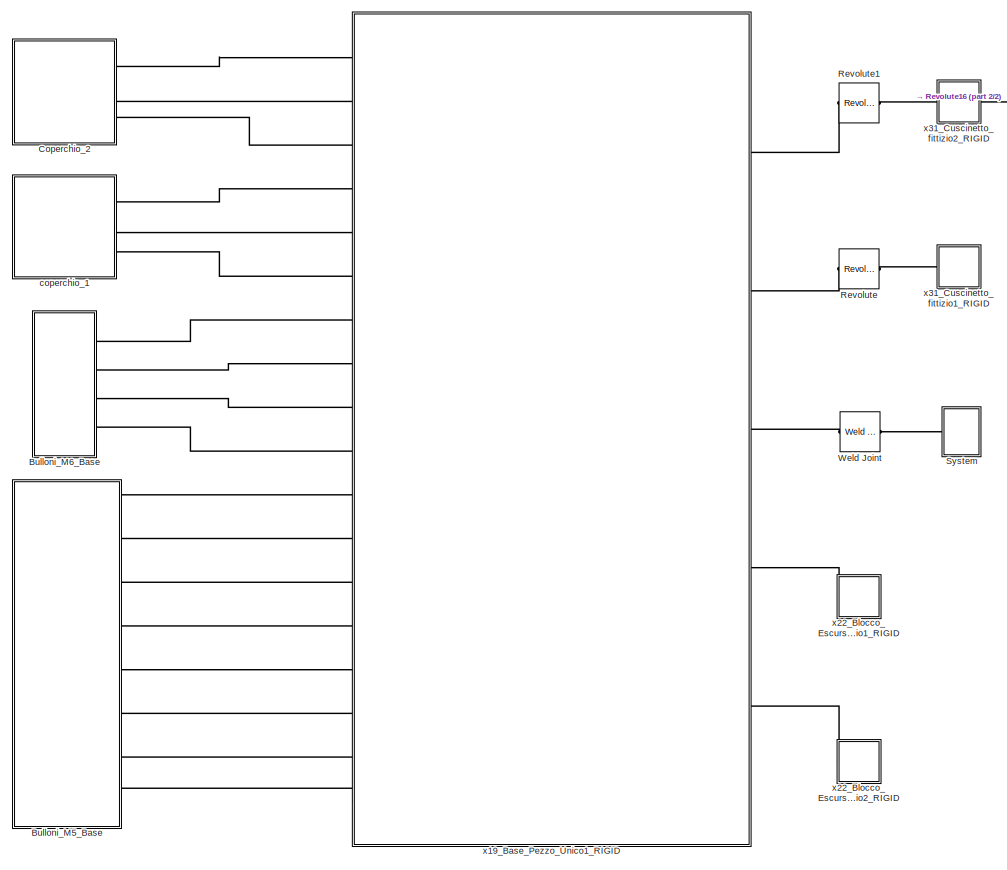
[diagram: root canvas - part 1/2, center side, full height]
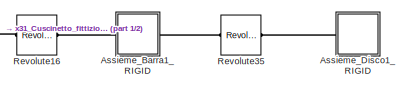
[diagram: root canvas - part 2/2, top right region]
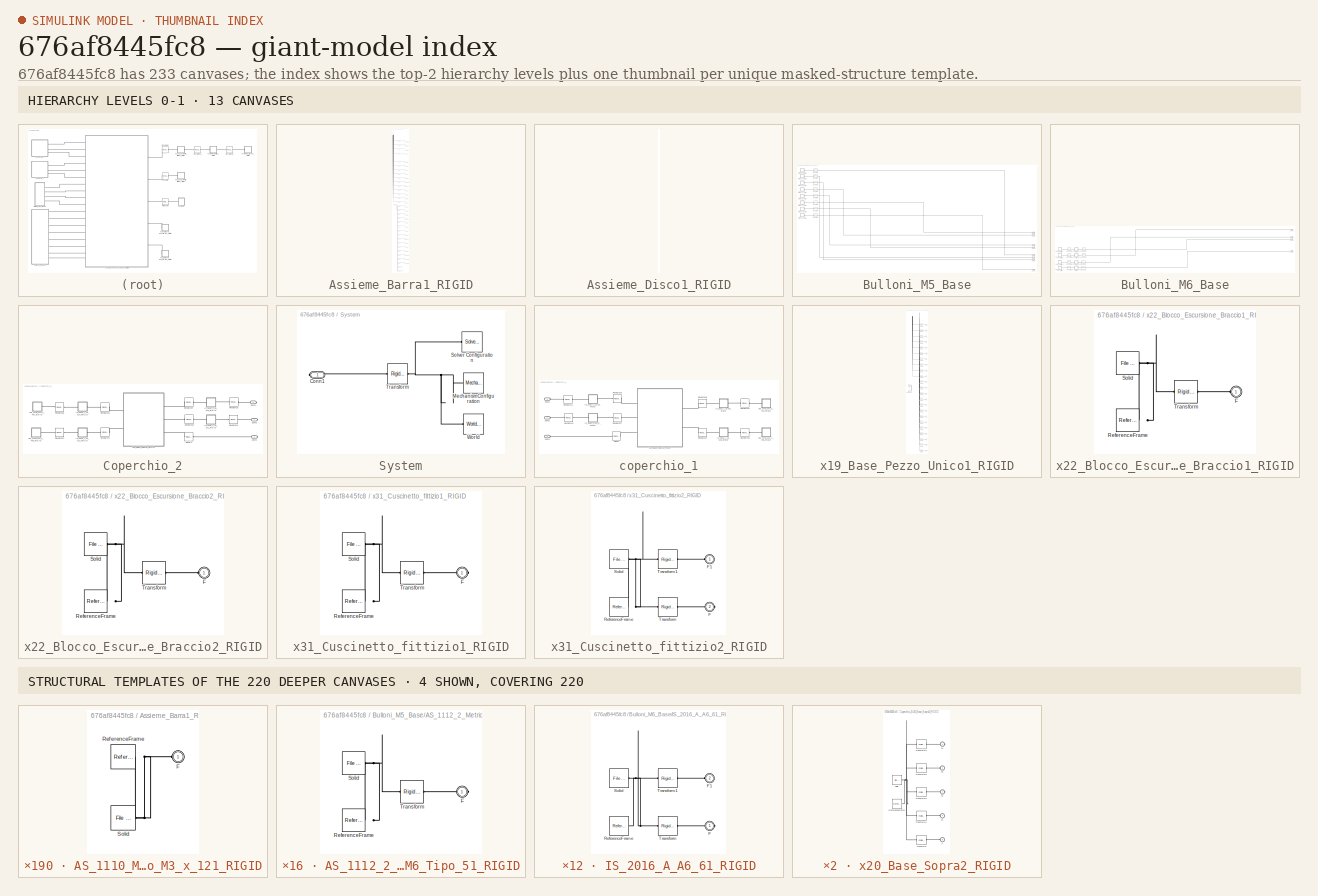
[diagram: thumbnail index - top-2 hierarchy levels (13 canvases) + 4 structural-template representatives of the remaining 220 canvases]
MODEL slx_676af8445fc8
KIND model
CONFIG AbsTol = auto
CONFIG EnableMultiTasking = off
CONFIG FixedStep = auto
CONFIG MaxStep = auto
CONFIG MinStep = auto
CONFIG RelTol = 1e-3
CONFIG SampleTimeConstraint = Unconstrained
CONFIG Solver = VariableStepAuto
CONFIG SolverName = VariableStepAuto
CONFIG StartTime = 0.0
CONFIG StopTime = 10.0
WORKSPACE source: external: MATLAB File  (data not in archive)
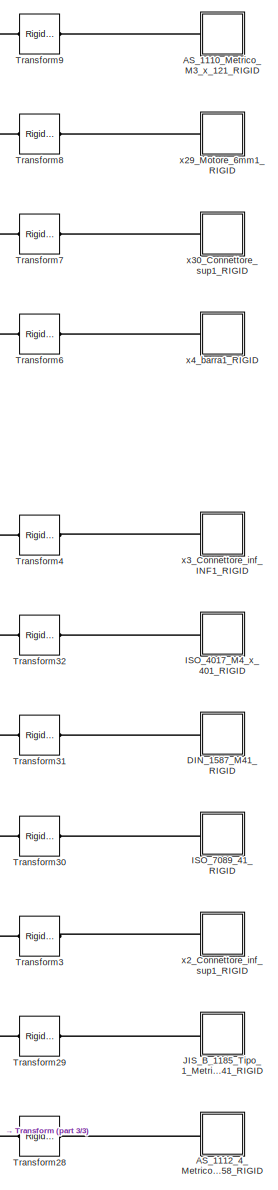
[diagram: Assieme_Barra1_RIGID - part 1/3, top center region]
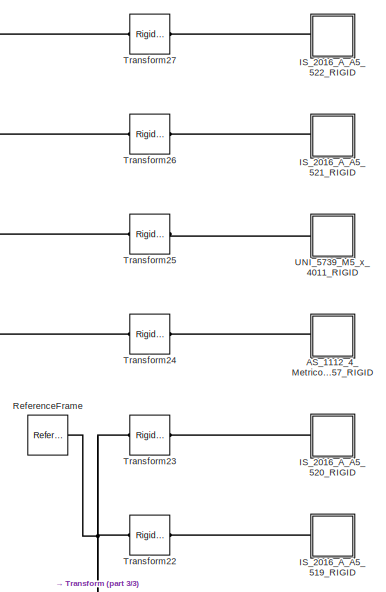
[diagram: Assieme_Barra1_RIGID - part 2/3, full width, middle band]
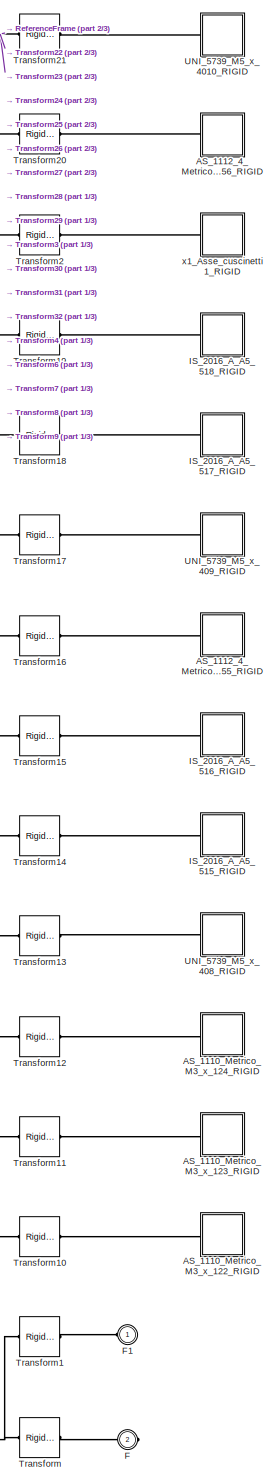
[diagram: Assieme_Barra1_RIGID - part 3/3, bottom center region]
BLOCK [SubSystem] Assieme_Barra1_RIGID
  Ports = [0, 0, 0, 0, 0, 1, 1]
  RequestExecContextInheritance = off
BLOCK [SubSystem] Assieme_Barra1_RIGID/AS_1110_Metrico_M3_x_121_RIGID
  Ports = [0, 0, 0, 0, 0, 1]
  RequestExecContextInheritance = off
BLOCK [PMIOPort] Assieme_Barra1_RIGID/AS_1110_Metrico_M3_x_121_RIGID/F
  Side = Left
BLOCK [Reference] Assieme_Barra1_RIGID/AS_1110_Metrico_M3_x_121_RIGID/ReferenceFrame  REF=sm_lib/Frames and
Transforms/Reference
Frame
  Ports = [0, 0, 0, 0, 0, 0, 1]
  SourceBlock = sm_lib/Frames and\nTransforms/Reference\nFrame
  SourceProductBaseCode = MS
  SourceProductName = Simscape Multibody
  SourceType = Reference\nFrame
BLOCK [Reference] Assieme_Barra1_RIGID/AS_1110_Metrico_M3_x_121_RIGID/Solid  REF=sm_lib/Body Elements/File Solid
  Ports = [0, 0, 0, 0, 0, 0, 1]
  SourceBlock = sm_lib/Body Elements/File Solid
  SourceProductBaseCode = MS
  SourceProductName = Simscape Multibody
  SourceType = File Solid
BLOCK [SubSystem] Assieme_Barra1_RIGID/AS_1110_Metrico_M3_x_122_RIGID
  Ports = [0, 0, 0, 0, 0, 1]
  RequestExecContextInheritance = off
BLOCK [PMIOPort] Assieme_Barra1_RIGID/AS_1110_Metrico_M3_x_122_RIGID/F
  Side = Left
BLOCK [Reference] Assieme_Barra1_RIGID/AS_1110_Metrico_M3_x_122_RIGID/ReferenceFrame  REF=sm_lib/Frames and
Transforms/Reference
Frame
  Ports = [0, 0, 0, 0, 0, 0, 1]
  SourceBlock = sm_lib/Frames and\nTransforms/Reference\nFrame
  SourceProductBaseCode = MS
  SourceProductName = Simscape Multibody
  SourceType = Reference\nFrame
BLOCK [Reference] Assieme_Barra1_RIGID/AS_1110_Metrico_M3_x_122_RIGID/Solid  REF=sm_lib/Body Elements/File Solid
  Ports = [0, 0, 0, 0, 0, 0, 1]
  SourceBlock = sm_lib/Body Elements/File Solid
  SourceProductBaseCode = MS
  SourceProductName = Simscape Multibody
  SourceType = File Solid
BLOCK [SubSystem] Assieme_Barra1_RIGID/AS_1110_Metrico_M3_x_123_RIGID
  Ports = [0, 0, 0, 0, 0, 1]
  RequestExecContextInheritance = off
BLOCK [PMIOPort] Assieme_Barra1_RIGID/AS_1110_Metrico_M3_x_123_RIGID/F
  Side = Left
BLOCK [Reference] Assieme_Barra1_RIGID/AS_1110_Metrico_M3_x_123_RIGID/ReferenceFrame  REF=sm_lib/Frames and
Transforms/Reference
Frame
  Ports = [0, 0, 0, 0, 0, 0, 1]
  SourceBlock = sm_lib/Frames and\nTransforms/Reference\nFrame
  SourceProductBaseCode = MS
  SourceProductName = Simscape Multibody
  SourceType = Reference\nFrame
BLOCK [Reference] Assieme_Barra1_RIGID/AS_1110_Metrico_M3_x_123_RIGID/Solid  REF=sm_lib/Body Elements/File Solid
  Ports = [0, 0, 0, 0, 0, 0, 1]
  SourceBlock = sm_lib/Body Elements/File Solid
  SourceProductBaseCode = MS
  SourceProductName = Simscape Multibody
  SourceType = File Solid
BLOCK [SubSystem] Assieme_Barra1_RIGID/AS_1110_Metrico_M3_x_124_RIGID
  Ports = [0, 0, 0, 0, 0, 1]
  RequestExecContextInheritance = off
BLOCK [PMIOPort] Assieme_Barra1_RIGID/AS_1110_Metrico_M3_x_124_RIGID/F
  Side = Left
BLOCK [Reference] Assieme_Barra1_RIGID/AS_1110_Metrico_M3_x_124_RIGID/ReferenceFrame  REF=sm_lib/Frames and
Transforms/Reference
Frame
  Ports = [0, 0, 0, 0, 0, 0, 1]
  SourceBlock = sm_lib/Frames and\nTransforms/Reference\nFrame
  SourceProductBaseCode = MS
  SourceProductName = Simscape Multibody
  SourceType = Reference\nFrame
BLOCK [Reference] Assieme_Barra1_RIGID/AS_1110_Metrico_M3_x_124_RIGID/Solid  REF=sm_lib/Body Elements/File Solid
  Ports = [0, 0, 0, 0, 0, 0, 1]
  SourceBlock = sm_lib/Body Elements/File Solid
  SourceProductBaseCode = MS
  SourceProductName = Simscape Multibody
  SourceType = File Solid
BLOCK [SubSystem] Assieme_Barra1_RIGID/AS_1112_4_Metrico_M55_RIGID
  Ports = [0, 0, 0, 0, 0, 1]
  RequestExecContextInheritance = off
BLOCK [PMIOPort] Assieme_Barra1_RIGID/AS_1112_4_Metrico_M55_RIGID/F
  Side = Left
BLOCK [Reference] Assieme_Barra1_RIGID/AS_1112_4_Metrico_M55_RIGID/ReferenceFrame  REF=sm_lib/Frames and
Transforms/Reference
Frame
  Ports = [0, 0, 0, 0, 0, 0, 1]
  SourceBlock = sm_lib/Frames and\nTransforms/Reference\nFrame
  SourceProductBaseCode = MS
  SourceProductName = Simscape Multibody
  SourceType = Reference\nFrame
BLOCK [Reference] Assieme_Barra1_RIGID/AS_1112_4_Metrico_M55_RIGID/Solid  REF=sm_lib/Body Elements/File Solid
  Ports = [0, 0, 0, 0, 0, 0, 1]
  SourceBlock = sm_lib/Body Elements/File Solid
  SourceProductBaseCode = MS
  SourceProductName = Simscape Multibody
  SourceType = File Solid
BLOCK [SubSystem] Assieme_Barra1_RIGID/AS_1112_4_Metrico_M56_RIGID
  Ports = [0, 0, 0, 0, 0, 1]
  RequestExecContextInheritance = off
BLOCK [PMIOPort] Assieme_Barra1_RIGID/AS_1112_4_Metrico_M56_RIGID/F
  Side = Left
BLOCK [Reference] Assieme_Barra1_RIGID/AS_1112_4_Metrico_M56_RIGID/ReferenceFrame  REF=sm_lib/Frames and
Transforms/Reference
Frame
  Ports = [0, 0, 0, 0, 0, 0, 1]
  SourceBlock = sm_lib/Frames and\nTransforms/Reference\nFrame
  SourceProductBaseCode = MS
  SourceProductName = Simscape Multibody
  SourceType = Reference\nFrame
BLOCK [Reference] Assieme_Barra1_RIGID/AS_1112_4_Metrico_M56_RIGID/Solid  REF=sm_lib/Body Elements/File Solid
  Ports = [0, 0, 0, 0, 0, 0, 1]
  SourceBlock = sm_lib/Body Elements/File Solid
  SourceProductBaseCode = MS
  SourceProductName = Simscape Multibody
  SourceType = File Solid
BLOCK [SubSystem] Assieme_Barra1_RIGID/AS_1112_4_Metrico_M57_RIGID
  Ports = [0, 0, 0, 0, 0, 1]
  RequestExecContextInheritance = off
BLOCK [PMIOPort] Assieme_Barra1_RIGID/AS_1112_4_Metrico_M57_RIGID/F
  Side = Left
BLOCK [Reference] Assieme_Barra1_RIGID/AS_1112_4_Metrico_M57_RIGID/ReferenceFrame  REF=sm_lib/Frames and
Transforms/Reference
Frame
  Ports = [0, 0, 0, 0, 0, 0, 1]
  SourceBlock = sm_lib/Frames and\nTransforms/Reference\nFrame
  SourceProductBaseCode = MS
  SourceProductName = Simscape Multibody
  SourceType = Reference\nFrame
BLOCK [Reference] Assieme_Barra1_RIGID/AS_1112_4_Metrico_M57_RIGID/Solid  REF=sm_lib/Body Elements/File Solid
  Ports = [0, 0, 0, 0, 0, 0, 1]
  SourceBlock = sm_lib/Body Elements/File Solid
  SourceProductBaseCode = MS
  SourceProductName = Simscape Multibody
  SourceType = File Solid
BLOCK [SubSystem] Assieme_Barra1_RIGID/AS_1112_4_Metrico_M58_RIGID
  Ports = [0, 0, 0, 0, 0, 1]
  RequestExecContextInheritance = off
BLOCK [PMIOPort] Assieme_Barra1_RIGID/AS_1112_4_Metrico_M58_RIGID/F
  Side = Left
BLOCK [Reference] Assieme_Barra1_RIGID/AS_1112_4_Metrico_M58_RIGID/ReferenceFrame  REF=sm_lib/Frames and
Transforms/Reference
Frame
  Ports = [0, 0, 0, 0, 0, 0, 1]
  SourceBlock = sm_lib/Frames and\nTransforms/Reference\nFrame
  SourceProductBaseCode = MS
  SourceProductName = Simscape Multibody
  SourceType = Reference\nFrame
BLOCK [Reference] Assieme_Barra1_RIGID/AS_1112_4_Metrico_M58_RIGID/Solid  REF=sm_lib/Body Elements/File Solid
  Ports = [0, 0, 0, 0, 0, 0, 1]
  SourceBlock = sm_lib/Body Elements/File Solid
  SourceProductBaseCode = MS
  SourceProductName = Simscape Multibody
  SourceType = File Solid
BLOCK [SubSystem] Assieme_Barra1_RIGID/DIN_1587_M41_RIGID
  Ports = [0, 0, 0, 0, 0, 1]
  RequestExecContextInheritance = off
BLOCK [PMIOPort] Assieme_Barra1_RIGID/DIN_1587_M41_RIGID/F
  Side = Left
BLOCK [Reference] Assieme_Barra1_RIGID/DIN_1587_M41_RIGID/ReferenceFrame  REF=sm_lib/Frames and
Transforms/Reference
Frame
  Ports = [0, 0, 0, 0, 0, 0, 1]
  SourceBlock = sm_lib/Frames and\nTransforms/Reference\nFrame
  SourceProductBaseCode = MS
  SourceProductName = Simscape Multibody
  SourceType = Reference\nFrame
BLOCK [Reference] Assieme_Barra1_RIGID/DIN_1587_M41_RIGID/Solid  REF=sm_lib/Body Elements/File Solid
  Ports = [0, 0, 0, 0, 0, 0, 1]
  SourceBlock = sm_lib/Body Elements/File Solid
  SourceProductBaseCode = MS
  SourceProductName = Simscape Multibody
  SourceType = File Solid
BLOCK [PMIOPort] Assieme_Barra1_RIGID/F
  Port = 2
  Side = Right
BLOCK [PMIOPort] Assieme_Barra1_RIGID/F1
  Side = Left
BLOCK [SubSystem] Assieme_Barra1_RIGID/ISO_4017_M4_x_401_RIGID
  Ports = [0, 0, 0, 0, 0, 1]
  RequestExecContextInheritance = off
BLOCK [PMIOPort] Assieme_Barra1_RIGID/ISO_4017_M4_x_401_RIGID/F
  Side = Left
BLOCK [Reference] Assieme_Barra1_RIGID/ISO_4017_M4_x_401_RIGID/ReferenceFrame  REF=sm_lib/Frames and
Transforms/Reference
Frame
  Ports = [0, 0, 0, 0, 0, 0, 1]
  SourceBlock = sm_lib/Frames and\nTransforms/Reference\nFrame
  SourceProductBaseCode = MS
  SourceProductName = Simscape Multibody
  SourceType = Reference\nFrame
BLOCK [Reference] Assieme_Barra1_RIGID/ISO_4017_M4_x_401_RIGID/Solid  REF=sm_lib/Body Elements/File Solid
  Ports = [0, 0, 0, 0, 0, 0, 1]
  SourceBlock = sm_lib/Body Elements/File Solid
  SourceProductBaseCode = MS
  SourceProductName = Simscape Multibody
  SourceType = File Solid
BLOCK [SubSystem] Assieme_Barra1_RIGID/ISO_7089_41_RIGID
  Ports = [0, 0, 0, 0, 0, 1]
  RequestExecContextInheritance = off
BLOCK [PMIOPort] Assieme_Barra1_RIGID/ISO_7089_41_RIGID/F
  Side = Left
BLOCK [Reference] Assieme_Barra1_RIGID/ISO_7089_41_RIGID/ReferenceFrame  REF=sm_lib/Frames and
Transforms/Reference
Frame
  Ports = [0, 0, 0, 0, 0, 0, 1]
  SourceBlock = sm_lib/Frames and\nTransforms/Reference\nFrame
  SourceProductBaseCode = MS
  SourceProductName = Simscape Multibody
  SourceType = Reference\nFrame
BLOCK [Reference] Assieme_Barra1_RIGID/ISO_7089_41_RIGID/Solid  REF=sm_lib/Body Elements/File Solid
  Ports = [0, 0, 0, 0, 0, 0, 1]
  SourceBlock = sm_lib/Body Elements/File Solid
  SourceProductBaseCode = MS
  SourceProductName = Simscape Multibody
  SourceType = File Solid
BLOCK [SubSystem] Assieme_Barra1_RIGID/IS_2016_A_A5_515_RIGID
  Ports = [0, 0, 0, 0, 0, 1]
  RequestExecContextInheritance = off
BLOCK [PMIOPort] Assieme_Barra1_RIGID/IS_2016_A_A5_515_RIGID/F
  Side = Left
BLOCK [Reference] Assieme_Barra1_RIGID/IS_2016_A_A5_515_RIGID/ReferenceFrame  REF=sm_lib/Frames and
Transforms/Reference
Frame
  Ports = [0, 0, 0, 0, 0, 0, 1]
  SourceBlock = sm_lib/Frames and\nTransforms/Reference\nFrame
  SourceProductBaseCode = MS
  SourceProductName = Simscape Multibody
  SourceType = Reference\nFrame
BLOCK [Reference] Assieme_Barra1_RIGID/IS_2016_A_A5_515_RIGID/Solid  REF=sm_lib/Body Elements/File Solid
  Ports = [0, 0, 0, 0, 0, 0, 1]
  SourceBlock = sm_lib/Body Elements/File Solid
  SourceProductBaseCode = MS
  SourceProductName = Simscape Multibody
  SourceType = File Solid
BLOCK [SubSystem] Assieme_Barra1_RIGID/IS_2016_A_A5_516_RIGID
  Ports = [0, 0, 0, 0, 0, 1]
  RequestExecContextInheritance = off
BLOCK [PMIOPort] Assieme_Barra1_RIGID/IS_2016_A_A5_516_RIGID/F
  Side = Left
BLOCK [Reference] Assieme_Barra1_RIGID/IS_2016_A_A5_516_RIGID/ReferenceFrame  REF=sm_lib/Frames and
Transforms/Reference
Frame
  Ports = [0, 0, 0, 0, 0, 0, 1]
  SourceBlock = sm_lib/Frames and\nTransforms/Reference\nFrame
  SourceProductBaseCode = MS
  SourceProductName = Simscape Multibody
  SourceType = Reference\nFrame
BLOCK [Reference] Assieme_Barra1_RIGID/IS_2016_A_A5_516_RIGID/Solid  REF=sm_lib/Body Elements/File Solid
  Ports = [0, 0, 0, 0, 0, 0, 1]
  SourceBlock = sm_lib/Body Elements/File Solid
  SourceProductBaseCode = MS
  SourceProductName = Simscape Multibody
  SourceType = File Solid
BLOCK [SubSystem] Assieme_Barra1_RIGID/IS_2016_A_A5_517_RIGID
  Ports = [0, 0, 0, 0, 0, 1]
  RequestExecContextInheritance = off
BLOCK [PMIOPort] Assieme_Barra1_RIGID/IS_2016_A_A5_517_RIGID/F
  Side = Left
BLOCK [Reference] Assieme_Barra1_RIGID/IS_2016_A_A5_517_RIGID/ReferenceFrame  REF=sm_lib/Frames and
Transforms/Reference
Frame
  Ports = [0, 0, 0, 0, 0, 0, 1]
  SourceBlock = sm_lib/Frames and\nTransforms/Reference\nFrame
  SourceProductBaseCode = MS
  SourceProductName = Simscape Multibody
  SourceType = Reference\nFrame
BLOCK [Reference] Assieme_Barra1_RIGID/IS_2016_A_A5_517_RIGID/Solid  REF=sm_lib/Body Elements/File Solid
  Ports = [0, 0, 0, 0, 0, 0, 1]
  SourceBlock = sm_lib/Body Elements/File Solid
  SourceProductBaseCode = MS
  SourceProductName = Simscape Multibody
  SourceType = File Solid
BLOCK [SubSystem] Assieme_Barra1_RIGID/IS_2016_A_A5_518_RIGID
  Ports = [0, 0, 0, 0, 0, 1]
  RequestExecContextInheritance = off
BLOCK [PMIOPort] Assieme_Barra1_RIGID/IS_2016_A_A5_518_RIGID/F
  Side = Left
BLOCK [Reference] Assieme_Barra1_RIGID/IS_2016_A_A5_518_RIGID/ReferenceFrame  REF=sm_lib/Frames and
Transforms/Reference
Frame
  Ports = [0, 0, 0, 0, 0, 0, 1]
  SourceBlock = sm_lib/Frames and\nTransforms/Reference\nFrame
  SourceProductBaseCode = MS
  SourceProductName = Simscape Multibody
  SourceType = Reference\nFrame
BLOCK [Reference] Assieme_Barra1_RIGID/IS_2016_A_A5_518_RIGID/Solid  REF=sm_lib/Body Elements/File Solid
  Ports = [0, 0, 0, 0, 0, 0, 1]
  SourceBlock = sm_lib/Body Elements/File Solid
  SourceProductBaseCode = MS
  SourceProductName = Simscape Multibody
  SourceType = File Solid
BLOCK [SubSystem] Assieme_Barra1_RIGID/IS_2016_A_A5_519_RIGID
  Ports = [0, 0, 0, 0, 0, 1]
  RequestExecContextInheritance = off
BLOCK [PMIOPort] Assieme_Barra1_RIGID/IS_2016_A_A5_519_RIGID/F
  Side = Left
BLOCK [Reference] Assieme_Barra1_RIGID/IS_2016_A_A5_519_RIGID/ReferenceFrame  REF=sm_lib/Frames and
Transforms/Reference
Frame
  Ports = [0, 0, 0, 0, 0, 0, 1]
  SourceBlock = sm_lib/Frames and\nTransforms/Reference\nFrame
  SourceProductBaseCode = MS
  SourceProductName = Simscape Multibody
  SourceType = Reference\nFrame
BLOCK [Reference] Assieme_Barra1_RIGID/IS_2016_A_A5_519_RIGID/Solid  REF=sm_lib/Body Elements/File Solid
  Ports = [0, 0, 0, 0, 0, 0, 1]
  SourceBlock = sm_lib/Body Elements/File Solid
  SourceProductBaseCode = MS
  SourceProductName = Simscape Multibody
  SourceType = File Solid
BLOCK [SubSystem] Assieme_Barra1_RIGID/IS_2016_A_A5_520_RIGID
  Ports = [0, 0, 0, 0, 0, 1]
  RequestExecContextInheritance = off
BLOCK [PMIOPort] Assieme_Barra1_RIGID/IS_2016_A_A5_520_RIGID/F
  Side = Left
BLOCK [Reference] Assieme_Barra1_RIGID/IS_2016_A_A5_520_RIGID/ReferenceFrame  REF=sm_lib/Frames and
Transforms/Reference
Frame
  Ports = [0, 0, 0, 0, 0, 0, 1]
  SourceBlock = sm_lib/Frames and\nTransforms/Reference\nFrame
  SourceProductBaseCode = MS
  SourceProductName = Simscape Multibody
  SourceType = Reference\nFrame
BLOCK [Reference] Assieme_Barra1_RIGID/IS_2016_A_A5_520_RIGID/Solid  REF=sm_lib/Body Elements/File Solid
  Ports = [0, 0, 0, 0, 0, 0, 1]
  SourceBlock = sm_lib/Body Elements/File Solid
  SourceProductBaseCode = MS
  SourceProductName = Simscape Multibody
  SourceType = File Solid
BLOCK [SubSystem] Assieme_Barra1_RIGID/IS_2016_A_A5_521_RIGID
  Ports = [0, 0, 0, 0, 0, 1]
  RequestExecContextInheritance = off
BLOCK [PMIOPort] Assieme_Barra1_RIGID/IS_2016_A_A5_521_RIGID/F
  Side = Left
BLOCK [Reference] Assieme_Barra1_RIGID/IS_2016_A_A5_521_RIGID/ReferenceFrame  REF=sm_lib/Frames and
Transforms/Reference
Frame
  Ports = [0, 0, 0, 0, 0, 0, 1]
  SourceBlock = sm_lib/Frames and\nTransforms/Reference\nFrame
  SourceProductBaseCode = MS
  SourceProductName = Simscape Multibody
  SourceType = Reference\nFrame
BLOCK [Reference] Assieme_Barra1_RIGID/IS_2016_A_A5_521_RIGID/Solid  REF=sm_lib/Body Elements/File Solid
  Ports = [0, 0, 0, 0, 0, 0, 1]
  SourceBlock = sm_lib/Body Elements/File Solid
  SourceProductBaseCode = MS
  SourceProductName = Simscape Multibody
  SourceType = File Solid
BLOCK [SubSystem] Assieme_Barra1_RIGID/IS_2016_A_A5_522_RIGID
  Ports = [0, 0, 0, 0, 0, 1]
  RequestExecContextInheritance = off
BLOCK [PMIOPort] Assieme_Barra1_RIGID/IS_2016_A_A5_522_RIGID/F
  Side = Left
BLOCK [Reference] Assieme_Barra1_RIGID/IS_2016_A_A5_522_RIGID/ReferenceFrame  REF=sm_lib/Frames and
Transforms/Reference
Frame
  Ports = [0, 0, 0, 0, 0, 0, 1]
  SourceBlock = sm_lib/Frames and\nTransforms/Reference\nFrame
  SourceProductBaseCode = MS
  SourceProductName = Simscape Multibody
  SourceType = Reference\nFrame
BLOCK [Reference] Assieme_Barra1_RIGID/IS_2016_A_A5_522_RIGID/Solid  REF=sm_lib/Body Elements/File Solid
  Ports = [0, 0, 0, 0, 0, 0, 1]
  SourceBlock = sm_lib/Body Elements/File Solid
  SourceProductBaseCode = MS
  SourceProductName = Simscape Multibody
  SourceType = File Solid
BLOCK [SubSystem] Assieme_Barra1_RIGID/JIS_B_1185_Tipo_1_Metrico_M41_RIGID
  Ports = [0, 0, 0, 0, 0, 1]
  RequestExecContextInheritance = off
BLOCK [PMIOPort] Assieme_Barra1_RIGID/JIS_B_1185_Tipo_1_Metrico_M41_RIGID/F
  Side = Left
BLOCK [Reference] Assieme_Barra1_RIGID/JIS_B_1185_Tipo_1_Metrico_M41_RIGID/ReferenceFrame  REF=sm_lib/Frames and
Transforms/Reference
Frame
  Ports = [0, 0, 0, 0, 0, 0, 1]
  SourceBlock = sm_lib/Frames and\nTransforms/Reference\nFrame
  SourceProductBaseCode = MS
  SourceProductName = Simscape Multibody
  SourceType = Reference\nFrame
BLOCK [Reference] Assieme_Barra1_RIGID/JIS_B_1185_Tipo_1_Metrico_M41_RIGID/Solid  REF=sm_lib/Body Elements/File Solid
  Ports = [0, 0, 0, 0, 0, 0, 1]
  SourceBlock = sm_lib/Body Elements/File Solid
  SourceProductBaseCode = MS
  SourceProductName = Simscape Multibody
  SourceType = File Solid
BLOCK [Reference] Assieme_Barra1_RIGID/ReferenceFrame  REF=sm_lib/Frames and
Transforms/Reference
Frame
  Ports = [0, 0, 0, 0, 0, 0, 1]
  SourceBlock = sm_lib/Frames and\nTransforms/Reference\nFrame
  SourceProductBaseCode = MS
  SourceProductName = Simscape Multibody
  SourceType = Reference\nFrame
BLOCK [Reference] Assieme_Barra1_RIGID/Transform  REF=sm_lib/Frames and
Transforms/Rigid
Transform
  Ports = [0, 0, 0, 0, 0, 1, 1]
  SourceBlock = sm_lib/Frames and\nTransforms/Rigid\nTransform
  SourceProductBaseCode = MS
  SourceProductName = Simscape Multibody
  SourceType = Rigid\nTransform
BLOCK [Reference] Assieme_Barra1_RIGID/Transform1  REF=sm_lib/Frames and
Transforms/Rigid
Transform
  Ports = [0, 0, 0, 0, 0, 1, 1]
  SourceBlock = sm_lib/Frames and\nTransforms/Rigid\nTransform
  SourceProductBaseCode = MS
  SourceProductName = Simscape Multibody
  SourceType = Rigid\nTransform
BLOCK [Reference] Assieme_Barra1_RIGID/Transform10  REF=sm_lib/Frames and
Transforms/Rigid
Transform
  Ports = [0, 0, 0, 0, 0, 1, 1]
  SourceBlock = sm_lib/Frames and\nTransforms/Rigid\nTransform
  SourceProductBaseCode = MS
  SourceProductName = Simscape Multibody
  SourceType = Rigid\nTransform
BLOCK [Reference] Assieme_Barra1_RIGID/Transform11  REF=sm_lib/Frames and
Transforms/Rigid
Transform
  Ports = [0, 0, 0, 0, 0, 1, 1]
  SourceBlock = sm_lib/Frames and\nTransforms/Rigid\nTransform
  SourceProductBaseCode = MS
  SourceProductName = Simscape Multibody
  SourceType = Rigid\nTransform
BLOCK [Reference] Assieme_Barra1_RIGID/Transform12  REF=sm_lib/Frames and
Transforms/Rigid
Transform
  Ports = [0, 0, 0, 0, 0, 1, 1]
  SourceBlock = sm_lib/Frames and\nTransforms/Rigid\nTransform
  SourceProductBaseCode = MS
  SourceProductName = Simscape Multibody
  SourceType = Rigid\nTransform
BLOCK [Reference] Assieme_Barra1_RIGID/Transform13  REF=sm_lib/Frames and
Transforms/Rigid
Transform
  Ports = [0, 0, 0, 0, 0, 1, 1]
  SourceBlock = sm_lib/Frames and\nTransforms/Rigid\nTransform
  SourceProductBaseCode = MS
  SourceProductName = Simscape Multibody
  SourceType = Rigid\nTransform
BLOCK [Reference] Assieme_Barra1_RIGID/Transform14  REF=sm_lib/Frames and
Transforms/Rigid
Transform
  Ports = [0, 0, 0, 0, 0, 1, 1]
  SourceBlock = sm_lib/Frames and\nTransforms/Rigid\nTransform
  SourceProductBaseCode = MS
  SourceProductName = Simscape Multibody
  SourceType = Rigid\nTransform
BLOCK [Reference] Assieme_Barra1_RIGID/Transform15  REF=sm_lib/Frames and
Transforms/Rigid
Transform
  Ports = [0, 0, 0, 0, 0, 1, 1]
  SourceBlock = sm_lib/Frames and\nTransforms/Rigid\nTransform
  SourceProductBaseCode = MS
  SourceProductName = Simscape Multibody
  SourceType = Rigid\nTransform
BLOCK [Reference] Assieme_Barra1_RIGID/Transform16  REF=sm_lib/Frames and
Transforms/Rigid
Transform
  Ports = [0, 0, 0, 0, 0, 1, 1]
  SourceBlock = sm_lib/Frames and\nTransforms/Rigid\nTransform
  SourceProductBaseCode = MS
  SourceProductName = Simscape Multibody
  SourceType = Rigid\nTransform
BLOCK [Reference] Assieme_Barra1_RIGID/Transform17  REF=sm_lib/Frames and
Transforms/Rigid
Transform
  Ports = [0, 0, 0, 0, 0, 1, 1]
  SourceBlock = sm_lib/Frames and\nTransforms/Rigid\nTransform
  SourceProductBaseCode = MS
  SourceProductName = Simscape Multibody
  SourceType = Rigid\nTransform
BLOCK [Reference] Assieme_Barra1_RIGID/Transform18  REF=sm_lib/Frames and
Transforms/Rigid
Transform
  Ports = [0, 0, 0, 0, 0, 1, 1]
  SourceBlock = sm_lib/Frames and\nTransforms/Rigid\nTransform
  SourceProductBaseCode = MS
  SourceProductName = Simscape Multibody
  SourceType = Rigid\nTransform
BLOCK [Reference] Assieme_Barra1_RIGID/Transform19  REF=sm_lib/Frames and
Transforms/Rigid
Transform
  Ports = [0, 0, 0, 0, 0, 1, 1]
  SourceBlock = sm_lib/Frames and\nTransforms/Rigid\nTransform
  SourceProductBaseCode = MS
  SourceProductName = Simscape Multibody
  SourceType = Rigid\nTransform
BLOCK [Reference] Assieme_Barra1_RIGID/Transform2  REF=sm_lib/Frames and
Transforms/Rigid
Transform
  Ports = [0, 0, 0, 0, 0, 1, 1]
  SourceBlock = sm_lib/Frames and\nTransforms/Rigid\nTransform
  SourceProductBaseCode = MS
  SourceProductName = Simscape Multibody
  SourceType = Rigid\nTransform
BLOCK [Reference] Assieme_Barra1_RIGID/Transform20  REF=sm_lib/Frames and
Transforms/Rigid
Transform
  Ports = [0, 0, 0, 0, 0, 1, 1]
  SourceBlock = sm_lib/Frames and\nTransforms/Rigid\nTransform
  SourceProductBaseCode = MS
  SourceProductName = Simscape Multibody
  SourceType = Rigid\nTransform
BLOCK [Reference] Assieme_Barra1_RIGID/Transform21  REF=sm_lib/Frames and
Transforms/Rigid
Transform
  Ports = [0, 0, 0, 0, 0, 1, 1]
  SourceBlock = sm_lib/Frames and\nTransforms/Rigid\nTransform
  SourceProductBaseCode = MS
  SourceProductName = Simscape Multibody
  SourceType = Rigid\nTransform
BLOCK [Reference] Assieme_Barra1_RIGID/Transform22  REF=sm_lib/Frames and
Transforms/Rigid
Transform
  Ports = [0, 0, 0, 0, 0, 1, 1]
  SourceBlock = sm_lib/Frames and\nTransforms/Rigid\nTransform
  SourceProductBaseCode = MS
  SourceProductName = Simscape Multibody
  SourceType = Rigid\nTransform
BLOCK [Reference] Assieme_Barra1_RIGID/Transform23  REF=sm_lib/Frames and
Transforms/Rigid
Transform
  Ports = [0, 0, 0, 0, 0, 1, 1]
  SourceBlock = sm_lib/Frames and\nTransforms/Rigid\nTransform
  SourceProductBaseCode = MS
  SourceProductName = Simscape Multibody
  SourceType = Rigid\nTransform
BLOCK [Reference] Assieme_Barra1_RIGID/Transform24  REF=sm_lib/Frames and
Transforms/Rigid
Transform
  Ports = [0, 0, 0, 0, 0, 1, 1]
  SourceBlock = sm_lib/Frames and\nTransforms/Rigid\nTransform
  SourceProductBaseCode = MS
  SourceProductName = Simscape Multibody
  SourceType = Rigid\nTransform
BLOCK [Reference] Assieme_Barra1_RIGID/Transform25  REF=sm_lib/Frames and
Transforms/Rigid
Transform
  Ports = [0, 0, 0, 0, 0, 1, 1]
  SourceBlock = sm_lib/Frames and\nTransforms/Rigid\nTransform
  SourceProductBaseCode = MS
  SourceProductName = Simscape Multibody
  SourceType = Rigid\nTransform
BLOCK [Reference] Assieme_Barra1_RIGID/Transform26  REF=sm_lib/Frames and
Transforms/Rigid
Transform
  Ports = [0, 0, 0, 0, 0, 1, 1]
  SourceBlock = sm_lib/Frames and\nTransforms/Rigid\nTransform
  SourceProductBaseCode = MS
  SourceProductName = Simscape Multibody
  SourceType = Rigid\nTransform
BLOCK [Reference] Assieme_Barra1_RIGID/Transform27  REF=sm_lib/Frames and
Transforms/Rigid
Transform
  Ports = [0, 0, 0, 0, 0, 1, 1]
  SourceBlock = sm_lib/Frames and\nTransforms/Rigid\nTransform
  SourceProductBaseCode = MS
  SourceProductName = Simscape Multibody
  SourceType = Rigid\nTransform
BLOCK [Reference] Assieme_Barra1_RIGID/Transform28  REF=sm_lib/Frames and
Transforms/Rigid
Transform
  Ports = [0, 0, 0, 0, 0, 1, 1]
  SourceBlock = sm_lib/Frames and\nTransforms/Rigid\nTransform
  SourceProductBaseCode = MS
  SourceProductName = Simscape Multibody
  SourceType = Rigid\nTransform
BLOCK [Reference] Assieme_Barra1_RIGID/Transform29  REF=sm_lib/Frames and
Transforms/Rigid
Transform
  Ports = [0, 0, 0, 0, 0, 1, 1]
  SourceBlock = sm_lib/Frames and\nTransforms/Rigid\nTransform
  SourceProductBaseCode = MS
  SourceProductName = Simscape Multibody
  SourceType = Rigid\nTransform
BLOCK [Reference] Assieme_Barra1_RIGID/Transform3  REF=sm_lib/Frames and
Transforms/Rigid
Transform
  Ports = [0, 0, 0, 0, 0, 1, 1]
  SourceBlock = sm_lib/Frames and\nTransforms/Rigid\nTransform
  SourceProductBaseCode = MS
  SourceProductName = Simscape Multibody
  SourceType = Rigid\nTransform
BLOCK [Reference] Assieme_Barra1_RIGID/Transform30  REF=sm_lib/Frames and
Transforms/Rigid
Transform
  Ports = [0, 0, 0, 0, 0, 1, 1]
  SourceBlock = sm_lib/Frames and\nTransforms/Rigid\nTransform
  SourceProductBaseCode = MS
  SourceProductName = Simscape Multibody
  SourceType = Rigid\nTransform
BLOCK [Reference] Assieme_Barra1_RIGID/Transform31  REF=sm_lib/Frames and
Transforms/Rigid
Transform
  Ports = [0, 0, 0, 0, 0, 1, 1]
  SourceBlock = sm_lib/Frames and\nTransforms/Rigid\nTransform
  SourceProductBaseCode = MS
  SourceProductName = Simscape Multibody
  SourceType = Rigid\nTransform
BLOCK [Reference] Assieme_Barra1_RIGID/Transform32  REF=sm_lib/Frames and
Transforms/Rigid
Transform
  Ports = [0, 0, 0, 0, 0, 1, 1]
  SourceBlock = sm_lib/Frames and\nTransforms/Rigid\nTransform
  SourceProductBaseCode = MS
  SourceProductName = Simscape Multibody
  SourceType = Rigid\nTransform
BLOCK [Reference] Assieme_Barra1_RIGID/Transform4  REF=sm_lib/Frames and
Transforms/Rigid
Transform
  Ports = [0, 0, 0, 0, 0, 1, 1]
  SourceBlock = sm_lib/Frames and\nTransforms/Rigid\nTransform
  SourceProductBaseCode = MS
  SourceProductName = Simscape Multibody
  SourceType = Rigid\nTransform
BLOCK [Reference] Assieme_Barra1_RIGID/Transform6  REF=sm_lib/Frames and
Transforms/Rigid
Transform
  Ports = [0, 0, 0, 0, 0, 1, 1]
  SourceBlock = sm_lib/Frames and\nTransforms/Rigid\nTransform
  SourceProductBaseCode = MS
  SourceProductName = Simscape Multibody
  SourceType = Rigid\nTransform
BLOCK [Reference] Assieme_Barra1_RIGID/Transform7  REF=sm_lib/Frames and
Transforms/Rigid
Transform
  Ports = [0, 0, 0, 0, 0, 1, 1]
  SourceBlock = sm_lib/Frames and\nTransforms/Rigid\nTransform
  SourceProductBaseCode = MS
  SourceProductName = Simscape Multibody
  SourceType = Rigid\nTransform
BLOCK [Reference] Assieme_Barra1_RIGID/Transform8  REF=sm_lib/Frames and
Transforms/Rigid
Transform
  Ports = [0, 0, 0, 0, 0, 1, 1]
  SourceBlock = sm_lib/Frames and\nTransforms/Rigid\nTransform
  SourceProductBaseCode = MS
  SourceProductName = Simscape Multibody
  SourceType = Rigid\nTransform
BLOCK [Reference] Assieme_Barra1_RIGID/Transform9  REF=sm_lib/Frames and
Transforms/Rigid
Transform
  Ports = [0, 0, 0, 0, 0, 1, 1]
  SourceBlock = sm_lib/Frames and\nTransforms/Rigid\nTransform
  SourceProductBaseCode = MS
  SourceProductName = Simscape Multibody
  SourceType = Rigid\nTransform
BLOCK [SubSystem] Assieme_Barra1_RIGID/UNI_5739_M5_x_4010_RIGID
  Ports = [0, 0, 0, 0, 0, 1]
  RequestExecContextInheritance = off
BLOCK [PMIOPort] Assieme_Barra1_RIGID/UNI_5739_M5_x_4010_RIGID/F
  Side = Left
BLOCK [Reference] Assieme_Barra1_RIGID/UNI_5739_M5_x_4010_RIGID/ReferenceFrame  REF=sm_lib/Frames and
Transforms/Reference
Frame
  Ports = [0, 0, 0, 0, 0, 0, 1]
  SourceBlock = sm_lib/Frames and\nTransforms/Reference\nFrame
  SourceProductBaseCode = MS
  SourceProductName = Simscape Multibody
  SourceType = Reference\nFrame
BLOCK [Reference] Assieme_Barra1_RIGID/UNI_5739_M5_x_4010_RIGID/Solid  REF=sm_lib/Body Elements/File Solid
  Ports = [0, 0, 0, 0, 0, 0, 1]
  SourceBlock = sm_lib/Body Elements/File Solid
  SourceProductBaseCode = MS
  SourceProductName = Simscape Multibody
  SourceType = File Solid
BLOCK [SubSystem] Assieme_Barra1_RIGID/UNI_5739_M5_x_4011_RIGID
  Ports = [0, 0, 0, 0, 0, 1]
  RequestExecContextInheritance = off
BLOCK [PMIOPort] Assieme_Barra1_RIGID/UNI_5739_M5_x_4011_RIGID/F
  Side = Left
BLOCK [Reference] Assieme_Barra1_RIGID/UNI_5739_M5_x_4011_RIGID/ReferenceFrame  REF=sm_lib/Frames and
Transforms/Reference
Frame
  Ports = [0, 0, 0, 0, 0, 0, 1]
  SourceBlock = sm_lib/Frames and\nTransforms/Reference\nFrame
  SourceProductBaseCode = MS
  SourceProductName = Simscape Multibody
  SourceType = Reference\nFrame
BLOCK [Reference] Assieme_Barra1_RIGID/UNI_5739_M5_x_4011_RIGID/Solid  REF=sm_lib/Body Elements/File Solid
  Ports = [0, 0, 0, 0, 0, 0, 1]
  SourceBlock = sm_lib/Body Elements/File Solid
  SourceProductBaseCode = MS
  SourceProductName = Simscape Multibody
  SourceType = File Solid
BLOCK [SubSystem] Assieme_Barra1_RIGID/UNI_5739_M5_x_408_RIGID
  Ports = [0, 0, 0, 0, 0, 1]
  RequestExecContextInheritance = off
BLOCK [PMIOPort] Assieme_Barra1_RIGID/UNI_5739_M5_x_408_RIGID/F
  Side = Left
BLOCK [Reference] Assieme_Barra1_RIGID/UNI_5739_M5_x_408_RIGID/ReferenceFrame  REF=sm_lib/Frames and
Transforms/Reference
Frame
  Ports = [0, 0, 0, 0, 0, 0, 1]
  SourceBlock = sm_lib/Frames and\nTransforms/Reference\nFrame
  SourceProductBaseCode = MS
  SourceProductName = Simscape Multibody
  SourceType = Reference\nFrame
BLOCK [Reference] Assieme_Barra1_RIGID/UNI_5739_M5_x_408_RIGID/Solid  REF=sm_lib/Body Elements/File Solid
  Ports = [0, 0, 0, 0, 0, 0, 1]
  SourceBlock = sm_lib/Body Elements/File Solid
  SourceProductBaseCode = MS
  SourceProductName = Simscape Multibody
  SourceType = File Solid
BLOCK [SubSystem] Assieme_Barra1_RIGID/UNI_5739_M5_x_409_RIGID
  Ports = [0, 0, 0, 0, 0, 1]
  RequestExecContextInheritance = off
BLOCK [PMIOPort] Assieme_Barra1_RIGID/UNI_5739_M5_x_409_RIGID/F
  Side = Left
BLOCK [Reference] Assieme_Barra1_RIGID/UNI_5739_M5_x_409_RIGID/ReferenceFrame  REF=sm_lib/Frames and
Transforms/Reference
Frame
  Ports = [0, 0, 0, 0, 0, 0, 1]
  SourceBlock = sm_lib/Frames and\nTransforms/Reference\nFrame
  SourceProductBaseCode = MS
  SourceProductName = Simscape Multibody
  SourceType = Reference\nFrame
BLOCK [Reference] Assieme_Barra1_RIGID/UNI_5739_M5_x_409_RIGID/Solid  REF=sm_lib/Body Elements/File Solid
  Ports = [0, 0, 0, 0, 0, 0, 1]
  SourceBlock = sm_lib/Body Elements/File Solid
  SourceProductBaseCode = MS
  SourceProductName = Simscape Multibody
  SourceType = File Solid
BLOCK [SubSystem] Assieme_Barra1_RIGID/x1_Asse_cuscinetti1_RIGID
  Ports = [0, 0, 0, 0, 0, 1]
  RequestExecContextInheritance = off
BLOCK [PMIOPort] Assieme_Barra1_RIGID/x1_Asse_cuscinetti1_RIGID/F
  Side = Left
BLOCK [Reference] Assieme_Barra1_RIGID/x1_Asse_cuscinetti1_RIGID/ReferenceFrame  REF=sm_lib/Frames and
Transforms/Reference
Frame
  Ports = [0, 0, 0, 0, 0, 0, 1]
  SourceBlock = sm_lib/Frames and\nTransforms/Reference\nFrame
  SourceProductBaseCode = MS
  SourceProductName = Simscape Multibody
  SourceType = Reference\nFrame
BLOCK [Reference] Assieme_Barra1_RIGID/x1_Asse_cuscinetti1_RIGID/Solid  REF=sm_lib/Body Elements/File Solid
  Ports = [0, 0, 0, 0, 0, 0, 1]
  SourceBlock = sm_lib/Body Elements/File Solid
  SourceProductBaseCode = MS
  SourceProductName = Simscape Multibody
  SourceType = File Solid
BLOCK [SubSystem] Assieme_Barra1_RIGID/x29_Motore_6mm1_RIGID
  Ports = [0, 0, 0, 0, 0, 1]
  RequestExecContextInheritance = off
BLOCK [PMIOPort] Assieme_Barra1_RIGID/x29_Motore_6mm1_RIGID/F
  Side = Left
BLOCK [Reference] Assieme_Barra1_RIGID/x29_Motore_6mm1_RIGID/ReferenceFrame  REF=sm_lib/Frames and
Transforms/Reference
Frame
  Ports = [0, 0, 0, 0, 0, 0, 1]
  SourceBlock = sm_lib/Frames and\nTransforms/Reference\nFrame
  SourceProductBaseCode = MS
  SourceProductName = Simscape Multibody
  SourceType = Reference\nFrame
BLOCK [Reference] Assieme_Barra1_RIGID/x29_Motore_6mm1_RIGID/Solid  REF=sm_lib/Body Elements/File Solid
  Ports = [0, 0, 0, 0, 0, 0, 1]
  SourceBlock = sm_lib/Body Elements/File Solid
  SourceProductBaseCode = MS
  SourceProductName = Simscape Multibody
  SourceType = File Solid
BLOCK [SubSystem] Assieme_Barra1_RIGID/x2_Connettore_inf_sup1_RIGID
  Ports = [0, 0, 0, 0, 0, 1]
  RequestExecContextInheritance = off
BLOCK [PMIOPort] Assieme_Barra1_RIGID/x2_Connettore_inf_sup1_RIGID/F
  Side = Left
BLOCK [Reference] Assieme_Barra1_RIGID/x2_Connettore_inf_sup1_RIGID/ReferenceFrame  REF=sm_lib/Frames and
Transforms/Reference
Frame
  Ports = [0, 0, 0, 0, 0, 0, 1]
  SourceBlock = sm_lib/Frames and\nTransforms/Reference\nFrame
  SourceProductBaseCode = MS
  SourceProductName = Simscape Multibody
  SourceType = Reference\nFrame
BLOCK [Reference] Assieme_Barra1_RIGID/x2_Connettore_inf_sup1_RIGID/Solid  REF=sm_lib/Body Elements/File Solid
  Ports = [0, 0, 0, 0, 0, 0, 1]
  SourceBlock = sm_lib/Body Elements/File Solid
  SourceProductBaseCode = MS
  SourceProductName = Simscape Multibody
  SourceType = File Solid
BLOCK [SubSystem] Assieme_Barra1_RIGID/x30_Connettore_sup1_RIGID
  Ports = [0, 0, 0, 0, 0, 1]
  RequestExecContextInheritance = off
BLOCK [PMIOPort] Assieme_Barra1_RIGID/x30_Connettore_sup1_RIGID/F
  Side = Left
BLOCK [Reference] Assieme_Barra1_RIGID/x30_Connettore_sup1_RIGID/ReferenceFrame  REF=sm_lib/Frames and
Transforms/Reference
Frame
  Ports = [0, 0, 0, 0, 0, 0, 1]
  SourceBlock = sm_lib/Frames and\nTransforms/Reference\nFrame
  SourceProductBaseCode = MS
  SourceProductName = Simscape Multibody
  SourceType = Reference\nFrame
BLOCK [Reference] Assieme_Barra1_RIGID/x30_Connettore_sup1_RIGID/Solid  REF=sm_lib/Body Elements/File Solid
  Ports = [0, 0, 0, 0, 0, 0, 1]
  SourceBlock = sm_lib/Body Elements/File Solid
  SourceProductBaseCode = MS
  SourceProductName = Simscape Multibody
  SourceType = File Solid
BLOCK [SubSystem] Assieme_Barra1_RIGID/x3_Connettore_inf_INF1_RIGID
  Ports = [0, 0, 0, 0, 0, 1]
  RequestExecContextInheritance = off
BLOCK [PMIOPort] Assieme_Barra1_RIGID/x3_Connettore_inf_INF1_RIGID/F
  Side = Left
BLOCK [Reference] Assieme_Barra1_RIGID/x3_Connettore_inf_INF1_RIGID/ReferenceFrame  REF=sm_lib/Frames and
Transforms/Reference
Frame
  Ports = [0, 0, 0, 0, 0, 0, 1]
  SourceBlock = sm_lib/Frames and\nTransforms/Reference\nFrame
  SourceProductBaseCode = MS
  SourceProductName = Simscape Multibody
  SourceType = Reference\nFrame
BLOCK [Reference] Assieme_Barra1_RIGID/x3_Connettore_inf_INF1_RIGID/Solid  REF=sm_lib/Body Elements/File Solid
  Ports = [0, 0, 0, 0, 0, 0, 1]
  SourceBlock = sm_lib/Body Elements/File Solid
  SourceProductBaseCode = MS
  SourceProductName = Simscape Multibody
  SourceType = File Solid
BLOCK [SubSystem] Assieme_Barra1_RIGID/x4_barra1_RIGID
  Ports = [0, 0, 0, 0, 0, 1]
  RequestExecContextInheritance = off
BLOCK [PMIOPort] Assieme_Barra1_RIGID/x4_barra1_RIGID/F
  Side = Left
BLOCK [Reference] Assieme_Barra1_RIGID/x4_barra1_RIGID/ReferenceFrame  REF=sm_lib/Frames and
Transforms/Reference
Frame
  Ports = [0, 0, 0, 0, 0, 0, 1]
  SourceBlock = sm_lib/Frames and\nTransforms/Reference\nFrame
  SourceProductBaseCode = MS
  SourceProductName = Simscape Multibody
  SourceType = Reference\nFrame
BLOCK [Reference] Assieme_Barra1_RIGID/x4_barra1_RIGID/Solid  REF=sm_lib/Body Elements/File Solid
  Ports = [0, 0, 0, 0, 0, 0, 1]
  SourceBlock = sm_lib/Body Elements/File Solid
  SourceProductBaseCode = MS
  SourceProductName = Simscape Multibody
  SourceType = File Solid
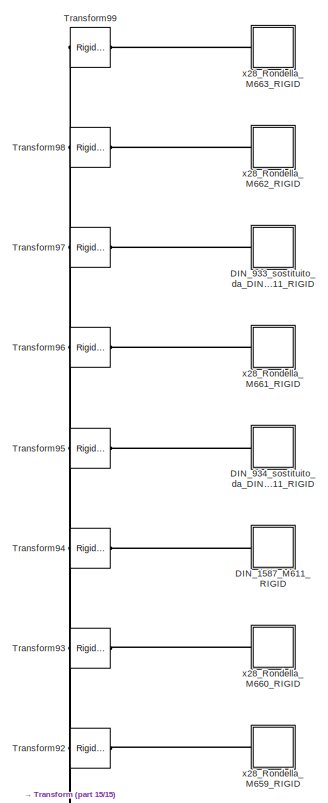
[diagram: Assieme_Disco1_RIGID - part 1/15, full width, top band]
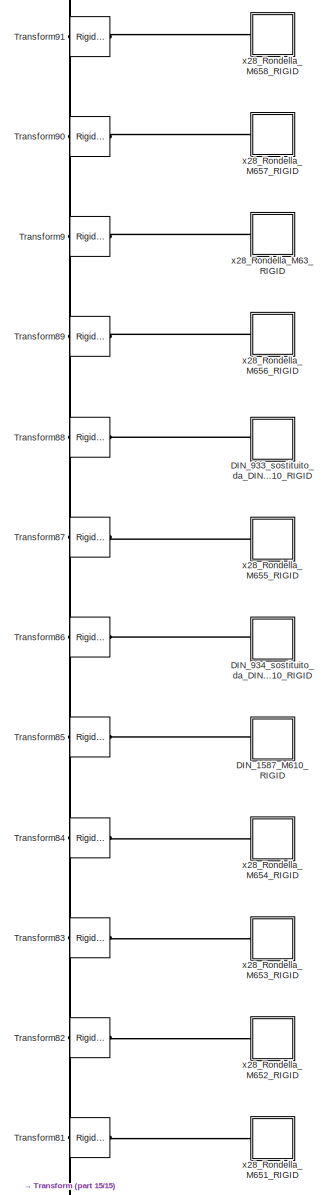
[diagram: Assieme_Disco1_RIGID - part 2/15, full width, top band]
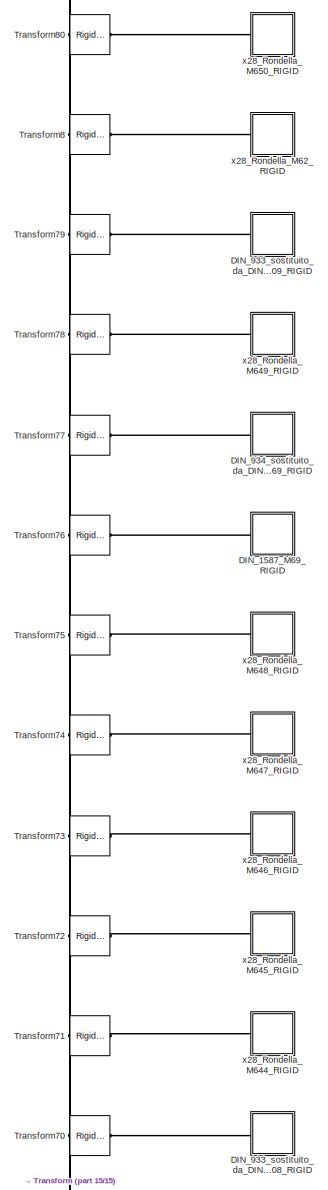
[diagram: Assieme_Disco1_RIGID - part 3/15, full width, top band]
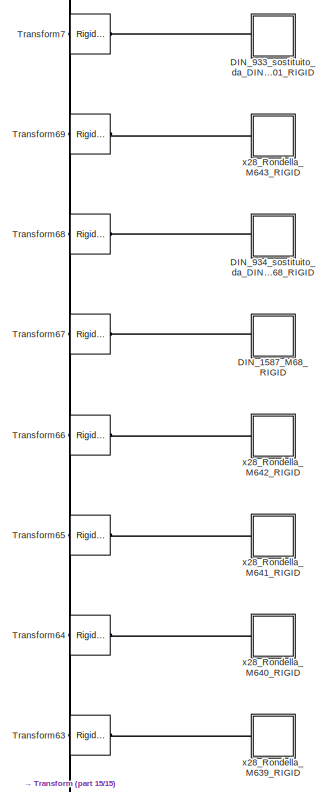
[diagram: Assieme_Disco1_RIGID - part 4/15, full width, top band]
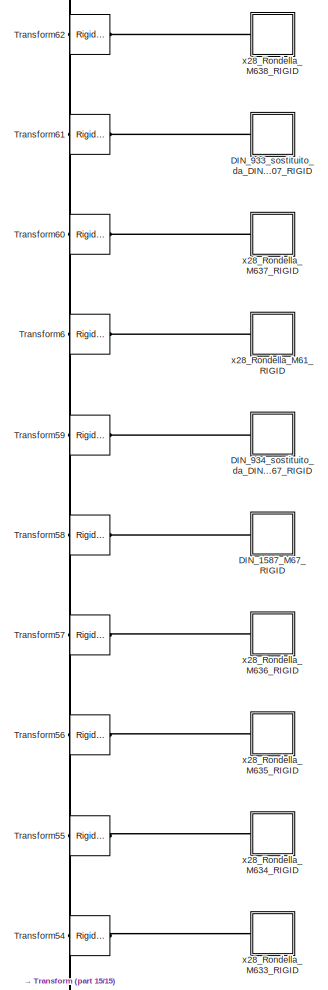
[diagram: Assieme_Disco1_RIGID - part 5/15, full width, top band]
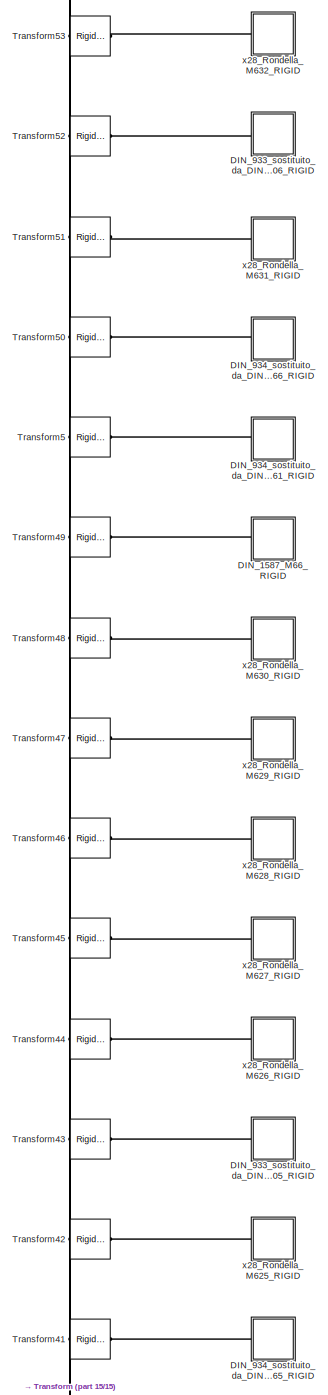
[diagram: Assieme_Disco1_RIGID - part 6/15, full width, top band]
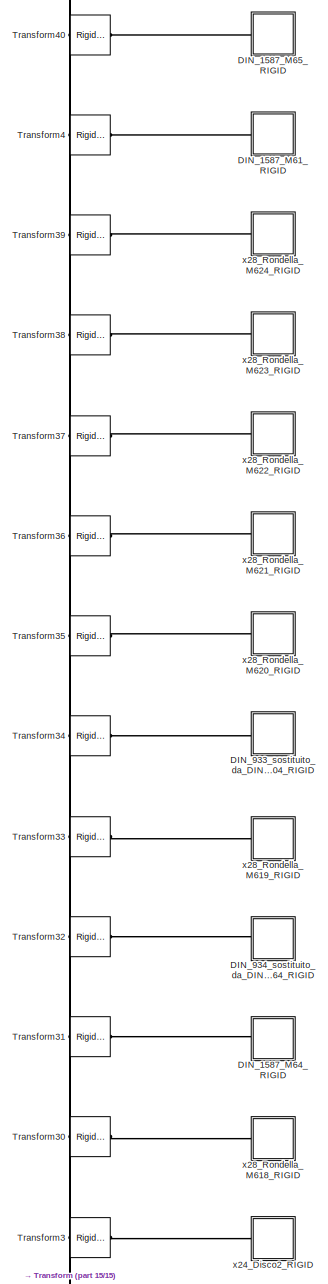
[diagram: Assieme_Disco1_RIGID - part 7/15, full width, top band]
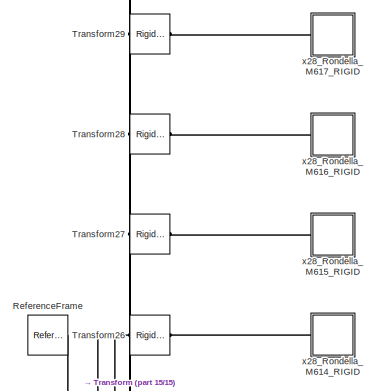
[diagram: Assieme_Disco1_RIGID - part 8/15, full width, top band]
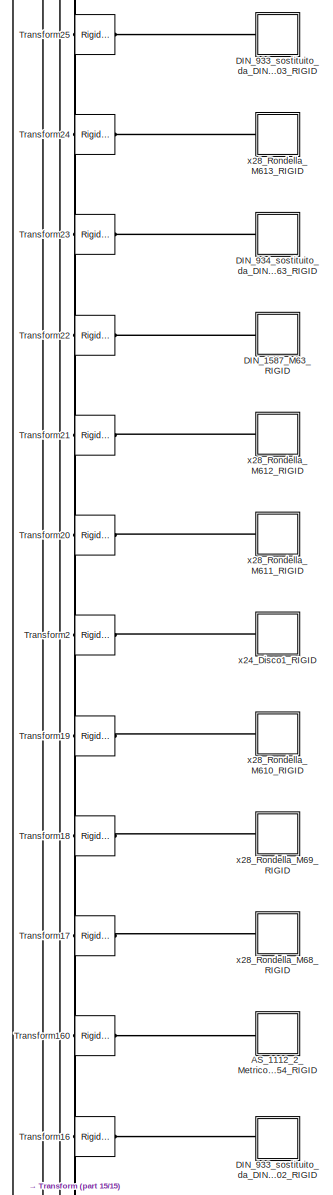
[diagram: Assieme_Disco1_RIGID - part 9/15, full width, middle band]
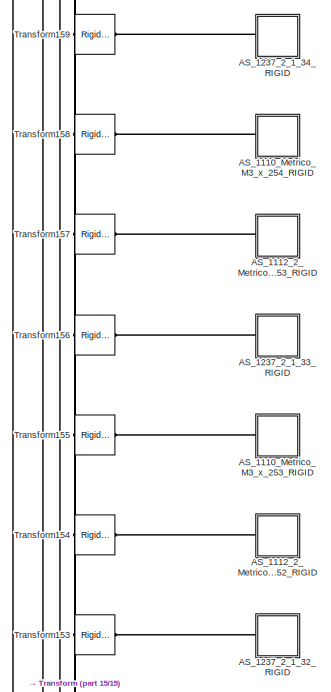
[diagram: Assieme_Disco1_RIGID - part 10/15, full width, middle band]
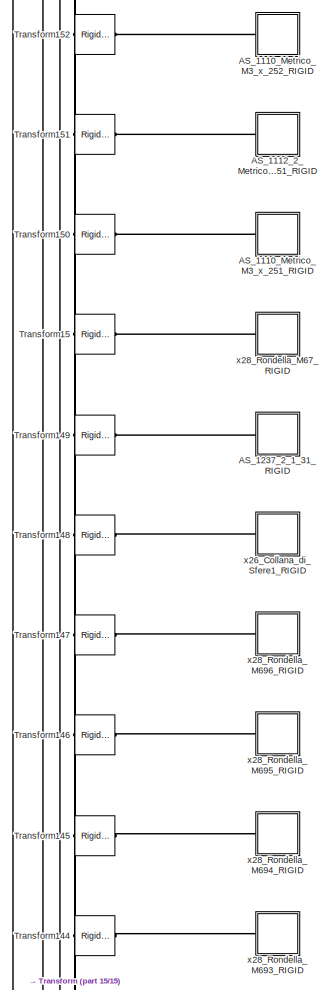
[diagram: Assieme_Disco1_RIGID - part 11/15, full width, middle band]
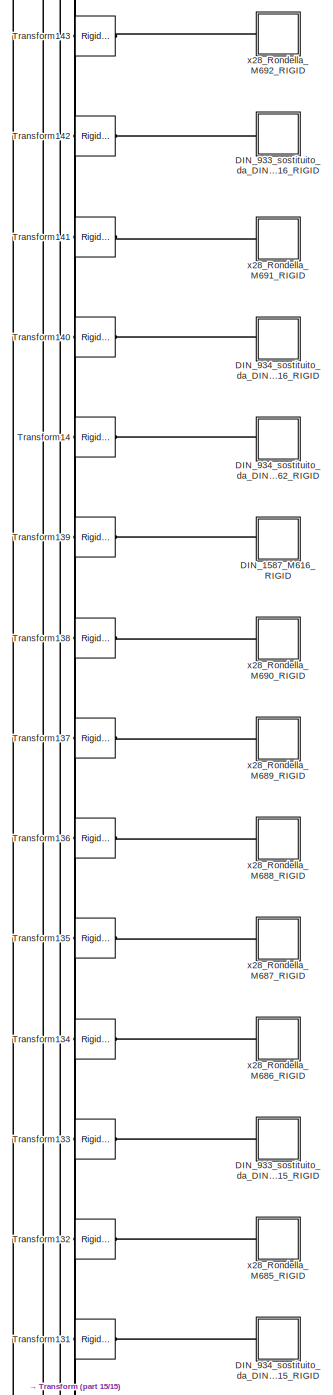
[diagram: Assieme_Disco1_RIGID - part 12/15, full width, middle band]
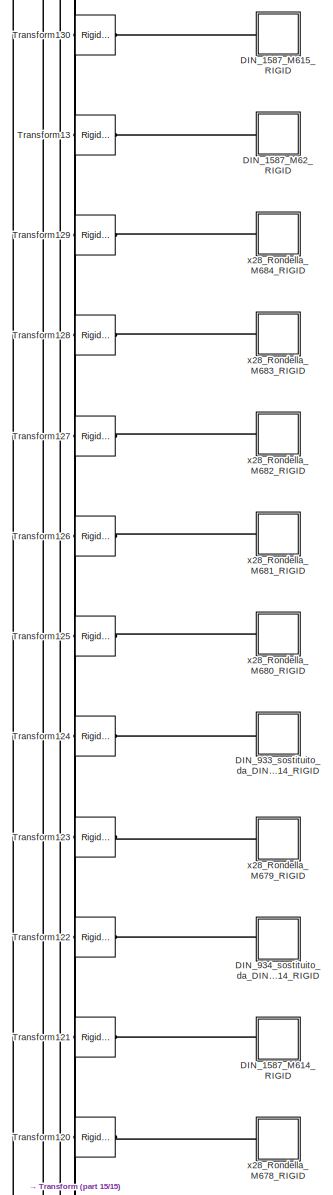
[diagram: Assieme_Disco1_RIGID - part 13/15, full width, middle band]
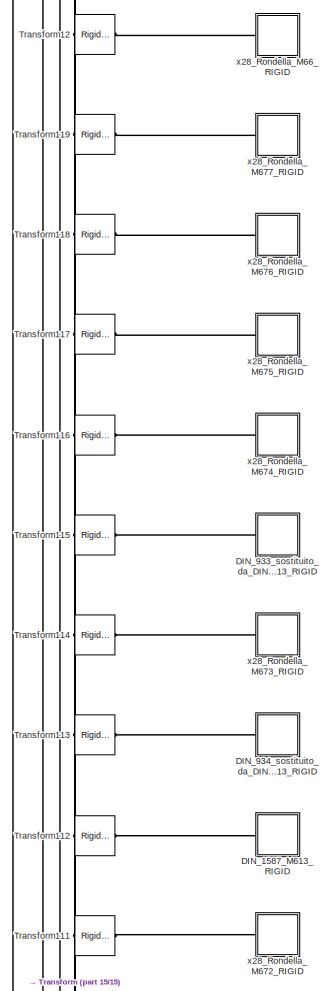
[diagram: Assieme_Disco1_RIGID - part 14/15, full width, middle band]
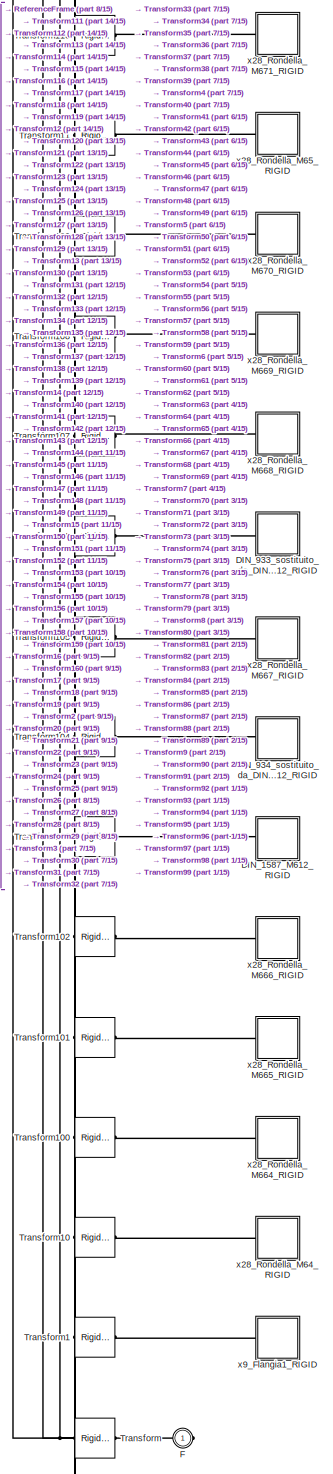
[diagram: Assieme_Disco1_RIGID - part 15/15, full width, middle band]
BLOCK [SubSystem] Assieme_Disco1_RIGID
  Ports = [0, 0, 0, 0, 0, 0, 1]
  RequestExecContextInheritance = off
BLOCK [SubSystem] Assieme_Disco1_RIGID/AS_1110_Metrico_M3_x_251_RIGID
  Ports = [0, 0, 0, 0, 0, 1]
  RequestExecContextInheritance = off
BLOCK [PMIOPort] Assieme_Disco1_RIGID/AS_1110_Metrico_M3_x_251_RIGID/F
  Side = Left
BLOCK [Reference] Assieme_Disco1_RIGID/AS_1110_Metrico_M3_x_251_RIGID/ReferenceFrame  REF=sm_lib/Frames and
Transforms/Reference
Frame
  Ports = [0, 0, 0, 0, 0, 0, 1]
  SourceBlock = sm_lib/Frames and\nTransforms/Reference\nFrame
  SourceProductBaseCode = MS
  SourceProductName = Simscape Multibody
  SourceType = Reference\nFrame
BLOCK [Reference] Assieme_Disco1_RIGID/AS_1110_Metrico_M3_x_251_RIGID/Solid  REF=sm_lib/Body Elements/File Solid
  Ports = [0, 0, 0, 0, 0, 0, 1]
  SourceBlock = sm_lib/Body Elements/File Solid
  SourceProductBaseCode = MS
  SourceProductName = Simscape Multibody
  SourceType = File Solid
BLOCK [SubSystem] Assieme_Disco1_RIGID/AS_1110_Metrico_M3_x_252_RIGID
  Ports = [0, 0, 0, 0, 0, 1]
  RequestExecContextInheritance = off
BLOCK [PMIOPort] Assieme_Disco1_RIGID/AS_1110_Metrico_M3_x_252_RIGID/F
  Side = Left
BLOCK [Reference] Assieme_Disco1_RIGID/AS_1110_Metrico_M3_x_252_RIGID/ReferenceFrame  REF=sm_lib/Frames and
Transforms/Reference
Frame
  Ports = [0, 0, 0, 0, 0, 0, 1]
  SourceBlock = sm_lib/Frames and\nTransforms/Reference\nFrame
  SourceProductBaseCode = MS
  SourceProductName = Simscape Multibody
  SourceType = Reference\nFrame
BLOCK [Reference] Assieme_Disco1_RIGID/AS_1110_Metrico_M3_x_252_RIGID/Solid  REF=sm_lib/Body Elements/File Solid
  Ports = [0, 0, 0, 0, 0, 0, 1]
  SourceBlock = sm_lib/Body Elements/File Solid
  SourceProductBaseCode = MS
  SourceProductName = Simscape Multibody
  SourceType = File Solid
BLOCK [SubSystem] Assieme_Disco1_RIGID/AS_1110_Metrico_M3_x_253_RIGID
  Ports = [0, 0, 0, 0, 0, 1]
  RequestExecContextInheritance = off
BLOCK [PMIOPort] Assieme_Disco1_RIGID/AS_1110_Metrico_M3_x_253_RIGID/F
  Side = Left
BLOCK [Reference] Assieme_Disco1_RIGID/AS_1110_Metrico_M3_x_253_RIGID/ReferenceFrame  REF=sm_lib/Frames and
Transforms/Reference
Frame
  Ports = [0, 0, 0, 0, 0, 0, 1]
  SourceBlock = sm_lib/Frames and\nTransforms/Reference\nFrame
  SourceProductBaseCode = MS
  SourceProductName = Simscape Multibody
  SourceType = Reference\nFrame
BLOCK [Reference] Assieme_Disco1_RIGID/AS_1110_Metrico_M3_x_253_RIGID/Solid  REF=sm_lib/Body Elements/File Solid
  Ports = [0, 0, 0, 0, 0, 0, 1]
  SourceBlock = sm_lib/Body Elements/File Solid
  SourceProductBaseCode = MS
  SourceProductName = Simscape Multibody
  SourceType = File Solid
BLOCK [SubSystem] Assieme_Disco1_RIGID/AS_1110_Metrico_M3_x_254_RIGID
  Ports = [0, 0, 0, 0, 0, 1]
  RequestExecContextInheritance = off
BLOCK [PMIOPort] Assieme_Disco1_RIGID/AS_1110_Metrico_M3_x_254_RIGID/F
  Side = Left
BLOCK [Reference] Assieme_Disco1_RIGID/AS_1110_Metrico_M3_x_254_RIGID/ReferenceFrame  REF=sm_lib/Frames and
Transforms/Reference
Frame
  Ports = [0, 0, 0, 0, 0, 0, 1]
  SourceBlock = sm_lib/Frames and\nTransforms/Reference\nFrame
  SourceProductBaseCode = MS
  SourceProductName = Simscape Multibody
  SourceType = Reference\nFrame
BLOCK [Reference] Assieme_Disco1_RIGID/AS_1110_Metrico_M3_x_254_RIGID/Solid  REF=sm_lib/Body Elements/File Solid
  Ports = [0, 0, 0, 0, 0, 0, 1]
  SourceBlock = sm_lib/Body Elements/File Solid
  SourceProductBaseCode = MS
  SourceProductName = Simscape Multibody
  SourceType = File Solid
BLOCK [SubSystem] Assieme_Disco1_RIGID/AS_1112_2_Metrico_M3_Tipo_51_RIGID
  Ports = [0, 0, 0, 0, 0, 1]
  RequestExecContextInheritance = off
BLOCK [PMIOPort] Assieme_Disco1_RIGID/AS_1112_2_Metrico_M3_Tipo_51_RIGID/F
  Side = Left
BLOCK [Reference] Assieme_Disco1_RIGID/AS_1112_2_Metrico_M3_Tipo_51_RIGID/ReferenceFrame  REF=sm_lib/Frames and
Transforms/Reference
Frame
  Ports = [0, 0, 0, 0, 0, 0, 1]
  SourceBlock = sm_lib/Frames and\nTransforms/Reference\nFrame
  SourceProductBaseCode = MS
  SourceProductName = Simscape Multibody
  SourceType = Reference\nFrame
BLOCK [Reference] Assieme_Disco1_RIGID/AS_1112_2_Metrico_M3_Tipo_51_RIGID/Solid  REF=sm_lib/Body Elements/File Solid
  Ports = [0, 0, 0, 0, 0, 0, 1]
  SourceBlock = sm_lib/Body Elements/File Solid
  SourceProductBaseCode = MS
  SourceProductName = Simscape Multibody
  SourceType = File Solid
BLOCK [SubSystem] Assieme_Disco1_RIGID/AS_1112_2_Metrico_M3_Tipo_52_RIGID
  Ports = [0, 0, 0, 0, 0, 1]
  RequestExecContextInheritance = off
BLOCK [PMIOPort] Assieme_Disco1_RIGID/AS_1112_2_Metrico_M3_Tipo_52_RIGID/F
  Side = Left
BLOCK [Reference] Assieme_Disco1_RIGID/AS_1112_2_Metrico_M3_Tipo_52_RIGID/ReferenceFrame  REF=sm_lib/Frames and
Transforms/Reference
Frame
  Ports = [0, 0, 0, 0, 0, 0, 1]
  SourceBlock = sm_lib/Frames and\nTransforms/Reference\nFrame
  SourceProductBaseCode = MS
  SourceProductName = Simscape Multibody
  SourceType = Reference\nFrame
BLOCK [Reference] Assieme_Disco1_RIGID/AS_1112_2_Metrico_M3_Tipo_52_RIGID/Solid  REF=sm_lib/Body Elements/File Solid
  Ports = [0, 0, 0, 0, 0, 0, 1]
  SourceBlock = sm_lib/Body Elements/File Solid
  SourceProductBaseCode = MS
  SourceProductName = Simscape Multibody
  SourceType = File Solid
BLOCK [SubSystem] Assieme_Disco1_RIGID/AS_1112_2_Metrico_M3_Tipo_53_RIGID
  Ports = [0, 0, 0, 0, 0, 1]
  RequestExecContextInheritance = off
BLOCK [PMIOPort] Assieme_Disco1_RIGID/AS_1112_2_Metrico_M3_Tipo_53_RIGID/F
  Side = Left
BLOCK [Reference] Assieme_Disco1_RIGID/AS_1112_2_Metrico_M3_Tipo_53_RIGID/ReferenceFrame  REF=sm_lib/Frames and
Transforms/Reference
Frame
  Ports = [0, 0, 0, 0, 0, 0, 1]
  SourceBlock = sm_lib/Frames and\nTransforms/Reference\nFrame
  SourceProductBaseCode = MS
  SourceProductName = Simscape Multibody
  SourceType = Reference\nFrame
BLOCK [Reference] Assieme_Disco1_RIGID/AS_1112_2_Metrico_M3_Tipo_53_RIGID/Solid  REF=sm_lib/Body Elements/File Solid
  Ports = [0, 0, 0, 0, 0, 0, 1]
  SourceBlock = sm_lib/Body Elements/File Solid
  SourceProductBaseCode = MS
  SourceProductName = Simscape Multibody
  SourceType = File Solid
BLOCK [SubSystem] Assieme_Disco1_RIGID/AS_1112_2_Metrico_M3_Tipo_54_RIGID
  Ports = [0, 0, 0, 0, 0, 1]
  RequestExecContextInheritance = off
BLOCK [PMIOPort] Assieme_Disco1_RIGID/AS_1112_2_Metrico_M3_Tipo_54_RIGID/F
  Side = Left
BLOCK [Reference] Assieme_Disco1_RIGID/AS_1112_2_Metrico_M3_Tipo_54_RIGID/ReferenceFrame  REF=sm_lib/Frames and
Transforms/Reference
Frame
  Ports = [0, 0, 0, 0, 0, 0, 1]
  SourceBlock = sm_lib/Frames and\nTransforms/Reference\nFrame
  SourceProductBaseCode = MS
  SourceProductName = Simscape Multibody
  SourceType = Reference\nFrame
BLOCK [Reference] Assieme_Disco1_RIGID/AS_1112_2_Metrico_M3_Tipo_54_RIGID/Solid  REF=sm_lib/Body Elements/File Solid
  Ports = [0, 0, 0, 0, 0, 0, 1]
  SourceBlock = sm_lib/Body Elements/File Solid
  SourceProductBaseCode = MS
  SourceProductName = Simscape Multibody
  SourceType = File Solid
BLOCK [SubSystem] Assieme_Disco1_RIGID/AS_1237_2_1_31_RIGID
  Ports = [0, 0, 0, 0, 0, 1]
  RequestExecContextInheritance = off
BLOCK [PMIOPort] Assieme_Disco1_RIGID/AS_1237_2_1_31_RIGID/F
  Side = Left
BLOCK [Reference] Assieme_Disco1_RIGID/AS_1237_2_1_31_RIGID/ReferenceFrame  REF=sm_lib/Frames and
Transforms/Reference
Frame
  Ports = [0, 0, 0, 0, 0, 0, 1]
  SourceBlock = sm_lib/Frames and\nTransforms/Reference\nFrame
  SourceProductBaseCode = MS
  SourceProductName = Simscape Multibody
  SourceType = Reference\nFrame
BLOCK [Reference] Assieme_Disco1_RIGID/AS_1237_2_1_31_RIGID/Solid  REF=sm_lib/Body Elements/File Solid
  Ports = [0, 0, 0, 0, 0, 0, 1]
  SourceBlock = sm_lib/Body Elements/File Solid
  SourceProductBaseCode = MS
  SourceProductName = Simscape Multibody
  SourceType = File Solid
BLOCK [SubSystem] Assieme_Disco1_RIGID/AS_1237_2_1_32_RIGID
  Ports = [0, 0, 0, 0, 0, 1]
  RequestExecContextInheritance = off
BLOCK [PMIOPort] Assieme_Disco1_RIGID/AS_1237_2_1_32_RIGID/F
  Side = Left
BLOCK [Reference] Assieme_Disco1_RIGID/AS_1237_2_1_32_RIGID/ReferenceFrame  REF=sm_lib/Frames and
Transforms/Reference
Frame
  Ports = [0, 0, 0, 0, 0, 0, 1]
  SourceBlock = sm_lib/Frames and\nTransforms/Reference\nFrame
  SourceProductBaseCode = MS
  SourceProductName = Simscape Multibody
  SourceType = Reference\nFrame
BLOCK [Reference] Assieme_Disco1_RIGID/AS_1237_2_1_32_RIGID/Solid  REF=sm_lib/Body Elements/File Solid
  Ports = [0, 0, 0, 0, 0, 0, 1]
  SourceBlock = sm_lib/Body Elements/File Solid
  SourceProductBaseCode = MS
  SourceProductName = Simscape Multibody
  SourceType = File Solid
BLOCK [SubSystem] Assieme_Disco1_RIGID/AS_1237_2_1_33_RIGID
  Ports = [0, 0, 0, 0, 0, 1]
  RequestExecContextInheritance = off
BLOCK [PMIOPort] Assieme_Disco1_RIGID/AS_1237_2_1_33_RIGID/F
  Side = Left
BLOCK [Reference] Assieme_Disco1_RIGID/AS_1237_2_1_33_RIGID/ReferenceFrame  REF=sm_lib/Frames and
Transforms/Reference
Frame
  Ports = [0, 0, 0, 0, 0, 0, 1]
  SourceBlock = sm_lib/Frames and\nTransforms/Reference\nFrame
  SourceProductBaseCode = MS
  SourceProductName = Simscape Multibody
  SourceType = Reference\nFrame
BLOCK [Reference] Assieme_Disco1_RIGID/AS_1237_2_1_33_RIGID/Solid  REF=sm_lib/Body Elements/File Solid
  Ports = [0, 0, 0, 0, 0, 0, 1]
  SourceBlock = sm_lib/Body Elements/File Solid
  SourceProductBaseCode = MS
  SourceProductName = Simscape Multibody
  SourceType = File Solid
BLOCK [SubSystem] Assieme_Disco1_RIGID/AS_1237_2_1_34_RIGID
  Ports = [0, 0, 0, 0, 0, 1]
  RequestExecContextInheritance = off
BLOCK [PMIOPort] Assieme_Disco1_RIGID/AS_1237_2_1_34_RIGID/F
  Side = Left
BLOCK [Reference] Assieme_Disco1_RIGID/AS_1237_2_1_34_RIGID/ReferenceFrame  REF=sm_lib/Frames and
Transforms/Reference
Frame
  Ports = [0, 0, 0, 0, 0, 0, 1]
  SourceBlock = sm_lib/Frames and\nTransforms/Reference\nFrame
  SourceProductBaseCode = MS
  SourceProductName = Simscape Multibody
  SourceType = Reference\nFrame
BLOCK [Reference] Assieme_Disco1_RIGID/AS_1237_2_1_34_RIGID/Solid  REF=sm_lib/Body Elements/File Solid
  Ports = [0, 0, 0, 0, 0, 0, 1]
  SourceBlock = sm_lib/Body Elements/File Solid
  SourceProductBaseCode = MS
  SourceProductName = Simscape Multibody
  SourceType = File Solid
BLOCK [SubSystem] Assieme_Disco1_RIGID/DIN_1587_M610_RIGID
  Ports = [0, 0, 0, 0, 0, 1]
  RequestExecContextInheritance = off
BLOCK [PMIOPort] Assieme_Disco1_RIGID/DIN_1587_M610_RIGID/F
  Side = Left
BLOCK [Reference] Assieme_Disco1_RIGID/DIN_1587_M610_RIGID/ReferenceFrame  REF=sm_lib/Frames and
Transforms/Reference
Frame
  Ports = [0, 0, 0, 0, 0, 0, 1]
  SourceBlock = sm_lib/Frames and\nTransforms/Reference\nFrame
  SourceProductBaseCode = MS
  SourceProductName = Simscape Multibody
  SourceType = Reference\nFrame
BLOCK [Reference] Assieme_Disco1_RIGID/DIN_1587_M610_RIGID/Solid  REF=sm_lib/Body Elements/File Solid
  Ports = [0, 0, 0, 0, 0, 0, 1]
  SourceBlock = sm_lib/Body Elements/File Solid
  SourceProductBaseCode = MS
  SourceProductName = Simscape Multibody
  SourceType = File Solid
BLOCK [SubSystem] Assieme_Disco1_RIGID/DIN_1587_M611_RIGID
  Ports = [0, 0, 0, 0, 0, 1]
  RequestExecContextInheritance = off
BLOCK [PMIOPort] Assieme_Disco1_RIGID/DIN_1587_M611_RIGID/F
  Side = Left
BLOCK [Reference] Assieme_Disco1_RIGID/DIN_1587_M611_RIGID/ReferenceFrame  REF=sm_lib/Frames and
Transforms/Reference
Frame
  Ports = [0, 0, 0, 0, 0, 0, 1]
  SourceBlock = sm_lib/Frames and\nTransforms/Reference\nFrame
  SourceProductBaseCode = MS
  SourceProductName = Simscape Multibody
  SourceType = Reference\nFrame
BLOCK [Reference] Assieme_Disco1_RIGID/DIN_1587_M611_RIGID/Solid  REF=sm_lib/Body Elements/File Solid
  Ports = [0, 0, 0, 0, 0, 0, 1]
  SourceBlock = sm_lib/Body Elements/File Solid
  SourceProductBaseCode = MS
  SourceProductName = Simscape Multibody
  SourceType = File Solid
BLOCK [SubSystem] Assieme_Disco1_RIGID/DIN_1587_M612_RIGID
  Ports = [0, 0, 0, 0, 0, 1]
  RequestExecContextInheritance = off
BLOCK [PMIOPort] Assieme_Disco1_RIGID/DIN_1587_M612_RIGID/F
  Side = Left
BLOCK [Reference] Assieme_Disco1_RIGID/DIN_1587_M612_RIGID/ReferenceFrame  REF=sm_lib/Frames and
Transforms/Reference
Frame
  Ports = [0, 0, 0, 0, 0, 0, 1]
  SourceBlock = sm_lib/Frames and\nTransforms/Reference\nFrame
  SourceProductBaseCode = MS
  SourceProductName = Simscape Multibody
  SourceType = Reference\nFrame
BLOCK [Reference] Assieme_Disco1_RIGID/DIN_1587_M612_RIGID/Solid  REF=sm_lib/Body Elements/File Solid
  Ports = [0, 0, 0, 0, 0, 0, 1]
  SourceBlock = sm_lib/Body Elements/File Solid
  SourceProductBaseCode = MS
  SourceProductName = Simscape Multibody
  SourceType = File Solid
BLOCK [SubSystem] Assieme_Disco1_RIGID/DIN_1587_M613_RIGID
  Ports = [0, 0, 0, 0, 0, 1]
  RequestExecContextInheritance = off
BLOCK [PMIOPort] Assieme_Disco1_RIGID/DIN_1587_M613_RIGID/F
  Side = Left
BLOCK [Reference] Assieme_Disco1_RIGID/DIN_1587_M613_RIGID/ReferenceFrame  REF=sm_lib/Frames and
Transforms/Reference
Frame
  Ports = [0, 0, 0, 0, 0, 0, 1]
  SourceBlock = sm_lib/Frames and\nTransforms/Reference\nFrame
  SourceProductBaseCode = MS
  SourceProductName = Simscape Multibody
  SourceType = Reference\nFrame
BLOCK [Reference] Assieme_Disco1_RIGID/DIN_1587_M613_RIGID/Solid  REF=sm_lib/Body Elements/File Solid
  Ports = [0, 0, 0, 0, 0, 0, 1]
  SourceBlock = sm_lib/Body Elements/File Solid
  SourceProductBaseCode = MS
  SourceProductName = Simscape Multibody
  SourceType = File Solid
BLOCK [SubSystem] Assieme_Disco1_RIGID/DIN_1587_M614_RIGID
  Ports = [0, 0, 0, 0, 0, 1]
  RequestExecContextInheritance = off
BLOCK [PMIOPort] Assieme_Disco1_RIGID/DIN_1587_M614_RIGID/F
  Side = Left
BLOCK [Reference] Assieme_Disco1_RIGID/DIN_1587_M614_RIGID/ReferenceFrame  REF=sm_lib/Frames and
Transforms/Reference
Frame
  Ports = [0, 0, 0, 0, 0, 0, 1]
  SourceBlock = sm_lib/Frames and\nTransforms/Reference\nFrame
  SourceProductBaseCode = MS
  SourceProductName = Simscape Multibody
  SourceType = Reference\nFrame
BLOCK [Reference] Assieme_Disco1_RIGID/DIN_1587_M614_RIGID/Solid  REF=sm_lib/Body Elements/File Solid
  Ports = [0, 0, 0, 0, 0, 0, 1]
  SourceBlock = sm_lib/Body Elements/File Solid
  SourceProductBaseCode = MS
  SourceProductName = Simscape Multibody
  SourceType = File Solid
BLOCK [SubSystem] Assieme_Disco1_RIGID/DIN_1587_M615_RIGID
  Ports = [0, 0, 0, 0, 0, 1]
  RequestExecContextInheritance = off
BLOCK [PMIOPort] Assieme_Disco1_RIGID/DIN_1587_M615_RIGID/F
  Side = Left
BLOCK [Reference] Assieme_Disco1_RIGID/DIN_1587_M615_RIGID/ReferenceFrame  REF=sm_lib/Frames and
Transforms/Reference
Frame
  Ports = [0, 0, 0, 0, 0, 0, 1]
  SourceBlock = sm_lib/Frames and\nTransforms/Reference\nFrame
  SourceProductBaseCode = MS
  SourceProductName = Simscape Multibody
  SourceType = Reference\nFrame
BLOCK [Reference] Assieme_Disco1_RIGID/DIN_1587_M615_RIGID/Solid  REF=sm_lib/Body Elements/File Solid
  Ports = [0, 0, 0, 0, 0, 0, 1]
  SourceBlock = sm_lib/Body Elements/File Solid
  SourceProductBaseCode = MS
  SourceProductName = Simscape Multibody
  SourceType = File Solid
BLOCK [SubSystem] Assieme_Disco1_RIGID/DIN_1587_M616_RIGID
  Ports = [0, 0, 0, 0, 0, 1]
  RequestExecContextInheritance = off
BLOCK [PMIOPort] Assieme_Disco1_RIGID/DIN_1587_M616_RIGID/F
  Side = Left
BLOCK [Reference] Assieme_Disco1_RIGID/DIN_1587_M616_RIGID/ReferenceFrame  REF=sm_lib/Frames and
Transforms/Reference
Frame
  Ports = [0, 0, 0, 0, 0, 0, 1]
  SourceBlock = sm_lib/Frames and\nTransforms/Reference\nFrame
  SourceProductBaseCode = MS
  SourceProductName = Simscape Multibody
  SourceType = Reference\nFrame
BLOCK [Reference] Assieme_Disco1_RIGID/DIN_1587_M616_RIGID/Solid  REF=sm_lib/Body Elements/File Solid
  Ports = [0, 0, 0, 0, 0, 0, 1]
  SourceBlock = sm_lib/Body Elements/File Solid
  SourceProductBaseCode = MS
  SourceProductName = Simscape Multibody
  SourceType = File Solid
BLOCK [SubSystem] Assieme_Disco1_RIGID/DIN_1587_M61_RIGID
  Ports = [0, 0, 0, 0, 0, 1]
  RequestExecContextInheritance = off
BLOCK [PMIOPort] Assieme_Disco1_RIGID/DIN_1587_M61_RIGID/F
  Side = Left
BLOCK [Reference] Assieme_Disco1_RIGID/DIN_1587_M61_RIGID/ReferenceFrame  REF=sm_lib/Frames and
Transforms/Reference
Frame
  Ports = [0, 0, 0, 0, 0, 0, 1]
  SourceBlock = sm_lib/Frames and\nTransforms/Reference\nFrame
  SourceProductBaseCode = MS
  SourceProductName = Simscape Multibody
  SourceType = Reference\nFrame
BLOCK [Reference] Assieme_Disco1_RIGID/DIN_1587_M61_RIGID/Solid  REF=sm_lib/Body Elements/File Solid
  Ports = [0, 0, 0, 0, 0, 0, 1]
  SourceBlock = sm_lib/Body Elements/File Solid
  SourceProductBaseCode = MS
  SourceProductName = Simscape Multibody
  SourceType = File Solid
BLOCK [SubSystem] Assieme_Disco1_RIGID/DIN_1587_M62_RIGID
  Ports = [0, 0, 0, 0, 0, 1]
  RequestExecContextInheritance = off
BLOCK [PMIOPort] Assieme_Disco1_RIGID/DIN_1587_M62_RIGID/F
  Side = Left
BLOCK [Reference] Assieme_Disco1_RIGID/DIN_1587_M62_RIGID/ReferenceFrame  REF=sm_lib/Frames and
Transforms/Reference
Frame
  Ports = [0, 0, 0, 0, 0, 0, 1]
  SourceBlock = sm_lib/Frames and\nTransforms/Reference\nFrame
  SourceProductBaseCode = MS
  SourceProductName = Simscape Multibody
  SourceType = Reference\nFrame
BLOCK [Reference] Assieme_Disco1_RIGID/DIN_1587_M62_RIGID/Solid  REF=sm_lib/Body Elements/File Solid
  Ports = [0, 0, 0, 0, 0, 0, 1]
  SourceBlock = sm_lib/Body Elements/File Solid
  SourceProductBaseCode = MS
  SourceProductName = Simscape Multibody
  SourceType = File Solid
BLOCK [SubSystem] Assieme_Disco1_RIGID/DIN_1587_M63_RIGID
  Ports = [0, 0, 0, 0, 0, 1]
  RequestExecContextInheritance = off
BLOCK [PMIOPort] Assieme_Disco1_RIGID/DIN_1587_M63_RIGID/F
  Side = Left
BLOCK [Reference] Assieme_Disco1_RIGID/DIN_1587_M63_RIGID/ReferenceFrame  REF=sm_lib/Frames and
Transforms/Reference
Frame
  Ports = [0, 0, 0, 0, 0, 0, 1]
  SourceBlock = sm_lib/Frames and\nTransforms/Reference\nFrame
  SourceProductBaseCode = MS
  SourceProductName = Simscape Multibody
  SourceType = Reference\nFrame
BLOCK [Reference] Assieme_Disco1_RIGID/DIN_1587_M63_RIGID/Solid  REF=sm_lib/Body Elements/File Solid
  Ports = [0, 0, 0, 0, 0, 0, 1]
  SourceBlock = sm_lib/Body Elements/File Solid
  SourceProductBaseCode = MS
  SourceProductName = Simscape Multibody
  SourceType = File Solid
BLOCK [SubSystem] Assieme_Disco1_RIGID/DIN_1587_M64_RIGID
  Ports = [0, 0, 0, 0, 0, 1]
  RequestExecContextInheritance = off
BLOCK [PMIOPort] Assieme_Disco1_RIGID/DIN_1587_M64_RIGID/F
  Side = Left
BLOCK [Reference] Assieme_Disco1_RIGID/DIN_1587_M64_RIGID/ReferenceFrame  REF=sm_lib/Frames and
Transforms/Reference
Frame
  Ports = [0, 0, 0, 0, 0, 0, 1]
  SourceBlock = sm_lib/Frames and\nTransforms/Reference\nFrame
  SourceProductBaseCode = MS
  SourceProductName = Simscape Multibody
  SourceType = Reference\nFrame
BLOCK [Reference] Assieme_Disco1_RIGID/DIN_1587_M64_RIGID/Solid  REF=sm_lib/Body Elements/File Solid
  Ports = [0, 0, 0, 0, 0, 0, 1]
  SourceBlock = sm_lib/Body Elements/File Solid
  SourceProductBaseCode = MS
  SourceProductName = Simscape Multibody
  SourceType = File Solid
BLOCK [SubSystem] Assieme_Disco1_RIGID/DIN_1587_M65_RIGID
  Ports = [0, 0, 0, 0, 0, 1]
  RequestExecContextInheritance = off
BLOCK [PMIOPort] Assieme_Disco1_RIGID/DIN_1587_M65_RIGID/F
  Side = Left
BLOCK [Reference] Assieme_Disco1_RIGID/DIN_1587_M65_RIGID/ReferenceFrame  REF=sm_lib/Frames and
Transforms/Reference
Frame
  Ports = [0, 0, 0, 0, 0, 0, 1]
  SourceBlock = sm_lib/Frames and\nTransforms/Reference\nFrame
  SourceProductBaseCode = MS
  SourceProductName = Simscape Multibody
  SourceType = Reference\nFrame
BLOCK [Reference] Assieme_Disco1_RIGID/DIN_1587_M65_RIGID/Solid  REF=sm_lib/Body Elements/File Solid
  Ports = [0, 0, 0, 0, 0, 0, 1]
  SourceBlock = sm_lib/Body Elements/File Solid
  SourceProductBaseCode = MS
  SourceProductName = Simscape Multibody
  SourceType = File Solid
BLOCK [SubSystem] Assieme_Disco1_RIGID/DIN_1587_M66_RIGID
  Ports = [0, 0, 0, 0, 0, 1]
  RequestExecContextInheritance = off
BLOCK [PMIOPort] Assieme_Disco1_RIGID/DIN_1587_M66_RIGID/F
  Side = Left
BLOCK [Reference] Assieme_Disco1_RIGID/DIN_1587_M66_RIGID/ReferenceFrame  REF=sm_lib/Frames and
Transforms/Reference
Frame
  Ports = [0, 0, 0, 0, 0, 0, 1]
  SourceBlock = sm_lib/Frames and\nTransforms/Reference\nFrame
  SourceProductBaseCode = MS
  SourceProductName = Simscape Multibody
  SourceType = Reference\nFrame
BLOCK [Reference] Assieme_Disco1_RIGID/DIN_1587_M66_RIGID/Solid  REF=sm_lib/Body Elements/File Solid
  Ports = [0, 0, 0, 0, 0, 0, 1]
  SourceBlock = sm_lib/Body Elements/File Solid
  SourceProductBaseCode = MS
  SourceProductName = Simscape Multibody
  SourceType = File Solid
BLOCK [SubSystem] Assieme_Disco1_RIGID/DIN_1587_M67_RIGID
  Ports = [0, 0, 0, 0, 0, 1]
  RequestExecContextInheritance = off
BLOCK [PMIOPort] Assieme_Disco1_RIGID/DIN_1587_M67_RIGID/F
  Side = Left
BLOCK [Reference] Assieme_Disco1_RIGID/DIN_1587_M67_RIGID/ReferenceFrame  REF=sm_lib/Frames and
Transforms/Reference
Frame
  Ports = [0, 0, 0, 0, 0, 0, 1]
  SourceBlock = sm_lib/Frames and\nTransforms/Reference\nFrame
  SourceProductBaseCode = MS
  SourceProductName = Simscape Multibody
  SourceType = Reference\nFrame
BLOCK [Reference] Assieme_Disco1_RIGID/DIN_1587_M67_RIGID/Solid  REF=sm_lib/Body Elements/File Solid
  Ports = [0, 0, 0, 0, 0, 0, 1]
  SourceBlock = sm_lib/Body Elements/File Solid
  SourceProductBaseCode = MS
  SourceProductName = Simscape Multibody
  SourceType = File Solid
BLOCK [SubSystem] Assieme_Disco1_RIGID/DIN_1587_M68_RIGID
  Ports = [0, 0, 0, 0, 0, 1]
  RequestExecContextInheritance = off
BLOCK [PMIOPort] Assieme_Disco1_RIGID/DIN_1587_M68_RIGID/F
  Side = Left
BLOCK [Reference] Assieme_Disco1_RIGID/DIN_1587_M68_RIGID/ReferenceFrame  REF=sm_lib/Frames and
Transforms/Reference
Frame
  Ports = [0, 0, 0, 0, 0, 0, 1]
  SourceBlock = sm_lib/Frames and\nTransforms/Reference\nFrame
  SourceProductBaseCode = MS
  SourceProductName = Simscape Multibody
  SourceType = Reference\nFrame
BLOCK [Reference] Assieme_Disco1_RIGID/DIN_1587_M68_RIGID/Solid  REF=sm_lib/Body Elements/File Solid
  Ports = [0, 0, 0, 0, 0, 0, 1]
  SourceBlock = sm_lib/Body Elements/File Solid
  SourceProductBaseCode = MS
  SourceProductName = Simscape Multibody
  SourceType = File Solid
BLOCK [SubSystem] Assieme_Disco1_RIGID/DIN_1587_M69_RIGID
  Ports = [0, 0, 0, 0, 0, 1]
  RequestExecContextInheritance = off
BLOCK [PMIOPort] Assieme_Disco1_RIGID/DIN_1587_M69_RIGID/F
  Side = Left
BLOCK [Reference] Assieme_Disco1_RIGID/DIN_1587_M69_RIGID/ReferenceFrame  REF=sm_lib/Frames and
Transforms/Reference
Frame
  Ports = [0, 0, 0, 0, 0, 0, 1]
  SourceBlock = sm_lib/Frames and\nTransforms/Reference\nFrame
  SourceProductBaseCode = MS
  SourceProductName = Simscape Multibody
  SourceType = Reference\nFrame
BLOCK [Reference] Assieme_Disco1_RIGID/DIN_1587_M69_RIGID/Solid  REF=sm_lib/Body Elements/File Solid
  Ports = [0, 0, 0, 0, 0, 0, 1]
  SourceBlock = sm_lib/Body Elements/File Solid
  SourceProductBaseCode = MS
  SourceProductName = Simscape Multibody
  SourceType = File Solid
BLOCK [SubSystem] Assieme_Disco1_RIGID/DIN_933_sostituito_da_DIN_EN_24017_M6_x_3010_RIGID
  Ports = [0, 0, 0, 0, 0, 1]
  RequestExecContextInheritance = off
BLOCK [PMIOPort] Assieme_Disco1_RIGID/DIN_933_sostituito_da_DIN_EN_24017_M6_x_3010_RIGID/F
  Side = Left
BLOCK [Reference] Assieme_Disco1_RIGID/DIN_933_sostituito_da_DIN_EN_24017_M6_x_3010_RIGID/ReferenceFrame  REF=sm_lib/Frames and
Transforms/Reference
Frame
  Ports = [0, 0, 0, 0, 0, 0, 1]
  SourceBlock = sm_lib/Frames and\nTransforms/Reference\nFrame
  SourceProductBaseCode = MS
  SourceProductName = Simscape Multibody
  SourceType = Reference\nFrame
BLOCK [Reference] Assieme_Disco1_RIGID/DIN_933_sostituito_da_DIN_EN_24017_M6_x_3010_RIGID/Solid  REF=sm_lib/Body Elements/File Solid
  Ports = [0, 0, 0, 0, 0, 0, 1]
  SourceBlock = sm_lib/Body Elements/File Solid
  SourceProductBaseCode = MS
  SourceProductName = Simscape Multibody
  SourceType = File Solid
BLOCK [SubSystem] Assieme_Disco1_RIGID/DIN_933_sostituito_da_DIN_EN_24017_M6_x_3011_RIGID
  Ports = [0, 0, 0, 0, 0, 1]
  RequestExecContextInheritance = off
BLOCK [PMIOPort] Assieme_Disco1_RIGID/DIN_933_sostituito_da_DIN_EN_24017_M6_x_3011_RIGID/F
  Side = Left
BLOCK [Reference] Assieme_Disco1_RIGID/DIN_933_sostituito_da_DIN_EN_24017_M6_x_3011_RIGID/ReferenceFrame  REF=sm_lib/Frames and
Transforms/Reference
Frame
  Ports = [0, 0, 0, 0, 0, 0, 1]
  SourceBlock = sm_lib/Frames and\nTransforms/Reference\nFrame
  SourceProductBaseCode = MS
  SourceProductName = Simscape Multibody
  SourceType = Reference\nFrame
BLOCK [Reference] Assieme_Disco1_RIGID/DIN_933_sostituito_da_DIN_EN_24017_M6_x_3011_RIGID/Solid  REF=sm_lib/Body Elements/File Solid
  Ports = [0, 0, 0, 0, 0, 0, 1]
  SourceBlock = sm_lib/Body Elements/File Solid
  SourceProductBaseCode = MS
  SourceProductName = Simscape Multibody
  SourceType = File Solid
BLOCK [SubSystem] Assieme_Disco1_RIGID/DIN_933_sostituito_da_DIN_EN_24017_M6_x_3012_RIGID
  Ports = [0, 0, 0, 0, 0, 1]
  RequestExecContextInheritance = off
BLOCK [PMIOPort] Assieme_Disco1_RIGID/DIN_933_sostituito_da_DIN_EN_24017_M6_x_3012_RIGID/F
  Side = Left
BLOCK [Reference] Assieme_Disco1_RIGID/DIN_933_sostituito_da_DIN_EN_24017_M6_x_3012_RIGID/ReferenceFrame  REF=sm_lib/Frames and
Transforms/Reference
Frame
  Ports = [0, 0, 0, 0, 0, 0, 1]
  SourceBlock = sm_lib/Frames and\nTransforms/Reference\nFrame
  SourceProductBaseCode = MS
  SourceProductName = Simscape Multibody
  SourceType = Reference\nFrame
BLOCK [Reference] Assieme_Disco1_RIGID/DIN_933_sostituito_da_DIN_EN_24017_M6_x_3012_RIGID/Solid  REF=sm_lib/Body Elements/File Solid
  Ports = [0, 0, 0, 0, 0, 0, 1]
  SourceBlock = sm_lib/Body Elements/File Solid
  SourceProductBaseCode = MS
  SourceProductName = Simscape Multibody
  SourceType = File Solid
BLOCK [SubSystem] Assieme_Disco1_RIGID/DIN_933_sostituito_da_DIN_EN_24017_M6_x_3013_RIGID
  Ports = [0, 0, 0, 0, 0, 1]
  RequestExecContextInheritance = off
BLOCK [PMIOPort] Assieme_Disco1_RIGID/DIN_933_sostituito_da_DIN_EN_24017_M6_x_3013_RIGID/F
  Side = Left
BLOCK [Reference] Assieme_Disco1_RIGID/DIN_933_sostituito_da_DIN_EN_24017_M6_x_3013_RIGID/ReferenceFrame  REF=sm_lib/Frames and
Transforms/Reference
Frame
  Ports = [0, 0, 0, 0, 0, 0, 1]
  SourceBlock = sm_lib/Frames and\nTransforms/Reference\nFrame
  SourceProductBaseCode = MS
  SourceProductName = Simscape Multibody
  SourceType = Reference\nFrame
BLOCK [Reference] Assieme_Disco1_RIGID/DIN_933_sostituito_da_DIN_EN_24017_M6_x_3013_RIGID/Solid  REF=sm_lib/Body Elements/File Solid
  Ports = [0, 0, 0, 0, 0, 0, 1]
  SourceBlock = sm_lib/Body Elements/File Solid
  SourceProductBaseCode = MS
  SourceProductName = Simscape Multibody
  SourceType = File Solid
BLOCK [SubSystem] Assieme_Disco1_RIGID/DIN_933_sostituito_da_DIN_EN_24017_M6_x_3014_RIGID
  Ports = [0, 0, 0, 0, 0, 1]
  RequestExecContextInheritance = off
BLOCK [PMIOPort] Assieme_Disco1_RIGID/DIN_933_sostituito_da_DIN_EN_24017_M6_x_3014_RIGID/F
  Side = Left
BLOCK [Reference] Assieme_Disco1_RIGID/DIN_933_sostituito_da_DIN_EN_24017_M6_x_3014_RIGID/ReferenceFrame  REF=sm_lib/Frames and
Transforms/Reference
Frame
  Ports = [0, 0, 0, 0, 0, 0, 1]
  SourceBlock = sm_lib/Frames and\nTransforms/Reference\nFrame
  SourceProductBaseCode = MS
  SourceProductName = Simscape Multibody
  SourceType = Reference\nFrame
BLOCK [Reference] Assieme_Disco1_RIGID/DIN_933_sostituito_da_DIN_EN_24017_M6_x_3014_RIGID/Solid  REF=sm_lib/Body Elements/File Solid
  Ports = [0, 0, 0, 0, 0, 0, 1]
  SourceBlock = sm_lib/Body Elements/File Solid
  SourceProductBaseCode = MS
  SourceProductName = Simscape Multibody
  SourceType = File Solid
BLOCK [SubSystem] Assieme_Disco1_RIGID/DIN_933_sostituito_da_DIN_EN_24017_M6_x_3015_RIGID
  Ports = [0, 0, 0, 0, 0, 1]
  RequestExecContextInheritance = off
BLOCK [PMIOPort] Assieme_Disco1_RIGID/DIN_933_sostituito_da_DIN_EN_24017_M6_x_3015_RIGID/F
  Side = Left
BLOCK [Reference] Assieme_Disco1_RIGID/DIN_933_sostituito_da_DIN_EN_24017_M6_x_3015_RIGID/ReferenceFrame  REF=sm_lib/Frames and
Transforms/Reference
Frame
  Ports = [0, 0, 0, 0, 0, 0, 1]
  SourceBlock = sm_lib/Frames and\nTransforms/Reference\nFrame
  SourceProductBaseCode = MS
  SourceProductName = Simscape Multibody
  SourceType = Reference\nFrame
BLOCK [Reference] Assieme_Disco1_RIGID/DIN_933_sostituito_da_DIN_EN_24017_M6_x_3015_RIGID/Solid  REF=sm_lib/Body Elements/File Solid
  Ports = [0, 0, 0, 0, 0, 0, 1]
  SourceBlock = sm_lib/Body Elements/File Solid
  SourceProductBaseCode = MS
  SourceProductName = Simscape Multibody
  SourceType = File Solid
BLOCK [SubSystem] Assieme_Disco1_RIGID/DIN_933_sostituito_da_DIN_EN_24017_M6_x_3016_RIGID
  Ports = [0, 0, 0, 0, 0, 1]
  RequestExecContextInheritance = off
BLOCK [PMIOPort] Assieme_Disco1_RIGID/DIN_933_sostituito_da_DIN_EN_24017_M6_x_3016_RIGID/F
  Side = Left
BLOCK [Reference] Assieme_Disco1_RIGID/DIN_933_sostituito_da_DIN_EN_24017_M6_x_3016_RIGID/ReferenceFrame  REF=sm_lib/Frames and
Transforms/Reference
Frame
  Ports = [0, 0, 0, 0, 0, 0, 1]
  SourceBlock = sm_lib/Frames and\nTransforms/Reference\nFrame
  SourceProductBaseCode = MS
  SourceProductName = Simscape Multibody
  SourceType = Reference\nFrame
BLOCK [Reference] Assieme_Disco1_RIGID/DIN_933_sostituito_da_DIN_EN_24017_M6_x_3016_RIGID/Solid  REF=sm_lib/Body Elements/File Solid
  Ports = [0, 0, 0, 0, 0, 0, 1]
  SourceBlock = sm_lib/Body Elements/File Solid
  SourceProductBaseCode = MS
  SourceProductName = Simscape Multibody
  SourceType = File Solid
BLOCK [SubSystem] Assieme_Disco1_RIGID/DIN_933_sostituito_da_DIN_EN_24017_M6_x_301_RIGID
  Ports = [0, 0, 0, 0, 0, 1]
  RequestExecContextInheritance = off
BLOCK [PMIOPort] Assieme_Disco1_RIGID/DIN_933_sostituito_da_DIN_EN_24017_M6_x_301_RIGID/F
  Side = Left
BLOCK [Reference] Assieme_Disco1_RIGID/DIN_933_sostituito_da_DIN_EN_24017_M6_x_301_RIGID/ReferenceFrame  REF=sm_lib/Frames and
Transforms/Reference
Frame
  Ports = [0, 0, 0, 0, 0, 0, 1]
  SourceBlock = sm_lib/Frames and\nTransforms/Reference\nFrame
  SourceProductBaseCode = MS
  SourceProductName = Simscape Multibody
  SourceType = Reference\nFrame
BLOCK [Reference] Assieme_Disco1_RIGID/DIN_933_sostituito_da_DIN_EN_24017_M6_x_301_RIGID/Solid  REF=sm_lib/Body Elements/File Solid
  Ports = [0, 0, 0, 0, 0, 0, 1]
  SourceBlock = sm_lib/Body Elements/File Solid
  SourceProductBaseCode = MS
  SourceProductName = Simscape Multibody
  SourceType = File Solid
BLOCK [SubSystem] Assieme_Disco1_RIGID/DIN_933_sostituito_da_DIN_EN_24017_M6_x_302_RIGID
  Ports = [0, 0, 0, 0, 0, 1]
  RequestExecContextInheritance = off
BLOCK [PMIOPort] Assieme_Disco1_RIGID/DIN_933_sostituito_da_DIN_EN_24017_M6_x_302_RIGID/F
  Side = Left
BLOCK [Reference] Assieme_Disco1_RIGID/DIN_933_sostituito_da_DIN_EN_24017_M6_x_302_RIGID/ReferenceFrame  REF=sm_lib/Frames and
Transforms/Reference
Frame
  Ports = [0, 0, 0, 0, 0, 0, 1]
  SourceBlock = sm_lib/Frames and\nTransforms/Reference\nFrame
  SourceProductBaseCode = MS
  SourceProductName = Simscape Multibody
  SourceType = Reference\nFrame
BLOCK [Reference] Assieme_Disco1_RIGID/DIN_933_sostituito_da_DIN_EN_24017_M6_x_302_RIGID/Solid  REF=sm_lib/Body Elements/File Solid
  Ports = [0, 0, 0, 0, 0, 0, 1]
  SourceBlock = sm_lib/Body Elements/File Solid
  SourceProductBaseCode = MS
  SourceProductName = Simscape Multibody
  SourceType = File Solid
BLOCK [SubSystem] Assieme_Disco1_RIGID/DIN_933_sostituito_da_DIN_EN_24017_M6_x_303_RIGID
  Ports = [0, 0, 0, 0, 0, 1]
  RequestExecContextInheritance = off
BLOCK [PMIOPort] Assieme_Disco1_RIGID/DIN_933_sostituito_da_DIN_EN_24017_M6_x_303_RIGID/F
  Side = Left
BLOCK [Reference] Assieme_Disco1_RIGID/DIN_933_sostituito_da_DIN_EN_24017_M6_x_303_RIGID/ReferenceFrame  REF=sm_lib/Frames and
Transforms/Reference
Frame
  Ports = [0, 0, 0, 0, 0, 0, 1]
  SourceBlock = sm_lib/Frames and\nTransforms/Reference\nFrame
  SourceProductBaseCode = MS
  SourceProductName = Simscape Multibody
  SourceType = Reference\nFrame
BLOCK [Reference] Assieme_Disco1_RIGID/DIN_933_sostituito_da_DIN_EN_24017_M6_x_303_RIGID/Solid  REF=sm_lib/Body Elements/File Solid
  Ports = [0, 0, 0, 0, 0, 0, 1]
  SourceBlock = sm_lib/Body Elements/File Solid
  SourceProductBaseCode = MS
  SourceProductName = Simscape Multibody
  SourceType = File Solid
BLOCK [SubSystem] Assieme_Disco1_RIGID/DIN_933_sostituito_da_DIN_EN_24017_M6_x_304_RIGID
  Ports = [0, 0, 0, 0, 0, 1]
  RequestExecContextInheritance = off
BLOCK [PMIOPort] Assieme_Disco1_RIGID/DIN_933_sostituito_da_DIN_EN_24017_M6_x_304_RIGID/F
  Side = Left
BLOCK [Reference] Assieme_Disco1_RIGID/DIN_933_sostituito_da_DIN_EN_24017_M6_x_304_RIGID/ReferenceFrame  REF=sm_lib/Frames and
Transforms/Reference
Frame
  Ports = [0, 0, 0, 0, 0, 0, 1]
  SourceBlock = sm_lib/Frames and\nTransforms/Reference\nFrame
  SourceProductBaseCode = MS
  SourceProductName = Simscape Multibody
  SourceType = Reference\nFrame
BLOCK [Reference] Assieme_Disco1_RIGID/DIN_933_sostituito_da_DIN_EN_24017_M6_x_304_RIGID/Solid  REF=sm_lib/Body Elements/File Solid
  Ports = [0, 0, 0, 0, 0, 0, 1]
  SourceBlock = sm_lib/Body Elements/File Solid
  SourceProductBaseCode = MS
  SourceProductName = Simscape Multibody
  SourceType = File Solid
BLOCK [SubSystem] Assieme_Disco1_RIGID/DIN_933_sostituito_da_DIN_EN_24017_M6_x_305_RIGID
  Ports = [0, 0, 0, 0, 0, 1]
  RequestExecContextInheritance = off
BLOCK [PMIOPort] Assieme_Disco1_RIGID/DIN_933_sostituito_da_DIN_EN_24017_M6_x_305_RIGID/F
  Side = Left
BLOCK [Reference] Assieme_Disco1_RIGID/DIN_933_sostituito_da_DIN_EN_24017_M6_x_305_RIGID/ReferenceFrame  REF=sm_lib/Frames and
Transforms/Reference
Frame
  Ports = [0, 0, 0, 0, 0, 0, 1]
  SourceBlock = sm_lib/Frames and\nTransforms/Reference\nFrame
  SourceProductBaseCode = MS
  SourceProductName = Simscape Multibody
  SourceType = Reference\nFrame
BLOCK [Reference] Assieme_Disco1_RIGID/DIN_933_sostituito_da_DIN_EN_24017_M6_x_305_RIGID/Solid  REF=sm_lib/Body Elements/File Solid
  Ports = [0, 0, 0, 0, 0, 0, 1]
  SourceBlock = sm_lib/Body Elements/File Solid
  SourceProductBaseCode = MS
  SourceProductName = Simscape Multibody
  SourceType = File Solid
BLOCK [SubSystem] Assieme_Disco1_RIGID/DIN_933_sostituito_da_DIN_EN_24017_M6_x_306_RIGID
  Ports = [0, 0, 0, 0, 0, 1]
  RequestExecContextInheritance = off
BLOCK [PMIOPort] Assieme_Disco1_RIGID/DIN_933_sostituito_da_DIN_EN_24017_M6_x_306_RIGID/F
  Side = Left
BLOCK [Reference] Assieme_Disco1_RIGID/DIN_933_sostituito_da_DIN_EN_24017_M6_x_306_RIGID/ReferenceFrame  REF=sm_lib/Frames and
Transforms/Reference
Frame
  Ports = [0, 0, 0, 0, 0, 0, 1]
  SourceBlock = sm_lib/Frames and\nTransforms/Reference\nFrame
  SourceProductBaseCode = MS
  SourceProductName = Simscape Multibody
  SourceType = Reference\nFrame
BLOCK [Reference] Assieme_Disco1_RIGID/DIN_933_sostituito_da_DIN_EN_24017_M6_x_306_RIGID/Solid  REF=sm_lib/Body Elements/File Solid
  Ports = [0, 0, 0, 0, 0, 0, 1]
  SourceBlock = sm_lib/Body Elements/File Solid
  SourceProductBaseCode = MS
  SourceProductName = Simscape Multibody
  SourceType = File Solid
BLOCK [SubSystem] Assieme_Disco1_RIGID/DIN_933_sostituito_da_DIN_EN_24017_M6_x_307_RIGID
  Ports = [0, 0, 0, 0, 0, 1]
  RequestExecContextInheritance = off
BLOCK [PMIOPort] Assieme_Disco1_RIGID/DIN_933_sostituito_da_DIN_EN_24017_M6_x_307_RIGID/F
  Side = Left
BLOCK [Reference] Assieme_Disco1_RIGID/DIN_933_sostituito_da_DIN_EN_24017_M6_x_307_RIGID/ReferenceFrame  REF=sm_lib/Frames and
Transforms/Reference
Frame
  Ports = [0, 0, 0, 0, 0, 0, 1]
  SourceBlock = sm_lib/Frames and\nTransforms/Reference\nFrame
  SourceProductBaseCode = MS
  SourceProductName = Simscape Multibody
  SourceType = Reference\nFrame
BLOCK [Reference] Assieme_Disco1_RIGID/DIN_933_sostituito_da_DIN_EN_24017_M6_x_307_RIGID/Solid  REF=sm_lib/Body Elements/File Solid
  Ports = [0, 0, 0, 0, 0, 0, 1]
  SourceBlock = sm_lib/Body Elements/File Solid
  SourceProductBaseCode = MS
  SourceProductName = Simscape Multibody
  SourceType = File Solid
BLOCK [SubSystem] Assieme_Disco1_RIGID/DIN_933_sostituito_da_DIN_EN_24017_M6_x_308_RIGID
  Ports = [0, 0, 0, 0, 0, 1]
  RequestExecContextInheritance = off
BLOCK [PMIOPort] Assieme_Disco1_RIGID/DIN_933_sostituito_da_DIN_EN_24017_M6_x_308_RIGID/F
  Side = Left
BLOCK [Reference] Assieme_Disco1_RIGID/DIN_933_sostituito_da_DIN_EN_24017_M6_x_308_RIGID/ReferenceFrame  REF=sm_lib/Frames and
Transforms/Reference
Frame
  Ports = [0, 0, 0, 0, 0, 0, 1]
  SourceBlock = sm_lib/Frames and\nTransforms/Reference\nFrame
  SourceProductBaseCode = MS
  SourceProductName = Simscape Multibody
  SourceType = Reference\nFrame
BLOCK [Reference] Assieme_Disco1_RIGID/DIN_933_sostituito_da_DIN_EN_24017_M6_x_308_RIGID/Solid  REF=sm_lib/Body Elements/File Solid
  Ports = [0, 0, 0, 0, 0, 0, 1]
  SourceBlock = sm_lib/Body Elements/File Solid
  SourceProductBaseCode = MS
  SourceProductName = Simscape Multibody
  SourceType = File Solid
BLOCK [SubSystem] Assieme_Disco1_RIGID/DIN_933_sostituito_da_DIN_EN_24017_M6_x_309_RIGID
  Ports = [0, 0, 0, 0, 0, 1]
  RequestExecContextInheritance = off
BLOCK [PMIOPort] Assieme_Disco1_RIGID/DIN_933_sostituito_da_DIN_EN_24017_M6_x_309_RIGID/F
  Side = Left
BLOCK [Reference] Assieme_Disco1_RIGID/DIN_933_sostituito_da_DIN_EN_24017_M6_x_309_RIGID/ReferenceFrame  REF=sm_lib/Frames and
Transforms/Reference
Frame
  Ports = [0, 0, 0, 0, 0, 0, 1]
  SourceBlock = sm_lib/Frames and\nTransforms/Reference\nFrame
  SourceProductBaseCode = MS
  SourceProductName = Simscape Multibody
  SourceType = Reference\nFrame
BLOCK [Reference] Assieme_Disco1_RIGID/DIN_933_sostituito_da_DIN_EN_24017_M6_x_309_RIGID/Solid  REF=sm_lib/Body Elements/File Solid
  Ports = [0, 0, 0, 0, 0, 0, 1]
  SourceBlock = sm_lib/Body Elements/File Solid
  SourceProductBaseCode = MS
  SourceProductName = Simscape Multibody
  SourceType = File Solid
BLOCK [SubSystem] Assieme_Disco1_RIGID/DIN_934_sostituito_da_DIN_EN_24032_28673_28674_M610_RIGID
  Ports = [0, 0, 0, 0, 0, 1]
  RequestExecContextInheritance = off
BLOCK [PMIOPort] Assieme_Disco1_RIGID/DIN_934_sostituito_da_DIN_EN_24032_28673_28674_M610_RIGID/F
  Side = Left
BLOCK [Reference] Assieme_Disco1_RIGID/DIN_934_sostituito_da_DIN_EN_24032_28673_28674_M610_RIGID/ReferenceFrame  REF=sm_lib/Frames and
Transforms/Reference
Frame
  Ports = [0, 0, 0, 0, 0, 0, 1]
  SourceBlock = sm_lib/Frames and\nTransforms/Reference\nFrame
  SourceProductBaseCode = MS
  SourceProductName = Simscape Multibody
  SourceType = Reference\nFrame
BLOCK [Reference] Assieme_Disco1_RIGID/DIN_934_sostituito_da_DIN_EN_24032_28673_28674_M610_RIGID/Solid  REF=sm_lib/Body Elements/File Solid
  Ports = [0, 0, 0, 0, 0, 0, 1]
  SourceBlock = sm_lib/Body Elements/File Solid
  SourceProductBaseCode = MS
  SourceProductName = Simscape Multibody
  SourceType = File Solid
BLOCK [SubSystem] Assieme_Disco1_RIGID/DIN_934_sostituito_da_DIN_EN_24032_28673_28674_M611_RIGID
  Ports = [0, 0, 0, 0, 0, 1]
  RequestExecContextInheritance = off
BLOCK [PMIOPort] Assieme_Disco1_RIGID/DIN_934_sostituito_da_DIN_EN_24032_28673_28674_M611_RIGID/F
  Side = Left
BLOCK [Reference] Assieme_Disco1_RIGID/DIN_934_sostituito_da_DIN_EN_24032_28673_28674_M611_RIGID/ReferenceFrame  REF=sm_lib/Frames and
Transforms/Reference
Frame
  Ports = [0, 0, 0, 0, 0, 0, 1]
  SourceBlock = sm_lib/Frames and\nTransforms/Reference\nFrame
  SourceProductBaseCode = MS
  SourceProductName = Simscape Multibody
  SourceType = Reference\nFrame
BLOCK [Reference] Assieme_Disco1_RIGID/DIN_934_sostituito_da_DIN_EN_24032_28673_28674_M611_RIGID/Solid  REF=sm_lib/Body Elements/File Solid
  Ports = [0, 0, 0, 0, 0, 0, 1]
  SourceBlock = sm_lib/Body Elements/File Solid
  SourceProductBaseCode = MS
  SourceProductName = Simscape Multibody
  SourceType = File Solid
BLOCK [SubSystem] Assieme_Disco1_RIGID/DIN_934_sostituito_da_DIN_EN_24032_28673_28674_M612_RIGID
  Ports = [0, 0, 0, 0, 0, 1]
  RequestExecContextInheritance = off
BLOCK [PMIOPort] Assieme_Disco1_RIGID/DIN_934_sostituito_da_DIN_EN_24032_28673_28674_M612_RIGID/F
  Side = Left
BLOCK [Reference] Assieme_Disco1_RIGID/DIN_934_sostituito_da_DIN_EN_24032_28673_28674_M612_RIGID/ReferenceFrame  REF=sm_lib/Frames and
Transforms/Reference
Frame
  Ports = [0, 0, 0, 0, 0, 0, 1]
  SourceBlock = sm_lib/Frames and\nTransforms/Reference\nFrame
  SourceProductBaseCode = MS
  SourceProductName = Simscape Multibody
  SourceType = Reference\nFrame
BLOCK [Reference] Assieme_Disco1_RIGID/DIN_934_sostituito_da_DIN_EN_24032_28673_28674_M612_RIGID/Solid  REF=sm_lib/Body Elements/File Solid
  Ports = [0, 0, 0, 0, 0, 0, 1]
  SourceBlock = sm_lib/Body Elements/File Solid
  SourceProductBaseCode = MS
  SourceProductName = Simscape Multibody
  SourceType = File Solid
BLOCK [SubSystem] Assieme_Disco1_RIGID/DIN_934_sostituito_da_DIN_EN_24032_28673_28674_M613_RIGID
  Ports = [0, 0, 0, 0, 0, 1]
  RequestExecContextInheritance = off
BLOCK [PMIOPort] Assieme_Disco1_RIGID/DIN_934_sostituito_da_DIN_EN_24032_28673_28674_M613_RIGID/F
  Side = Left
BLOCK [Reference] Assieme_Disco1_RIGID/DIN_934_sostituito_da_DIN_EN_24032_28673_28674_M613_RIGID/ReferenceFrame  REF=sm_lib/Frames and
Transforms/Reference
Frame
  Ports = [0, 0, 0, 0, 0, 0, 1]
  SourceBlock = sm_lib/Frames and\nTransforms/Reference\nFrame
  SourceProductBaseCode = MS
  SourceProductName = Simscape Multibody
  SourceType = Reference\nFrame
BLOCK [Reference] Assieme_Disco1_RIGID/DIN_934_sostituito_da_DIN_EN_24032_28673_28674_M613_RIGID/Solid  REF=sm_lib/Body Elements/File Solid
  Ports = [0, 0, 0, 0, 0, 0, 1]
  SourceBlock = sm_lib/Body Elements/File Solid
  SourceProductBaseCode = MS
  SourceProductName = Simscape Multibody
  SourceType = File Solid
BLOCK [SubSystem] Assieme_Disco1_RIGID/DIN_934_sostituito_da_DIN_EN_24032_28673_28674_M614_RIGID
  Ports = [0, 0, 0, 0, 0, 1]
  RequestExecContextInheritance = off
BLOCK [PMIOPort] Assieme_Disco1_RIGID/DIN_934_sostituito_da_DIN_EN_24032_28673_28674_M614_RIGID/F
  Side = Left
BLOCK [Reference] Assieme_Disco1_RIGID/DIN_934_sostituito_da_DIN_EN_24032_28673_28674_M614_RIGID/ReferenceFrame  REF=sm_lib/Frames and
Transforms/Reference
Frame
  Ports = [0, 0, 0, 0, 0, 0, 1]
  SourceBlock = sm_lib/Frames and\nTransforms/Reference\nFrame
  SourceProductBaseCode = MS
  SourceProductName = Simscape Multibody
  SourceType = Reference\nFrame
BLOCK [Reference] Assieme_Disco1_RIGID/DIN_934_sostituito_da_DIN_EN_24032_28673_28674_M614_RIGID/Solid  REF=sm_lib/Body Elements/File Solid
  Ports = [0, 0, 0, 0, 0, 0, 1]
  SourceBlock = sm_lib/Body Elements/File Solid
  SourceProductBaseCode = MS
  SourceProductName = Simscape Multibody
  SourceType = File Solid
BLOCK [SubSystem] Assieme_Disco1_RIGID/DIN_934_sostituito_da_DIN_EN_24032_28673_28674_M615_RIGID
  Ports = [0, 0, 0, 0, 0, 1]
  RequestExecContextInheritance = off
BLOCK [PMIOPort] Assieme_Disco1_RIGID/DIN_934_sostituito_da_DIN_EN_24032_28673_28674_M615_RIGID/F
  Side = Left
BLOCK [Reference] Assieme_Disco1_RIGID/DIN_934_sostituito_da_DIN_EN_24032_28673_28674_M615_RIGID/ReferenceFrame  REF=sm_lib/Frames and
Transforms/Reference
Frame
  Ports = [0, 0, 0, 0, 0, 0, 1]
  SourceBlock = sm_lib/Frames and\nTransforms/Reference\nFrame
  SourceProductBaseCode = MS
  SourceProductName = Simscape Multibody
  SourceType = Reference\nFrame
BLOCK [Reference] Assieme_Disco1_RIGID/DIN_934_sostituito_da_DIN_EN_24032_28673_28674_M615_RIGID/Solid  REF=sm_lib/Body Elements/File Solid
  Ports = [0, 0, 0, 0, 0, 0, 1]
  SourceBlock = sm_lib/Body Elements/File Solid
  SourceProductBaseCode = MS
  SourceProductName = Simscape Multibody
  SourceType = File Solid
BLOCK [SubSystem] Assieme_Disco1_RIGID/DIN_934_sostituito_da_DIN_EN_24032_28673_28674_M616_RIGID
  Ports = [0, 0, 0, 0, 0, 1]
  RequestExecContextInheritance = off
BLOCK [PMIOPort] Assieme_Disco1_RIGID/DIN_934_sostituito_da_DIN_EN_24032_28673_28674_M616_RIGID/F
  Side = Left
BLOCK [Reference] Assieme_Disco1_RIGID/DIN_934_sostituito_da_DIN_EN_24032_28673_28674_M616_RIGID/ReferenceFrame  REF=sm_lib/Frames and
Transforms/Reference
Frame
  Ports = [0, 0, 0, 0, 0, 0, 1]
  SourceBlock = sm_lib/Frames and\nTransforms/Reference\nFrame
  SourceProductBaseCode = MS
  SourceProductName = Simscape Multibody
  SourceType = Reference\nFrame
BLOCK [Reference] Assieme_Disco1_RIGID/DIN_934_sostituito_da_DIN_EN_24032_28673_28674_M616_RIGID/Solid  REF=sm_lib/Body Elements/File Solid
  Ports = [0, 0, 0, 0, 0, 0, 1]
  SourceBlock = sm_lib/Body Elements/File Solid
  SourceProductBaseCode = MS
  SourceProductName = Simscape Multibody
  SourceType = File Solid
BLOCK [SubSystem] Assieme_Disco1_RIGID/DIN_934_sostituito_da_DIN_EN_24032_28673_28674_M61_RIGID
  Ports = [0, 0, 0, 0, 0, 1]
  RequestExecContextInheritance = off
BLOCK [PMIOPort] Assieme_Disco1_RIGID/DIN_934_sostituito_da_DIN_EN_24032_28673_28674_M61_RIGID/F
  Side = Left
BLOCK [Reference] Assieme_Disco1_RIGID/DIN_934_sostituito_da_DIN_EN_24032_28673_28674_M61_RIGID/ReferenceFrame  REF=sm_lib/Frames and
Transforms/Reference
Frame
  Ports = [0, 0, 0, 0, 0, 0, 1]
  SourceBlock = sm_lib/Frames and\nTransforms/Reference\nFrame
  SourceProductBaseCode = MS
  SourceProductName = Simscape Multibody
  SourceType = Reference\nFrame
BLOCK [Reference] Assieme_Disco1_RIGID/DIN_934_sostituito_da_DIN_EN_24032_28673_28674_M61_RIGID/Solid  REF=sm_lib/Body Elements/File Solid
  Ports = [0, 0, 0, 0, 0, 0, 1]
  SourceBlock = sm_lib/Body Elements/File Solid
  SourceProductBaseCode = MS
  SourceProductName = Simscape Multibody
  SourceType = File Solid
BLOCK [SubSystem] Assieme_Disco1_RIGID/DIN_934_sostituito_da_DIN_EN_24032_28673_28674_M62_RIGID
  Ports = [0, 0, 0, 0, 0, 1]
  RequestExecContextInheritance = off
BLOCK [PMIOPort] Assieme_Disco1_RIGID/DIN_934_sostituito_da_DIN_EN_24032_28673_28674_M62_RIGID/F
  Side = Left
BLOCK [Reference] Assieme_Disco1_RIGID/DIN_934_sostituito_da_DIN_EN_24032_28673_28674_M62_RIGID/ReferenceFrame  REF=sm_lib/Frames and
Transforms/Reference
Frame
  Ports = [0, 0, 0, 0, 0, 0, 1]
  SourceBlock = sm_lib/Frames and\nTransforms/Reference\nFrame
  SourceProductBaseCode = MS
  SourceProductName = Simscape Multibody
  SourceType = Reference\nFrame
BLOCK [Reference] Assieme_Disco1_RIGID/DIN_934_sostituito_da_DIN_EN_24032_28673_28674_M62_RIGID/Solid  REF=sm_lib/Body Elements/File Solid
  Ports = [0, 0, 0, 0, 0, 0, 1]
  SourceBlock = sm_lib/Body Elements/File Solid
  SourceProductBaseCode = MS
  SourceProductName = Simscape Multibody
  SourceType = File Solid
BLOCK [SubSystem] Assieme_Disco1_RIGID/DIN_934_sostituito_da_DIN_EN_24032_28673_28674_M63_RIGID
  Ports = [0, 0, 0, 0, 0, 1]
  RequestExecContextInheritance = off
BLOCK [PMIOPort] Assieme_Disco1_RIGID/DIN_934_sostituito_da_DIN_EN_24032_28673_28674_M63_RIGID/F
  Side = Left
BLOCK [Reference] Assieme_Disco1_RIGID/DIN_934_sostituito_da_DIN_EN_24032_28673_28674_M63_RIGID/ReferenceFrame  REF=sm_lib/Frames and
Transforms/Reference
Frame
  Ports = [0, 0, 0, 0, 0, 0, 1]
  SourceBlock = sm_lib/Frames and\nTransforms/Reference\nFrame
  SourceProductBaseCode = MS
  SourceProductName = Simscape Multibody
  SourceType = Reference\nFrame
BLOCK [Reference] Assieme_Disco1_RIGID/DIN_934_sostituito_da_DIN_EN_24032_28673_28674_M63_RIGID/Solid  REF=sm_lib/Body Elements/File Solid
  Ports = [0, 0, 0, 0, 0, 0, 1]
  SourceBlock = sm_lib/Body Elements/File Solid
  SourceProductBaseCode = MS
  SourceProductName = Simscape Multibody
  SourceType = File Solid
BLOCK [SubSystem] Assieme_Disco1_RIGID/DIN_934_sostituito_da_DIN_EN_24032_28673_28674_M64_RIGID
  Ports = [0, 0, 0, 0, 0, 1]
  RequestExecContextInheritance = off
BLOCK [PMIOPort] Assieme_Disco1_RIGID/DIN_934_sostituito_da_DIN_EN_24032_28673_28674_M64_RIGID/F
  Side = Left
BLOCK [Reference] Assieme_Disco1_RIGID/DIN_934_sostituito_da_DIN_EN_24032_28673_28674_M64_RIGID/ReferenceFrame  REF=sm_lib/Frames and
Transforms/Reference
Frame
  Ports = [0, 0, 0, 0, 0, 0, 1]
  SourceBlock = sm_lib/Frames and\nTransforms/Reference\nFrame
  SourceProductBaseCode = MS
  SourceProductName = Simscape Multibody
  SourceType = Reference\nFrame
BLOCK [Reference] Assieme_Disco1_RIGID/DIN_934_sostituito_da_DIN_EN_24032_28673_28674_M64_RIGID/Solid  REF=sm_lib/Body Elements/File Solid
  Ports = [0, 0, 0, 0, 0, 0, 1]
  SourceBlock = sm_lib/Body Elements/File Solid
  SourceProductBaseCode = MS
  SourceProductName = Simscape Multibody
  SourceType = File Solid
BLOCK [SubSystem] Assieme_Disco1_RIGID/DIN_934_sostituito_da_DIN_EN_24032_28673_28674_M65_RIGID
  Ports = [0, 0, 0, 0, 0, 1]
  RequestExecContextInheritance = off
BLOCK [PMIOPort] Assieme_Disco1_RIGID/DIN_934_sostituito_da_DIN_EN_24032_28673_28674_M65_RIGID/F
  Side = Left
BLOCK [Reference] Assieme_Disco1_RIGID/DIN_934_sostituito_da_DIN_EN_24032_28673_28674_M65_RIGID/ReferenceFrame  REF=sm_lib/Frames and
Transforms/Reference
Frame
  Ports = [0, 0, 0, 0, 0, 0, 1]
  SourceBlock = sm_lib/Frames and\nTransforms/Reference\nFrame
  SourceProductBaseCode = MS
  SourceProductName = Simscape Multibody
  SourceType = Reference\nFrame
BLOCK [Reference] Assieme_Disco1_RIGID/DIN_934_sostituito_da_DIN_EN_24032_28673_28674_M65_RIGID/Solid  REF=sm_lib/Body Elements/File Solid
  Ports = [0, 0, 0, 0, 0, 0, 1]
  SourceBlock = sm_lib/Body Elements/File Solid
  SourceProductBaseCode = MS
  SourceProductName = Simscape Multibody
  SourceType = File Solid
BLOCK [SubSystem] Assieme_Disco1_RIGID/DIN_934_sostituito_da_DIN_EN_24032_28673_28674_M66_RIGID
  Ports = [0, 0, 0, 0, 0, 1]
  RequestExecContextInheritance = off
BLOCK [PMIOPort] Assieme_Disco1_RIGID/DIN_934_sostituito_da_DIN_EN_24032_28673_28674_M66_RIGID/F
  Side = Left
BLOCK [Reference] Assieme_Disco1_RIGID/DIN_934_sostituito_da_DIN_EN_24032_28673_28674_M66_RIGID/ReferenceFrame  REF=sm_lib/Frames and
Transforms/Reference
Frame
  Ports = [0, 0, 0, 0, 0, 0, 1]
  SourceBlock = sm_lib/Frames and\nTransforms/Reference\nFrame
  SourceProductBaseCode = MS
  SourceProductName = Simscape Multibody
  SourceType = Reference\nFrame
BLOCK [Reference] Assieme_Disco1_RIGID/DIN_934_sostituito_da_DIN_EN_24032_28673_28674_M66_RIGID/Solid  REF=sm_lib/Body Elements/File Solid
  Ports = [0, 0, 0, 0, 0, 0, 1]
  SourceBlock = sm_lib/Body Elements/File Solid
  SourceProductBaseCode = MS
  SourceProductName = Simscape Multibody
  SourceType = File Solid
BLOCK [SubSystem] Assieme_Disco1_RIGID/DIN_934_sostituito_da_DIN_EN_24032_28673_28674_M67_RIGID
  Ports = [0, 0, 0, 0, 0, 1]
  RequestExecContextInheritance = off
BLOCK [PMIOPort] Assieme_Disco1_RIGID/DIN_934_sostituito_da_DIN_EN_24032_28673_28674_M67_RIGID/F
  Side = Left
BLOCK [Reference] Assieme_Disco1_RIGID/DIN_934_sostituito_da_DIN_EN_24032_28673_28674_M67_RIGID/ReferenceFrame  REF=sm_lib/Frames and
Transforms/Reference
Frame
  Ports = [0, 0, 0, 0, 0, 0, 1]
  SourceBlock = sm_lib/Frames and\nTransforms/Reference\nFrame
  SourceProductBaseCode = MS
  SourceProductName = Simscape Multibody
  SourceType = Reference\nFrame
BLOCK [Reference] Assieme_Disco1_RIGID/DIN_934_sostituito_da_DIN_EN_24032_28673_28674_M67_RIGID/Solid  REF=sm_lib/Body Elements/File Solid
  Ports = [0, 0, 0, 0, 0, 0, 1]
  SourceBlock = sm_lib/Body Elements/File Solid
  SourceProductBaseCode = MS
  SourceProductName = Simscape Multibody
  SourceType = File Solid
BLOCK [SubSystem] Assieme_Disco1_RIGID/DIN_934_sostituito_da_DIN_EN_24032_28673_28674_M68_RIGID
  Ports = [0, 0, 0, 0, 0, 1]
  RequestExecContextInheritance = off
BLOCK [PMIOPort] Assieme_Disco1_RIGID/DIN_934_sostituito_da_DIN_EN_24032_28673_28674_M68_RIGID/F
  Side = Left
BLOCK [Reference] Assieme_Disco1_RIGID/DIN_934_sostituito_da_DIN_EN_24032_28673_28674_M68_RIGID/ReferenceFrame  REF=sm_lib/Frames and
Transforms/Reference
Frame
  Ports = [0, 0, 0, 0, 0, 0, 1]
  SourceBlock = sm_lib/Frames and\nTransforms/Reference\nFrame
  SourceProductBaseCode = MS
  SourceProductName = Simscape Multibody
  SourceType = Reference\nFrame
BLOCK [Reference] Assieme_Disco1_RIGID/DIN_934_sostituito_da_DIN_EN_24032_28673_28674_M68_RIGID/Solid  REF=sm_lib/Body Elements/File Solid
  Ports = [0, 0, 0, 0, 0, 0, 1]
  SourceBlock = sm_lib/Body Elements/File Solid
  SourceProductBaseCode = MS
  SourceProductName = Simscape Multibody
  SourceType = File Solid
BLOCK [SubSystem] Assieme_Disco1_RIGID/DIN_934_sostituito_da_DIN_EN_24032_28673_28674_M69_RIGID
  Ports = [0, 0, 0, 0, 0, 1]
  RequestExecContextInheritance = off
BLOCK [PMIOPort] Assieme_Disco1_RIGID/DIN_934_sostituito_da_DIN_EN_24032_28673_28674_M69_RIGID/F
  Side = Left
BLOCK [Reference] Assieme_Disco1_RIGID/DIN_934_sostituito_da_DIN_EN_24032_28673_28674_M69_RIGID/ReferenceFrame  REF=sm_lib/Frames and
Transforms/Reference
Frame
  Ports = [0, 0, 0, 0, 0, 0, 1]
  SourceBlock = sm_lib/Frames and\nTransforms/Reference\nFrame
  SourceProductBaseCode = MS
  SourceProductName = Simscape Multibody
  SourceType = Reference\nFrame
BLOCK [Reference] Assieme_Disco1_RIGID/DIN_934_sostituito_da_DIN_EN_24032_28673_28674_M69_RIGID/Solid  REF=sm_lib/Body Elements/File Solid
  Ports = [0, 0, 0, 0, 0, 0, 1]
  SourceBlock = sm_lib/Body Elements/File Solid
  SourceProductBaseCode = MS
  SourceProductName = Simscape Multibody
  SourceType = File Solid
BLOCK [PMIOPort] Assieme_Disco1_RIGID/F
  Side = Right
BLOCK [Reference] Assieme_Disco1_RIGID/ReferenceFrame  REF=sm_lib/Frames and
Transforms/Reference
Frame
  Ports = [0, 0, 0, 0, 0, 0, 1]
  SourceBlock = sm_lib/Frames and\nTransforms/Reference\nFrame
  SourceProductBaseCode = MS
  SourceProductName = Simscape Multibody
  SourceType = Reference\nFrame
BLOCK [Reference] Assieme_Disco1_RIGID/Transform  REF=sm_lib/Frames and
Transforms/Rigid
Transform
  Ports = [0, 0, 0, 0, 0, 1, 1]
  SourceBlock = sm_lib/Frames and\nTransforms/Rigid\nTransform
  SourceProductBaseCode = MS
  SourceProductName = Simscape Multibody
  SourceType = Rigid\nTransform
BLOCK [Reference] Assieme_Disco1_RIGID/Transform1  REF=sm_lib/Frames and
Transforms/Rigid
Transform
  Ports = [0, 0, 0, 0, 0, 1, 1]
  SourceBlock = sm_lib/Frames and\nTransforms/Rigid\nTransform
  SourceProductBaseCode = MS
  SourceProductName = Simscape Multibody
  SourceType = Rigid\nTransform
BLOCK [Reference] Assieme_Disco1_RIGID/Transform10  REF=sm_lib/Frames and
Transforms/Rigid
Transform
  Ports = [0, 0, 0, 0, 0, 1, 1]
  SourceBlock = sm_lib/Frames and\nTransforms/Rigid\nTransform
  SourceProductBaseCode = MS
  SourceProductName = Simscape Multibody
  SourceType = Rigid\nTransform
BLOCK [Reference] Assieme_Disco1_RIGID/Transform100  REF=sm_lib/Frames and
Transforms/Rigid
Transform
  Ports = [0, 0, 0, 0, 0, 1, 1]
  SourceBlock = sm_lib/Frames and\nTransforms/Rigid\nTransform
  SourceProductBaseCode = MS
  SourceProductName = Simscape Multibody
  SourceType = Rigid\nTransform
BLOCK [Reference] Assieme_Disco1_RIGID/Transform101  REF=sm_lib/Frames and
Transforms/Rigid
Transform
  Ports = [0, 0, 0, 0, 0, 1, 1]
  SourceBlock = sm_lib/Frames and\nTransforms/Rigid\nTransform
  SourceProductBaseCode = MS
  SourceProductName = Simscape Multibody
  SourceType = Rigid\nTransform
BLOCK [Reference] Assieme_Disco1_RIGID/Transform102  REF=sm_lib/Frames and
Transforms/Rigid
Transform
  Ports = [0, 0, 0, 0, 0, 1, 1]
  SourceBlock = sm_lib/Frames and\nTransforms/Rigid\nTransform
  SourceProductBaseCode = MS
  SourceProductName = Simscape Multibody
  SourceType = Rigid\nTransform
BLOCK [Reference] Assieme_Disco1_RIGID/Transform103  REF=sm_lib/Frames and
Transforms/Rigid
Transform
  Ports = [0, 0, 0, 0, 0, 1, 1]
  SourceBlock = sm_lib/Frames and\nTransforms/Rigid\nTransform
  SourceProductBaseCode = MS
  SourceProductName = Simscape Multibody
  SourceType = Rigid\nTransform
BLOCK [Reference] Assieme_Disco1_RIGID/Transform104  REF=sm_lib/Frames and
Transforms/Rigid
Transform
  Ports = [0, 0, 0, 0, 0, 1, 1]
  SourceBlock = sm_lib/Frames and\nTransforms/Rigid\nTransform
  SourceProductBaseCode = MS
  SourceProductName = Simscape Multibody
  SourceType = Rigid\nTransform
BLOCK [Reference] Assieme_Disco1_RIGID/Transform105  REF=sm_lib/Frames and
Transforms/Rigid
Transform
  Ports = [0, 0, 0, 0, 0, 1, 1]
  SourceBlock = sm_lib/Frames and\nTransforms/Rigid\nTransform
  SourceProductBaseCode = MS
  SourceProductName = Simscape Multibody
  SourceType = Rigid\nTransform
BLOCK [Reference] Assieme_Disco1_RIGID/Transform106  REF=sm_lib/Frames and
Transforms/Rigid
Transform
  Ports = [0, 0, 0, 0, 0, 1, 1]
  SourceBlock = sm_lib/Frames and\nTransforms/Rigid\nTransform
  SourceProductBaseCode = MS
  SourceProductName = Simscape Multibody
  SourceType = Rigid\nTransform
BLOCK [Reference] Assieme_Disco1_RIGID/Transform107  REF=sm_lib/Frames and
Transforms/Rigid
Transform
  Ports = [0, 0, 0, 0, 0, 1, 1]
  SourceBlock = sm_lib/Frames and\nTransforms/Rigid\nTransform
  SourceProductBaseCode = MS
  SourceProductName = Simscape Multibody
  SourceType = Rigid\nTransform
BLOCK [Reference] Assieme_Disco1_RIGID/Transform108  REF=sm_lib/Frames and
Transforms/Rigid
Transform
  Ports = [0, 0, 0, 0, 0, 1, 1]
  SourceBlock = sm_lib/Frames and\nTransforms/Rigid\nTransform
  SourceProductBaseCode = MS
  SourceProductName = Simscape Multibody
  SourceType = Rigid\nTransform
BLOCK [Reference] Assieme_Disco1_RIGID/Transform109  REF=sm_lib/Frames and
Transforms/Rigid
Transform
  Ports = [0, 0, 0, 0, 0, 1, 1]
  SourceBlock = sm_lib/Frames and\nTransforms/Rigid\nTransform
  SourceProductBaseCode = MS
  SourceProductName = Simscape Multibody
  SourceType = Rigid\nTransform
BLOCK [Reference] Assieme_Disco1_RIGID/Transform11  REF=sm_lib/Frames and
Transforms/Rigid
Transform
  Ports = [0, 0, 0, 0, 0, 1, 1]
  SourceBlock = sm_lib/Frames and\nTransforms/Rigid\nTransform
  SourceProductBaseCode = MS
  SourceProductName = Simscape Multibody
  SourceType = Rigid\nTransform
BLOCK [Reference] Assieme_Disco1_RIGID/Transform110  REF=sm_lib/Frames and
Transforms/Rigid
Transform
  Ports = [0, 0, 0, 0, 0, 1, 1]
  SourceBlock = sm_lib/Frames and\nTransforms/Rigid\nTransform
  SourceProductBaseCode = MS
  SourceProductName = Simscape Multibody
  SourceType = Rigid\nTransform
BLOCK [Reference] Assieme_Disco1_RIGID/Transform111  REF=sm_lib/Frames and
Transforms/Rigid
Transform
  Ports = [0, 0, 0, 0, 0, 1, 1]
  SourceBlock = sm_lib/Frames and\nTransforms/Rigid\nTransform
  SourceProductBaseCode = MS
  SourceProductName = Simscape Multibody
  SourceType = Rigid\nTransform
BLOCK [Reference] Assieme_Disco1_RIGID/Transform112  REF=sm_lib/Frames and
Transforms/Rigid
Transform
  Ports = [0, 0, 0, 0, 0, 1, 1]
  SourceBlock = sm_lib/Frames and\nTransforms/Rigid\nTransform
  SourceProductBaseCode = MS
  SourceProductName = Simscape Multibody
  SourceType = Rigid\nTransform
BLOCK [Reference] Assieme_Disco1_RIGID/Transform113  REF=sm_lib/Frames and
Transforms/Rigid
Transform
  Ports = [0, 0, 0, 0, 0, 1, 1]
  SourceBlock = sm_lib/Frames and\nTransforms/Rigid\nTransform
  SourceProductBaseCode = MS
  SourceProductName = Simscape Multibody
  SourceType = Rigid\nTransform
BLOCK [Reference] Assieme_Disco1_RIGID/Transform114  REF=sm_lib/Frames and
Transforms/Rigid
Transform
  Ports = [0, 0, 0, 0, 0, 1, 1]
  SourceBlock = sm_lib/Frames and\nTransforms/Rigid\nTransform
  SourceProductBaseCode = MS
  SourceProductName = Simscape Multibody
  SourceType = Rigid\nTransform
BLOCK [Reference] Assieme_Disco1_RIGID/Transform115  REF=sm_lib/Frames and
Transforms/Rigid
Transform
  Ports = [0, 0, 0, 0, 0, 1, 1]
  SourceBlock = sm_lib/Frames and\nTransforms/Rigid\nTransform
  SourceProductBaseCode = MS
  SourceProductName = Simscape Multibody
  SourceType = Rigid\nTransform
BLOCK [Reference] Assieme_Disco1_RIGID/Transform116  REF=sm_lib/Frames and
Transforms/Rigid
Transform
  Ports = [0, 0, 0, 0, 0, 1, 1]
  SourceBlock = sm_lib/Frames and\nTransforms/Rigid\nTransform
  SourceProductBaseCode = MS
  SourceProductName = Simscape Multibody
  SourceType = Rigid\nTransform
BLOCK [Reference] Assieme_Disco1_RIGID/Transform117  REF=sm_lib/Frames and
Transforms/Rigid
Transform
  Ports = [0, 0, 0, 0, 0, 1, 1]
  SourceBlock = sm_lib/Frames and\nTransforms/Rigid\nTransform
  SourceProductBaseCode = MS
  SourceProductName = Simscape Multibody
  SourceType = Rigid\nTransform
BLOCK [Reference] Assieme_Disco1_RIGID/Transform118  REF=sm_lib/Frames and
Transforms/Rigid
Transform
  Ports = [0, 0, 0, 0, 0, 1, 1]
  SourceBlock = sm_lib/Frames and\nTransforms/Rigid\nTransform
  SourceProductBaseCode = MS
  SourceProductName = Simscape Multibody
  SourceType = Rigid\nTransform
BLOCK [Reference] Assieme_Disco1_RIGID/Transform119  REF=sm_lib/Frames and
Transforms/Rigid
Transform
  Ports = [0, 0, 0, 0, 0, 1, 1]
  SourceBlock = sm_lib/Frames and\nTransforms/Rigid\nTransform
  SourceProductBaseCode = MS
  SourceProductName = Simscape Multibody
  SourceType = Rigid\nTransform
BLOCK [Reference] Assieme_Disco1_RIGID/Transform12  REF=sm_lib/Frames and
Transforms/Rigid
Transform
  Ports = [0, 0, 0, 0, 0, 1, 1]
  SourceBlock = sm_lib/Frames and\nTransforms/Rigid\nTransform
  SourceProductBaseCode = MS
  SourceProductName = Simscape Multibody
  SourceType = Rigid\nTransform
BLOCK [Reference] Assieme_Disco1_RIGID/Transform120  REF=sm_lib/Frames and
Transforms/Rigid
Transform
  Ports = [0, 0, 0, 0, 0, 1, 1]
  SourceBlock = sm_lib/Frames and\nTransforms/Rigid\nTransform
  SourceProductBaseCode = MS
  SourceProductName = Simscape Multibody
  SourceType = Rigid\nTransform
BLOCK [Reference] Assieme_Disco1_RIGID/Transform121  REF=sm_lib/Frames and
Transforms/Rigid
Transform
  Ports = [0, 0, 0, 0, 0, 1, 1]
  SourceBlock = sm_lib/Frames and\nTransforms/Rigid\nTransform
  SourceProductBaseCode = MS
  SourceProductName = Simscape Multibody
  SourceType = Rigid\nTransform
BLOCK [Reference] Assieme_Disco1_RIGID/Transform122  REF=sm_lib/Frames and
Transforms/Rigid
Transform
  Ports = [0, 0, 0, 0, 0, 1, 1]
  SourceBlock = sm_lib/Frames and\nTransforms/Rigid\nTransform
  SourceProductBaseCode = MS
  SourceProductName = Simscape Multibody
  SourceType = Rigid\nTransform
BLOCK [Reference] Assieme_Disco1_RIGID/Transform123  REF=sm_lib/Frames and
Transforms/Rigid
Transform
  Ports = [0, 0, 0, 0, 0, 1, 1]
  SourceBlock = sm_lib/Frames and\nTransforms/Rigid\nTransform
  SourceProductBaseCode = MS
  SourceProductName = Simscape Multibody
  SourceType = Rigid\nTransform
BLOCK [Reference] Assieme_Disco1_RIGID/Transform124  REF=sm_lib/Frames and
Transforms/Rigid
Transform
  Ports = [0, 0, 0, 0, 0, 1, 1]
  SourceBlock = sm_lib/Frames and\nTransforms/Rigid\nTransform
  SourceProductBaseCode = MS
  SourceProductName = Simscape Multibody
  SourceType = Rigid\nTransform
BLOCK [Reference] Assieme_Disco1_RIGID/Transform125  REF=sm_lib/Frames and
Transforms/Rigid
Transform
  Ports = [0, 0, 0, 0, 0, 1, 1]
  SourceBlock = sm_lib/Frames and\nTransforms/Rigid\nTransform
  SourceProductBaseCode = MS
  SourceProductName = Simscape Multibody
  SourceType = Rigid\nTransform
BLOCK [Reference] Assieme_Disco1_RIGID/Transform126  REF=sm_lib/Frames and
Transforms/Rigid
Transform
  Ports = [0, 0, 0, 0, 0, 1, 1]
  SourceBlock = sm_lib/Frames and\nTransforms/Rigid\nTransform
  SourceProductBaseCode = MS
  SourceProductName = Simscape Multibody
  SourceType = Rigid\nTransform
BLOCK [Reference] Assieme_Disco1_RIGID/Transform127  REF=sm_lib/Frames and
Transforms/Rigid
Transform
  Ports = [0, 0, 0, 0, 0, 1, 1]
  SourceBlock = sm_lib/Frames and\nTransforms/Rigid\nTransform
  SourceProductBaseCode = MS
  SourceProductName = Simscape Multibody
  SourceType = Rigid\nTransform
BLOCK [Reference] Assieme_Disco1_RIGID/Transform128  REF=sm_lib/Frames and
Transforms/Rigid
Transform
  Ports = [0, 0, 0, 0, 0, 1, 1]
  SourceBlock = sm_lib/Frames and\nTransforms/Rigid\nTransform
  SourceProductBaseCode = MS
  SourceProductName = Simscape Multibody
  SourceType = Rigid\nTransform
BLOCK [Reference] Assieme_Disco1_RIGID/Transform129  REF=sm_lib/Frames and
Transforms/Rigid
Transform
  Ports = [0, 0, 0, 0, 0, 1, 1]
  SourceBlock = sm_lib/Frames and\nTransforms/Rigid\nTransform
  SourceProductBaseCode = MS
  SourceProductName = Simscape Multibody
  SourceType = Rigid\nTransform
BLOCK [Reference] Assieme_Disco1_RIGID/Transform13  REF=sm_lib/Frames and
Transforms/Rigid
Transform
  Ports = [0, 0, 0, 0, 0, 1, 1]
  SourceBlock = sm_lib/Frames and\nTransforms/Rigid\nTransform
  SourceProductBaseCode = MS
  SourceProductName = Simscape Multibody
  SourceType = Rigid\nTransform
BLOCK [Reference] Assieme_Disco1_RIGID/Transform130  REF=sm_lib/Frames and
Transforms/Rigid
Transform
  Ports = [0, 0, 0, 0, 0, 1, 1]
  SourceBlock = sm_lib/Frames and\nTransforms/Rigid\nTransform
  SourceProductBaseCode = MS
  SourceProductName = Simscape Multibody
  SourceType = Rigid\nTransform
BLOCK [Reference] Assieme_Disco1_RIGID/Transform131  REF=sm_lib/Frames and
Transforms/Rigid
Transform
  Ports = [0, 0, 0, 0, 0, 1, 1]
  SourceBlock = sm_lib/Frames and\nTransforms/Rigid\nTransform
  SourceProductBaseCode = MS
  SourceProductName = Simscape Multibody
  SourceType = Rigid\nTransform
BLOCK [Reference] Assieme_Disco1_RIGID/Transform132  REF=sm_lib/Frames and
Transforms/Rigid
Transform
  Ports = [0, 0, 0, 0, 0, 1, 1]
  SourceBlock = sm_lib/Frames and\nTransforms/Rigid\nTransform
  SourceProductBaseCode = MS
  SourceProductName = Simscape Multibody
  SourceType = Rigid\nTransform
BLOCK [Reference] Assieme_Disco1_RIGID/Transform133  REF=sm_lib/Frames and
Transforms/Rigid
Transform
  Ports = [0, 0, 0, 0, 0, 1, 1]
  SourceBlock = sm_lib/Frames and\nTransforms/Rigid\nTransform
  SourceProductBaseCode = MS
  SourceProductName = Simscape Multibody
  SourceType = Rigid\nTransform
BLOCK [Reference] Assieme_Disco1_RIGID/Transform134  REF=sm_lib/Frames and
Transforms/Rigid
Transform
  Ports = [0, 0, 0, 0, 0, 1, 1]
  SourceBlock = sm_lib/Frames and\nTransforms/Rigid\nTransform
  SourceProductBaseCode = MS
  SourceProductName = Simscape Multibody
  SourceType = Rigid\nTransform
BLOCK [Reference] Assieme_Disco1_RIGID/Transform135  REF=sm_lib/Frames and
Transforms/Rigid
Transform
  Ports = [0, 0, 0, 0, 0, 1, 1]
  SourceBlock = sm_lib/Frames and\nTransforms/Rigid\nTransform
  SourceProductBaseCode = MS
  SourceProductName = Simscape Multibody
  SourceType = Rigid\nTransform
BLOCK [Reference] Assieme_Disco1_RIGID/Transform136  REF=sm_lib/Frames and
Transforms/Rigid
Transform
  Ports = [0, 0, 0, 0, 0, 1, 1]
  SourceBlock = sm_lib/Frames and\nTransforms/Rigid\nTransform
  SourceProductBaseCode = MS
  SourceProductName = Simscape Multibody
  SourceType = Rigid\nTransform
BLOCK [Reference] Assieme_Disco1_RIGID/Transform137  REF=sm_lib/Frames and
Transforms/Rigid
Transform
  Ports = [0, 0, 0, 0, 0, 1, 1]
  SourceBlock = sm_lib/Frames and\nTransforms/Rigid\nTransform
  SourceProductBaseCode = MS
  SourceProductName = Simscape Multibody
  SourceType = Rigid\nTransform
BLOCK [Reference] Assieme_Disco1_RIGID/Transform138  REF=sm_lib/Frames and
Transforms/Rigid
Transform
  Ports = [0, 0, 0, 0, 0, 1, 1]
  SourceBlock = sm_lib/Frames and\nTransforms/Rigid\nTransform
  SourceProductBaseCode = MS
  SourceProductName = Simscape Multibody
  SourceType = Rigid\nTransform
BLOCK [Reference] Assieme_Disco1_RIGID/Transform139  REF=sm_lib/Frames and
Transforms/Rigid
Transform
  Ports = [0, 0, 0, 0, 0, 1, 1]
  SourceBlock = sm_lib/Frames and\nTransforms/Rigid\nTransform
  SourceProductBaseCode = MS
  SourceProductName = Simscape Multibody
  SourceType = Rigid\nTransform
BLOCK [Reference] Assieme_Disco1_RIGID/Transform14  REF=sm_lib/Frames and
Transforms/Rigid
Transform
  Ports = [0, 0, 0, 0, 0, 1, 1]
  SourceBlock = sm_lib/Frames and\nTransforms/Rigid\nTransform
  SourceProductBaseCode = MS
  SourceProductName = Simscape Multibody
  SourceType = Rigid\nTransform
BLOCK [Reference] Assieme_Disco1_RIGID/Transform140  REF=sm_lib/Frames and
Transforms/Rigid
Transform
  Ports = [0, 0, 0, 0, 0, 1, 1]
  SourceBlock = sm_lib/Frames and\nTransforms/Rigid\nTransform
  SourceProductBaseCode = MS
  SourceProductName = Simscape Multibody
  SourceType = Rigid\nTransform
BLOCK [Reference] Assieme_Disco1_RIGID/Transform141  REF=sm_lib/Frames and
Transforms/Rigid
Transform
  Ports = [0, 0, 0, 0, 0, 1, 1]
  SourceBlock = sm_lib/Frames and\nTransforms/Rigid\nTransform
  SourceProductBaseCode = MS
  SourceProductName = Simscape Multibody
  SourceType = Rigid\nTransform
BLOCK [Reference] Assieme_Disco1_RIGID/Transform142  REF=sm_lib/Frames and
Transforms/Rigid
Transform
  Ports = [0, 0, 0, 0, 0, 1, 1]
  SourceBlock = sm_lib/Frames and\nTransforms/Rigid\nTransform
  SourceProductBaseCode = MS
  SourceProductName = Simscape Multibody
  SourceType = Rigid\nTransform
BLOCK [Reference] Assieme_Disco1_RIGID/Transform143  REF=sm_lib/Frames and
Transforms/Rigid
Transform
  Ports = [0, 0, 0, 0, 0, 1, 1]
  SourceBlock = sm_lib/Frames and\nTransforms/Rigid\nTransform
  SourceProductBaseCode = MS
  SourceProductName = Simscape Multibody
  SourceType = Rigid\nTransform
BLOCK [Reference] Assieme_Disco1_RIGID/Transform144  REF=sm_lib/Frames and
Transforms/Rigid
Transform
  Ports = [0, 0, 0, 0, 0, 1, 1]
  SourceBlock = sm_lib/Frames and\nTransforms/Rigid\nTransform
  SourceProductBaseCode = MS
  SourceProductName = Simscape Multibody
  SourceType = Rigid\nTransform
BLOCK [Reference] Assieme_Disco1_RIGID/Transform145  REF=sm_lib/Frames and
Transforms/Rigid
Transform
  Ports = [0, 0, 0, 0, 0, 1, 1]
  SourceBlock = sm_lib/Frames and\nTransforms/Rigid\nTransform
  SourceProductBaseCode = MS
  SourceProductName = Simscape Multibody
  SourceType = Rigid\nTransform
BLOCK [Reference] Assieme_Disco1_RIGID/Transform146  REF=sm_lib/Frames and
Transforms/Rigid
Transform
  Ports = [0, 0, 0, 0, 0, 1, 1]
  SourceBlock = sm_lib/Frames and\nTransforms/Rigid\nTransform
  SourceProductBaseCode = MS
  SourceProductName = Simscape Multibody
  SourceType = Rigid\nTransform
BLOCK [Reference] Assieme_Disco1_RIGID/Transform147  REF=sm_lib/Frames and
Transforms/Rigid
Transform
  Ports = [0, 0, 0, 0, 0, 1, 1]
  SourceBlock = sm_lib/Frames and\nTransforms/Rigid\nTransform
  SourceProductBaseCode = MS
  SourceProductName = Simscape Multibody
  SourceType = Rigid\nTransform
BLOCK [Reference] Assieme_Disco1_RIGID/Transform148  REF=sm_lib/Frames and
Transforms/Rigid
Transform
  Ports = [0, 0, 0, 0, 0, 1, 1]
  SourceBlock = sm_lib/Frames and\nTransforms/Rigid\nTransform
  SourceProductBaseCode = MS
  SourceProductName = Simscape Multibody
  SourceType = Rigid\nTransform
BLOCK [Reference] Assieme_Disco1_RIGID/Transform149  REF=sm_lib/Frames and
Transforms/Rigid
Transform
  Ports = [0, 0, 0, 0, 0, 1, 1]
  SourceBlock = sm_lib/Frames and\nTransforms/Rigid\nTransform
  SourceProductBaseCode = MS
  SourceProductName = Simscape Multibody
  SourceType = Rigid\nTransform
BLOCK [Reference] Assieme_Disco1_RIGID/Transform15  REF=sm_lib/Frames and
Transforms/Rigid
Transform
  Ports = [0, 0, 0, 0, 0, 1, 1]
  SourceBlock = sm_lib/Frames and\nTransforms/Rigid\nTransform
  SourceProductBaseCode = MS
  SourceProductName = Simscape Multibody
  SourceType = Rigid\nTransform
BLOCK [Reference] Assieme_Disco1_RIGID/Transform150  REF=sm_lib/Frames and
Transforms/Rigid
Transform
  Ports = [0, 0, 0, 0, 0, 1, 1]
  SourceBlock = sm_lib/Frames and\nTransforms/Rigid\nTransform
  SourceProductBaseCode = MS
  SourceProductName = Simscape Multibody
  SourceType = Rigid\nTransform
BLOCK [Reference] Assieme_Disco1_RIGID/Transform151  REF=sm_lib/Frames and
Transforms/Rigid
Transform
  Ports = [0, 0, 0, 0, 0, 1, 1]
  SourceBlock = sm_lib/Frames and\nTransforms/Rigid\nTransform
  SourceProductBaseCode = MS
  SourceProductName = Simscape Multibody
  SourceType = Rigid\nTransform
BLOCK [Reference] Assieme_Disco1_RIGID/Transform152  REF=sm_lib/Frames and
Transforms/Rigid
Transform
  Ports = [0, 0, 0, 0, 0, 1, 1]
  SourceBlock = sm_lib/Frames and\nTransforms/Rigid\nTransform
  SourceProductBaseCode = MS
  SourceProductName = Simscape Multibody
  SourceType = Rigid\nTransform
BLOCK [Reference] Assieme_Disco1_RIGID/Transform153  REF=sm_lib/Frames and
Transforms/Rigid
Transform
  Ports = [0, 0, 0, 0, 0, 1, 1]
  SourceBlock = sm_lib/Frames and\nTransforms/Rigid\nTransform
  SourceProductBaseCode = MS
  SourceProductName = Simscape Multibody
  SourceType = Rigid\nTransform
BLOCK [Reference] Assieme_Disco1_RIGID/Transform154  REF=sm_lib/Frames and
Transforms/Rigid
Transform
  Ports = [0, 0, 0, 0, 0, 1, 1]
  SourceBlock = sm_lib/Frames and\nTransforms/Rigid\nTransform
  SourceProductBaseCode = MS
  SourceProductName = Simscape Multibody
  SourceType = Rigid\nTransform
BLOCK [Reference] Assieme_Disco1_RIGID/Transform155  REF=sm_lib/Frames and
Transforms/Rigid
Transform
  Ports = [0, 0, 0, 0, 0, 1, 1]
  SourceBlock = sm_lib/Frames and\nTransforms/Rigid\nTransform
  SourceProductBaseCode = MS
  SourceProductName = Simscape Multibody
  SourceType = Rigid\nTransform
BLOCK [Reference] Assieme_Disco1_RIGID/Transform156  REF=sm_lib/Frames and
Transforms/Rigid
Transform
  Ports = [0, 0, 0, 0, 0, 1, 1]
  SourceBlock = sm_lib/Frames and\nTransforms/Rigid\nTransform
  SourceProductBaseCode = MS
  SourceProductName = Simscape Multibody
  SourceType = Rigid\nTransform
BLOCK [Reference] Assieme_Disco1_RIGID/Transform157  REF=sm_lib/Frames and
Transforms/Rigid
Transform
  Ports = [0, 0, 0, 0, 0, 1, 1]
  SourceBlock = sm_lib/Frames and\nTransforms/Rigid\nTransform
  SourceProductBaseCode = MS
  SourceProductName = Simscape Multibody
  SourceType = Rigid\nTransform
BLOCK [Reference] Assieme_Disco1_RIGID/Transform158  REF=sm_lib/Frames and
Transforms/Rigid
Transform
  Ports = [0, 0, 0, 0, 0, 1, 1]
  SourceBlock = sm_lib/Frames and\nTransforms/Rigid\nTransform
  SourceProductBaseCode = MS
  SourceProductName = Simscape Multibody
  SourceType = Rigid\nTransform
BLOCK [Reference] Assieme_Disco1_RIGID/Transform159  REF=sm_lib/Frames and
Transforms/Rigid
Transform
  Ports = [0, 0, 0, 0, 0, 1, 1]
  SourceBlock = sm_lib/Frames and\nTransforms/Rigid\nTransform
  SourceProductBaseCode = MS
  SourceProductName = Simscape Multibody
  SourceType = Rigid\nTransform
BLOCK [Reference] Assieme_Disco1_RIGID/Transform16  REF=sm_lib/Frames and
Transforms/Rigid
Transform
  Ports = [0, 0, 0, 0, 0, 1, 1]
  SourceBlock = sm_lib/Frames and\nTransforms/Rigid\nTransform
  SourceProductBaseCode = MS
  SourceProductName = Simscape Multibody
  SourceType = Rigid\nTransform
BLOCK [Reference] Assieme_Disco1_RIGID/Transform160  REF=sm_lib/Frames and
Transforms/Rigid
Transform
  Ports = [0, 0, 0, 0, 0, 1, 1]
  SourceBlock = sm_lib/Frames and\nTransforms/Rigid\nTransform
  SourceProductBaseCode = MS
  SourceProductName = Simscape Multibody
  SourceType = Rigid\nTransform
BLOCK [Reference] Assieme_Disco1_RIGID/Transform17  REF=sm_lib/Frames and
Transforms/Rigid
Transform
  Ports = [0, 0, 0, 0, 0, 1, 1]
  SourceBlock = sm_lib/Frames and\nTransforms/Rigid\nTransform
  SourceProductBaseCode = MS
  SourceProductName = Simscape Multibody
  SourceType = Rigid\nTransform
BLOCK [Reference] Assieme_Disco1_RIGID/Transform18  REF=sm_lib/Frames and
Transforms/Rigid
Transform
  Ports = [0, 0, 0, 0, 0, 1, 1]
  SourceBlock = sm_lib/Frames and\nTransforms/Rigid\nTransform
  SourceProductBaseCode = MS
  SourceProductName = Simscape Multibody
  SourceType = Rigid\nTransform
BLOCK [Reference] Assieme_Disco1_RIGID/Transform19  REF=sm_lib/Frames and
Transforms/Rigid
Transform
  Ports = [0, 0, 0, 0, 0, 1, 1]
  SourceBlock = sm_lib/Frames and\nTransforms/Rigid\nTransform
  SourceProductBaseCode = MS
  SourceProductName = Simscape Multibody
  SourceType = Rigid\nTransform
BLOCK [Reference] Assieme_Disco1_RIGID/Transform2  REF=sm_lib/Frames and
Transforms/Rigid
Transform
  Ports = [0, 0, 0, 0, 0, 1, 1]
  SourceBlock = sm_lib/Frames and\nTransforms/Rigid\nTransform
  SourceProductBaseCode = MS
  SourceProductName = Simscape Multibody
  SourceType = Rigid\nTransform
BLOCK [Reference] Assieme_Disco1_RIGID/Transform20  REF=sm_lib/Frames and
Transforms/Rigid
Transform
  Ports = [0, 0, 0, 0, 0, 1, 1]
  SourceBlock = sm_lib/Frames and\nTransforms/Rigid\nTransform
  SourceProductBaseCode = MS
  SourceProductName = Simscape Multibody
  SourceType = Rigid\nTransform
BLOCK [Reference] Assieme_Disco1_RIGID/Transform21  REF=sm_lib/Frames and
Transforms/Rigid
Transform
  Ports = [0, 0, 0, 0, 0, 1, 1]
  SourceBlock = sm_lib/Frames and\nTransforms/Rigid\nTransform
  SourceProductBaseCode = MS
  SourceProductName = Simscape Multibody
  SourceType = Rigid\nTransform
BLOCK [Reference] Assieme_Disco1_RIGID/Transform22  REF=sm_lib/Frames and
Transforms/Rigid
Transform
  Ports = [0, 0, 0, 0, 0, 1, 1]
  SourceBlock = sm_lib/Frames and\nTransforms/Rigid\nTransform
  SourceProductBaseCode = MS
  SourceProductName = Simscape Multibody
  SourceType = Rigid\nTransform
BLOCK [Reference] Assieme_Disco1_RIGID/Transform23  REF=sm_lib/Frames and
Transforms/Rigid
Transform
  Ports = [0, 0, 0, 0, 0, 1, 1]
  SourceBlock = sm_lib/Frames and\nTransforms/Rigid\nTransform
  SourceProductBaseCode = MS
  SourceProductName = Simscape Multibody
  SourceType = Rigid\nTransform
BLOCK [Reference] Assieme_Disco1_RIGID/Transform24  REF=sm_lib/Frames and
Transforms/Rigid
Transform
  Ports = [0, 0, 0, 0, 0, 1, 1]
  SourceBlock = sm_lib/Frames and\nTransforms/Rigid\nTransform
  SourceProductBaseCode = MS
  SourceProductName = Simscape Multibody
  SourceType = Rigid\nTransform
BLOCK [Reference] Assieme_Disco1_RIGID/Transform25  REF=sm_lib/Frames and
Transforms/Rigid
Transform
  Ports = [0, 0, 0, 0, 0, 1, 1]
  SourceBlock = sm_lib/Frames and\nTransforms/Rigid\nTransform
  SourceProductBaseCode = MS
  SourceProductName = Simscape Multibody
  SourceType = Rigid\nTransform
BLOCK [Reference] Assieme_Disco1_RIGID/Transform26  REF=sm_lib/Frames and
Transforms/Rigid
Transform
  Ports = [0, 0, 0, 0, 0, 1, 1]
  SourceBlock = sm_lib/Frames and\nTransforms/Rigid\nTransform
  SourceProductBaseCode = MS
  SourceProductName = Simscape Multibody
  SourceType = Rigid\nTransform
BLOCK [Reference] Assieme_Disco1_RIGID/Transform27  REF=sm_lib/Frames and
Transforms/Rigid
Transform
  Ports = [0, 0, 0, 0, 0, 1, 1]
  SourceBlock = sm_lib/Frames and\nTransforms/Rigid\nTransform
  SourceProductBaseCode = MS
  SourceProductName = Simscape Multibody
  SourceType = Rigid\nTransform
BLOCK [Reference] Assieme_Disco1_RIGID/Transform28  REF=sm_lib/Frames and
Transforms/Rigid
Transform
  Ports = [0, 0, 0, 0, 0, 1, 1]
  SourceBlock = sm_lib/Frames and\nTransforms/Rigid\nTransform
  SourceProductBaseCode = MS
  SourceProductName = Simscape Multibody
  SourceType = Rigid\nTransform
BLOCK [Reference] Assieme_Disco1_RIGID/Transform29  REF=sm_lib/Frames and
Transforms/Rigid
Transform
  Ports = [0, 0, 0, 0, 0, 1, 1]
  SourceBlock = sm_lib/Frames and\nTransforms/Rigid\nTransform
  SourceProductBaseCode = MS
  SourceProductName = Simscape Multibody
  SourceType = Rigid\nTransform
BLOCK [Reference] Assieme_Disco1_RIGID/Transform3  REF=sm_lib/Frames and
Transforms/Rigid
Transform
  Ports = [0, 0, 0, 0, 0, 1, 1]
  SourceBlock = sm_lib/Frames and\nTransforms/Rigid\nTransform
  SourceProductBaseCode = MS
  SourceProductName = Simscape Multibody
  SourceType = Rigid\nTransform
BLOCK [Reference] Assieme_Disco1_RIGID/Transform30  REF=sm_lib/Frames and
Transforms/Rigid
Transform
  Ports = [0, 0, 0, 0, 0, 1, 1]
  SourceBlock = sm_lib/Frames and\nTransforms/Rigid\nTransform
  SourceProductBaseCode = MS
  SourceProductName = Simscape Multibody
  SourceType = Rigid\nTransform
BLOCK [Reference] Assieme_Disco1_RIGID/Transform31  REF=sm_lib/Frames and
Transforms/Rigid
Transform
  Ports = [0, 0, 0, 0, 0, 1, 1]
  SourceBlock = sm_lib/Frames and\nTransforms/Rigid\nTransform
  SourceProductBaseCode = MS
  SourceProductName = Simscape Multibody
  SourceType = Rigid\nTransform
BLOCK [Reference] Assieme_Disco1_RIGID/Transform32  REF=sm_lib/Frames and
Transforms/Rigid
Transform
  Ports = [0, 0, 0, 0, 0, 1, 1]
  SourceBlock = sm_lib/Frames and\nTransforms/Rigid\nTransform
  SourceProductBaseCode = MS
  SourceProductName = Simscape Multibody
  SourceType = Rigid\nTransform
BLOCK [Reference] Assieme_Disco1_RIGID/Transform33  REF=sm_lib/Frames and
Transforms/Rigid
Transform
  Ports = [0, 0, 0, 0, 0, 1, 1]
  SourceBlock = sm_lib/Frames and\nTransforms/Rigid\nTransform
  SourceProductBaseCode = MS
  SourceProductName = Simscape Multibody
  SourceType = Rigid\nTransform
BLOCK [Reference] Assieme_Disco1_RIGID/Transform34  REF=sm_lib/Frames and
Transforms/Rigid
Transform
  Ports = [0, 0, 0, 0, 0, 1, 1]
  SourceBlock = sm_lib/Frames and\nTransforms/Rigid\nTransform
  SourceProductBaseCode = MS
  SourceProductName = Simscape Multibody
  SourceType = Rigid\nTransform
BLOCK [Reference] Assieme_Disco1_RIGID/Transform35  REF=sm_lib/Frames and
Transforms/Rigid
Transform
  Ports = [0, 0, 0, 0, 0, 1, 1]
  SourceBlock = sm_lib/Frames and\nTransforms/Rigid\nTransform
  SourceProductBaseCode = MS
  SourceProductName = Simscape Multibody
  SourceType = Rigid\nTransform
BLOCK [Reference] Assieme_Disco1_RIGID/Transform36  REF=sm_lib/Frames and
Transforms/Rigid
Transform
  Ports = [0, 0, 0, 0, 0, 1, 1]
  SourceBlock = sm_lib/Frames and\nTransforms/Rigid\nTransform
  SourceProductBaseCode = MS
  SourceProductName = Simscape Multibody
  SourceType = Rigid\nTransform
BLOCK [Reference] Assieme_Disco1_RIGID/Transform37  REF=sm_lib/Frames and
Transforms/Rigid
Transform
  Ports = [0, 0, 0, 0, 0, 1, 1]
  SourceBlock = sm_lib/Frames and\nTransforms/Rigid\nTransform
  SourceProductBaseCode = MS
  SourceProductName = Simscape Multibody
  SourceType = Rigid\nTransform
BLOCK [Reference] Assieme_Disco1_RIGID/Transform38  REF=sm_lib/Frames and
Transforms/Rigid
Transform
  Ports = [0, 0, 0, 0, 0, 1, 1]
  SourceBlock = sm_lib/Frames and\nTransforms/Rigid\nTransform
  SourceProductBaseCode = MS
  SourceProductName = Simscape Multibody
  SourceType = Rigid\nTransform
BLOCK [Reference] Assieme_Disco1_RIGID/Transform39  REF=sm_lib/Frames and
Transforms/Rigid
Transform
  Ports = [0, 0, 0, 0, 0, 1, 1]
  SourceBlock = sm_lib/Frames and\nTransforms/Rigid\nTransform
  SourceProductBaseCode = MS
  SourceProductName = Simscape Multibody
  SourceType = Rigid\nTransform
BLOCK [Reference] Assieme_Disco1_RIGID/Transform4  REF=sm_lib/Frames and
Transforms/Rigid
Transform
  Ports = [0, 0, 0, 0, 0, 1, 1]
  SourceBlock = sm_lib/Frames and\nTransforms/Rigid\nTransform
  SourceProductBaseCode = MS
  SourceProductName = Simscape Multibody
  SourceType = Rigid\nTransform
BLOCK [Reference] Assieme_Disco1_RIGID/Transform40  REF=sm_lib/Frames and
Transforms/Rigid
Transform
  Ports = [0, 0, 0, 0, 0, 1, 1]
  SourceBlock = sm_lib/Frames and\nTransforms/Rigid\nTransform
  SourceProductBaseCode = MS
  SourceProductName = Simscape Multibody
  SourceType = Rigid\nTransform
BLOCK [Reference] Assieme_Disco1_RIGID/Transform41  REF=sm_lib/Frames and
Transforms/Rigid
Transform
  Ports = [0, 0, 0, 0, 0, 1, 1]
  SourceBlock = sm_lib/Frames and\nTransforms/Rigid\nTransform
  SourceProductBaseCode = MS
  SourceProductName = Simscape Multibody
  SourceType = Rigid\nTransform
BLOCK [Reference] Assieme_Disco1_RIGID/Transform42  REF=sm_lib/Frames and
Transforms/Rigid
Transform
  Ports = [0, 0, 0, 0, 0, 1, 1]
  SourceBlock = sm_lib/Frames and\nTransforms/Rigid\nTransform
  SourceProductBaseCode = MS
  SourceProductName = Simscape Multibody
  SourceType = Rigid\nTransform
BLOCK [Reference] Assieme_Disco1_RIGID/Transform43  REF=sm_lib/Frames and
Transforms/Rigid
Transform
  Ports = [0, 0, 0, 0, 0, 1, 1]
  SourceBlock = sm_lib/Frames and\nTransforms/Rigid\nTransform
  SourceProductBaseCode = MS
  SourceProductName = Simscape Multibody
  SourceType = Rigid\nTransform
BLOCK [Reference] Assieme_Disco1_RIGID/Transform44  REF=sm_lib/Frames and
Transforms/Rigid
Transform
  Ports = [0, 0, 0, 0, 0, 1, 1]
  SourceBlock = sm_lib/Frames and\nTransforms/Rigid\nTransform
  SourceProductBaseCode = MS
  SourceProductName = Simscape Multibody
  SourceType = Rigid\nTransform
BLOCK [Reference] Assieme_Disco1_RIGID/Transform45  REF=sm_lib/Frames and
Transforms/Rigid
Transform
  Ports = [0, 0, 0, 0, 0, 1, 1]
  SourceBlock = sm_lib/Frames and\nTransforms/Rigid\nTransform
  SourceProductBaseCode = MS
  SourceProductName = Simscape Multibody
  SourceType = Rigid\nTransform
BLOCK [Reference] Assieme_Disco1_RIGID/Transform46  REF=sm_lib/Frames and
Transforms/Rigid
Transform
  Ports = [0, 0, 0, 0, 0, 1, 1]
  SourceBlock = sm_lib/Frames and\nTransforms/Rigid\nTransform
  SourceProductBaseCode = MS
  SourceProductName = Simscape Multibody
  SourceType = Rigid\nTransform
BLOCK [Reference] Assieme_Disco1_RIGID/Transform47  REF=sm_lib/Frames and
Transforms/Rigid
Transform
  Ports = [0, 0, 0, 0, 0, 1, 1]
  SourceBlock = sm_lib/Frames and\nTransforms/Rigid\nTransform
  SourceProductBaseCode = MS
  SourceProductName = Simscape Multibody
  SourceType = Rigid\nTransform
BLOCK [Reference] Assieme_Disco1_RIGID/Transform48  REF=sm_lib/Frames and
Transforms/Rigid
Transform
  Ports = [0, 0, 0, 0, 0, 1, 1]
  SourceBlock = sm_lib/Frames and\nTransforms/Rigid\nTransform
  SourceProductBaseCode = MS
  SourceProductName = Simscape Multibody
  SourceType = Rigid\nTransform
BLOCK [Reference] Assieme_Disco1_RIGID/Transform49  REF=sm_lib/Frames and
Transforms/Rigid
Transform
  Ports = [0, 0, 0, 0, 0, 1, 1]
  SourceBlock = sm_lib/Frames and\nTransforms/Rigid\nTransform
  SourceProductBaseCode = MS
  SourceProductName = Simscape Multibody
  SourceType = Rigid\nTransform
BLOCK [Reference] Assieme_Disco1_RIGID/Transform5  REF=sm_lib/Frames and
Transforms/Rigid
Transform
  Ports = [0, 0, 0, 0, 0, 1, 1]
  SourceBlock = sm_lib/Frames and\nTransforms/Rigid\nTransform
  SourceProductBaseCode = MS
  SourceProductName = Simscape Multibody
  SourceType = Rigid\nTransform
BLOCK [Reference] Assieme_Disco1_RIGID/Transform50  REF=sm_lib/Frames and
Transforms/Rigid
Transform
  Ports = [0, 0, 0, 0, 0, 1, 1]
  SourceBlock = sm_lib/Frames and\nTransforms/Rigid\nTransform
  SourceProductBaseCode = MS
  SourceProductName = Simscape Multibody
  SourceType = Rigid\nTransform
BLOCK [Reference] Assieme_Disco1_RIGID/Transform51  REF=sm_lib/Frames and
Transforms/Rigid
Transform
  Ports = [0, 0, 0, 0, 0, 1, 1]
  SourceBlock = sm_lib/Frames and\nTransforms/Rigid\nTransform
  SourceProductBaseCode = MS
  SourceProductName = Simscape Multibody
  SourceType = Rigid\nTransform
BLOCK [Reference] Assieme_Disco1_RIGID/Transform52  REF=sm_lib/Frames and
Transforms/Rigid
Transform
  Ports = [0, 0, 0, 0, 0, 1, 1]
  SourceBlock = sm_lib/Frames and\nTransforms/Rigid\nTransform
  SourceProductBaseCode = MS
  SourceProductName = Simscape Multibody
  SourceType = Rigid\nTransform
BLOCK [Reference] Assieme_Disco1_RIGID/Transform53  REF=sm_lib/Frames and
Transforms/Rigid
Transform
  Ports = [0, 0, 0, 0, 0, 1, 1]
  SourceBlock = sm_lib/Frames and\nTransforms/Rigid\nTransform
  SourceProductBaseCode = MS
  SourceProductName = Simscape Multibody
  SourceType = Rigid\nTransform
BLOCK [Reference] Assieme_Disco1_RIGID/Transform54  REF=sm_lib/Frames and
Transforms/Rigid
Transform
  Ports = [0, 0, 0, 0, 0, 1, 1]
  SourceBlock = sm_lib/Frames and\nTransforms/Rigid\nTransform
  SourceProductBaseCode = MS
  SourceProductName = Simscape Multibody
  SourceType = Rigid\nTransform
BLOCK [Reference] Assieme_Disco1_RIGID/Transform55  REF=sm_lib/Frames and
Transforms/Rigid
Transform
  Ports = [0, 0, 0, 0, 0, 1, 1]
  SourceBlock = sm_lib/Frames and\nTransforms/Rigid\nTransform
  SourceProductBaseCode = MS
  SourceProductName = Simscape Multibody
  SourceType = Rigid\nTransform
BLOCK [Reference] Assieme_Disco1_RIGID/Transform56  REF=sm_lib/Frames and
Transforms/Rigid
Transform
  Ports = [0, 0, 0, 0, 0, 1, 1]
  SourceBlock = sm_lib/Frames and\nTransforms/Rigid\nTransform
  SourceProductBaseCode = MS
  SourceProductName = Simscape Multibody
  SourceType = Rigid\nTransform
BLOCK [Reference] Assieme_Disco1_RIGID/Transform57  REF=sm_lib/Frames and
Transforms/Rigid
Transform
  Ports = [0, 0, 0, 0, 0, 1, 1]
  SourceBlock = sm_lib/Frames and\nTransforms/Rigid\nTransform
  SourceProductBaseCode = MS
  SourceProductName = Simscape Multibody
  SourceType = Rigid\nTransform
BLOCK [Reference] Assieme_Disco1_RIGID/Transform58  REF=sm_lib/Frames and
Transforms/Rigid
Transform
  Ports = [0, 0, 0, 0, 0, 1, 1]
  SourceBlock = sm_lib/Frames and\nTransforms/Rigid\nTransform
  SourceProductBaseCode = MS
  SourceProductName = Simscape Multibody
  SourceType = Rigid\nTransform
BLOCK [Reference] Assieme_Disco1_RIGID/Transform59  REF=sm_lib/Frames and
Transforms/Rigid
Transform
  Ports = [0, 0, 0, 0, 0, 1, 1]
  SourceBlock = sm_lib/Frames and\nTransforms/Rigid\nTransform
  SourceProductBaseCode = MS
  SourceProductName = Simscape Multibody
  SourceType = Rigid\nTransform
BLOCK [Reference] Assieme_Disco1_RIGID/Transform6  REF=sm_lib/Frames and
Transforms/Rigid
Transform
  Ports = [0, 0, 0, 0, 0, 1, 1]
  SourceBlock = sm_lib/Frames and\nTransforms/Rigid\nTransform
  SourceProductBaseCode = MS
  SourceProductName = Simscape Multibody
  SourceType = Rigid\nTransform
BLOCK [Reference] Assieme_Disco1_RIGID/Transform60  REF=sm_lib/Frames and
Transforms/Rigid
Transform
  Ports = [0, 0, 0, 0, 0, 1, 1]
  SourceBlock = sm_lib/Frames and\nTransforms/Rigid\nTransform
  SourceProductBaseCode = MS
  SourceProductName = Simscape Multibody
  SourceType = Rigid\nTransform
BLOCK [Reference] Assieme_Disco1_RIGID/Transform61  REF=sm_lib/Frames and
Transforms/Rigid
Transform
  Ports = [0, 0, 0, 0, 0, 1, 1]
  SourceBlock = sm_lib/Frames and\nTransforms/Rigid\nTransform
  SourceProductBaseCode = MS
  SourceProductName = Simscape Multibody
  SourceType = Rigid\nTransform
BLOCK [Reference] Assieme_Disco1_RIGID/Transform62  REF=sm_lib/Frames and
Transforms/Rigid
Transform
  Ports = [0, 0, 0, 0, 0, 1, 1]
  SourceBlock = sm_lib/Frames and\nTransforms/Rigid\nTransform
  SourceProductBaseCode = MS
  SourceProductName = Simscape Multibody
  SourceType = Rigid\nTransform
BLOCK [Reference] Assieme_Disco1_RIGID/Transform63  REF=sm_lib/Frames and
Transforms/Rigid
Transform
  Ports = [0, 0, 0, 0, 0, 1, 1]
  SourceBlock = sm_lib/Frames and\nTransforms/Rigid\nTransform
  SourceProductBaseCode = MS
  SourceProductName = Simscape Multibody
  SourceType = Rigid\nTransform
BLOCK [Reference] Assieme_Disco1_RIGID/Transform64  REF=sm_lib/Frames and
Transforms/Rigid
Transform
  Ports = [0, 0, 0, 0, 0, 1, 1]
  SourceBlock = sm_lib/Frames and\nTransforms/Rigid\nTransform
  SourceProductBaseCode = MS
  SourceProductName = Simscape Multibody
  SourceType = Rigid\nTransform
BLOCK [Reference] Assieme_Disco1_RIGID/Transform65  REF=sm_lib/Frames and
Transforms/Rigid
Transform
  Ports = [0, 0, 0, 0, 0, 1, 1]
  SourceBlock = sm_lib/Frames and\nTransforms/Rigid\nTransform
  SourceProductBaseCode = MS
  SourceProductName = Simscape Multibody
  SourceType = Rigid\nTransform
BLOCK [Reference] Assieme_Disco1_RIGID/Transform66  REF=sm_lib/Frames and
Transforms/Rigid
Transform
  Ports = [0, 0, 0, 0, 0, 1, 1]
  SourceBlock = sm_lib/Frames and\nTransforms/Rigid\nTransform
  SourceProductBaseCode = MS
  SourceProductName = Simscape Multibody
  SourceType = Rigid\nTransform
BLOCK [Reference] Assieme_Disco1_RIGID/Transform67  REF=sm_lib/Frames and
Transforms/Rigid
Transform
  Ports = [0, 0, 0, 0, 0, 1, 1]
  SourceBlock = sm_lib/Frames and\nTransforms/Rigid\nTransform
  SourceProductBaseCode = MS
  SourceProductName = Simscape Multibody
  SourceType = Rigid\nTransform
BLOCK [Reference] Assieme_Disco1_RIGID/Transform68  REF=sm_lib/Frames and
Transforms/Rigid
Transform
  Ports = [0, 0, 0, 0, 0, 1, 1]
  SourceBlock = sm_lib/Frames and\nTransforms/Rigid\nTransform
  SourceProductBaseCode = MS
  SourceProductName = Simscape Multibody
  SourceType = Rigid\nTransform
BLOCK [Reference] Assieme_Disco1_RIGID/Transform69  REF=sm_lib/Frames and
Transforms/Rigid
Transform
  Ports = [0, 0, 0, 0, 0, 1, 1]
  SourceBlock = sm_lib/Frames and\nTransforms/Rigid\nTransform
  SourceProductBaseCode = MS
  SourceProductName = Simscape Multibody
  SourceType = Rigid\nTransform
BLOCK [Reference] Assieme_Disco1_RIGID/Transform7  REF=sm_lib/Frames and
Transforms/Rigid
Transform
  Ports = [0, 0, 0, 0, 0, 1, 1]
  SourceBlock = sm_lib/Frames and\nTransforms/Rigid\nTransform
  SourceProductBaseCode = MS
  SourceProductName = Simscape Multibody
  SourceType = Rigid\nTransform
BLOCK [Reference] Assieme_Disco1_RIGID/Transform70  REF=sm_lib/Frames and
Transforms/Rigid
Transform
  Ports = [0, 0, 0, 0, 0, 1, 1]
  SourceBlock = sm_lib/Frames and\nTransforms/Rigid\nTransform
  SourceProductBaseCode = MS
  SourceProductName = Simscape Multibody
  SourceType = Rigid\nTransform
BLOCK [Reference] Assieme_Disco1_RIGID/Transform71  REF=sm_lib/Frames and
Transforms/Rigid
Transform
  Ports = [0, 0, 0, 0, 0, 1, 1]
  SourceBlock = sm_lib/Frames and\nTransforms/Rigid\nTransform
  SourceProductBaseCode = MS
  SourceProductName = Simscape Multibody
  SourceType = Rigid\nTransform
BLOCK [Reference] Assieme_Disco1_RIGID/Transform72  REF=sm_lib/Frames and
Transforms/Rigid
Transform
  Ports = [0, 0, 0, 0, 0, 1, 1]
  SourceBlock = sm_lib/Frames and\nTransforms/Rigid\nTransform
  SourceProductBaseCode = MS
  SourceProductName = Simscape Multibody
  SourceType = Rigid\nTransform
BLOCK [Reference] Assieme_Disco1_RIGID/Transform73  REF=sm_lib/Frames and
Transforms/Rigid
Transform
  Ports = [0, 0, 0, 0, 0, 1, 1]
  SourceBlock = sm_lib/Frames and\nTransforms/Rigid\nTransform
  SourceProductBaseCode = MS
  SourceProductName = Simscape Multibody
  SourceType = Rigid\nTransform
BLOCK [Reference] Assieme_Disco1_RIGID/Transform74  REF=sm_lib/Frames and
Transforms/Rigid
Transform
  Ports = [0, 0, 0, 0, 0, 1, 1]
  SourceBlock = sm_lib/Frames and\nTransforms/Rigid\nTransform
  SourceProductBaseCode = MS
  SourceProductName = Simscape Multibody
  SourceType = Rigid\nTransform
BLOCK [Reference] Assieme_Disco1_RIGID/Transform75  REF=sm_lib/Frames and
Transforms/Rigid
Transform
  Ports = [0, 0, 0, 0, 0, 1, 1]
  SourceBlock = sm_lib/Frames and\nTransforms/Rigid\nTransform
  SourceProductBaseCode = MS
  SourceProductName = Simscape Multibody
  SourceType = Rigid\nTransform
BLOCK [Reference] Assieme_Disco1_RIGID/Transform76  REF=sm_lib/Frames and
Transforms/Rigid
Transform
  Ports = [0, 0, 0, 0, 0, 1, 1]
  SourceBlock = sm_lib/Frames and\nTransforms/Rigid\nTransform
  SourceProductBaseCode = MS
  SourceProductName = Simscape Multibody
  SourceType = Rigid\nTransform
BLOCK [Reference] Assieme_Disco1_RIGID/Transform77  REF=sm_lib/Frames and
Transforms/Rigid
Transform
  Ports = [0, 0, 0, 0, 0, 1, 1]
  SourceBlock = sm_lib/Frames and\nTransforms/Rigid\nTransform
  SourceProductBaseCode = MS
  SourceProductName = Simscape Multibody
  SourceType = Rigid\nTransform
BLOCK [Reference] Assieme_Disco1_RIGID/Transform78  REF=sm_lib/Frames and
Transforms/Rigid
Transform
  Ports = [0, 0, 0, 0, 0, 1, 1]
  SourceBlock = sm_lib/Frames and\nTransforms/Rigid\nTransform
  SourceProductBaseCode = MS
  SourceProductName = Simscape Multibody
  SourceType = Rigid\nTransform
BLOCK [Reference] Assieme_Disco1_RIGID/Transform79  REF=sm_lib/Frames and
Transforms/Rigid
Transform
  Ports = [0, 0, 0, 0, 0, 1, 1]
  SourceBlock = sm_lib/Frames and\nTransforms/Rigid\nTransform
  SourceProductBaseCode = MS
  SourceProductName = Simscape Multibody
  SourceType = Rigid\nTransform
BLOCK [Reference] Assieme_Disco1_RIGID/Transform8  REF=sm_lib/Frames and
Transforms/Rigid
Transform
  Ports = [0, 0, 0, 0, 0, 1, 1]
  SourceBlock = sm_lib/Frames and\nTransforms/Rigid\nTransform
  SourceProductBaseCode = MS
  SourceProductName = Simscape Multibody
  SourceType = Rigid\nTransform
BLOCK [Reference] Assieme_Disco1_RIGID/Transform80  REF=sm_lib/Frames and
Transforms/Rigid
Transform
  Ports = [0, 0, 0, 0, 0, 1, 1]
  SourceBlock = sm_lib/Frames and\nTransforms/Rigid\nTransform
  SourceProductBaseCode = MS
  SourceProductName = Simscape Multibody
  SourceType = Rigid\nTransform
BLOCK [Reference] Assieme_Disco1_RIGID/Transform81  REF=sm_lib/Frames and
Transforms/Rigid
Transform
  Ports = [0, 0, 0, 0, 0, 1, 1]
  SourceBlock = sm_lib/Frames and\nTransforms/Rigid\nTransform
  SourceProductBaseCode = MS
  SourceProductName = Simscape Multibody
  SourceType = Rigid\nTransform
BLOCK [Reference] Assieme_Disco1_RIGID/Transform82  REF=sm_lib/Frames and
Transforms/Rigid
Transform
  Ports = [0, 0, 0, 0, 0, 1, 1]
  SourceBlock = sm_lib/Frames and\nTransforms/Rigid\nTransform
  SourceProductBaseCode = MS
  SourceProductName = Simscape Multibody
  SourceType = Rigid\nTransform
BLOCK [Reference] Assieme_Disco1_RIGID/Transform83  REF=sm_lib/Frames and
Transforms/Rigid
Transform
  Ports = [0, 0, 0, 0, 0, 1, 1]
  SourceBlock = sm_lib/Frames and\nTransforms/Rigid\nTransform
  SourceProductBaseCode = MS
  SourceProductName = Simscape Multibody
  SourceType = Rigid\nTransform
BLOCK [Reference] Assieme_Disco1_RIGID/Transform84  REF=sm_lib/Frames and
Transforms/Rigid
Transform
  Ports = [0, 0, 0, 0, 0, 1, 1]
  SourceBlock = sm_lib/Frames and\nTransforms/Rigid\nTransform
  SourceProductBaseCode = MS
  SourceProductName = Simscape Multibody
  SourceType = Rigid\nTransform
BLOCK [Reference] Assieme_Disco1_RIGID/Transform85  REF=sm_lib/Frames and
Transforms/Rigid
Transform
  Ports = [0, 0, 0, 0, 0, 1, 1]
  SourceBlock = sm_lib/Frames and\nTransforms/Rigid\nTransform
  SourceProductBaseCode = MS
  SourceProductName = Simscape Multibody
  SourceType = Rigid\nTransform
BLOCK [Reference] Assieme_Disco1_RIGID/Transform86  REF=sm_lib/Frames and
Transforms/Rigid
Transform
  Ports = [0, 0, 0, 0, 0, 1, 1]
  SourceBlock = sm_lib/Frames and\nTransforms/Rigid\nTransform
  SourceProductBaseCode = MS
  SourceProductName = Simscape Multibody
  SourceType = Rigid\nTransform
BLOCK [Reference] Assieme_Disco1_RIGID/Transform87  REF=sm_lib/Frames and
Transforms/Rigid
Transform
  Ports = [0, 0, 0, 0, 0, 1, 1]
  SourceBlock = sm_lib/Frames and\nTransforms/Rigid\nTransform
  SourceProductBaseCode = MS
  SourceProductName = Simscape Multibody
  SourceType = Rigid\nTransform
BLOCK [Reference] Assieme_Disco1_RIGID/Transform88  REF=sm_lib/Frames and
Transforms/Rigid
Transform
  Ports = [0, 0, 0, 0, 0, 1, 1]
  SourceBlock = sm_lib/Frames and\nTransforms/Rigid\nTransform
  SourceProductBaseCode = MS
  SourceProductName = Simscape Multibody
  SourceType = Rigid\nTransform
BLOCK [Reference] Assieme_Disco1_RIGID/Transform89  REF=sm_lib/Frames and
Transforms/Rigid
Transform
  Ports = [0, 0, 0, 0, 0, 1, 1]
  SourceBlock = sm_lib/Frames and\nTransforms/Rigid\nTransform
  SourceProductBaseCode = MS
  SourceProductName = Simscape Multibody
  SourceType = Rigid\nTransform
BLOCK [Reference] Assieme_Disco1_RIGID/Transform9  REF=sm_lib/Frames and
Transforms/Rigid
Transform
  Ports = [0, 0, 0, 0, 0, 1, 1]
  SourceBlock = sm_lib/Frames and\nTransforms/Rigid\nTransform
  SourceProductBaseCode = MS
  SourceProductName = Simscape Multibody
  SourceType = Rigid\nTransform
BLOCK [Reference] Assieme_Disco1_RIGID/Transform90  REF=sm_lib/Frames and
Transforms/Rigid
Transform
  Ports = [0, 0, 0, 0, 0, 1, 1]
  SourceBlock = sm_lib/Frames and\nTransforms/Rigid\nTransform
  SourceProductBaseCode = MS
  SourceProductName = Simscape Multibody
  SourceType = Rigid\nTransform
BLOCK [Reference] Assieme_Disco1_RIGID/Transform91  REF=sm_lib/Frames and
Transforms/Rigid
Transform
  Ports = [0, 0, 0, 0, 0, 1, 1]
  SourceBlock = sm_lib/Frames and\nTransforms/Rigid\nTransform
  SourceProductBaseCode = MS
  SourceProductName = Simscape Multibody
  SourceType = Rigid\nTransform
BLOCK [Reference] Assieme_Disco1_RIGID/Transform92  REF=sm_lib/Frames and
Transforms/Rigid
Transform
  Ports = [0, 0, 0, 0, 0, 1, 1]
  SourceBlock = sm_lib/Frames and\nTransforms/Rigid\nTransform
  SourceProductBaseCode = MS
  SourceProductName = Simscape Multibody
  SourceType = Rigid\nTransform
BLOCK [Reference] Assieme_Disco1_RIGID/Transform93  REF=sm_lib/Frames and
Transforms/Rigid
Transform
  Ports = [0, 0, 0, 0, 0, 1, 1]
  SourceBlock = sm_lib/Frames and\nTransforms/Rigid\nTransform
  SourceProductBaseCode = MS
  SourceProductName = Simscape Multibody
  SourceType = Rigid\nTransform
BLOCK [Reference] Assieme_Disco1_RIGID/Transform94  REF=sm_lib/Frames and
Transforms/Rigid
Transform
  Ports = [0, 0, 0, 0, 0, 1, 1]
  SourceBlock = sm_lib/Frames and\nTransforms/Rigid\nTransform
  SourceProductBaseCode = MS
  SourceProductName = Simscape Multibody
  SourceType = Rigid\nTransform
BLOCK [Reference] Assieme_Disco1_RIGID/Transform95  REF=sm_lib/Frames and
Transforms/Rigid
Transform
  Ports = [0, 0, 0, 0, 0, 1, 1]
  SourceBlock = sm_lib/Frames and\nTransforms/Rigid\nTransform
  SourceProductBaseCode = MS
  SourceProductName = Simscape Multibody
  SourceType = Rigid\nTransform
BLOCK [Reference] Assieme_Disco1_RIGID/Transform96  REF=sm_lib/Frames and
Transforms/Rigid
Transform
  Ports = [0, 0, 0, 0, 0, 1, 1]
  SourceBlock = sm_lib/Frames and\nTransforms/Rigid\nTransform
  SourceProductBaseCode = MS
  SourceProductName = Simscape Multibody
  SourceType = Rigid\nTransform
BLOCK [Reference] Assieme_Disco1_RIGID/Transform97  REF=sm_lib/Frames and
Transforms/Rigid
Transform
  Ports = [0, 0, 0, 0, 0, 1, 1]
  SourceBlock = sm_lib/Frames and\nTransforms/Rigid\nTransform
  SourceProductBaseCode = MS
  SourceProductName = Simscape Multibody
  SourceType = Rigid\nTransform
BLOCK [Reference] Assieme_Disco1_RIGID/Transform98  REF=sm_lib/Frames and
Transforms/Rigid
Transform
  Ports = [0, 0, 0, 0, 0, 1, 1]
  SourceBlock = sm_lib/Frames and\nTransforms/Rigid\nTransform
  SourceProductBaseCode = MS
  SourceProductName = Simscape Multibody
  SourceType = Rigid\nTransform
BLOCK [Reference] Assieme_Disco1_RIGID/Transform99  REF=sm_lib/Frames and
Transforms/Rigid
Transform
  Ports = [0, 0, 0, 0, 0, 1, 1]
  SourceBlock = sm_lib/Frames and\nTransforms/Rigid\nTransform
  SourceProductBaseCode = MS
  SourceProductName = Simscape Multibody
  SourceType = Rigid\nTransform
BLOCK [SubSystem] Assieme_Disco1_RIGID/x24_Disco1_RIGID
  Ports = [0, 0, 0, 0, 0, 1]
  RequestExecContextInheritance = off
BLOCK [PMIOPort] Assieme_Disco1_RIGID/x24_Disco1_RIGID/F
  Side = Left
BLOCK [Reference] Assieme_Disco1_RIGID/x24_Disco1_RIGID/ReferenceFrame  REF=sm_lib/Frames and
Transforms/Reference
Frame
  Ports = [0, 0, 0, 0, 0, 0, 1]
  SourceBlock = sm_lib/Frames and\nTransforms/Reference\nFrame
  SourceProductBaseCode = MS
  SourceProductName = Simscape Multibody
  SourceType = Reference\nFrame
BLOCK [Reference] Assieme_Disco1_RIGID/x24_Disco1_RIGID/Solid  REF=sm_lib/Body Elements/File Solid
  Ports = [0, 0, 0, 0, 0, 0, 1]
  SourceBlock = sm_lib/Body Elements/File Solid
  SourceProductBaseCode = MS
  SourceProductName = Simscape Multibody
  SourceType = File Solid
BLOCK [SubSystem] Assieme_Disco1_RIGID/x24_Disco2_RIGID
  Ports = [0, 0, 0, 0, 0, 1]
  RequestExecContextInheritance = off
BLOCK [PMIOPort] Assieme_Disco1_RIGID/x24_Disco2_RIGID/F
  Side = Left
BLOCK [Reference] Assieme_Disco1_RIGID/x24_Disco2_RIGID/ReferenceFrame  REF=sm_lib/Frames and
Transforms/Reference
Frame
  Ports = [0, 0, 0, 0, 0, 0, 1]
  SourceBlock = sm_lib/Frames and\nTransforms/Reference\nFrame
  SourceProductBaseCode = MS
  SourceProductName = Simscape Multibody
  SourceType = Reference\nFrame
BLOCK [Reference] Assieme_Disco1_RIGID/x24_Disco2_RIGID/Solid  REF=sm_lib/Body Elements/File Solid
  Ports = [0, 0, 0, 0, 0, 0, 1]
  SourceBlock = sm_lib/Body Elements/File Solid
  SourceProductBaseCode = MS
  SourceProductName = Simscape Multibody
  SourceType = File Solid
BLOCK [SubSystem] Assieme_Disco1_RIGID/x26_Collana_di_Sfere1_RIGID
  Ports = [0, 0, 0, 0, 0, 1]
  RequestExecContextInheritance = off
BLOCK [PMIOPort] Assieme_Disco1_RIGID/x26_Collana_di_Sfere1_RIGID/F
  Side = Left
BLOCK [Reference] Assieme_Disco1_RIGID/x26_Collana_di_Sfere1_RIGID/ReferenceFrame  REF=sm_lib/Frames and
Transforms/Reference
Frame
  Ports = [0, 0, 0, 0, 0, 0, 1]
  SourceBlock = sm_lib/Frames and\nTransforms/Reference\nFrame
  SourceProductBaseCode = MS
  SourceProductName = Simscape Multibody
  SourceType = Reference\nFrame
BLOCK [Reference] Assieme_Disco1_RIGID/x26_Collana_di_Sfere1_RIGID/Solid  REF=sm_lib/Body Elements/File Solid
  Ports = [0, 0, 0, 0, 0, 0, 1]
  SourceBlock = sm_lib/Body Elements/File Solid
  SourceProductBaseCode = MS
  SourceProductName = Simscape Multibody
  SourceType = File Solid
BLOCK [SubSystem] Assieme_Disco1_RIGID/x28_Rondella_M610_RIGID
  Ports = [0, 0, 0, 0, 0, 1]
  RequestExecContextInheritance = off
BLOCK [PMIOPort] Assieme_Disco1_RIGID/x28_Rondella_M610_RIGID/F
  Side = Left
BLOCK [Reference] Assieme_Disco1_RIGID/x28_Rondella_M610_RIGID/ReferenceFrame  REF=sm_lib/Frames and
Transforms/Reference
Frame
  Ports = [0, 0, 0, 0, 0, 0, 1]
  SourceBlock = sm_lib/Frames and\nTransforms/Reference\nFrame
  SourceProductBaseCode = MS
  SourceProductName = Simscape Multibody
  SourceType = Reference\nFrame
BLOCK [Reference] Assieme_Disco1_RIGID/x28_Rondella_M610_RIGID/Solid  REF=sm_lib/Body Elements/File Solid
  Ports = [0, 0, 0, 0, 0, 0, 1]
  SourceBlock = sm_lib/Body Elements/File Solid
  SourceProductBaseCode = MS
  SourceProductName = Simscape Multibody
  SourceType = File Solid
BLOCK [SubSystem] Assieme_Disco1_RIGID/x28_Rondella_M611_RIGID
  Ports = [0, 0, 0, 0, 0, 1]
  RequestExecContextInheritance = off
BLOCK [PMIOPort] Assieme_Disco1_RIGID/x28_Rondella_M611_RIGID/F
  Side = Left
BLOCK [Reference] Assieme_Disco1_RIGID/x28_Rondella_M611_RIGID/ReferenceFrame  REF=sm_lib/Frames and
Transforms/Reference
Frame
  Ports = [0, 0, 0, 0, 0, 0, 1]
  SourceBlock = sm_lib/Frames and\nTransforms/Reference\nFrame
  SourceProductBaseCode = MS
  SourceProductName = Simscape Multibody
  SourceType = Reference\nFrame
BLOCK [Reference] Assieme_Disco1_RIGID/x28_Rondella_M611_RIGID/Solid  REF=sm_lib/Body Elements/File Solid
  Ports = [0, 0, 0, 0, 0, 0, 1]
  SourceBlock = sm_lib/Body Elements/File Solid
  SourceProductBaseCode = MS
  SourceProductName = Simscape Multibody
  SourceType = File Solid
BLOCK [SubSystem] Assieme_Disco1_RIGID/x28_Rondella_M612_RIGID
  Ports = [0, 0, 0, 0, 0, 1]
  RequestExecContextInheritance = off
BLOCK [PMIOPort] Assieme_Disco1_RIGID/x28_Rondella_M612_RIGID/F
  Side = Left
BLOCK [Reference] Assieme_Disco1_RIGID/x28_Rondella_M612_RIGID/ReferenceFrame  REF=sm_lib/Frames and
Transforms/Reference
Frame
  Ports = [0, 0, 0, 0, 0, 0, 1]
  SourceBlock = sm_lib/Frames and\nTransforms/Reference\nFrame
  SourceProductBaseCode = MS
  SourceProductName = Simscape Multibody
  SourceType = Reference\nFrame
BLOCK [Reference] Assieme_Disco1_RIGID/x28_Rondella_M612_RIGID/Solid  REF=sm_lib/Body Elements/File Solid
  Ports = [0, 0, 0, 0, 0, 0, 1]
  SourceBlock = sm_lib/Body Elements/File Solid
  SourceProductBaseCode = MS
  SourceProductName = Simscape Multibody
  SourceType = File Solid
BLOCK [SubSystem] Assieme_Disco1_RIGID/x28_Rondella_M613_RIGID
  Ports = [0, 0, 0, 0, 0, 1]
  RequestExecContextInheritance = off
BLOCK [PMIOPort] Assieme_Disco1_RIGID/x28_Rondella_M613_RIGID/F
  Side = Left
BLOCK [Reference] Assieme_Disco1_RIGID/x28_Rondella_M613_RIGID/ReferenceFrame  REF=sm_lib/Frames and
Transforms/Reference
Frame
  Ports = [0, 0, 0, 0, 0, 0, 1]
  SourceBlock = sm_lib/Frames and\nTransforms/Reference\nFrame
  SourceProductBaseCode = MS
  SourceProductName = Simscape Multibody
  SourceType = Reference\nFrame
BLOCK [Reference] Assieme_Disco1_RIGID/x28_Rondella_M613_RIGID/Solid  REF=sm_lib/Body Elements/File Solid
  Ports = [0, 0, 0, 0, 0, 0, 1]
  SourceBlock = sm_lib/Body Elements/File Solid
  SourceProductBaseCode = MS
  SourceProductName = Simscape Multibody
  SourceType = File Solid
BLOCK [SubSystem] Assieme_Disco1_RIGID/x28_Rondella_M614_RIGID
  Ports = [0, 0, 0, 0, 0, 1]
  RequestExecContextInheritance = off
BLOCK [PMIOPort] Assieme_Disco1_RIGID/x28_Rondella_M614_RIGID/F
  Side = Left
BLOCK [Reference] Assieme_Disco1_RIGID/x28_Rondella_M614_RIGID/ReferenceFrame  REF=sm_lib/Frames and
Transforms/Reference
Frame
  Ports = [0, 0, 0, 0, 0, 0, 1]
  SourceBlock = sm_lib/Frames and\nTransforms/Reference\nFrame
  SourceProductBaseCode = MS
  SourceProductName = Simscape Multibody
  SourceType = Reference\nFrame
BLOCK [Reference] Assieme_Disco1_RIGID/x28_Rondella_M614_RIGID/Solid  REF=sm_lib/Body Elements/File Solid
  Ports = [0, 0, 0, 0, 0, 0, 1]
  SourceBlock = sm_lib/Body Elements/File Solid
  SourceProductBaseCode = MS
  SourceProductName = Simscape Multibody
  SourceType = File Solid
BLOCK [SubSystem] Assieme_Disco1_RIGID/x28_Rondella_M615_RIGID
  Ports = [0, 0, 0, 0, 0, 1]
  RequestExecContextInheritance = off
BLOCK [PMIOPort] Assieme_Disco1_RIGID/x28_Rondella_M615_RIGID/F
  Side = Left
BLOCK [Reference] Assieme_Disco1_RIGID/x28_Rondella_M615_RIGID/ReferenceFrame  REF=sm_lib/Frames and
Transforms/Reference
Frame
  Ports = [0, 0, 0, 0, 0, 0, 1]
  SourceBlock = sm_lib/Frames and\nTransforms/Reference\nFrame
  SourceProductBaseCode = MS
  SourceProductName = Simscape Multibody
  SourceType = Reference\nFrame
BLOCK [Reference] Assieme_Disco1_RIGID/x28_Rondella_M615_RIGID/Solid  REF=sm_lib/Body Elements/File Solid
  Ports = [0, 0, 0, 0, 0, 0, 1]
  SourceBlock = sm_lib/Body Elements/File Solid
  SourceProductBaseCode = MS
  SourceProductName = Simscape Multibody
  SourceType = File Solid
BLOCK [SubSystem] Assieme_Disco1_RIGID/x28_Rondella_M616_RIGID
  Ports = [0, 0, 0, 0, 0, 1]
  RequestExecContextInheritance = off
BLOCK [PMIOPort] Assieme_Disco1_RIGID/x28_Rondella_M616_RIGID/F
  Side = Left
BLOCK [Reference] Assieme_Disco1_RIGID/x28_Rondella_M616_RIGID/ReferenceFrame  REF=sm_lib/Frames and
Transforms/Reference
Frame
  Ports = [0, 0, 0, 0, 0, 0, 1]
  SourceBlock = sm_lib/Frames and\nTransforms/Reference\nFrame
  SourceProductBaseCode = MS
  SourceProductName = Simscape Multibody
  SourceType = Reference\nFrame
BLOCK [Reference] Assieme_Disco1_RIGID/x28_Rondella_M616_RIGID/Solid  REF=sm_lib/Body Elements/File Solid
  Ports = [0, 0, 0, 0, 0, 0, 1]
  SourceBlock = sm_lib/Body Elements/File Solid
  SourceProductBaseCode = MS
  SourceProductName = Simscape Multibody
  SourceType = File Solid
BLOCK [SubSystem] Assieme_Disco1_RIGID/x28_Rondella_M617_RIGID
  Ports = [0, 0, 0, 0, 0, 1]
  RequestExecContextInheritance = off
BLOCK [PMIOPort] Assieme_Disco1_RIGID/x28_Rondella_M617_RIGID/F
  Side = Left
BLOCK [Reference] Assieme_Disco1_RIGID/x28_Rondella_M617_RIGID/ReferenceFrame  REF=sm_lib/Frames and
Transforms/Reference
Frame
  Ports = [0, 0, 0, 0, 0, 0, 1]
  SourceBlock = sm_lib/Frames and\nTransforms/Reference\nFrame
  SourceProductBaseCode = MS
  SourceProductName = Simscape Multibody
  SourceType = Reference\nFrame
BLOCK [Reference] Assieme_Disco1_RIGID/x28_Rondella_M617_RIGID/Solid  REF=sm_lib/Body Elements/File Solid
  Ports = [0, 0, 0, 0, 0, 0, 1]
  SourceBlock = sm_lib/Body Elements/File Solid
  SourceProductBaseCode = MS
  SourceProductName = Simscape Multibody
  SourceType = File Solid
BLOCK [SubSystem] Assieme_Disco1_RIGID/x28_Rondella_M618_RIGID
  Ports = [0, 0, 0, 0, 0, 1]
  RequestExecContextInheritance = off
BLOCK [PMIOPort] Assieme_Disco1_RIGID/x28_Rondella_M618_RIGID/F
  Side = Left
BLOCK [Reference] Assieme_Disco1_RIGID/x28_Rondella_M618_RIGID/ReferenceFrame  REF=sm_lib/Frames and
Transforms/Reference
Frame
  Ports = [0, 0, 0, 0, 0, 0, 1]
  SourceBlock = sm_lib/Frames and\nTransforms/Reference\nFrame
  SourceProductBaseCode = MS
  SourceProductName = Simscape Multibody
  SourceType = Reference\nFrame
BLOCK [Reference] Assieme_Disco1_RIGID/x28_Rondella_M618_RIGID/Solid  REF=sm_lib/Body Elements/File Solid
  Ports = [0, 0, 0, 0, 0, 0, 1]
  SourceBlock = sm_lib/Body Elements/File Solid
  SourceProductBaseCode = MS
  SourceProductName = Simscape Multibody
  SourceType = File Solid
BLOCK [SubSystem] Assieme_Disco1_RIGID/x28_Rondella_M619_RIGID
  Ports = [0, 0, 0, 0, 0, 1]
  RequestExecContextInheritance = off
BLOCK [PMIOPort] Assieme_Disco1_RIGID/x28_Rondella_M619_RIGID/F
  Side = Left
BLOCK [Reference] Assieme_Disco1_RIGID/x28_Rondella_M619_RIGID/ReferenceFrame  REF=sm_lib/Frames and
Transforms/Reference
Frame
  Ports = [0, 0, 0, 0, 0, 0, 1]
  SourceBlock = sm_lib/Frames and\nTransforms/Reference\nFrame
  SourceProductBaseCode = MS
  SourceProductName = Simscape Multibody
  SourceType = Reference\nFrame
BLOCK [Reference] Assieme_Disco1_RIGID/x28_Rondella_M619_RIGID/Solid  REF=sm_lib/Body Elements/File Solid
  Ports = [0, 0, 0, 0, 0, 0, 1]
  SourceBlock = sm_lib/Body Elements/File Solid
  SourceProductBaseCode = MS
  SourceProductName = Simscape Multibody
  SourceType = File Solid
BLOCK [SubSystem] Assieme_Disco1_RIGID/x28_Rondella_M61_RIGID
  Ports = [0, 0, 0, 0, 0, 1]
  RequestExecContextInheritance = off
BLOCK [PMIOPort] Assieme_Disco1_RIGID/x28_Rondella_M61_RIGID/F
  Side = Left
BLOCK [Reference] Assieme_Disco1_RIGID/x28_Rondella_M61_RIGID/ReferenceFrame  REF=sm_lib/Frames and
Transforms/Reference
Frame
  Ports = [0, 0, 0, 0, 0, 0, 1]
  SourceBlock = sm_lib/Frames and\nTransforms/Reference\nFrame
  SourceProductBaseCode = MS
  SourceProductName = Simscape Multibody
  SourceType = Reference\nFrame
BLOCK [Reference] Assieme_Disco1_RIGID/x28_Rondella_M61_RIGID/Solid  REF=sm_lib/Body Elements/File Solid
  Ports = [0, 0, 0, 0, 0, 0, 1]
  SourceBlock = sm_lib/Body Elements/File Solid
  SourceProductBaseCode = MS
  SourceProductName = Simscape Multibody
  SourceType = File Solid
BLOCK [SubSystem] Assieme_Disco1_RIGID/x28_Rondella_M620_RIGID
  Ports = [0, 0, 0, 0, 0, 1]
  RequestExecContextInheritance = off
BLOCK [PMIOPort] Assieme_Disco1_RIGID/x28_Rondella_M620_RIGID/F
  Side = Left
BLOCK [Reference] Assieme_Disco1_RIGID/x28_Rondella_M620_RIGID/ReferenceFrame  REF=sm_lib/Frames and
Transforms/Reference
Frame
  Ports = [0, 0, 0, 0, 0, 0, 1]
  SourceBlock = sm_lib/Frames and\nTransforms/Reference\nFrame
  SourceProductBaseCode = MS
  SourceProductName = Simscape Multibody
  SourceType = Reference\nFrame
BLOCK [Reference] Assieme_Disco1_RIGID/x28_Rondella_M620_RIGID/Solid  REF=sm_lib/Body Elements/File Solid
  Ports = [0, 0, 0, 0, 0, 0, 1]
  SourceBlock = sm_lib/Body Elements/File Solid
  SourceProductBaseCode = MS
  SourceProductName = Simscape Multibody
  SourceType = File Solid
BLOCK [SubSystem] Assieme_Disco1_RIGID/x28_Rondella_M621_RIGID
  Ports = [0, 0, 0, 0, 0, 1]
  RequestExecContextInheritance = off
BLOCK [PMIOPort] Assieme_Disco1_RIGID/x28_Rondella_M621_RIGID/F
  Side = Left
BLOCK [Reference] Assieme_Disco1_RIGID/x28_Rondella_M621_RIGID/ReferenceFrame  REF=sm_lib/Frames and
Transforms/Reference
Frame
  Ports = [0, 0, 0, 0, 0, 0, 1]
  SourceBlock = sm_lib/Frames and\nTransforms/Reference\nFrame
  SourceProductBaseCode = MS
  SourceProductName = Simscape Multibody
  SourceType = Reference\nFrame
BLOCK [Reference] Assieme_Disco1_RIGID/x28_Rondella_M621_RIGID/Solid  REF=sm_lib/Body Elements/File Solid
  Ports = [0, 0, 0, 0, 0, 0, 1]
  SourceBlock = sm_lib/Body Elements/File Solid
  SourceProductBaseCode = MS
  SourceProductName = Simscape Multibody
  SourceType = File Solid
BLOCK [SubSystem] Assieme_Disco1_RIGID/x28_Rondella_M622_RIGID
  Ports = [0, 0, 0, 0, 0, 1]
  RequestExecContextInheritance = off
BLOCK [PMIOPort] Assieme_Disco1_RIGID/x28_Rondella_M622_RIGID/F
  Side = Left
BLOCK [Reference] Assieme_Disco1_RIGID/x28_Rondella_M622_RIGID/ReferenceFrame  REF=sm_lib/Frames and
Transforms/Reference
Frame
  Ports = [0, 0, 0, 0, 0, 0, 1]
  SourceBlock = sm_lib/Frames and\nTransforms/Reference\nFrame
  SourceProductBaseCode = MS
  SourceProductName = Simscape Multibody
  SourceType = Reference\nFrame
BLOCK [Reference] Assieme_Disco1_RIGID/x28_Rondella_M622_RIGID/Solid  REF=sm_lib/Body Elements/File Solid
  Ports = [0, 0, 0, 0, 0, 0, 1]
  SourceBlock = sm_lib/Body Elements/File Solid
  SourceProductBaseCode = MS
  SourceProductName = Simscape Multibody
  SourceType = File Solid
BLOCK [SubSystem] Assieme_Disco1_RIGID/x28_Rondella_M623_RIGID
  Ports = [0, 0, 0, 0, 0, 1]
  RequestExecContextInheritance = off
BLOCK [PMIOPort] Assieme_Disco1_RIGID/x28_Rondella_M623_RIGID/F
  Side = Left
BLOCK [Reference] Assieme_Disco1_RIGID/x28_Rondella_M623_RIGID/ReferenceFrame  REF=sm_lib/Frames and
Transforms/Reference
Frame
  Ports = [0, 0, 0, 0, 0, 0, 1]
  SourceBlock = sm_lib/Frames and\nTransforms/Reference\nFrame
  SourceProductBaseCode = MS
  SourceProductName = Simscape Multibody
  SourceType = Reference\nFrame
BLOCK [Reference] Assieme_Disco1_RIGID/x28_Rondella_M623_RIGID/Solid  REF=sm_lib/Body Elements/File Solid
  Ports = [0, 0, 0, 0, 0, 0, 1]
  SourceBlock = sm_lib/Body Elements/File Solid
  SourceProductBaseCode = MS
  SourceProductName = Simscape Multibody
  SourceType = File Solid
BLOCK [SubSystem] Assieme_Disco1_RIGID/x28_Rondella_M624_RIGID
  Ports = [0, 0, 0, 0, 0, 1]
  RequestExecContextInheritance = off
BLOCK [PMIOPort] Assieme_Disco1_RIGID/x28_Rondella_M624_RIGID/F
  Side = Left
BLOCK [Reference] Assieme_Disco1_RIGID/x28_Rondella_M624_RIGID/ReferenceFrame  REF=sm_lib/Frames and
Transforms/Reference
Frame
  Ports = [0, 0, 0, 0, 0, 0, 1]
  SourceBlock = sm_lib/Frames and\nTransforms/Reference\nFrame
  SourceProductBaseCode = MS
  SourceProductName = Simscape Multibody
  SourceType = Reference\nFrame
BLOCK [Reference] Assieme_Disco1_RIGID/x28_Rondella_M624_RIGID/Solid  REF=sm_lib/Body Elements/File Solid
  Ports = [0, 0, 0, 0, 0, 0, 1]
  SourceBlock = sm_lib/Body Elements/File Solid
  SourceProductBaseCode = MS
  SourceProductName = Simscape Multibody
  SourceType = File Solid
BLOCK [SubSystem] Assieme_Disco1_RIGID/x28_Rondella_M625_RIGID
  Ports = [0, 0, 0, 0, 0, 1]
  RequestExecContextInheritance = off
BLOCK [PMIOPort] Assieme_Disco1_RIGID/x28_Rondella_M625_RIGID/F
  Side = Left
BLOCK [Reference] Assieme_Disco1_RIGID/x28_Rondella_M625_RIGID/ReferenceFrame  REF=sm_lib/Frames and
Transforms/Reference
Frame
  Ports = [0, 0, 0, 0, 0, 0, 1]
  SourceBlock = sm_lib/Frames and\nTransforms/Reference\nFrame
  SourceProductBaseCode = MS
  SourceProductName = Simscape Multibody
  SourceType = Reference\nFrame
BLOCK [Reference] Assieme_Disco1_RIGID/x28_Rondella_M625_RIGID/Solid  REF=sm_lib/Body Elements/File Solid
  Ports = [0, 0, 0, 0, 0, 0, 1]
  SourceBlock = sm_lib/Body Elements/File Solid
  SourceProductBaseCode = MS
  SourceProductName = Simscape Multibody
  SourceType = File Solid
BLOCK [SubSystem] Assieme_Disco1_RIGID/x28_Rondella_M626_RIGID
  Ports = [0, 0, 0, 0, 0, 1]
  RequestExecContextInheritance = off
BLOCK [PMIOPort] Assieme_Disco1_RIGID/x28_Rondella_M626_RIGID/F
  Side = Left
BLOCK [Reference] Assieme_Disco1_RIGID/x28_Rondella_M626_RIGID/ReferenceFrame  REF=sm_lib/Frames and
Transforms/Reference
Frame
  Ports = [0, 0, 0, 0, 0, 0, 1]
  SourceBlock = sm_lib/Frames and\nTransforms/Reference\nFrame
  SourceProductBaseCode = MS
  SourceProductName = Simscape Multibody
  SourceType = Reference\nFrame
BLOCK [Reference] Assieme_Disco1_RIGID/x28_Rondella_M626_RIGID/Solid  REF=sm_lib/Body Elements/File Solid
  Ports = [0, 0, 0, 0, 0, 0, 1]
  SourceBlock = sm_lib/Body Elements/File Solid
  SourceProductBaseCode = MS
  SourceProductName = Simscape Multibody
  SourceType = File Solid
BLOCK [SubSystem] Assieme_Disco1_RIGID/x28_Rondella_M627_RIGID
  Ports = [0, 0, 0, 0, 0, 1]
  RequestExecContextInheritance = off
BLOCK [PMIOPort] Assieme_Disco1_RIGID/x28_Rondella_M627_RIGID/F
  Side = Left
BLOCK [Reference] Assieme_Disco1_RIGID/x28_Rondella_M627_RIGID/ReferenceFrame  REF=sm_lib/Frames and
Transforms/Reference
Frame
  Ports = [0, 0, 0, 0, 0, 0, 1]
  SourceBlock = sm_lib/Frames and\nTransforms/Reference\nFrame
  SourceProductBaseCode = MS
  SourceProductName = Simscape Multibody
  SourceType = Reference\nFrame
BLOCK [Reference] Assieme_Disco1_RIGID/x28_Rondella_M627_RIGID/Solid  REF=sm_lib/Body Elements/File Solid
  Ports = [0, 0, 0, 0, 0, 0, 1]
  SourceBlock = sm_lib/Body Elements/File Solid
  SourceProductBaseCode = MS
  SourceProductName = Simscape Multibody
  SourceType = File Solid
BLOCK [SubSystem] Assieme_Disco1_RIGID/x28_Rondella_M628_RIGID
  Ports = [0, 0, 0, 0, 0, 1]
  RequestExecContextInheritance = off
BLOCK [PMIOPort] Assieme_Disco1_RIGID/x28_Rondella_M628_RIGID/F
  Side = Left
BLOCK [Reference] Assieme_Disco1_RIGID/x28_Rondella_M628_RIGID/ReferenceFrame  REF=sm_lib/Frames and
Transforms/Reference
Frame
  Ports = [0, 0, 0, 0, 0, 0, 1]
  SourceBlock = sm_lib/Frames and\nTransforms/Reference\nFrame
  SourceProductBaseCode = MS
  SourceProductName = Simscape Multibody
  SourceType = Reference\nFrame
BLOCK [Reference] Assieme_Disco1_RIGID/x28_Rondella_M628_RIGID/Solid  REF=sm_lib/Body Elements/File Solid
  Ports = [0, 0, 0, 0, 0, 0, 1]
  SourceBlock = sm_lib/Body Elements/File Solid
  SourceProductBaseCode = MS
  SourceProductName = Simscape Multibody
  SourceType = File Solid
BLOCK [SubSystem] Assieme_Disco1_RIGID/x28_Rondella_M629_RIGID
  Ports = [0, 0, 0, 0, 0, 1]
  RequestExecContextInheritance = off
BLOCK [PMIOPort] Assieme_Disco1_RIGID/x28_Rondella_M629_RIGID/F
  Side = Left
BLOCK [Reference] Assieme_Disco1_RIGID/x28_Rondella_M629_RIGID/ReferenceFrame  REF=sm_lib/Frames and
Transforms/Reference
Frame
  Ports = [0, 0, 0, 0, 0, 0, 1]
  SourceBlock = sm_lib/Frames and\nTransforms/Reference\nFrame
  SourceProductBaseCode = MS
  SourceProductName = Simscape Multibody
  SourceType = Reference\nFrame
BLOCK [Reference] Assieme_Disco1_RIGID/x28_Rondella_M629_RIGID/Solid  REF=sm_lib/Body Elements/File Solid
  Ports = [0, 0, 0, 0, 0, 0, 1]
  SourceBlock = sm_lib/Body Elements/File Solid
  SourceProductBaseCode = MS
  SourceProductName = Simscape Multibody
  SourceType = File Solid
BLOCK [SubSystem] Assieme_Disco1_RIGID/x28_Rondella_M62_RIGID
  Ports = [0, 0, 0, 0, 0, 1]
  RequestExecContextInheritance = off
BLOCK [PMIOPort] Assieme_Disco1_RIGID/x28_Rondella_M62_RIGID/F
  Side = Left
BLOCK [Reference] Assieme_Disco1_RIGID/x28_Rondella_M62_RIGID/ReferenceFrame  REF=sm_lib/Frames and
Transforms/Reference
Frame
  Ports = [0, 0, 0, 0, 0, 0, 1]
  SourceBlock = sm_lib/Frames and\nTransforms/Reference\nFrame
  SourceProductBaseCode = MS
  SourceProductName = Simscape Multibody
  SourceType = Reference\nFrame
BLOCK [Reference] Assieme_Disco1_RIGID/x28_Rondella_M62_RIGID/Solid  REF=sm_lib/Body Elements/File Solid
  Ports = [0, 0, 0, 0, 0, 0, 1]
  SourceBlock = sm_lib/Body Elements/File Solid
  SourceProductBaseCode = MS
  SourceProductName = Simscape Multibody
  SourceType = File Solid
BLOCK [SubSystem] Assieme_Disco1_RIGID/x28_Rondella_M630_RIGID
  Ports = [0, 0, 0, 0, 0, 1]
  RequestExecContextInheritance = off
BLOCK [PMIOPort] Assieme_Disco1_RIGID/x28_Rondella_M630_RIGID/F
  Side = Left
BLOCK [Reference] Assieme_Disco1_RIGID/x28_Rondella_M630_RIGID/ReferenceFrame  REF=sm_lib/Frames and
Transforms/Reference
Frame
  Ports = [0, 0, 0, 0, 0, 0, 1]
  SourceBlock = sm_lib/Frames and\nTransforms/Reference\nFrame
  SourceProductBaseCode = MS
  SourceProductName = Simscape Multibody
  SourceType = Reference\nFrame
BLOCK [Reference] Assieme_Disco1_RIGID/x28_Rondella_M630_RIGID/Solid  REF=sm_lib/Body Elements/File Solid
  Ports = [0, 0, 0, 0, 0, 0, 1]
  SourceBlock = sm_lib/Body Elements/File Solid
  SourceProductBaseCode = MS
  SourceProductName = Simscape Multibody
  SourceType = File Solid
BLOCK [SubSystem] Assieme_Disco1_RIGID/x28_Rondella_M631_RIGID
  Ports = [0, 0, 0, 0, 0, 1]
  RequestExecContextInheritance = off
BLOCK [PMIOPort] Assieme_Disco1_RIGID/x28_Rondella_M631_RIGID/F
  Side = Left
BLOCK [Reference] Assieme_Disco1_RIGID/x28_Rondella_M631_RIGID/ReferenceFrame  REF=sm_lib/Frames and
Transforms/Reference
Frame
  Ports = [0, 0, 0, 0, 0, 0, 1]
  SourceBlock = sm_lib/Frames and\nTransforms/Reference\nFrame
  SourceProductBaseCode = MS
  SourceProductName = Simscape Multibody
  SourceType = Reference\nFrame
BLOCK [Reference] Assieme_Disco1_RIGID/x28_Rondella_M631_RIGID/Solid  REF=sm_lib/Body Elements/File Solid
  Ports = [0, 0, 0, 0, 0, 0, 1]
  SourceBlock = sm_lib/Body Elements/File Solid
  SourceProductBaseCode = MS
  SourceProductName = Simscape Multibody
  SourceType = File Solid
BLOCK [SubSystem] Assieme_Disco1_RIGID/x28_Rondella_M632_RIGID
  Ports = [0, 0, 0, 0, 0, 1]
  RequestExecContextInheritance = off
BLOCK [PMIOPort] Assieme_Disco1_RIGID/x28_Rondella_M632_RIGID/F
  Side = Left
BLOCK [Reference] Assieme_Disco1_RIGID/x28_Rondella_M632_RIGID/ReferenceFrame  REF=sm_lib/Frames and
Transforms/Reference
Frame
  Ports = [0, 0, 0, 0, 0, 0, 1]
  SourceBlock = sm_lib/Frames and\nTransforms/Reference\nFrame
  SourceProductBaseCode = MS
  SourceProductName = Simscape Multibody
  SourceType = Reference\nFrame
BLOCK [Reference] Assieme_Disco1_RIGID/x28_Rondella_M632_RIGID/Solid  REF=sm_lib/Body Elements/File Solid
  Ports = [0, 0, 0, 0, 0, 0, 1]
  SourceBlock = sm_lib/Body Elements/File Solid
  SourceProductBaseCode = MS
  SourceProductName = Simscape Multibody
  SourceType = File Solid
BLOCK [SubSystem] Assieme_Disco1_RIGID/x28_Rondella_M633_RIGID
  Ports = [0, 0, 0, 0, 0, 1]
  RequestExecContextInheritance = off
BLOCK [PMIOPort] Assieme_Disco1_RIGID/x28_Rondella_M633_RIGID/F
  Side = Left
BLOCK [Reference] Assieme_Disco1_RIGID/x28_Rondella_M633_RIGID/ReferenceFrame  REF=sm_lib/Frames and
Transforms/Reference
Frame
  Ports = [0, 0, 0, 0, 0, 0, 1]
  SourceBlock = sm_lib/Frames and\nTransforms/Reference\nFrame
  SourceProductBaseCode = MS
  SourceProductName = Simscape Multibody
  SourceType = Reference\nFrame
BLOCK [Reference] Assieme_Disco1_RIGID/x28_Rondella_M633_RIGID/Solid  REF=sm_lib/Body Elements/File Solid
  Ports = [0, 0, 0, 0, 0, 0, 1]
  SourceBlock = sm_lib/Body Elements/File Solid
  SourceProductBaseCode = MS
  SourceProductName = Simscape Multibody
  SourceType = File Solid
BLOCK [SubSystem] Assieme_Disco1_RIGID/x28_Rondella_M634_RIGID
  Ports = [0, 0, 0, 0, 0, 1]
  RequestExecContextInheritance = off
BLOCK [PMIOPort] Assieme_Disco1_RIGID/x28_Rondella_M634_RIGID/F
  Side = Left
BLOCK [Reference] Assieme_Disco1_RIGID/x28_Rondella_M634_RIGID/ReferenceFrame  REF=sm_lib/Frames and
Transforms/Reference
Frame
  Ports = [0, 0, 0, 0, 0, 0, 1]
  SourceBlock = sm_lib/Frames and\nTransforms/Reference\nFrame
  SourceProductBaseCode = MS
  SourceProductName = Simscape Multibody
  SourceType = Reference\nFrame
BLOCK [Reference] Assieme_Disco1_RIGID/x28_Rondella_M634_RIGID/Solid  REF=sm_lib/Body Elements/File Solid
  Ports = [0, 0, 0, 0, 0, 0, 1]
  SourceBlock = sm_lib/Body Elements/File Solid
  SourceProductBaseCode = MS
  SourceProductName = Simscape Multibody
  SourceType = File Solid
BLOCK [SubSystem] Assieme_Disco1_RIGID/x28_Rondella_M635_RIGID
  Ports = [0, 0, 0, 0, 0, 1]
  RequestExecContextInheritance = off
BLOCK [PMIOPort] Assieme_Disco1_RIGID/x28_Rondella_M635_RIGID/F
  Side = Left
BLOCK [Reference] Assieme_Disco1_RIGID/x28_Rondella_M635_RIGID/ReferenceFrame  REF=sm_lib/Frames and
Transforms/Reference
Frame
  Ports = [0, 0, 0, 0, 0, 0, 1]
  SourceBlock = sm_lib/Frames and\nTransforms/Reference\nFrame
  SourceProductBaseCode = MS
  SourceProductName = Simscape Multibody
  SourceType = Reference\nFrame
BLOCK [Reference] Assieme_Disco1_RIGID/x28_Rondella_M635_RIGID/Solid  REF=sm_lib/Body Elements/File Solid
  Ports = [0, 0, 0, 0, 0, 0, 1]
  SourceBlock = sm_lib/Body Elements/File Solid
  SourceProductBaseCode = MS
  SourceProductName = Simscape Multibody
  SourceType = File Solid
BLOCK [SubSystem] Assieme_Disco1_RIGID/x28_Rondella_M636_RIGID
  Ports = [0, 0, 0, 0, 0, 1]
  RequestExecContextInheritance = off
BLOCK [PMIOPort] Assieme_Disco1_RIGID/x28_Rondella_M636_RIGID/F
  Side = Left
BLOCK [Reference] Assieme_Disco1_RIGID/x28_Rondella_M636_RIGID/ReferenceFrame  REF=sm_lib/Frames and
Transforms/Reference
Frame
  Ports = [0, 0, 0, 0, 0, 0, 1]
  SourceBlock = sm_lib/Frames and\nTransforms/Reference\nFrame
  SourceProductBaseCode = MS
  SourceProductName = Simscape Multibody
  SourceType = Reference\nFrame
BLOCK [Reference] Assieme_Disco1_RIGID/x28_Rondella_M636_RIGID/Solid  REF=sm_lib/Body Elements/File Solid
  Ports = [0, 0, 0, 0, 0, 0, 1]
  SourceBlock = sm_lib/Body Elements/File Solid
  SourceProductBaseCode = MS
  SourceProductName = Simscape Multibody
  SourceType = File Solid
BLOCK [SubSystem] Assieme_Disco1_RIGID/x28_Rondella_M637_RIGID
  Ports = [0, 0, 0, 0, 0, 1]
  RequestExecContextInheritance = off
BLOCK [PMIOPort] Assieme_Disco1_RIGID/x28_Rondella_M637_RIGID/F
  Side = Left
BLOCK [Reference] Assieme_Disco1_RIGID/x28_Rondella_M637_RIGID/ReferenceFrame  REF=sm_lib/Frames and
Transforms/Reference
Frame
  Ports = [0, 0, 0, 0, 0, 0, 1]
  SourceBlock = sm_lib/Frames and\nTransforms/Reference\nFrame
  SourceProductBaseCode = MS
  SourceProductName = Simscape Multibody
  SourceType = Reference\nFrame
BLOCK [Reference] Assieme_Disco1_RIGID/x28_Rondella_M637_RIGID/Solid  REF=sm_lib/Body Elements/File Solid
  Ports = [0, 0, 0, 0, 0, 0, 1]
  SourceBlock = sm_lib/Body Elements/File Solid
  SourceProductBaseCode = MS
  SourceProductName = Simscape Multibody
  SourceType = File Solid
BLOCK [SubSystem] Assieme_Disco1_RIGID/x28_Rondella_M638_RIGID
  Ports = [0, 0, 0, 0, 0, 1]
  RequestExecContextInheritance = off
BLOCK [PMIOPort] Assieme_Disco1_RIGID/x28_Rondella_M638_RIGID/F
  Side = Left
BLOCK [Reference] Assieme_Disco1_RIGID/x28_Rondella_M638_RIGID/ReferenceFrame  REF=sm_lib/Frames and
Transforms/Reference
Frame
  Ports = [0, 0, 0, 0, 0, 0, 1]
  SourceBlock = sm_lib/Frames and\nTransforms/Reference\nFrame
  SourceProductBaseCode = MS
  SourceProductName = Simscape Multibody
  SourceType = Reference\nFrame
BLOCK [Reference] Assieme_Disco1_RIGID/x28_Rondella_M638_RIGID/Solid  REF=sm_lib/Body Elements/File Solid
  Ports = [0, 0, 0, 0, 0, 0, 1]
  SourceBlock = sm_lib/Body Elements/File Solid
  SourceProductBaseCode = MS
  SourceProductName = Simscape Multibody
  SourceType = File Solid
BLOCK [SubSystem] Assieme_Disco1_RIGID/x28_Rondella_M639_RIGID
  Ports = [0, 0, 0, 0, 0, 1]
  RequestExecContextInheritance = off
BLOCK [PMIOPort] Assieme_Disco1_RIGID/x28_Rondella_M639_RIGID/F
  Side = Left
BLOCK [Reference] Assieme_Disco1_RIGID/x28_Rondella_M639_RIGID/ReferenceFrame  REF=sm_lib/Frames and
Transforms/Reference
Frame
  Ports = [0, 0, 0, 0, 0, 0, 1]
  SourceBlock = sm_lib/Frames and\nTransforms/Reference\nFrame
  SourceProductBaseCode = MS
  SourceProductName = Simscape Multibody
  SourceType = Reference\nFrame
BLOCK [Reference] Assieme_Disco1_RIGID/x28_Rondella_M639_RIGID/Solid  REF=sm_lib/Body Elements/File Solid
  Ports = [0, 0, 0, 0, 0, 0, 1]
  SourceBlock = sm_lib/Body Elements/File Solid
  SourceProductBaseCode = MS
  SourceProductName = Simscape Multibody
  SourceType = File Solid
BLOCK [SubSystem] Assieme_Disco1_RIGID/x28_Rondella_M63_RIGID
  Ports = [0, 0, 0, 0, 0, 1]
  RequestExecContextInheritance = off
BLOCK [PMIOPort] Assieme_Disco1_RIGID/x28_Rondella_M63_RIGID/F
  Side = Left
BLOCK [Reference] Assieme_Disco1_RIGID/x28_Rondella_M63_RIGID/ReferenceFrame  REF=sm_lib/Frames and
Transforms/Reference
Frame
  Ports = [0, 0, 0, 0, 0, 0, 1]
  SourceBlock = sm_lib/Frames and\nTransforms/Reference\nFrame
  SourceProductBaseCode = MS
  SourceProductName = Simscape Multibody
  SourceType = Reference\nFrame
BLOCK [Reference] Assieme_Disco1_RIGID/x28_Rondella_M63_RIGID/Solid  REF=sm_lib/Body Elements/File Solid
  Ports = [0, 0, 0, 0, 0, 0, 1]
  SourceBlock = sm_lib/Body Elements/File Solid
  SourceProductBaseCode = MS
  SourceProductName = Simscape Multibody
  SourceType = File Solid
BLOCK [SubSystem] Assieme_Disco1_RIGID/x28_Rondella_M640_RIGID
  Ports = [0, 0, 0, 0, 0, 1]
  RequestExecContextInheritance = off
BLOCK [PMIOPort] Assieme_Disco1_RIGID/x28_Rondella_M640_RIGID/F
  Side = Left
BLOCK [Reference] Assieme_Disco1_RIGID/x28_Rondella_M640_RIGID/ReferenceFrame  REF=sm_lib/Frames and
Transforms/Reference
Frame
  Ports = [0, 0, 0, 0, 0, 0, 1]
  SourceBlock = sm_lib/Frames and\nTransforms/Reference\nFrame
  SourceProductBaseCode = MS
  SourceProductName = Simscape Multibody
  SourceType = Reference\nFrame
BLOCK [Reference] Assieme_Disco1_RIGID/x28_Rondella_M640_RIGID/Solid  REF=sm_lib/Body Elements/File Solid
  Ports = [0, 0, 0, 0, 0, 0, 1]
  SourceBlock = sm_lib/Body Elements/File Solid
  SourceProductBaseCode = MS
  SourceProductName = Simscape Multibody
  SourceType = File Solid
BLOCK [SubSystem] Assieme_Disco1_RIGID/x28_Rondella_M641_RIGID
  Ports = [0, 0, 0, 0, 0, 1]
  RequestExecContextInheritance = off
BLOCK [PMIOPort] Assieme_Disco1_RIGID/x28_Rondella_M641_RIGID/F
  Side = Left
BLOCK [Reference] Assieme_Disco1_RIGID/x28_Rondella_M641_RIGID/ReferenceFrame  REF=sm_lib/Frames and
Transforms/Reference
Frame
  Ports = [0, 0, 0, 0, 0, 0, 1]
  SourceBlock = sm_lib/Frames and\nTransforms/Reference\nFrame
  SourceProductBaseCode = MS
  SourceProductName = Simscape Multibody
  SourceType = Reference\nFrame
BLOCK [Reference] Assieme_Disco1_RIGID/x28_Rondella_M641_RIGID/Solid  REF=sm_lib/Body Elements/File Solid
  Ports = [0, 0, 0, 0, 0, 0, 1]
  SourceBlock = sm_lib/Body Elements/File Solid
  SourceProductBaseCode = MS
  SourceProductName = Simscape Multibody
  SourceType = File Solid
BLOCK [SubSystem] Assieme_Disco1_RIGID/x28_Rondella_M642_RIGID
  Ports = [0, 0, 0, 0, 0, 1]
  RequestExecContextInheritance = off
BLOCK [PMIOPort] Assieme_Disco1_RIGID/x28_Rondella_M642_RIGID/F
  Side = Left
BLOCK [Reference] Assieme_Disco1_RIGID/x28_Rondella_M642_RIGID/ReferenceFrame  REF=sm_lib/Frames and
Transforms/Reference
Frame
  Ports = [0, 0, 0, 0, 0, 0, 1]
  SourceBlock = sm_lib/Frames and\nTransforms/Reference\nFrame
  SourceProductBaseCode = MS
  SourceProductName = Simscape Multibody
  SourceType = Reference\nFrame
BLOCK [Reference] Assieme_Disco1_RIGID/x28_Rondella_M642_RIGID/Solid  REF=sm_lib/Body Elements/File Solid
  Ports = [0, 0, 0, 0, 0, 0, 1]
  SourceBlock = sm_lib/Body Elements/File Solid
  SourceProductBaseCode = MS
  SourceProductName = Simscape Multibody
  SourceType = File Solid
BLOCK [SubSystem] Assieme_Disco1_RIGID/x28_Rondella_M643_RIGID
  Ports = [0, 0, 0, 0, 0, 1]
  RequestExecContextInheritance = off
BLOCK [PMIOPort] Assieme_Disco1_RIGID/x28_Rondella_M643_RIGID/F
  Side = Left
BLOCK [Reference] Assieme_Disco1_RIGID/x28_Rondella_M643_RIGID/ReferenceFrame  REF=sm_lib/Frames and
Transforms/Reference
Frame
  Ports = [0, 0, 0, 0, 0, 0, 1]
  SourceBlock = sm_lib/Frames and\nTransforms/Reference\nFrame
  SourceProductBaseCode = MS
  SourceProductName = Simscape Multibody
  SourceType = Reference\nFrame
BLOCK [Reference] Assieme_Disco1_RIGID/x28_Rondella_M643_RIGID/Solid  REF=sm_lib/Body Elements/File Solid
  Ports = [0, 0, 0, 0, 0, 0, 1]
  SourceBlock = sm_lib/Body Elements/File Solid
  SourceProductBaseCode = MS
  SourceProductName = Simscape Multibody
  SourceType = File Solid
BLOCK [SubSystem] Assieme_Disco1_RIGID/x28_Rondella_M644_RIGID
  Ports = [0, 0, 0, 0, 0, 1]
  RequestExecContextInheritance = off
BLOCK [PMIOPort] Assieme_Disco1_RIGID/x28_Rondella_M644_RIGID/F
  Side = Left
BLOCK [Reference] Assieme_Disco1_RIGID/x28_Rondella_M644_RIGID/ReferenceFrame  REF=sm_lib/Frames and
Transforms/Reference
Frame
  Ports = [0, 0, 0, 0, 0, 0, 1]
  SourceBlock = sm_lib/Frames and\nTransforms/Reference\nFrame
  SourceProductBaseCode = MS
  SourceProductName = Simscape Multibody
  SourceType = Reference\nFrame
BLOCK [Reference] Assieme_Disco1_RIGID/x28_Rondella_M644_RIGID/Solid  REF=sm_lib/Body Elements/File Solid
  Ports = [0, 0, 0, 0, 0, 0, 1]
  SourceBlock = sm_lib/Body Elements/File Solid
  SourceProductBaseCode = MS
  SourceProductName = Simscape Multibody
  SourceType = File Solid
BLOCK [SubSystem] Assieme_Disco1_RIGID/x28_Rondella_M645_RIGID
  Ports = [0, 0, 0, 0, 0, 1]
  RequestExecContextInheritance = off
BLOCK [PMIOPort] Assieme_Disco1_RIGID/x28_Rondella_M645_RIGID/F
  Side = Left
BLOCK [Reference] Assieme_Disco1_RIGID/x28_Rondella_M645_RIGID/ReferenceFrame  REF=sm_lib/Frames and
Transforms/Reference
Frame
  Ports = [0, 0, 0, 0, 0, 0, 1]
  SourceBlock = sm_lib/Frames and\nTransforms/Reference\nFrame
  SourceProductBaseCode = MS
  SourceProductName = Simscape Multibody
  SourceType = Reference\nFrame
BLOCK [Reference] Assieme_Disco1_RIGID/x28_Rondella_M645_RIGID/Solid  REF=sm_lib/Body Elements/File Solid
  Ports = [0, 0, 0, 0, 0, 0, 1]
  SourceBlock = sm_lib/Body Elements/File Solid
  SourceProductBaseCode = MS
  SourceProductName = Simscape Multibody
  SourceType = File Solid
BLOCK [SubSystem] Assieme_Disco1_RIGID/x28_Rondella_M646_RIGID
  Ports = [0, 0, 0, 0, 0, 1]
  RequestExecContextInheritance = off
BLOCK [PMIOPort] Assieme_Disco1_RIGID/x28_Rondella_M646_RIGID/F
  Side = Left
BLOCK [Reference] Assieme_Disco1_RIGID/x28_Rondella_M646_RIGID/ReferenceFrame  REF=sm_lib/Frames and
Transforms/Reference
Frame
  Ports = [0, 0, 0, 0, 0, 0, 1]
  SourceBlock = sm_lib/Frames and\nTransforms/Reference\nFrame
  SourceProductBaseCode = MS
  SourceProductName = Simscape Multibody
  SourceType = Reference\nFrame
BLOCK [Reference] Assieme_Disco1_RIGID/x28_Rondella_M646_RIGID/Solid  REF=sm_lib/Body Elements/File Solid
  Ports = [0, 0, 0, 0, 0, 0, 1]
  SourceBlock = sm_lib/Body Elements/File Solid
  SourceProductBaseCode = MS
  SourceProductName = Simscape Multibody
  SourceType = File Solid
BLOCK [SubSystem] Assieme_Disco1_RIGID/x28_Rondella_M647_RIGID
  Ports = [0, 0, 0, 0, 0, 1]
  RequestExecContextInheritance = off
BLOCK [PMIOPort] Assieme_Disco1_RIGID/x28_Rondella_M647_RIGID/F
  Side = Left
BLOCK [Reference] Assieme_Disco1_RIGID/x28_Rondella_M647_RIGID/ReferenceFrame  REF=sm_lib/Frames and
Transforms/Reference
Frame
  Ports = [0, 0, 0, 0, 0, 0, 1]
  SourceBlock = sm_lib/Frames and\nTransforms/Reference\nFrame
  SourceProductBaseCode = MS
  SourceProductName = Simscape Multibody
  SourceType = Reference\nFrame
BLOCK [Reference] Assieme_Disco1_RIGID/x28_Rondella_M647_RIGID/Solid  REF=sm_lib/Body Elements/File Solid
  Ports = [0, 0, 0, 0, 0, 0, 1]
  SourceBlock = sm_lib/Body Elements/File Solid
  SourceProductBaseCode = MS
  SourceProductName = Simscape Multibody
  SourceType = File Solid
BLOCK [SubSystem] Assieme_Disco1_RIGID/x28_Rondella_M648_RIGID
  Ports = [0, 0, 0, 0, 0, 1]
  RequestExecContextInheritance = off
BLOCK [PMIOPort] Assieme_Disco1_RIGID/x28_Rondella_M648_RIGID/F
  Side = Left
BLOCK [Reference] Assieme_Disco1_RIGID/x28_Rondella_M648_RIGID/ReferenceFrame  REF=sm_lib/Frames and
Transforms/Reference
Frame
  Ports = [0, 0, 0, 0, 0, 0, 1]
  SourceBlock = sm_lib/Frames and\nTransforms/Reference\nFrame
  SourceProductBaseCode = MS
  SourceProductName = Simscape Multibody
  SourceType = Reference\nFrame
BLOCK [Reference] Assieme_Disco1_RIGID/x28_Rondella_M648_RIGID/Solid  REF=sm_lib/Body Elements/File Solid
  Ports = [0, 0, 0, 0, 0, 0, 1]
  SourceBlock = sm_lib/Body Elements/File Solid
  SourceProductBaseCode = MS
  SourceProductName = Simscape Multibody
  SourceType = File Solid
BLOCK [SubSystem] Assieme_Disco1_RIGID/x28_Rondella_M649_RIGID
  Ports = [0, 0, 0, 0, 0, 1]
  RequestExecContextInheritance = off
BLOCK [PMIOPort] Assieme_Disco1_RIGID/x28_Rondella_M649_RIGID/F
  Side = Left
BLOCK [Reference] Assieme_Disco1_RIGID/x28_Rondella_M649_RIGID/ReferenceFrame  REF=sm_lib/Frames and
Transforms/Reference
Frame
  Ports = [0, 0, 0, 0, 0, 0, 1]
  SourceBlock = sm_lib/Frames and\nTransforms/Reference\nFrame
  SourceProductBaseCode = MS
  SourceProductName = Simscape Multibody
  SourceType = Reference\nFrame
BLOCK [Reference] Assieme_Disco1_RIGID/x28_Rondella_M649_RIGID/Solid  REF=sm_lib/Body Elements/File Solid
  Ports = [0, 0, 0, 0, 0, 0, 1]
  SourceBlock = sm_lib/Body Elements/File Solid
  SourceProductBaseCode = MS
  SourceProductName = Simscape Multibody
  SourceType = File Solid
BLOCK [SubSystem] Assieme_Disco1_RIGID/x28_Rondella_M64_RIGID
  Ports = [0, 0, 0, 0, 0, 1]
  RequestExecContextInheritance = off
BLOCK [PMIOPort] Assieme_Disco1_RIGID/x28_Rondella_M64_RIGID/F
  Side = Left
BLOCK [Reference] Assieme_Disco1_RIGID/x28_Rondella_M64_RIGID/ReferenceFrame  REF=sm_lib/Frames and
Transforms/Reference
Frame
  Ports = [0, 0, 0, 0, 0, 0, 1]
  SourceBlock = sm_lib/Frames and\nTransforms/Reference\nFrame
  SourceProductBaseCode = MS
  SourceProductName = Simscape Multibody
  SourceType = Reference\nFrame
BLOCK [Reference] Assieme_Disco1_RIGID/x28_Rondella_M64_RIGID/Solid  REF=sm_lib/Body Elements/File Solid
  Ports = [0, 0, 0, 0, 0, 0, 1]
  SourceBlock = sm_lib/Body Elements/File Solid
  SourceProductBaseCode = MS
  SourceProductName = Simscape Multibody
  SourceType = File Solid
BLOCK [SubSystem] Assieme_Disco1_RIGID/x28_Rondella_M650_RIGID
  Ports = [0, 0, 0, 0, 0, 1]
  RequestExecContextInheritance = off
BLOCK [PMIOPort] Assieme_Disco1_RIGID/x28_Rondella_M650_RIGID/F
  Side = Left
BLOCK [Reference] Assieme_Disco1_RIGID/x28_Rondella_M650_RIGID/ReferenceFrame  REF=sm_lib/Frames and
Transforms/Reference
Frame
  Ports = [0, 0, 0, 0, 0, 0, 1]
  SourceBlock = sm_lib/Frames and\nTransforms/Reference\nFrame
  SourceProductBaseCode = MS
  SourceProductName = Simscape Multibody
  SourceType = Reference\nFrame
BLOCK [Reference] Assieme_Disco1_RIGID/x28_Rondella_M650_RIGID/Solid  REF=sm_lib/Body Elements/File Solid
  Ports = [0, 0, 0, 0, 0, 0, 1]
  SourceBlock = sm_lib/Body Elements/File Solid
  SourceProductBaseCode = MS
  SourceProductName = Simscape Multibody
  SourceType = File Solid
BLOCK [SubSystem] Assieme_Disco1_RIGID/x28_Rondella_M651_RIGID
  Ports = [0, 0, 0, 0, 0, 1]
  RequestExecContextInheritance = off
BLOCK [PMIOPort] Assieme_Disco1_RIGID/x28_Rondella_M651_RIGID/F
  Side = Left
BLOCK [Reference] Assieme_Disco1_RIGID/x28_Rondella_M651_RIGID/ReferenceFrame  REF=sm_lib/Frames and
Transforms/Reference
Frame
  Ports = [0, 0, 0, 0, 0, 0, 1]
  SourceBlock = sm_lib/Frames and\nTransforms/Reference\nFrame
  SourceProductBaseCode = MS
  SourceProductName = Simscape Multibody
  SourceType = Reference\nFrame
BLOCK [Reference] Assieme_Disco1_RIGID/x28_Rondella_M651_RIGID/Solid  REF=sm_lib/Body Elements/File Solid
  Ports = [0, 0, 0, 0, 0, 0, 1]
  SourceBlock = sm_lib/Body Elements/File Solid
  SourceProductBaseCode = MS
  SourceProductName = Simscape Multibody
  SourceType = File Solid
BLOCK [SubSystem] Assieme_Disco1_RIGID/x28_Rondella_M652_RIGID
  Ports = [0, 0, 0, 0, 0, 1]
  RequestExecContextInheritance = off
BLOCK [PMIOPort] Assieme_Disco1_RIGID/x28_Rondella_M652_RIGID/F
  Side = Left
BLOCK [Reference] Assieme_Disco1_RIGID/x28_Rondella_M652_RIGID/ReferenceFrame  REF=sm_lib/Frames and
Transforms/Reference
Frame
  Ports = [0, 0, 0, 0, 0, 0, 1]
  SourceBlock = sm_lib/Frames and\nTransforms/Reference\nFrame
  SourceProductBaseCode = MS
  SourceProductName = Simscape Multibody
  SourceType = Reference\nFrame
BLOCK [Reference] Assieme_Disco1_RIGID/x28_Rondella_M652_RIGID/Solid  REF=sm_lib/Body Elements/File Solid
  Ports = [0, 0, 0, 0, 0, 0, 1]
  SourceBlock = sm_lib/Body Elements/File Solid
  SourceProductBaseCode = MS
  SourceProductName = Simscape Multibody
  SourceType = File Solid
BLOCK [SubSystem] Assieme_Disco1_RIGID/x28_Rondella_M653_RIGID
  Ports = [0, 0, 0, 0, 0, 1]
  RequestExecContextInheritance = off
BLOCK [PMIOPort] Assieme_Disco1_RIGID/x28_Rondella_M653_RIGID/F
  Side = Left
BLOCK [Reference] Assieme_Disco1_RIGID/x28_Rondella_M653_RIGID/ReferenceFrame  REF=sm_lib/Frames and
Transforms/Reference
Frame
  Ports = [0, 0, 0, 0, 0, 0, 1]
  SourceBlock = sm_lib/Frames and\nTransforms/Reference\nFrame
  SourceProductBaseCode = MS
  SourceProductName = Simscape Multibody
  SourceType = Reference\nFrame
BLOCK [Reference] Assieme_Disco1_RIGID/x28_Rondella_M653_RIGID/Solid  REF=sm_lib/Body Elements/File Solid
  Ports = [0, 0, 0, 0, 0, 0, 1]
  SourceBlock = sm_lib/Body Elements/File Solid
  SourceProductBaseCode = MS
  SourceProductName = Simscape Multibody
  SourceType = File Solid
BLOCK [SubSystem] Assieme_Disco1_RIGID/x28_Rondella_M654_RIGID
  Ports = [0, 0, 0, 0, 0, 1]
  RequestExecContextInheritance = off
BLOCK [PMIOPort] Assieme_Disco1_RIGID/x28_Rondella_M654_RIGID/F
  Side = Left
BLOCK [Reference] Assieme_Disco1_RIGID/x28_Rondella_M654_RIGID/ReferenceFrame  REF=sm_lib/Frames and
Transforms/Reference
Frame
  Ports = [0, 0, 0, 0, 0, 0, 1]
  SourceBlock = sm_lib/Frames and\nTransforms/Reference\nFrame
  SourceProductBaseCode = MS
  SourceProductName = Simscape Multibody
  SourceType = Reference\nFrame
BLOCK [Reference] Assieme_Disco1_RIGID/x28_Rondella_M654_RIGID/Solid  REF=sm_lib/Body Elements/File Solid
  Ports = [0, 0, 0, 0, 0, 0, 1]
  SourceBlock = sm_lib/Body Elements/File Solid
  SourceProductBaseCode = MS
  SourceProductName = Simscape Multibody
  SourceType = File Solid
BLOCK [SubSystem] Assieme_Disco1_RIGID/x28_Rondella_M655_RIGID
  Ports = [0, 0, 0, 0, 0, 1]
  RequestExecContextInheritance = off
BLOCK [PMIOPort] Assieme_Disco1_RIGID/x28_Rondella_M655_RIGID/F
  Side = Left
BLOCK [Reference] Assieme_Disco1_RIGID/x28_Rondella_M655_RIGID/ReferenceFrame  REF=sm_lib/Frames and
Transforms/Reference
Frame
  Ports = [0, 0, 0, 0, 0, 0, 1]
  SourceBlock = sm_lib/Frames and\nTransforms/Reference\nFrame
  SourceProductBaseCode = MS
  SourceProductName = Simscape Multibody
  SourceType = Reference\nFrame
BLOCK [Reference] Assieme_Disco1_RIGID/x28_Rondella_M655_RIGID/Solid  REF=sm_lib/Body Elements/File Solid
  Ports = [0, 0, 0, 0, 0, 0, 1]
  SourceBlock = sm_lib/Body Elements/File Solid
  SourceProductBaseCode = MS
  SourceProductName = Simscape Multibody
  SourceType = File Solid
BLOCK [SubSystem] Assieme_Disco1_RIGID/x28_Rondella_M656_RIGID
  Ports = [0, 0, 0, 0, 0, 1]
  RequestExecContextInheritance = off
BLOCK [PMIOPort] Assieme_Disco1_RIGID/x28_Rondella_M656_RIGID/F
  Side = Left
BLOCK [Reference] Assieme_Disco1_RIGID/x28_Rondella_M656_RIGID/ReferenceFrame  REF=sm_lib/Frames and
Transforms/Reference
Frame
  Ports = [0, 0, 0, 0, 0, 0, 1]
  SourceBlock = sm_lib/Frames and\nTransforms/Reference\nFrame
  SourceProductBaseCode = MS
  SourceProductName = Simscape Multibody
  SourceType = Reference\nFrame
BLOCK [Reference] Assieme_Disco1_RIGID/x28_Rondella_M656_RIGID/Solid  REF=sm_lib/Body Elements/File Solid
  Ports = [0, 0, 0, 0, 0, 0, 1]
  SourceBlock = sm_lib/Body Elements/File Solid
  SourceProductBaseCode = MS
  SourceProductName = Simscape Multibody
  SourceType = File Solid
BLOCK [SubSystem] Assieme_Disco1_RIGID/x28_Rondella_M657_RIGID
  Ports = [0, 0, 0, 0, 0, 1]
  RequestExecContextInheritance = off
BLOCK [PMIOPort] Assieme_Disco1_RIGID/x28_Rondella_M657_RIGID/F
  Side = Left
BLOCK [Reference] Assieme_Disco1_RIGID/x28_Rondella_M657_RIGID/ReferenceFrame  REF=sm_lib/Frames and
Transforms/Reference
Frame
  Ports = [0, 0, 0, 0, 0, 0, 1]
  SourceBlock = sm_lib/Frames and\nTransforms/Reference\nFrame
  SourceProductBaseCode = MS
  SourceProductName = Simscape Multibody
  SourceType = Reference\nFrame
BLOCK [Reference] Assieme_Disco1_RIGID/x28_Rondella_M657_RIGID/Solid  REF=sm_lib/Body Elements/File Solid
  Ports = [0, 0, 0, 0, 0, 0, 1]
  SourceBlock = sm_lib/Body Elements/File Solid
  SourceProductBaseCode = MS
  SourceProductName = Simscape Multibody
  SourceType = File Solid
BLOCK [SubSystem] Assieme_Disco1_RIGID/x28_Rondella_M658_RIGID
  Ports = [0, 0, 0, 0, 0, 1]
  RequestExecContextInheritance = off
BLOCK [PMIOPort] Assieme_Disco1_RIGID/x28_Rondella_M658_RIGID/F
  Side = Left
BLOCK [Reference] Assieme_Disco1_RIGID/x28_Rondella_M658_RIGID/ReferenceFrame  REF=sm_lib/Frames and
Transforms/Reference
Frame
  Ports = [0, 0, 0, 0, 0, 0, 1]
  SourceBlock = sm_lib/Frames and\nTransforms/Reference\nFrame
  SourceProductBaseCode = MS
  SourceProductName = Simscape Multibody
  SourceType = Reference\nFrame
BLOCK [Reference] Assieme_Disco1_RIGID/x28_Rondella_M658_RIGID/Solid  REF=sm_lib/Body Elements/File Solid
  Ports = [0, 0, 0, 0, 0, 0, 1]
  SourceBlock = sm_lib/Body Elements/File Solid
  SourceProductBaseCode = MS
  SourceProductName = Simscape Multibody
  SourceType = File Solid
BLOCK [SubSystem] Assieme_Disco1_RIGID/x28_Rondella_M659_RIGID
  Ports = [0, 0, 0, 0, 0, 1]
  RequestExecContextInheritance = off
BLOCK [PMIOPort] Assieme_Disco1_RIGID/x28_Rondella_M659_RIGID/F
  Side = Left
BLOCK [Reference] Assieme_Disco1_RIGID/x28_Rondella_M659_RIGID/ReferenceFrame  REF=sm_lib/Frames and
Transforms/Reference
Frame
  Ports = [0, 0, 0, 0, 0, 0, 1]
  SourceBlock = sm_lib/Frames and\nTransforms/Reference\nFrame
  SourceProductBaseCode = MS
  SourceProductName = Simscape Multibody
  SourceType = Reference\nFrame
BLOCK [Reference] Assieme_Disco1_RIGID/x28_Rondella_M659_RIGID/Solid  REF=sm_lib/Body Elements/File Solid
  Ports = [0, 0, 0, 0, 0, 0, 1]
  SourceBlock = sm_lib/Body Elements/File Solid
  SourceProductBaseCode = MS
  SourceProductName = Simscape Multibody
  SourceType = File Solid
BLOCK [SubSystem] Assieme_Disco1_RIGID/x28_Rondella_M65_RIGID
  Ports = [0, 0, 0, 0, 0, 1]
  RequestExecContextInheritance = off
BLOCK [PMIOPort] Assieme_Disco1_RIGID/x28_Rondella_M65_RIGID/F
  Side = Left
BLOCK [Reference] Assieme_Disco1_RIGID/x28_Rondella_M65_RIGID/ReferenceFrame  REF=sm_lib/Frames and
Transforms/Reference
Frame
  Ports = [0, 0, 0, 0, 0, 0, 1]
  SourceBlock = sm_lib/Frames and\nTransforms/Reference\nFrame
  SourceProductBaseCode = MS
  SourceProductName = Simscape Multibody
  SourceType = Reference\nFrame
BLOCK [Reference] Assieme_Disco1_RIGID/x28_Rondella_M65_RIGID/Solid  REF=sm_lib/Body Elements/File Solid
  Ports = [0, 0, 0, 0, 0, 0, 1]
  SourceBlock = sm_lib/Body Elements/File Solid
  SourceProductBaseCode = MS
  SourceProductName = Simscape Multibody
  SourceType = File Solid
BLOCK [SubSystem] Assieme_Disco1_RIGID/x28_Rondella_M660_RIGID
  Ports = [0, 0, 0, 0, 0, 1]
  RequestExecContextInheritance = off
BLOCK [PMIOPort] Assieme_Disco1_RIGID/x28_Rondella_M660_RIGID/F
  Side = Left
BLOCK [Reference] Assieme_Disco1_RIGID/x28_Rondella_M660_RIGID/ReferenceFrame  REF=sm_lib/Frames and
Transforms/Reference
Frame
  Ports = [0, 0, 0, 0, 0, 0, 1]
  SourceBlock = sm_lib/Frames and\nTransforms/Reference\nFrame
  SourceProductBaseCode = MS
  SourceProductName = Simscape Multibody
  SourceType = Reference\nFrame
BLOCK [Reference] Assieme_Disco1_RIGID/x28_Rondella_M660_RIGID/Solid  REF=sm_lib/Body Elements/File Solid
  Ports = [0, 0, 0, 0, 0, 0, 1]
  SourceBlock = sm_lib/Body Elements/File Solid
  SourceProductBaseCode = MS
  SourceProductName = Simscape Multibody
  SourceType = File Solid
BLOCK [SubSystem] Assieme_Disco1_RIGID/x28_Rondella_M661_RIGID
  Ports = [0, 0, 0, 0, 0, 1]
  RequestExecContextInheritance = off
BLOCK [PMIOPort] Assieme_Disco1_RIGID/x28_Rondella_M661_RIGID/F
  Side = Left
BLOCK [Reference] Assieme_Disco1_RIGID/x28_Rondella_M661_RIGID/ReferenceFrame  REF=sm_lib/Frames and
Transforms/Reference
Frame
  Ports = [0, 0, 0, 0, 0, 0, 1]
  SourceBlock = sm_lib/Frames and\nTransforms/Reference\nFrame
  SourceProductBaseCode = MS
  SourceProductName = Simscape Multibody
  SourceType = Reference\nFrame
BLOCK [Reference] Assieme_Disco1_RIGID/x28_Rondella_M661_RIGID/Solid  REF=sm_lib/Body Elements/File Solid
  Ports = [0, 0, 0, 0, 0, 0, 1]
  SourceBlock = sm_lib/Body Elements/File Solid
  SourceProductBaseCode = MS
  SourceProductName = Simscape Multibody
  SourceType = File Solid
BLOCK [SubSystem] Assieme_Disco1_RIGID/x28_Rondella_M662_RIGID
  Ports = [0, 0, 0, 0, 0, 1]
  RequestExecContextInheritance = off
BLOCK [PMIOPort] Assieme_Disco1_RIGID/x28_Rondella_M662_RIGID/F
  Side = Left
BLOCK [Reference] Assieme_Disco1_RIGID/x28_Rondella_M662_RIGID/ReferenceFrame  REF=sm_lib/Frames and
Transforms/Reference
Frame
  Ports = [0, 0, 0, 0, 0, 0, 1]
  SourceBlock = sm_lib/Frames and\nTransforms/Reference\nFrame
  SourceProductBaseCode = MS
  SourceProductName = Simscape Multibody
  SourceType = Reference\nFrame
BLOCK [Reference] Assieme_Disco1_RIGID/x28_Rondella_M662_RIGID/Solid  REF=sm_lib/Body Elements/File Solid
  Ports = [0, 0, 0, 0, 0, 0, 1]
  SourceBlock = sm_lib/Body Elements/File Solid
  SourceProductBaseCode = MS
  SourceProductName = Simscape Multibody
  SourceType = File Solid
BLOCK [SubSystem] Assieme_Disco1_RIGID/x28_Rondella_M663_RIGID
  Ports = [0, 0, 0, 0, 0, 1]
  RequestExecContextInheritance = off
BLOCK [PMIOPort] Assieme_Disco1_RIGID/x28_Rondella_M663_RIGID/F
  Side = Left
BLOCK [Reference] Assieme_Disco1_RIGID/x28_Rondella_M663_RIGID/ReferenceFrame  REF=sm_lib/Frames and
Transforms/Reference
Frame
  Ports = [0, 0, 0, 0, 0, 0, 1]
  SourceBlock = sm_lib/Frames and\nTransforms/Reference\nFrame
  SourceProductBaseCode = MS
  SourceProductName = Simscape Multibody
  SourceType = Reference\nFrame
BLOCK [Reference] Assieme_Disco1_RIGID/x28_Rondella_M663_RIGID/Solid  REF=sm_lib/Body Elements/File Solid
  Ports = [0, 0, 0, 0, 0, 0, 1]
  SourceBlock = sm_lib/Body Elements/File Solid
  SourceProductBaseCode = MS
  SourceProductName = Simscape Multibody
  SourceType = File Solid
BLOCK [SubSystem] Assieme_Disco1_RIGID/x28_Rondella_M664_RIGID
  Ports = [0, 0, 0, 0, 0, 1]
  RequestExecContextInheritance = off
BLOCK [PMIOPort] Assieme_Disco1_RIGID/x28_Rondella_M664_RIGID/F
  Side = Left
BLOCK [Reference] Assieme_Disco1_RIGID/x28_Rondella_M664_RIGID/ReferenceFrame  REF=sm_lib/Frames and
Transforms/Reference
Frame
  Ports = [0, 0, 0, 0, 0, 0, 1]
  SourceBlock = sm_lib/Frames and\nTransforms/Reference\nFrame
  SourceProductBaseCode = MS
  SourceProductName = Simscape Multibody
  SourceType = Reference\nFrame
BLOCK [Reference] Assieme_Disco1_RIGID/x28_Rondella_M664_RIGID/Solid  REF=sm_lib/Body Elements/File Solid
  Ports = [0, 0, 0, 0, 0, 0, 1]
  SourceBlock = sm_lib/Body Elements/File Solid
  SourceProductBaseCode = MS
  SourceProductName = Simscape Multibody
  SourceType = File Solid
BLOCK [SubSystem] Assieme_Disco1_RIGID/x28_Rondella_M665_RIGID
  Ports = [0, 0, 0, 0, 0, 1]
  RequestExecContextInheritance = off
BLOCK [PMIOPort] Assieme_Disco1_RIGID/x28_Rondella_M665_RIGID/F
  Side = Left
BLOCK [Reference] Assieme_Disco1_RIGID/x28_Rondella_M665_RIGID/ReferenceFrame  REF=sm_lib/Frames and
Transforms/Reference
Frame
  Ports = [0, 0, 0, 0, 0, 0, 1]
  SourceBlock = sm_lib/Frames and\nTransforms/Reference\nFrame
  SourceProductBaseCode = MS
  SourceProductName = Simscape Multibody
  SourceType = Reference\nFrame
BLOCK [Reference] Assieme_Disco1_RIGID/x28_Rondella_M665_RIGID/Solid  REF=sm_lib/Body Elements/File Solid
  Ports = [0, 0, 0, 0, 0, 0, 1]
  SourceBlock = sm_lib/Body Elements/File Solid
  SourceProductBaseCode = MS
  SourceProductName = Simscape Multibody
  SourceType = File Solid
BLOCK [SubSystem] Assieme_Disco1_RIGID/x28_Rondella_M666_RIGID
  Ports = [0, 0, 0, 0, 0, 1]
  RequestExecContextInheritance = off
BLOCK [PMIOPort] Assieme_Disco1_RIGID/x28_Rondella_M666_RIGID/F
  Side = Left
BLOCK [Reference] Assieme_Disco1_RIGID/x28_Rondella_M666_RIGID/ReferenceFrame  REF=sm_lib/Frames and
Transforms/Reference
Frame
  Ports = [0, 0, 0, 0, 0, 0, 1]
  SourceBlock = sm_lib/Frames and\nTransforms/Reference\nFrame
  SourceProductBaseCode = MS
  SourceProductName = Simscape Multibody
  SourceType = Reference\nFrame
BLOCK [Reference] Assieme_Disco1_RIGID/x28_Rondella_M666_RIGID/Solid  REF=sm_lib/Body Elements/File Solid
  Ports = [0, 0, 0, 0, 0, 0, 1]
  SourceBlock = sm_lib/Body Elements/File Solid
  SourceProductBaseCode = MS
  SourceProductName = Simscape Multibody
  SourceType = File Solid
BLOCK [SubSystem] Assieme_Disco1_RIGID/x28_Rondella_M667_RIGID
  Ports = [0, 0, 0, 0, 0, 1]
  RequestExecContextInheritance = off
BLOCK [PMIOPort] Assieme_Disco1_RIGID/x28_Rondella_M667_RIGID/F
  Side = Left
BLOCK [Reference] Assieme_Disco1_RIGID/x28_Rondella_M667_RIGID/ReferenceFrame  REF=sm_lib/Frames and
Transforms/Reference
Frame
  Ports = [0, 0, 0, 0, 0, 0, 1]
  SourceBlock = sm_lib/Frames and\nTransforms/Reference\nFrame
  SourceProductBaseCode = MS
  SourceProductName = Simscape Multibody
  SourceType = Reference\nFrame
BLOCK [Reference] Assieme_Disco1_RIGID/x28_Rondella_M667_RIGID/Solid  REF=sm_lib/Body Elements/File Solid
  Ports = [0, 0, 0, 0, 0, 0, 1]
  SourceBlock = sm_lib/Body Elements/File Solid
  SourceProductBaseCode = MS
  SourceProductName = Simscape Multibody
  SourceType = File Solid
BLOCK [SubSystem] Assieme_Disco1_RIGID/x28_Rondella_M668_RIGID
  Ports = [0, 0, 0, 0, 0, 1]
  RequestExecContextInheritance = off
BLOCK [PMIOPort] Assieme_Disco1_RIGID/x28_Rondella_M668_RIGID/F
  Side = Left
BLOCK [Reference] Assieme_Disco1_RIGID/x28_Rondella_M668_RIGID/ReferenceFrame  REF=sm_lib/Frames and
Transforms/Reference
Frame
  Ports = [0, 0, 0, 0, 0, 0, 1]
  SourceBlock = sm_lib/Frames and\nTransforms/Reference\nFrame
  SourceProductBaseCode = MS
  SourceProductName = Simscape Multibody
  SourceType = Reference\nFrame
BLOCK [Reference] Assieme_Disco1_RIGID/x28_Rondella_M668_RIGID/Solid  REF=sm_lib/Body Elements/File Solid
  Ports = [0, 0, 0, 0, 0, 0, 1]
  SourceBlock = sm_lib/Body Elements/File Solid
  SourceProductBaseCode = MS
  SourceProductName = Simscape Multibody
  SourceType = File Solid
BLOCK [SubSystem] Assieme_Disco1_RIGID/x28_Rondella_M669_RIGID
  Ports = [0, 0, 0, 0, 0, 1]
  RequestExecContextInheritance = off
BLOCK [PMIOPort] Assieme_Disco1_RIGID/x28_Rondella_M669_RIGID/F
  Side = Left
BLOCK [Reference] Assieme_Disco1_RIGID/x28_Rondella_M669_RIGID/ReferenceFrame  REF=sm_lib/Frames and
Transforms/Reference
Frame
  Ports = [0, 0, 0, 0, 0, 0, 1]
  SourceBlock = sm_lib/Frames and\nTransforms/Reference\nFrame
  SourceProductBaseCode = MS
  SourceProductName = Simscape Multibody
  SourceType = Reference\nFrame
BLOCK [Reference] Assieme_Disco1_RIGID/x28_Rondella_M669_RIGID/Solid  REF=sm_lib/Body Elements/File Solid
  Ports = [0, 0, 0, 0, 0, 0, 1]
  SourceBlock = sm_lib/Body Elements/File Solid
  SourceProductBaseCode = MS
  SourceProductName = Simscape Multibody
  SourceType = File Solid
BLOCK [SubSystem] Assieme_Disco1_RIGID/x28_Rondella_M66_RIGID
  Ports = [0, 0, 0, 0, 0, 1]
  RequestExecContextInheritance = off
BLOCK [PMIOPort] Assieme_Disco1_RIGID/x28_Rondella_M66_RIGID/F
  Side = Left
BLOCK [Reference] Assieme_Disco1_RIGID/x28_Rondella_M66_RIGID/ReferenceFrame  REF=sm_lib/Frames and
Transforms/Reference
Frame
  Ports = [0, 0, 0, 0, 0, 0, 1]
  SourceBlock = sm_lib/Frames and\nTransforms/Reference\nFrame
  SourceProductBaseCode = MS
  SourceProductName = Simscape Multibody
  SourceType = Reference\nFrame
BLOCK [Reference] Assieme_Disco1_RIGID/x28_Rondella_M66_RIGID/Solid  REF=sm_lib/Body Elements/File Solid
  Ports = [0, 0, 0, 0, 0, 0, 1]
  SourceBlock = sm_lib/Body Elements/File Solid
  SourceProductBaseCode = MS
  SourceProductName = Simscape Multibody
  SourceType = File Solid
BLOCK [SubSystem] Assieme_Disco1_RIGID/x28_Rondella_M670_RIGID
  Ports = [0, 0, 0, 0, 0, 1]
  RequestExecContextInheritance = off
BLOCK [PMIOPort] Assieme_Disco1_RIGID/x28_Rondella_M670_RIGID/F
  Side = Left
BLOCK [Reference] Assieme_Disco1_RIGID/x28_Rondella_M670_RIGID/ReferenceFrame  REF=sm_lib/Frames and
Transforms/Reference
Frame
  Ports = [0, 0, 0, 0, 0, 0, 1]
  SourceBlock = sm_lib/Frames and\nTransforms/Reference\nFrame
  SourceProductBaseCode = MS
  SourceProductName = Simscape Multibody
  SourceType = Reference\nFrame
BLOCK [Reference] Assieme_Disco1_RIGID/x28_Rondella_M670_RIGID/Solid  REF=sm_lib/Body Elements/File Solid
  Ports = [0, 0, 0, 0, 0, 0, 1]
  SourceBlock = sm_lib/Body Elements/File Solid
  SourceProductBaseCode = MS
  SourceProductName = Simscape Multibody
  SourceType = File Solid
BLOCK [SubSystem] Assieme_Disco1_RIGID/x28_Rondella_M671_RIGID
  Ports = [0, 0, 0, 0, 0, 1]
  RequestExecContextInheritance = off
BLOCK [PMIOPort] Assieme_Disco1_RIGID/x28_Rondella_M671_RIGID/F
  Side = Left
BLOCK [Reference] Assieme_Disco1_RIGID/x28_Rondella_M671_RIGID/ReferenceFrame  REF=sm_lib/Frames and
Transforms/Reference
Frame
  Ports = [0, 0, 0, 0, 0, 0, 1]
  SourceBlock = sm_lib/Frames and\nTransforms/Reference\nFrame
  SourceProductBaseCode = MS
  SourceProductName = Simscape Multibody
  SourceType = Reference\nFrame
BLOCK [Reference] Assieme_Disco1_RIGID/x28_Rondella_M671_RIGID/Solid  REF=sm_lib/Body Elements/File Solid
  Ports = [0, 0, 0, 0, 0, 0, 1]
  SourceBlock = sm_lib/Body Elements/File Solid
  SourceProductBaseCode = MS
  SourceProductName = Simscape Multibody
  SourceType = File Solid
BLOCK [SubSystem] Assieme_Disco1_RIGID/x28_Rondella_M672_RIGID
  Ports = [0, 0, 0, 0, 0, 1]
  RequestExecContextInheritance = off
BLOCK [PMIOPort] Assieme_Disco1_RIGID/x28_Rondella_M672_RIGID/F
  Side = Left
BLOCK [Reference] Assieme_Disco1_RIGID/x28_Rondella_M672_RIGID/ReferenceFrame  REF=sm_lib/Frames and
Transforms/Reference
Frame
  Ports = [0, 0, 0, 0, 0, 0, 1]
  SourceBlock = sm_lib/Frames and\nTransforms/Reference\nFrame
  SourceProductBaseCode = MS
  SourceProductName = Simscape Multibody
  SourceType = Reference\nFrame
BLOCK [Reference] Assieme_Disco1_RIGID/x28_Rondella_M672_RIGID/Solid  REF=sm_lib/Body Elements/File Solid
  Ports = [0, 0, 0, 0, 0, 0, 1]
  SourceBlock = sm_lib/Body Elements/File Solid
  SourceProductBaseCode = MS
  SourceProductName = Simscape Multibody
  SourceType = File Solid
BLOCK [SubSystem] Assieme_Disco1_RIGID/x28_Rondella_M673_RIGID
  Ports = [0, 0, 0, 0, 0, 1]
  RequestExecContextInheritance = off
BLOCK [PMIOPort] Assieme_Disco1_RIGID/x28_Rondella_M673_RIGID/F
  Side = Left
BLOCK [Reference] Assieme_Disco1_RIGID/x28_Rondella_M673_RIGID/ReferenceFrame  REF=sm_lib/Frames and
Transforms/Reference
Frame
  Ports = [0, 0, 0, 0, 0, 0, 1]
  SourceBlock = sm_lib/Frames and\nTransforms/Reference\nFrame
  SourceProductBaseCode = MS
  SourceProductName = Simscape Multibody
  SourceType = Reference\nFrame
BLOCK [Reference] Assieme_Disco1_RIGID/x28_Rondella_M673_RIGID/Solid  REF=sm_lib/Body Elements/File Solid
  Ports = [0, 0, 0, 0, 0, 0, 1]
  SourceBlock = sm_lib/Body Elements/File Solid
  SourceProductBaseCode = MS
  SourceProductName = Simscape Multibody
  SourceType = File Solid
BLOCK [SubSystem] Assieme_Disco1_RIGID/x28_Rondella_M674_RIGID
  Ports = [0, 0, 0, 0, 0, 1]
  RequestExecContextInheritance = off
BLOCK [PMIOPort] Assieme_Disco1_RIGID/x28_Rondella_M674_RIGID/F
  Side = Left
BLOCK [Reference] Assieme_Disco1_RIGID/x28_Rondella_M674_RIGID/ReferenceFrame  REF=sm_lib/Frames and
Transforms/Reference
Frame
  Ports = [0, 0, 0, 0, 0, 0, 1]
  SourceBlock = sm_lib/Frames and\nTransforms/Reference\nFrame
  SourceProductBaseCode = MS
  SourceProductName = Simscape Multibody
  SourceType = Reference\nFrame
BLOCK [Reference] Assieme_Disco1_RIGID/x28_Rondella_M674_RIGID/Solid  REF=sm_lib/Body Elements/File Solid
  Ports = [0, 0, 0, 0, 0, 0, 1]
  SourceBlock = sm_lib/Body Elements/File Solid
  SourceProductBaseCode = MS
  SourceProductName = Simscape Multibody
  SourceType = File Solid
BLOCK [SubSystem] Assieme_Disco1_RIGID/x28_Rondella_M675_RIGID
  Ports = [0, 0, 0, 0, 0, 1]
  RequestExecContextInheritance = off
BLOCK [PMIOPort] Assieme_Disco1_RIGID/x28_Rondella_M675_RIGID/F
  Side = Left
BLOCK [Reference] Assieme_Disco1_RIGID/x28_Rondella_M675_RIGID/ReferenceFrame  REF=sm_lib/Frames and
Transforms/Reference
Frame
  Ports = [0, 0, 0, 0, 0, 0, 1]
  SourceBlock = sm_lib/Frames and\nTransforms/Reference\nFrame
  SourceProductBaseCode = MS
  SourceProductName = Simscape Multibody
  SourceType = Reference\nFrame
BLOCK [Reference] Assieme_Disco1_RIGID/x28_Rondella_M675_RIGID/Solid  REF=sm_lib/Body Elements/File Solid
  Ports = [0, 0, 0, 0, 0, 0, 1]
  SourceBlock = sm_lib/Body Elements/File Solid
  SourceProductBaseCode = MS
  SourceProductName = Simscape Multibody
  SourceType = File Solid
BLOCK [SubSystem] Assieme_Disco1_RIGID/x28_Rondella_M676_RIGID
  Ports = [0, 0, 0, 0, 0, 1]
  RequestExecContextInheritance = off
BLOCK [PMIOPort] Assieme_Disco1_RIGID/x28_Rondella_M676_RIGID/F
  Side = Left
BLOCK [Reference] Assieme_Disco1_RIGID/x28_Rondella_M676_RIGID/ReferenceFrame  REF=sm_lib/Frames and
Transforms/Reference
Frame
  Ports = [0, 0, 0, 0, 0, 0, 1]
  SourceBlock = sm_lib/Frames and\nTransforms/Reference\nFrame
  SourceProductBaseCode = MS
  SourceProductName = Simscape Multibody
  SourceType = Reference\nFrame
BLOCK [Reference] Assieme_Disco1_RIGID/x28_Rondella_M676_RIGID/Solid  REF=sm_lib/Body Elements/File Solid
  Ports = [0, 0, 0, 0, 0, 0, 1]
  SourceBlock = sm_lib/Body Elements/File Solid
  SourceProductBaseCode = MS
  SourceProductName = Simscape Multibody
  SourceType = File Solid
BLOCK [SubSystem] Assieme_Disco1_RIGID/x28_Rondella_M677_RIGID
  Ports = [0, 0, 0, 0, 0, 1]
  RequestExecContextInheritance = off
BLOCK [PMIOPort] Assieme_Disco1_RIGID/x28_Rondella_M677_RIGID/F
  Side = Left
BLOCK [Reference] Assieme_Disco1_RIGID/x28_Rondella_M677_RIGID/ReferenceFrame  REF=sm_lib/Frames and
Transforms/Reference
Frame
  Ports = [0, 0, 0, 0, 0, 0, 1]
  SourceBlock = sm_lib/Frames and\nTransforms/Reference\nFrame
  SourceProductBaseCode = MS
  SourceProductName = Simscape Multibody
  SourceType = Reference\nFrame
BLOCK [Reference] Assieme_Disco1_RIGID/x28_Rondella_M677_RIGID/Solid  REF=sm_lib/Body Elements/File Solid
  Ports = [0, 0, 0, 0, 0, 0, 1]
  SourceBlock = sm_lib/Body Elements/File Solid
  SourceProductBaseCode = MS
  SourceProductName = Simscape Multibody
  SourceType = File Solid
BLOCK [SubSystem] Assieme_Disco1_RIGID/x28_Rondella_M678_RIGID
  Ports = [0, 0, 0, 0, 0, 1]
  RequestExecContextInheritance = off
BLOCK [PMIOPort] Assieme_Disco1_RIGID/x28_Rondella_M678_RIGID/F
  Side = Left
BLOCK [Reference] Assieme_Disco1_RIGID/x28_Rondella_M678_RIGID/ReferenceFrame  REF=sm_lib/Frames and
Transforms/Reference
Frame
  Ports = [0, 0, 0, 0, 0, 0, 1]
  SourceBlock = sm_lib/Frames and\nTransforms/Reference\nFrame
  SourceProductBaseCode = MS
  SourceProductName = Simscape Multibody
  SourceType = Reference\nFrame
BLOCK [Reference] Assieme_Disco1_RIGID/x28_Rondella_M678_RIGID/Solid  REF=sm_lib/Body Elements/File Solid
  Ports = [0, 0, 0, 0, 0, 0, 1]
  SourceBlock = sm_lib/Body Elements/File Solid
  SourceProductBaseCode = MS
  SourceProductName = Simscape Multibody
  SourceType = File Solid
BLOCK [SubSystem] Assieme_Disco1_RIGID/x28_Rondella_M679_RIGID
  Ports = [0, 0, 0, 0, 0, 1]
  RequestExecContextInheritance = off
BLOCK [PMIOPort] Assieme_Disco1_RIGID/x28_Rondella_M679_RIGID/F
  Side = Left
BLOCK [Reference] Assieme_Disco1_RIGID/x28_Rondella_M679_RIGID/ReferenceFrame  REF=sm_lib/Frames and
Transforms/Reference
Frame
  Ports = [0, 0, 0, 0, 0, 0, 1]
  SourceBlock = sm_lib/Frames and\nTransforms/Reference\nFrame
  SourceProductBaseCode = MS
  SourceProductName = Simscape Multibody
  SourceType = Reference\nFrame
BLOCK [Reference] Assieme_Disco1_RIGID/x28_Rondella_M679_RIGID/Solid  REF=sm_lib/Body Elements/File Solid
  Ports = [0, 0, 0, 0, 0, 0, 1]
  SourceBlock = sm_lib/Body Elements/File Solid
  SourceProductBaseCode = MS
  SourceProductName = Simscape Multibody
  SourceType = File Solid
BLOCK [SubSystem] Assieme_Disco1_RIGID/x28_Rondella_M67_RIGID
  Ports = [0, 0, 0, 0, 0, 1]
  RequestExecContextInheritance = off
BLOCK [PMIOPort] Assieme_Disco1_RIGID/x28_Rondella_M67_RIGID/F
  Side = Left
BLOCK [Reference] Assieme_Disco1_RIGID/x28_Rondella_M67_RIGID/ReferenceFrame  REF=sm_lib/Frames and
Transforms/Reference
Frame
  Ports = [0, 0, 0, 0, 0, 0, 1]
  SourceBlock = sm_lib/Frames and\nTransforms/Reference\nFrame
  SourceProductBaseCode = MS
  SourceProductName = Simscape Multibody
  SourceType = Reference\nFrame
BLOCK [Reference] Assieme_Disco1_RIGID/x28_Rondella_M67_RIGID/Solid  REF=sm_lib/Body Elements/File Solid
  Ports = [0, 0, 0, 0, 0, 0, 1]
  SourceBlock = sm_lib/Body Elements/File Solid
  SourceProductBaseCode = MS
  SourceProductName = Simscape Multibody
  SourceType = File Solid
BLOCK [SubSystem] Assieme_Disco1_RIGID/x28_Rondella_M680_RIGID
  Ports = [0, 0, 0, 0, 0, 1]
  RequestExecContextInheritance = off
BLOCK [PMIOPort] Assieme_Disco1_RIGID/x28_Rondella_M680_RIGID/F
  Side = Left
BLOCK [Reference] Assieme_Disco1_RIGID/x28_Rondella_M680_RIGID/ReferenceFrame  REF=sm_lib/Frames and
Transforms/Reference
Frame
  Ports = [0, 0, 0, 0, 0, 0, 1]
  SourceBlock = sm_lib/Frames and\nTransforms/Reference\nFrame
  SourceProductBaseCode = MS
  SourceProductName = Simscape Multibody
  SourceType = Reference\nFrame
BLOCK [Reference] Assieme_Disco1_RIGID/x28_Rondella_M680_RIGID/Solid  REF=sm_lib/Body Elements/File Solid
  Ports = [0, 0, 0, 0, 0, 0, 1]
  SourceBlock = sm_lib/Body Elements/File Solid
  SourceProductBaseCode = MS
  SourceProductName = Simscape Multibody
  SourceType = File Solid
BLOCK [SubSystem] Assieme_Disco1_RIGID/x28_Rondella_M681_RIGID
  Ports = [0, 0, 0, 0, 0, 1]
  RequestExecContextInheritance = off
BLOCK [PMIOPort] Assieme_Disco1_RIGID/x28_Rondella_M681_RIGID/F
  Side = Left
BLOCK [Reference] Assieme_Disco1_RIGID/x28_Rondella_M681_RIGID/ReferenceFrame  REF=sm_lib/Frames and
Transforms/Reference
Frame
  Ports = [0, 0, 0, 0, 0, 0, 1]
  SourceBlock = sm_lib/Frames and\nTransforms/Reference\nFrame
  SourceProductBaseCode = MS
  SourceProductName = Simscape Multibody
  SourceType = Reference\nFrame
BLOCK [Reference] Assieme_Disco1_RIGID/x28_Rondella_M681_RIGID/Solid  REF=sm_lib/Body Elements/File Solid
  Ports = [0, 0, 0, 0, 0, 0, 1]
  SourceBlock = sm_lib/Body Elements/File Solid
  SourceProductBaseCode = MS
  SourceProductName = Simscape Multibody
  SourceType = File Solid
BLOCK [SubSystem] Assieme_Disco1_RIGID/x28_Rondella_M682_RIGID
  Ports = [0, 0, 0, 0, 0, 1]
  RequestExecContextInheritance = off
BLOCK [PMIOPort] Assieme_Disco1_RIGID/x28_Rondella_M682_RIGID/F
  Side = Left
BLOCK [Reference] Assieme_Disco1_RIGID/x28_Rondella_M682_RIGID/ReferenceFrame  REF=sm_lib/Frames and
Transforms/Reference
Frame
  Ports = [0, 0, 0, 0, 0, 0, 1]
  SourceBlock = sm_lib/Frames and\nTransforms/Reference\nFrame
  SourceProductBaseCode = MS
  SourceProductName = Simscape Multibody
  SourceType = Reference\nFrame
BLOCK [Reference] Assieme_Disco1_RIGID/x28_Rondella_M682_RIGID/Solid  REF=sm_lib/Body Elements/File Solid
  Ports = [0, 0, 0, 0, 0, 0, 1]
  SourceBlock = sm_lib/Body Elements/File Solid
  SourceProductBaseCode = MS
  SourceProductName = Simscape Multibody
  SourceType = File Solid
BLOCK [SubSystem] Assieme_Disco1_RIGID/x28_Rondella_M683_RIGID
  Ports = [0, 0, 0, 0, 0, 1]
  RequestExecContextInheritance = off
BLOCK [PMIOPort] Assieme_Disco1_RIGID/x28_Rondella_M683_RIGID/F
  Side = Left
BLOCK [Reference] Assieme_Disco1_RIGID/x28_Rondella_M683_RIGID/ReferenceFrame  REF=sm_lib/Frames and
Transforms/Reference
Frame
  Ports = [0, 0, 0, 0, 0, 0, 1]
  SourceBlock = sm_lib/Frames and\nTransforms/Reference\nFrame
  SourceProductBaseCode = MS
  SourceProductName = Simscape Multibody
  SourceType = Reference\nFrame
BLOCK [Reference] Assieme_Disco1_RIGID/x28_Rondella_M683_RIGID/Solid  REF=sm_lib/Body Elements/File Solid
  Ports = [0, 0, 0, 0, 0, 0, 1]
  SourceBlock = sm_lib/Body Elements/File Solid
  SourceProductBaseCode = MS
  SourceProductName = Simscape Multibody
  SourceType = File Solid
BLOCK [SubSystem] Assieme_Disco1_RIGID/x28_Rondella_M684_RIGID
  Ports = [0, 0, 0, 0, 0, 1]
  RequestExecContextInheritance = off
BLOCK [PMIOPort] Assieme_Disco1_RIGID/x28_Rondella_M684_RIGID/F
  Side = Left
BLOCK [Reference] Assieme_Disco1_RIGID/x28_Rondella_M684_RIGID/ReferenceFrame  REF=sm_lib/Frames and
Transforms/Reference
Frame
  Ports = [0, 0, 0, 0, 0, 0, 1]
  SourceBlock = sm_lib/Frames and\nTransforms/Reference\nFrame
  SourceProductBaseCode = MS
  SourceProductName = Simscape Multibody
  SourceType = Reference\nFrame
BLOCK [Reference] Assieme_Disco1_RIGID/x28_Rondella_M684_RIGID/Solid  REF=sm_lib/Body Elements/File Solid
  Ports = [0, 0, 0, 0, 0, 0, 1]
  SourceBlock = sm_lib/Body Elements/File Solid
  SourceProductBaseCode = MS
  SourceProductName = Simscape Multibody
  SourceType = File Solid
BLOCK [SubSystem] Assieme_Disco1_RIGID/x28_Rondella_M685_RIGID
  Ports = [0, 0, 0, 0, 0, 1]
  RequestExecContextInheritance = off
BLOCK [PMIOPort] Assieme_Disco1_RIGID/x28_Rondella_M685_RIGID/F
  Side = Left
BLOCK [Reference] Assieme_Disco1_RIGID/x28_Rondella_M685_RIGID/ReferenceFrame  REF=sm_lib/Frames and
Transforms/Reference
Frame
  Ports = [0, 0, 0, 0, 0, 0, 1]
  SourceBlock = sm_lib/Frames and\nTransforms/Reference\nFrame
  SourceProductBaseCode = MS
  SourceProductName = Simscape Multibody
  SourceType = Reference\nFrame
BLOCK [Reference] Assieme_Disco1_RIGID/x28_Rondella_M685_RIGID/Solid  REF=sm_lib/Body Elements/File Solid
  Ports = [0, 0, 0, 0, 0, 0, 1]
  SourceBlock = sm_lib/Body Elements/File Solid
  SourceProductBaseCode = MS
  SourceProductName = Simscape Multibody
  SourceType = File Solid
BLOCK [SubSystem] Assieme_Disco1_RIGID/x28_Rondella_M686_RIGID
  Ports = [0, 0, 0, 0, 0, 1]
  RequestExecContextInheritance = off
BLOCK [PMIOPort] Assieme_Disco1_RIGID/x28_Rondella_M686_RIGID/F
  Side = Left
BLOCK [Reference] Assieme_Disco1_RIGID/x28_Rondella_M686_RIGID/ReferenceFrame  REF=sm_lib/Frames and
Transforms/Reference
Frame
  Ports = [0, 0, 0, 0, 0, 0, 1]
  SourceBlock = sm_lib/Frames and\nTransforms/Reference\nFrame
  SourceProductBaseCode = MS
  SourceProductName = Simscape Multibody
  SourceType = Reference\nFrame
BLOCK [Reference] Assieme_Disco1_RIGID/x28_Rondella_M686_RIGID/Solid  REF=sm_lib/Body Elements/File Solid
  Ports = [0, 0, 0, 0, 0, 0, 1]
  SourceBlock = sm_lib/Body Elements/File Solid
  SourceProductBaseCode = MS
  SourceProductName = Simscape Multibody
  SourceType = File Solid
BLOCK [SubSystem] Assieme_Disco1_RIGID/x28_Rondella_M687_RIGID
  Ports = [0, 0, 0, 0, 0, 1]
  RequestExecContextInheritance = off
BLOCK [PMIOPort] Assieme_Disco1_RIGID/x28_Rondella_M687_RIGID/F
  Side = Left
BLOCK [Reference] Assieme_Disco1_RIGID/x28_Rondella_M687_RIGID/ReferenceFrame  REF=sm_lib/Frames and
Transforms/Reference
Frame
  Ports = [0, 0, 0, 0, 0, 0, 1]
  SourceBlock = sm_lib/Frames and\nTransforms/Reference\nFrame
  SourceProductBaseCode = MS
  SourceProductName = Simscape Multibody
  SourceType = Reference\nFrame
BLOCK [Reference] Assieme_Disco1_RIGID/x28_Rondella_M687_RIGID/Solid  REF=sm_lib/Body Elements/File Solid
  Ports = [0, 0, 0, 0, 0, 0, 1]
  SourceBlock = sm_lib/Body Elements/File Solid
  SourceProductBaseCode = MS
  SourceProductName = Simscape Multibody
  SourceType = File Solid
BLOCK [SubSystem] Assieme_Disco1_RIGID/x28_Rondella_M688_RIGID
  Ports = [0, 0, 0, 0, 0, 1]
  RequestExecContextInheritance = off
BLOCK [PMIOPort] Assieme_Disco1_RIGID/x28_Rondella_M688_RIGID/F
  Side = Left
BLOCK [Reference] Assieme_Disco1_RIGID/x28_Rondella_M688_RIGID/ReferenceFrame  REF=sm_lib/Frames and
Transforms/Reference
Frame
  Ports = [0, 0, 0, 0, 0, 0, 1]
  SourceBlock = sm_lib/Frames and\nTransforms/Reference\nFrame
  SourceProductBaseCode = MS
  SourceProductName = Simscape Multibody
  SourceType = Reference\nFrame
BLOCK [Reference] Assieme_Disco1_RIGID/x28_Rondella_M688_RIGID/Solid  REF=sm_lib/Body Elements/File Solid
  Ports = [0, 0, 0, 0, 0, 0, 1]
  SourceBlock = sm_lib/Body Elements/File Solid
  SourceProductBaseCode = MS
  SourceProductName = Simscape Multibody
  SourceType = File Solid
BLOCK [SubSystem] Assieme_Disco1_RIGID/x28_Rondella_M689_RIGID
  Ports = [0, 0, 0, 0, 0, 1]
  RequestExecContextInheritance = off
BLOCK [PMIOPort] Assieme_Disco1_RIGID/x28_Rondella_M689_RIGID/F
  Side = Left
BLOCK [Reference] Assieme_Disco1_RIGID/x28_Rondella_M689_RIGID/ReferenceFrame  REF=sm_lib/Frames and
Transforms/Reference
Frame
  Ports = [0, 0, 0, 0, 0, 0, 1]
  SourceBlock = sm_lib/Frames and\nTransforms/Reference\nFrame
  SourceProductBaseCode = MS
  SourceProductName = Simscape Multibody
  SourceType = Reference\nFrame
BLOCK [Reference] Assieme_Disco1_RIGID/x28_Rondella_M689_RIGID/Solid  REF=sm_lib/Body Elements/File Solid
  Ports = [0, 0, 0, 0, 0, 0, 1]
  SourceBlock = sm_lib/Body Elements/File Solid
  SourceProductBaseCode = MS
  SourceProductName = Simscape Multibody
  SourceType = File Solid
BLOCK [SubSystem] Assieme_Disco1_RIGID/x28_Rondella_M68_RIGID
  Ports = [0, 0, 0, 0, 0, 1]
  RequestExecContextInheritance = off
BLOCK [PMIOPort] Assieme_Disco1_RIGID/x28_Rondella_M68_RIGID/F
  Side = Left
BLOCK [Reference] Assieme_Disco1_RIGID/x28_Rondella_M68_RIGID/ReferenceFrame  REF=sm_lib/Frames and
Transforms/Reference
Frame
  Ports = [0, 0, 0, 0, 0, 0, 1]
  SourceBlock = sm_lib/Frames and\nTransforms/Reference\nFrame
  SourceProductBaseCode = MS
  SourceProductName = Simscape Multibody
  SourceType = Reference\nFrame
BLOCK [Reference] Assieme_Disco1_RIGID/x28_Rondella_M68_RIGID/Solid  REF=sm_lib/Body Elements/File Solid
  Ports = [0, 0, 0, 0, 0, 0, 1]
  SourceBlock = sm_lib/Body Elements/File Solid
  SourceProductBaseCode = MS
  SourceProductName = Simscape Multibody
  SourceType = File Solid
BLOCK [SubSystem] Assieme_Disco1_RIGID/x28_Rondella_M690_RIGID
  Ports = [0, 0, 0, 0, 0, 1]
  RequestExecContextInheritance = off
BLOCK [PMIOPort] Assieme_Disco1_RIGID/x28_Rondella_M690_RIGID/F
  Side = Left
BLOCK [Reference] Assieme_Disco1_RIGID/x28_Rondella_M690_RIGID/ReferenceFrame  REF=sm_lib/Frames and
Transforms/Reference
Frame
  Ports = [0, 0, 0, 0, 0, 0, 1]
  SourceBlock = sm_lib/Frames and\nTransforms/Reference\nFrame
  SourceProductBaseCode = MS
  SourceProductName = Simscape Multibody
  SourceType = Reference\nFrame
BLOCK [Reference] Assieme_Disco1_RIGID/x28_Rondella_M690_RIGID/Solid  REF=sm_lib/Body Elements/File Solid
  Ports = [0, 0, 0, 0, 0, 0, 1]
  SourceBlock = sm_lib/Body Elements/File Solid
  SourceProductBaseCode = MS
  SourceProductName = Simscape Multibody
  SourceType = File Solid
BLOCK [SubSystem] Assieme_Disco1_RIGID/x28_Rondella_M691_RIGID
  Ports = [0, 0, 0, 0, 0, 1]
  RequestExecContextInheritance = off
BLOCK [PMIOPort] Assieme_Disco1_RIGID/x28_Rondella_M691_RIGID/F
  Side = Left
BLOCK [Reference] Assieme_Disco1_RIGID/x28_Rondella_M691_RIGID/ReferenceFrame  REF=sm_lib/Frames and
Transforms/Reference
Frame
  Ports = [0, 0, 0, 0, 0, 0, 1]
  SourceBlock = sm_lib/Frames and\nTransforms/Reference\nFrame
  SourceProductBaseCode = MS
  SourceProductName = Simscape Multibody
  SourceType = Reference\nFrame
BLOCK [Reference] Assieme_Disco1_RIGID/x28_Rondella_M691_RIGID/Solid  REF=sm_lib/Body Elements/File Solid
  Ports = [0, 0, 0, 0, 0, 0, 1]
  SourceBlock = sm_lib/Body Elements/File Solid
  SourceProductBaseCode = MS
  SourceProductName = Simscape Multibody
  SourceType = File Solid
BLOCK [SubSystem] Assieme_Disco1_RIGID/x28_Rondella_M692_RIGID
  Ports = [0, 0, 0, 0, 0, 1]
  RequestExecContextInheritance = off
BLOCK [PMIOPort] Assieme_Disco1_RIGID/x28_Rondella_M692_RIGID/F
  Side = Left
BLOCK [Reference] Assieme_Disco1_RIGID/x28_Rondella_M692_RIGID/ReferenceFrame  REF=sm_lib/Frames and
Transforms/Reference
Frame
  Ports = [0, 0, 0, 0, 0, 0, 1]
  SourceBlock = sm_lib/Frames and\nTransforms/Reference\nFrame
  SourceProductBaseCode = MS
  SourceProductName = Simscape Multibody
  SourceType = Reference\nFrame
BLOCK [Reference] Assieme_Disco1_RIGID/x28_Rondella_M692_RIGID/Solid  REF=sm_lib/Body Elements/File Solid
  Ports = [0, 0, 0, 0, 0, 0, 1]
  SourceBlock = sm_lib/Body Elements/File Solid
  SourceProductBaseCode = MS
  SourceProductName = Simscape Multibody
  SourceType = File Solid
BLOCK [SubSystem] Assieme_Disco1_RIGID/x28_Rondella_M693_RIGID
  Ports = [0, 0, 0, 0, 0, 1]
  RequestExecContextInheritance = off
BLOCK [PMIOPort] Assieme_Disco1_RIGID/x28_Rondella_M693_RIGID/F
  Side = Left
BLOCK [Reference] Assieme_Disco1_RIGID/x28_Rondella_M693_RIGID/ReferenceFrame  REF=sm_lib/Frames and
Transforms/Reference
Frame
  Ports = [0, 0, 0, 0, 0, 0, 1]
  SourceBlock = sm_lib/Frames and\nTransforms/Reference\nFrame
  SourceProductBaseCode = MS
  SourceProductName = Simscape Multibody
  SourceType = Reference\nFrame
BLOCK [Reference] Assieme_Disco1_RIGID/x28_Rondella_M693_RIGID/Solid  REF=sm_lib/Body Elements/File Solid
  Ports = [0, 0, 0, 0, 0, 0, 1]
  SourceBlock = sm_lib/Body Elements/File Solid
  SourceProductBaseCode = MS
  SourceProductName = Simscape Multibody
  SourceType = File Solid
BLOCK [SubSystem] Assieme_Disco1_RIGID/x28_Rondella_M694_RIGID
  Ports = [0, 0, 0, 0, 0, 1]
  RequestExecContextInheritance = off
BLOCK [PMIOPort] Assieme_Disco1_RIGID/x28_Rondella_M694_RIGID/F
  Side = Left
BLOCK [Reference] Assieme_Disco1_RIGID/x28_Rondella_M694_RIGID/ReferenceFrame  REF=sm_lib/Frames and
Transforms/Reference
Frame
  Ports = [0, 0, 0, 0, 0, 0, 1]
  SourceBlock = sm_lib/Frames and\nTransforms/Reference\nFrame
  SourceProductBaseCode = MS
  SourceProductName = Simscape Multibody
  SourceType = Reference\nFrame
BLOCK [Reference] Assieme_Disco1_RIGID/x28_Rondella_M694_RIGID/Solid  REF=sm_lib/Body Elements/File Solid
  Ports = [0, 0, 0, 0, 0, 0, 1]
  SourceBlock = sm_lib/Body Elements/File Solid
  SourceProductBaseCode = MS
  SourceProductName = Simscape Multibody
  SourceType = File Solid
BLOCK [SubSystem] Assieme_Disco1_RIGID/x28_Rondella_M695_RIGID
  Ports = [0, 0, 0, 0, 0, 1]
  RequestExecContextInheritance = off
BLOCK [PMIOPort] Assieme_Disco1_RIGID/x28_Rondella_M695_RIGID/F
  Side = Left
BLOCK [Reference] Assieme_Disco1_RIGID/x28_Rondella_M695_RIGID/ReferenceFrame  REF=sm_lib/Frames and
Transforms/Reference
Frame
  Ports = [0, 0, 0, 0, 0, 0, 1]
  SourceBlock = sm_lib/Frames and\nTransforms/Reference\nFrame
  SourceProductBaseCode = MS
  SourceProductName = Simscape Multibody
  SourceType = Reference\nFrame
BLOCK [Reference] Assieme_Disco1_RIGID/x28_Rondella_M695_RIGID/Solid  REF=sm_lib/Body Elements/File Solid
  Ports = [0, 0, 0, 0, 0, 0, 1]
  SourceBlock = sm_lib/Body Elements/File Solid
  SourceProductBaseCode = MS
  SourceProductName = Simscape Multibody
  SourceType = File Solid
BLOCK [SubSystem] Assieme_Disco1_RIGID/x28_Rondella_M696_RIGID
  Ports = [0, 0, 0, 0, 0, 1]
  RequestExecContextInheritance = off
BLOCK [PMIOPort] Assieme_Disco1_RIGID/x28_Rondella_M696_RIGID/F
  Side = Left
BLOCK [Reference] Assieme_Disco1_RIGID/x28_Rondella_M696_RIGID/ReferenceFrame  REF=sm_lib/Frames and
Transforms/Reference
Frame
  Ports = [0, 0, 0, 0, 0, 0, 1]
  SourceBlock = sm_lib/Frames and\nTransforms/Reference\nFrame
  SourceProductBaseCode = MS
  SourceProductName = Simscape Multibody
  SourceType = Reference\nFrame
BLOCK [Reference] Assieme_Disco1_RIGID/x28_Rondella_M696_RIGID/Solid  REF=sm_lib/Body Elements/File Solid
  Ports = [0, 0, 0, 0, 0, 0, 1]
  SourceBlock = sm_lib/Body Elements/File Solid
  SourceProductBaseCode = MS
  SourceProductName = Simscape Multibody
  SourceType = File Solid
BLOCK [SubSystem] Assieme_Disco1_RIGID/x28_Rondella_M69_RIGID
  Ports = [0, 0, 0, 0, 0, 1]
  RequestExecContextInheritance = off
BLOCK [PMIOPort] Assieme_Disco1_RIGID/x28_Rondella_M69_RIGID/F
  Side = Left
BLOCK [Reference] Assieme_Disco1_RIGID/x28_Rondella_M69_RIGID/ReferenceFrame  REF=sm_lib/Frames and
Transforms/Reference
Frame
  Ports = [0, 0, 0, 0, 0, 0, 1]
  SourceBlock = sm_lib/Frames and\nTransforms/Reference\nFrame
  SourceProductBaseCode = MS
  SourceProductName = Simscape Multibody
  SourceType = Reference\nFrame
BLOCK [Reference] Assieme_Disco1_RIGID/x28_Rondella_M69_RIGID/Solid  REF=sm_lib/Body Elements/File Solid
  Ports = [0, 0, 0, 0, 0, 0, 1]
  SourceBlock = sm_lib/Body Elements/File Solid
  SourceProductBaseCode = MS
  SourceProductName = Simscape Multibody
  SourceType = File Solid
BLOCK [SubSystem] Assieme_Disco1_RIGID/x9_Flangia1_RIGID
  Ports = [0, 0, 0, 0, 0, 1]
  RequestExecContextInheritance = off
BLOCK [PMIOPort] Assieme_Disco1_RIGID/x9_Flangia1_RIGID/F
  Side = Left
BLOCK [Reference] Assieme_Disco1_RIGID/x9_Flangia1_RIGID/ReferenceFrame  REF=sm_lib/Frames and
Transforms/Reference
Frame
  Ports = [0, 0, 0, 0, 0, 0, 1]
  SourceBlock = sm_lib/Frames and\nTransforms/Reference\nFrame
  SourceProductBaseCode = MS
  SourceProductName = Simscape Multibody
  SourceType = Reference\nFrame
BLOCK [Reference] Assieme_Disco1_RIGID/x9_Flangia1_RIGID/Solid  REF=sm_lib/Body Elements/File Solid
  Ports = [0, 0, 0, 0, 0, 0, 1]
  SourceBlock = sm_lib/Body Elements/File Solid
  SourceProductBaseCode = MS
  SourceProductName = Simscape Multibody
  SourceType = File Solid
BLOCK [SubSystem] Bulloni_M5_Base
  Ports = [0, 0, 0, 0, 0, 0, 8]
  RequestExecContextInheritance = off
BLOCK [SubSystem] Bulloni_M5_Base/AS_1112_2_Metrico_M6_Tipo_51_RIGID
  Ports = [0, 0, 0, 0, 0, 0, 1]
  RequestExecContextInheritance = off
BLOCK [PMIOPort] Bulloni_M5_Base/AS_1112_2_Metrico_M6_Tipo_51_RIGID/F
  Side = Right
BLOCK [Reference] Bulloni_M5_Base/AS_1112_2_Metrico_M6_Tipo_51_RIGID/ReferenceFrame  REF=sm_lib/Frames and
Transforms/Reference
Frame
  Ports = [0, 0, 0, 0, 0, 0, 1]
  SourceBlock = sm_lib/Frames and\nTransforms/Reference\nFrame
  SourceProductBaseCode = MS
  SourceProductName = Simscape Multibody
  SourceType = Reference\nFrame
BLOCK [Reference] Bulloni_M5_Base/AS_1112_2_Metrico_M6_Tipo_51_RIGID/Solid  REF=sm_lib/Body Elements/File Solid
  Ports = [0, 0, 0, 0, 0, 0, 1]
  SourceBlock = sm_lib/Body Elements/File Solid
  SourceProductBaseCode = MS
  SourceProductName = Simscape Multibody
  SourceType = File Solid
BLOCK [Reference] Bulloni_M5_Base/AS_1112_2_Metrico_M6_Tipo_51_RIGID/Transform  REF=sm_lib/Frames and
Transforms/Rigid
Transform
  Ports = [0, 0, 0, 0, 0, 1, 1]
  SourceBlock = sm_lib/Frames and\nTransforms/Rigid\nTransform
  SourceProductBaseCode = MS
  SourceProductName = Simscape Multibody
  SourceType = Rigid\nTransform
BLOCK [SubSystem] Bulloni_M5_Base/AS_1112_2_Metrico_M6_Tipo_52_RIGID
  Ports = [0, 0, 0, 0, 0, 0, 1]
  RequestExecContextInheritance = off
BLOCK [PMIOPort] Bulloni_M5_Base/AS_1112_2_Metrico_M6_Tipo_52_RIGID/F
  Side = Right
BLOCK [Reference] Bulloni_M5_Base/AS_1112_2_Metrico_M6_Tipo_52_RIGID/ReferenceFrame  REF=sm_lib/Frames and
Transforms/Reference
Frame
  Ports = [0, 0, 0, 0, 0, 0, 1]
  SourceBlock = sm_lib/Frames and\nTransforms/Reference\nFrame
  SourceProductBaseCode = MS
  SourceProductName = Simscape Multibody
  SourceType = Reference\nFrame
BLOCK [Reference] Bulloni_M5_Base/AS_1112_2_Metrico_M6_Tipo_52_RIGID/Solid  REF=sm_lib/Body Elements/File Solid
  Ports = [0, 0, 0, 0, 0, 0, 1]
  SourceBlock = sm_lib/Body Elements/File Solid
  SourceProductBaseCode = MS
  SourceProductName = Simscape Multibody
  SourceType = File Solid
BLOCK [Reference] Bulloni_M5_Base/AS_1112_2_Metrico_M6_Tipo_52_RIGID/Transform  REF=sm_lib/Frames and
Transforms/Rigid
Transform
  Ports = [0, 0, 0, 0, 0, 1, 1]
  SourceBlock = sm_lib/Frames and\nTransforms/Rigid\nTransform
  SourceProductBaseCode = MS
  SourceProductName = Simscape Multibody
  SourceType = Rigid\nTransform
BLOCK [SubSystem] Bulloni_M5_Base/AS_1112_2_Metrico_M6_Tipo_53_RIGID
  Ports = [0, 0, 0, 0, 0, 0, 1]
  RequestExecContextInheritance = off
BLOCK [PMIOPort] Bulloni_M5_Base/AS_1112_2_Metrico_M6_Tipo_53_RIGID/F
  Side = Right
BLOCK [Reference] Bulloni_M5_Base/AS_1112_2_Metrico_M6_Tipo_53_RIGID/ReferenceFrame  REF=sm_lib/Frames and
Transforms/Reference
Frame
  Ports = [0, 0, 0, 0, 0, 0, 1]
  SourceBlock = sm_lib/Frames and\nTransforms/Reference\nFrame
  SourceProductBaseCode = MS
  SourceProductName = Simscape Multibody
  SourceType = Reference\nFrame
BLOCK [Reference] Bulloni_M5_Base/AS_1112_2_Metrico_M6_Tipo_53_RIGID/Solid  REF=sm_lib/Body Elements/File Solid
  Ports = [0, 0, 0, 0, 0, 0, 1]
  SourceBlock = sm_lib/Body Elements/File Solid
  SourceProductBaseCode = MS
  SourceProductName = Simscape Multibody
  SourceType = File Solid
BLOCK [Reference] Bulloni_M5_Base/AS_1112_2_Metrico_M6_Tipo_53_RIGID/Transform  REF=sm_lib/Frames and
Transforms/Rigid
Transform
  Ports = [0, 0, 0, 0, 0, 1, 1]
  SourceBlock = sm_lib/Frames and\nTransforms/Rigid\nTransform
  SourceProductBaseCode = MS
  SourceProductName = Simscape Multibody
  SourceType = Rigid\nTransform
BLOCK [SubSystem] Bulloni_M5_Base/AS_1112_2_Metrico_M6_Tipo_54_RIGID
  Ports = [0, 0, 0, 0, 0, 0, 1]
  RequestExecContextInheritance = off
BLOCK [PMIOPort] Bulloni_M5_Base/AS_1112_2_Metrico_M6_Tipo_54_RIGID/F
  Side = Right
BLOCK [Reference] Bulloni_M5_Base/AS_1112_2_Metrico_M6_Tipo_54_RIGID/ReferenceFrame  REF=sm_lib/Frames and
Transforms/Reference
Frame
  Ports = [0, 0, 0, 0, 0, 0, 1]
  SourceBlock = sm_lib/Frames and\nTransforms/Reference\nFrame
  SourceProductBaseCode = MS
  SourceProductName = Simscape Multibody
  SourceType = Reference\nFrame
BLOCK [Reference] Bulloni_M5_Base/AS_1112_2_Metrico_M6_Tipo_54_RIGID/Solid  REF=sm_lib/Body Elements/File Solid
  Ports = [0, 0, 0, 0, 0, 0, 1]
  SourceBlock = sm_lib/Body Elements/File Solid
  SourceProductBaseCode = MS
  SourceProductName = Simscape Multibody
  SourceType = File Solid
BLOCK [Reference] Bulloni_M5_Base/AS_1112_2_Metrico_M6_Tipo_54_RIGID/Transform  REF=sm_lib/Frames and
Transforms/Rigid
Transform
  Ports = [0, 0, 0, 0, 0, 1, 1]
  SourceBlock = sm_lib/Frames and\nTransforms/Rigid\nTransform
  SourceProductBaseCode = MS
  SourceProductName = Simscape Multibody
  SourceType = Rigid\nTransform
BLOCK [SubSystem] Bulloni_M5_Base/AS_1112_4_Metrico_M51_RIGID
  Ports = [0, 0, 0, 0, 0, 0, 1]
  RequestExecContextInheritance = off
BLOCK [PMIOPort] Bulloni_M5_Base/AS_1112_4_Metrico_M51_RIGID/F
  Side = Right
BLOCK [Reference] Bulloni_M5_Base/AS_1112_4_Metrico_M51_RIGID/ReferenceFrame  REF=sm_lib/Frames and
Transforms/Reference
Frame
  Ports = [0, 0, 0, 0, 0, 0, 1]
  SourceBlock = sm_lib/Frames and\nTransforms/Reference\nFrame
  SourceProductBaseCode = MS
  SourceProductName = Simscape Multibody
  SourceType = Reference\nFrame
BLOCK [Reference] Bulloni_M5_Base/AS_1112_4_Metrico_M51_RIGID/Solid  REF=sm_lib/Body Elements/File Solid
  Ports = [0, 0, 0, 0, 0, 0, 1]
  SourceBlock = sm_lib/Body Elements/File Solid
  SourceProductBaseCode = MS
  SourceProductName = Simscape Multibody
  SourceType = File Solid
BLOCK [Reference] Bulloni_M5_Base/AS_1112_4_Metrico_M51_RIGID/Transform  REF=sm_lib/Frames and
Transforms/Rigid
Transform
  Ports = [0, 0, 0, 0, 0, 1, 1]
  SourceBlock = sm_lib/Frames and\nTransforms/Rigid\nTransform
  SourceProductBaseCode = MS
  SourceProductName = Simscape Multibody
  SourceType = Rigid\nTransform
BLOCK [SubSystem] Bulloni_M5_Base/AS_1112_4_Metrico_M52_RIGID
  Ports = [0, 0, 0, 0, 0, 0, 1]
  RequestExecContextInheritance = off
BLOCK [PMIOPort] Bulloni_M5_Base/AS_1112_4_Metrico_M52_RIGID/F
  Side = Right
BLOCK [Reference] Bulloni_M5_Base/AS_1112_4_Metrico_M52_RIGID/ReferenceFrame  REF=sm_lib/Frames and
Transforms/Reference
Frame
  Ports = [0, 0, 0, 0, 0, 0, 1]
  SourceBlock = sm_lib/Frames and\nTransforms/Reference\nFrame
  SourceProductBaseCode = MS
  SourceProductName = Simscape Multibody
  SourceType = Reference\nFrame
BLOCK [Reference] Bulloni_M5_Base/AS_1112_4_Metrico_M52_RIGID/Solid  REF=sm_lib/Body Elements/File Solid
  Ports = [0, 0, 0, 0, 0, 0, 1]
  SourceBlock = sm_lib/Body Elements/File Solid
  SourceProductBaseCode = MS
  SourceProductName = Simscape Multibody
  SourceType = File Solid
BLOCK [Reference] Bulloni_M5_Base/AS_1112_4_Metrico_M52_RIGID/Transform  REF=sm_lib/Frames and
Transforms/Rigid
Transform
  Ports = [0, 0, 0, 0, 0, 1, 1]
  SourceBlock = sm_lib/Frames and\nTransforms/Rigid\nTransform
  SourceProductBaseCode = MS
  SourceProductName = Simscape Multibody
  SourceType = Rigid\nTransform
BLOCK [SubSystem] Bulloni_M5_Base/AS_1112_4_Metrico_M53_RIGID
  Ports = [0, 0, 0, 0, 0, 0, 1]
  RequestExecContextInheritance = off
BLOCK [PMIOPort] Bulloni_M5_Base/AS_1112_4_Metrico_M53_RIGID/F
  Side = Right
BLOCK [Reference] Bulloni_M5_Base/AS_1112_4_Metrico_M53_RIGID/ReferenceFrame  REF=sm_lib/Frames and
Transforms/Reference
Frame
  Ports = [0, 0, 0, 0, 0, 0, 1]
  SourceBlock = sm_lib/Frames and\nTransforms/Reference\nFrame
  SourceProductBaseCode = MS
  SourceProductName = Simscape Multibody
  SourceType = Reference\nFrame
BLOCK [Reference] Bulloni_M5_Base/AS_1112_4_Metrico_M53_RIGID/Solid  REF=sm_lib/Body Elements/File Solid
  Ports = [0, 0, 0, 0, 0, 0, 1]
  SourceBlock = sm_lib/Body Elements/File Solid
  SourceProductBaseCode = MS
  SourceProductName = Simscape Multibody
  SourceType = File Solid
BLOCK [Reference] Bulloni_M5_Base/AS_1112_4_Metrico_M53_RIGID/Transform  REF=sm_lib/Frames and
Transforms/Rigid
Transform
  Ports = [0, 0, 0, 0, 0, 1, 1]
  SourceBlock = sm_lib/Frames and\nTransforms/Rigid\nTransform
  SourceProductBaseCode = MS
  SourceProductName = Simscape Multibody
  SourceType = Rigid\nTransform
BLOCK [SubSystem] Bulloni_M5_Base/AS_1112_4_Metrico_M54_RIGID
  Ports = [0, 0, 0, 0, 0, 0, 1]
  RequestExecContextInheritance = off
BLOCK [PMIOPort] Bulloni_M5_Base/AS_1112_4_Metrico_M54_RIGID/F
  Side = Right
BLOCK [Reference] Bulloni_M5_Base/AS_1112_4_Metrico_M54_RIGID/ReferenceFrame  REF=sm_lib/Frames and
Transforms/Reference
Frame
  Ports = [0, 0, 0, 0, 0, 0, 1]
  SourceBlock = sm_lib/Frames and\nTransforms/Reference\nFrame
  SourceProductBaseCode = MS
  SourceProductName = Simscape Multibody
  SourceType = Reference\nFrame
BLOCK [Reference] Bulloni_M5_Base/AS_1112_4_Metrico_M54_RIGID/Solid  REF=sm_lib/Body Elements/File Solid
  Ports = [0, 0, 0, 0, 0, 0, 1]
  SourceBlock = sm_lib/Body Elements/File Solid
  SourceProductBaseCode = MS
  SourceProductName = Simscape Multibody
  SourceType = File Solid
BLOCK [Reference] Bulloni_M5_Base/AS_1112_4_Metrico_M54_RIGID/Transform  REF=sm_lib/Frames and
Transforms/Rigid
Transform
  Ports = [0, 0, 0, 0, 0, 1, 1]
  SourceBlock = sm_lib/Frames and\nTransforms/Rigid\nTransform
  SourceProductBaseCode = MS
  SourceProductName = Simscape Multibody
  SourceType = Rigid\nTransform
BLOCK [PMIOPort] Bulloni_M5_Base/Conn1
  Side = Right
BLOCK [PMIOPort] Bulloni_M5_Base/Conn2
  Port = 2
  Side = Right
BLOCK [PMIOPort] Bulloni_M5_Base/Conn3
  Port = 3
  Side = Right
BLOCK [PMIOPort] Bulloni_M5_Base/Conn4
  Port = 4
  Side = Right
BLOCK [PMIOPort] Bulloni_M5_Base/Conn5
  Port = 5
  Side = Right
BLOCK [PMIOPort] Bulloni_M5_Base/Conn6
  Port = 6
  Side = Right
BLOCK [PMIOPort] Bulloni_M5_Base/Conn7
  Port = 7
  Side = Right
BLOCK [PMIOPort] Bulloni_M5_Base/Conn8
  Port = 8
  Side = Right
BLOCK [Reference] Bulloni_M5_Base/Revolute2  REF=sm_lib/Joints/Revolute Joint
  Ports = [0, 0, 0, 0, 0, 1, 1]
  SourceBlock = sm_lib/Joints/Revolute Joint
  SourceProductBaseCode = MS
  SourceProductName = Simscape Multibody
  SourceType = Revolute Joint
BLOCK [Reference] Bulloni_M5_Base/Revolute3  REF=sm_lib/Joints/Revolute Joint
  Ports = [0, 0, 0, 0, 0, 1, 1]
  SourceBlock = sm_lib/Joints/Revolute Joint
  SourceProductBaseCode = MS
  SourceProductName = Simscape Multibody
  SourceType = Revolute Joint
BLOCK [Reference] Bulloni_M5_Base/Revolute4  REF=sm_lib/Joints/Revolute Joint
  Ports = [0, 0, 0, 0, 0, 1, 1]
  SourceBlock = sm_lib/Joints/Revolute Joint
  SourceProductBaseCode = MS
  SourceProductName = Simscape Multibody
  SourceType = Revolute Joint
BLOCK [Reference] Bulloni_M5_Base/Revolute5  REF=sm_lib/Joints/Revolute Joint
  Ports = [0, 0, 0, 0, 0, 1, 1]
  SourceBlock = sm_lib/Joints/Revolute Joint
  SourceProductBaseCode = MS
  SourceProductName = Simscape Multibody
  SourceType = Revolute Joint
BLOCK [Reference] Bulloni_M5_Base/Revolute6  REF=sm_lib/Joints/Revolute Joint
  Ports = [0, 0, 0, 0, 0, 1, 1]
  SourceBlock = sm_lib/Joints/Revolute Joint
  SourceProductBaseCode = MS
  SourceProductName = Simscape Multibody
  SourceType = Revolute Joint
BLOCK [Reference] Bulloni_M5_Base/Revolute7  REF=sm_lib/Joints/Revolute Joint
  Ports = [0, 0, 0, 0, 0, 1, 1]
  SourceBlock = sm_lib/Joints/Revolute Joint
  SourceProductBaseCode = MS
  SourceProductName = Simscape Multibody
  SourceType = Revolute Joint
BLOCK [Reference] Bulloni_M5_Base/Revolute8  REF=sm_lib/Joints/Revolute Joint
  Ports = [0, 0, 0, 0, 0, 1, 1]
  SourceBlock = sm_lib/Joints/Revolute Joint
  SourceProductBaseCode = MS
  SourceProductName = Simscape Multibody
  SourceType = Revolute Joint
BLOCK [Reference] Bulloni_M5_Base/Revolute9  REF=sm_lib/Joints/Revolute Joint
  Ports = [0, 0, 0, 0, 0, 1, 1]
  SourceBlock = sm_lib/Joints/Revolute Joint
  SourceProductBaseCode = MS
  SourceProductName = Simscape Multibody
  SourceType = Revolute Joint
BLOCK [SubSystem] Bulloni_M6_Base
  Ports = [0, 0, 0, 0, 0, 0, 4]
  RequestExecContextInheritance = off
BLOCK [PMIOPort] Bulloni_M6_Base/Conn1
  Side = Right
BLOCK [PMIOPort] Bulloni_M6_Base/Conn2
  Port = 2
  Side = Right
BLOCK [PMIOPort] Bulloni_M6_Base/Conn3
  Port = 3
  Side = Right
BLOCK [PMIOPort] Bulloni_M6_Base/Conn4
  Port = 4
  Side = Right
BLOCK [SubSystem] Bulloni_M6_Base/IS_2016_A_A6_61_RIGID
  Ports = [0, 0, 0, 0, 0, 1, 1]
  RequestExecContextInheritance = off
BLOCK [PMIOPort] Bulloni_M6_Base/IS_2016_A_A6_61_RIGID/F
  Side = Right
BLOCK [PMIOPort] Bulloni_M6_Base/IS_2016_A_A6_61_RIGID/F1
  Port = 2
  Side = Left
BLOCK [Reference] Bulloni_M6_Base/IS_2016_A_A6_61_RIGID/ReferenceFrame  REF=sm_lib/Frames and
Transforms/Reference
Frame
  Ports = [0, 0, 0, 0, 0, 0, 1]
  SourceBlock = sm_lib/Frames and\nTransforms/Reference\nFrame
  SourceProductBaseCode = MS
  SourceProductName = Simscape Multibody
  SourceType = Reference\nFrame
BLOCK [Reference] Bulloni_M6_Base/IS_2016_A_A6_61_RIGID/Solid  REF=sm_lib/Body Elements/File Solid
  Ports = [0, 0, 0, 0, 0, 0, 1]
  SourceBlock = sm_lib/Body Elements/File Solid
  SourceProductBaseCode = MS
  SourceProductName = Simscape Multibody
  SourceType = File Solid
BLOCK [Reference] Bulloni_M6_Base/IS_2016_A_A6_61_RIGID/Transform  REF=sm_lib/Frames and
Transforms/Rigid
Transform
  Ports = [0, 0, 0, 0, 0, 1, 1]
  SourceBlock = sm_lib/Frames and\nTransforms/Rigid\nTransform
  SourceProductBaseCode = MS
  SourceProductName = Simscape Multibody
  SourceType = Rigid\nTransform
BLOCK [Reference] Bulloni_M6_Base/IS_2016_A_A6_61_RIGID/Transform1  REF=sm_lib/Frames and
Transforms/Rigid
Transform
  Ports = [0, 0, 0, 0, 0, 1, 1]
  SourceBlock = sm_lib/Frames and\nTransforms/Rigid\nTransform
  SourceProductBaseCode = MS
  SourceProductName = Simscape Multibody
  SourceType = Rigid\nTransform
BLOCK [SubSystem] Bulloni_M6_Base/IS_2016_A_A6_62_RIGID
  Ports = [0, 0, 0, 0, 0, 1, 1]
  RequestExecContextInheritance = off
BLOCK [PMIOPort] Bulloni_M6_Base/IS_2016_A_A6_62_RIGID/F
  Port = 2
  Side = Right
BLOCK [PMIOPort] Bulloni_M6_Base/IS_2016_A_A6_62_RIGID/F1
  Side = Left
BLOCK [Reference] Bulloni_M6_Base/IS_2016_A_A6_62_RIGID/ReferenceFrame  REF=sm_lib/Frames and
Transforms/Reference
Frame
  Ports = [0, 0, 0, 0, 0, 0, 1]
  SourceBlock = sm_lib/Frames and\nTransforms/Reference\nFrame
  SourceProductBaseCode = MS
  SourceProductName = Simscape Multibody
  SourceType = Reference\nFrame
BLOCK [Reference] Bulloni_M6_Base/IS_2016_A_A6_62_RIGID/Solid  REF=sm_lib/Body Elements/File Solid
  Ports = [0, 0, 0, 0, 0, 0, 1]
  SourceBlock = sm_lib/Body Elements/File Solid
  SourceProductBaseCode = MS
  SourceProductName = Simscape Multibody
  SourceType = File Solid
BLOCK [Reference] Bulloni_M6_Base/IS_2016_A_A6_62_RIGID/Transform  REF=sm_lib/Frames and
Transforms/Rigid
Transform
  Ports = [0, 0, 0, 0, 0, 1, 1]
  SourceBlock = sm_lib/Frames and\nTransforms/Rigid\nTransform
  SourceProductBaseCode = MS
  SourceProductName = Simscape Multibody
  SourceType = Rigid\nTransform
BLOCK [Reference] Bulloni_M6_Base/IS_2016_A_A6_62_RIGID/Transform1  REF=sm_lib/Frames and
Transforms/Rigid
Transform
  Ports = [0, 0, 0, 0, 0, 1, 1]
  SourceBlock = sm_lib/Frames and\nTransforms/Rigid\nTransform
  SourceProductBaseCode = MS
  SourceProductName = Simscape Multibody
  SourceType = Rigid\nTransform
BLOCK [SubSystem] Bulloni_M6_Base/IS_2016_A_A6_63_RIGID
  Ports = [0, 0, 0, 0, 0, 1, 1]
  RequestExecContextInheritance = off
BLOCK [PMIOPort] Bulloni_M6_Base/IS_2016_A_A6_63_RIGID/F
  Port = 2
  Side = Right
BLOCK [PMIOPort] Bulloni_M6_Base/IS_2016_A_A6_63_RIGID/F1
  Side = Left
BLOCK [Reference] Bulloni_M6_Base/IS_2016_A_A6_63_RIGID/ReferenceFrame  REF=sm_lib/Frames and
Transforms/Reference
Frame
  Ports = [0, 0, 0, 0, 0, 0, 1]
  SourceBlock = sm_lib/Frames and\nTransforms/Reference\nFrame
  SourceProductBaseCode = MS
  SourceProductName = Simscape Multibody
  SourceType = Reference\nFrame
BLOCK [Reference] Bulloni_M6_Base/IS_2016_A_A6_63_RIGID/Solid  REF=sm_lib/Body Elements/File Solid
  Ports = [0, 0, 0, 0, 0, 0, 1]
  SourceBlock = sm_lib/Body Elements/File Solid
  SourceProductBaseCode = MS
  SourceProductName = Simscape Multibody
  SourceType = File Solid
BLOCK [Reference] Bulloni_M6_Base/IS_2016_A_A6_63_RIGID/Transform  REF=sm_lib/Frames and
Transforms/Rigid
Transform
  Ports = [0, 0, 0, 0, 0, 1, 1]
  SourceBlock = sm_lib/Frames and\nTransforms/Rigid\nTransform
  SourceProductBaseCode = MS
  SourceProductName = Simscape Multibody
  SourceType = Rigid\nTransform
BLOCK [Reference] Bulloni_M6_Base/IS_2016_A_A6_63_RIGID/Transform1  REF=sm_lib/Frames and
Transforms/Rigid
Transform
  Ports = [0, 0, 0, 0, 0, 1, 1]
  SourceBlock = sm_lib/Frames and\nTransforms/Rigid\nTransform
  SourceProductBaseCode = MS
  SourceProductName = Simscape Multibody
  SourceType = Rigid\nTransform
BLOCK [SubSystem] Bulloni_M6_Base/IS_2016_A_A6_64_RIGID
  Ports = [0, 0, 0, 0, 0, 1, 1]
  RequestExecContextInheritance = off
BLOCK [PMIOPort] Bulloni_M6_Base/IS_2016_A_A6_64_RIGID/F
  Port = 2
  Side = Right
BLOCK [PMIOPort] Bulloni_M6_Base/IS_2016_A_A6_64_RIGID/F1
  Side = Left
BLOCK [Reference] Bulloni_M6_Base/IS_2016_A_A6_64_RIGID/ReferenceFrame  REF=sm_lib/Frames and
Transforms/Reference
Frame
  Ports = [0, 0, 0, 0, 0, 0, 1]
  SourceBlock = sm_lib/Frames and\nTransforms/Reference\nFrame
  SourceProductBaseCode = MS
  SourceProductName = Simscape Multibody
  SourceType = Reference\nFrame
BLOCK [Reference] Bulloni_M6_Base/IS_2016_A_A6_64_RIGID/Solid  REF=sm_lib/Body Elements/File Solid
  Ports = [0, 0, 0, 0, 0, 0, 1]
  SourceBlock = sm_lib/Body Elements/File Solid
  SourceProductBaseCode = MS
  SourceProductName = Simscape Multibody
  SourceType = File Solid
BLOCK [Reference] Bulloni_M6_Base/IS_2016_A_A6_64_RIGID/Transform  REF=sm_lib/Frames and
Transforms/Rigid
Transform
  Ports = [0, 0, 0, 0, 0, 1, 1]
  SourceBlock = sm_lib/Frames and\nTransforms/Rigid\nTransform
  SourceProductBaseCode = MS
  SourceProductName = Simscape Multibody
  SourceType = Rigid\nTransform
BLOCK [Reference] Bulloni_M6_Base/IS_2016_A_A6_64_RIGID/Transform1  REF=sm_lib/Frames and
Transforms/Rigid
Transform
  Ports = [0, 0, 0, 0, 0, 1, 1]
  SourceBlock = sm_lib/Frames and\nTransforms/Rigid\nTransform
  SourceProductBaseCode = MS
  SourceProductName = Simscape Multibody
  SourceType = Rigid\nTransform
BLOCK [Reference] Bulloni_M6_Base/Revolute12  REF=sm_lib/Joints/Revolute Joint
  Ports = [0, 0, 0, 0, 0, 1, 1]
  SourceBlock = sm_lib/Joints/Revolute Joint
  SourceProductBaseCode = MS
  SourceProductName = Simscape Multibody
  SourceType = Revolute Joint
BLOCK [Reference] Bulloni_M6_Base/Revolute13  REF=sm_lib/Joints/Revolute Joint
  Ports = [0, 0, 0, 0, 0, 1, 1]
  SourceBlock = sm_lib/Joints/Revolute Joint
  SourceProductBaseCode = MS
  SourceProductName = Simscape Multibody
  SourceType = Revolute Joint
BLOCK [Reference] Bulloni_M6_Base/Revolute14  REF=sm_lib/Joints/Revolute Joint
  Ports = [0, 0, 0, 0, 0, 1, 1]
  SourceBlock = sm_lib/Joints/Revolute Joint
  SourceProductBaseCode = MS
  SourceProductName = Simscape Multibody
  SourceType = Revolute Joint
BLOCK [Reference] Bulloni_M6_Base/Revolute15  REF=sm_lib/Joints/Revolute Joint
  Ports = [0, 0, 0, 0, 0, 1, 1]
  SourceBlock = sm_lib/Joints/Revolute Joint
  SourceProductBaseCode = MS
  SourceProductName = Simscape Multibody
  SourceType = Revolute Joint
BLOCK [Reference] Bulloni_M6_Base/Revolute30  REF=sm_lib/Joints/Revolute Joint
  Ports = [0, 0, 0, 0, 0, 1, 1]
  SourceBlock = sm_lib/Joints/Revolute Joint
  SourceProductBaseCode = MS
  SourceProductName = Simscape Multibody
  SourceType = Revolute Joint
BLOCK [Reference] Bulloni_M6_Base/Revolute31  REF=sm_lib/Joints/Revolute Joint
  Ports = [0, 0, 0, 0, 0, 1, 1]
  SourceBlock = sm_lib/Joints/Revolute Joint
  SourceProductBaseCode = MS
  SourceProductName = Simscape Multibody
  SourceType = Revolute Joint
BLOCK [Reference] Bulloni_M6_Base/Revolute32  REF=sm_lib/Joints/Revolute Joint
  Ports = [0, 0, 0, 0, 0, 1, 1]
  SourceBlock = sm_lib/Joints/Revolute Joint
  SourceProductBaseCode = MS
  SourceProductName = Simscape Multibody
  SourceType = Revolute Joint
BLOCK [Reference] Bulloni_M6_Base/Revolute33  REF=sm_lib/Joints/Revolute Joint
  Ports = [0, 0, 0, 0, 0, 1, 1]
  SourceBlock = sm_lib/Joints/Revolute Joint
  SourceProductBaseCode = MS
  SourceProductName = Simscape Multibody
  SourceType = Revolute Joint
BLOCK [SubSystem] Bulloni_M6_Base/UNI_5739_M6_x_601_RIGID
  Ports = [0, 0, 0, 0, 0, 1]
  RequestExecContextInheritance = off
BLOCK [PMIOPort] Bulloni_M6_Base/UNI_5739_M6_x_601_RIGID/F
  Side = Left
BLOCK [Reference] Bulloni_M6_Base/UNI_5739_M6_x_601_RIGID/ReferenceFrame  REF=sm_lib/Frames and
Transforms/Reference
Frame
  Ports = [0, 0, 0, 0, 0, 0, 1]
  SourceBlock = sm_lib/Frames and\nTransforms/Reference\nFrame
  SourceProductBaseCode = MS
  SourceProductName = Simscape Multibody
  SourceType = Reference\nFrame
BLOCK [Reference] Bulloni_M6_Base/UNI_5739_M6_x_601_RIGID/Solid  REF=sm_lib/Body Elements/File Solid
  Ports = [0, 0, 0, 0, 0, 0, 1]
  SourceBlock = sm_lib/Body Elements/File Solid
  SourceProductBaseCode = MS
  SourceProductName = Simscape Multibody
  SourceType = File Solid
BLOCK [Reference] Bulloni_M6_Base/UNI_5739_M6_x_601_RIGID/Transform  REF=sm_lib/Frames and
Transforms/Rigid
Transform
  Ports = [0, 0, 0, 0, 0, 1, 1]
  SourceBlock = sm_lib/Frames and\nTransforms/Rigid\nTransform
  SourceProductBaseCode = MS
  SourceProductName = Simscape Multibody
  SourceType = Rigid\nTransform
BLOCK [SubSystem] Bulloni_M6_Base/UNI_5739_M6_x_602_RIGID
  Ports = [0, 0, 0, 0, 0, 1]
  RequestExecContextInheritance = off
BLOCK [PMIOPort] Bulloni_M6_Base/UNI_5739_M6_x_602_RIGID/F
  Side = Left
BLOCK [Reference] Bulloni_M6_Base/UNI_5739_M6_x_602_RIGID/ReferenceFrame  REF=sm_lib/Frames and
Transforms/Reference
Frame
  Ports = [0, 0, 0, 0, 0, 0, 1]
  SourceBlock = sm_lib/Frames and\nTransforms/Reference\nFrame
  SourceProductBaseCode = MS
  SourceProductName = Simscape Multibody
  SourceType = Reference\nFrame
BLOCK [Reference] Bulloni_M6_Base/UNI_5739_M6_x_602_RIGID/Solid  REF=sm_lib/Body Elements/File Solid
  Ports = [0, 0, 0, 0, 0, 0, 1]
  SourceBlock = sm_lib/Body Elements/File Solid
  SourceProductBaseCode = MS
  SourceProductName = Simscape Multibody
  SourceType = File Solid
BLOCK [Reference] Bulloni_M6_Base/UNI_5739_M6_x_602_RIGID/Transform  REF=sm_lib/Frames and
Transforms/Rigid
Transform
  Ports = [0, 0, 0, 0, 0, 1, 1]
  SourceBlock = sm_lib/Frames and\nTransforms/Rigid\nTransform
  SourceProductBaseCode = MS
  SourceProductName = Simscape Multibody
  SourceType = Rigid\nTransform
BLOCK [SubSystem] Bulloni_M6_Base/UNI_5739_M6_x_603_RIGID
  Ports = [0, 0, 0, 0, 0, 1]
  RequestExecContextInheritance = off
BLOCK [PMIOPort] Bulloni_M6_Base/UNI_5739_M6_x_603_RIGID/F
  Side = Left
BLOCK [Reference] Bulloni_M6_Base/UNI_5739_M6_x_603_RIGID/ReferenceFrame  REF=sm_lib/Frames and
Transforms/Reference
Frame
  Ports = [0, 0, 0, 0, 0, 0, 1]
  SourceBlock = sm_lib/Frames and\nTransforms/Reference\nFrame
  SourceProductBaseCode = MS
  SourceProductName = Simscape Multibody
  SourceType = Reference\nFrame
BLOCK [Reference] Bulloni_M6_Base/UNI_5739_M6_x_603_RIGID/Solid  REF=sm_lib/Body Elements/File Solid
  Ports = [0, 0, 0, 0, 0, 0, 1]
  SourceBlock = sm_lib/Body Elements/File Solid
  SourceProductBaseCode = MS
  SourceProductName = Simscape Multibody
  SourceType = File Solid
BLOCK [Reference] Bulloni_M6_Base/UNI_5739_M6_x_603_RIGID/Transform  REF=sm_lib/Frames and
Transforms/Rigid
Transform
  Ports = [0, 0, 0, 0, 0, 1, 1]
  SourceBlock = sm_lib/Frames and\nTransforms/Rigid\nTransform
  SourceProductBaseCode = MS
  SourceProductName = Simscape Multibody
  SourceType = Rigid\nTransform
BLOCK [SubSystem] Bulloni_M6_Base/UNI_5739_M6_x_604_RIGID
  Ports = [0, 0, 0, 0, 0, 1]
  RequestExecContextInheritance = off
BLOCK [PMIOPort] Bulloni_M6_Base/UNI_5739_M6_x_604_RIGID/F
  Side = Left
BLOCK [Reference] Bulloni_M6_Base/UNI_5739_M6_x_604_RIGID/ReferenceFrame  REF=sm_lib/Frames and
Transforms/Reference
Frame
  Ports = [0, 0, 0, 0, 0, 0, 1]
  SourceBlock = sm_lib/Frames and\nTransforms/Reference\nFrame
  SourceProductBaseCode = MS
  SourceProductName = Simscape Multibody
  SourceType = Reference\nFrame
BLOCK [Reference] Bulloni_M6_Base/UNI_5739_M6_x_604_RIGID/Solid  REF=sm_lib/Body Elements/File Solid
  Ports = [0, 0, 0, 0, 0, 0, 1]
  SourceBlock = sm_lib/Body Elements/File Solid
  SourceProductBaseCode = MS
  SourceProductName = Simscape Multibody
  SourceType = File Solid
BLOCK [Reference] Bulloni_M6_Base/UNI_5739_M6_x_604_RIGID/Transform  REF=sm_lib/Frames and
Transforms/Rigid
Transform
  Ports = [0, 0, 0, 0, 0, 1, 1]
  SourceBlock = sm_lib/Frames and\nTransforms/Rigid\nTransform
  SourceProductBaseCode = MS
  SourceProductName = Simscape Multibody
  SourceType = Rigid\nTransform
BLOCK [SubSystem] Coperchio_2
  Ports = [0, 0, 0, 0, 0, 0, 3]
  RequestExecContextInheritance = off
BLOCK [PMIOPort] Coperchio_2/Conn1
  Side = Right
BLOCK [PMIOPort] Coperchio_2/Conn2
  Port = 2
  Side = Right
BLOCK [PMIOPort] Coperchio_2/Conn3
  Port = 3
  Side = Right
BLOCK [SubSystem] Coperchio_2/IS_2016_A_A5_511_RIGID
  Ports = [0, 0, 0, 0, 0, 1, 1]
  RequestExecContextInheritance = off
BLOCK [PMIOPort] Coperchio_2/IS_2016_A_A5_511_RIGID/F
  Side = Left
BLOCK [PMIOPort] Coperchio_2/IS_2016_A_A5_511_RIGID/F1
  Port = 2
  Side = Right
BLOCK [Reference] Coperchio_2/IS_2016_A_A5_511_RIGID/ReferenceFrame  REF=sm_lib/Frames and
Transforms/Reference
Frame
  Ports = [0, 0, 0, 0, 0, 0, 1]
  SourceBlock = sm_lib/Frames and\nTransforms/Reference\nFrame
  SourceProductBaseCode = MS
  SourceProductName = Simscape Multibody
  SourceType = Reference\nFrame
BLOCK [Reference] Coperchio_2/IS_2016_A_A5_511_RIGID/Solid  REF=sm_lib/Body Elements/File Solid
  Ports = [0, 0, 0, 0, 0, 0, 1]
  SourceBlock = sm_lib/Body Elements/File Solid
  SourceProductBaseCode = MS
  SourceProductName = Simscape Multibody
  SourceType = File Solid
BLOCK [Reference] Coperchio_2/IS_2016_A_A5_511_RIGID/Transform  REF=sm_lib/Frames and
Transforms/Rigid
Transform
  Ports = [0, 0, 0, 0, 0, 1, 1]
  SourceBlock = sm_lib/Frames and\nTransforms/Rigid\nTransform
  SourceProductBaseCode = MS
  SourceProductName = Simscape Multibody
  SourceType = Rigid\nTransform
BLOCK [Reference] Coperchio_2/IS_2016_A_A5_511_RIGID/Transform1  REF=sm_lib/Frames and
Transforms/Rigid
Transform
  Ports = [0, 0, 0, 0, 0, 1, 1]
  SourceBlock = sm_lib/Frames and\nTransforms/Rigid\nTransform
  SourceProductBaseCode = MS
  SourceProductName = Simscape Multibody
  SourceType = Rigid\nTransform
BLOCK [SubSystem] Coperchio_2/IS_2016_A_A5_512_RIGID
  Ports = [0, 0, 0, 0, 0, 1, 1]
  RequestExecContextInheritance = off
BLOCK [PMIOPort] Coperchio_2/IS_2016_A_A5_512_RIGID/F
  Side = Left
BLOCK [PMIOPort] Coperchio_2/IS_2016_A_A5_512_RIGID/F1
  Port = 2
  Side = Right
BLOCK [Reference] Coperchio_2/IS_2016_A_A5_512_RIGID/ReferenceFrame  REF=sm_lib/Frames and
Transforms/Reference
Frame
  Ports = [0, 0, 0, 0, 0, 0, 1]
  SourceBlock = sm_lib/Frames and\nTransforms/Reference\nFrame
  SourceProductBaseCode = MS
  SourceProductName = Simscape Multibody
  SourceType = Reference\nFrame
BLOCK [Reference] Coperchio_2/IS_2016_A_A5_512_RIGID/Solid  REF=sm_lib/Body Elements/File Solid
  Ports = [0, 0, 0, 0, 0, 0, 1]
  SourceBlock = sm_lib/Body Elements/File Solid
  SourceProductBaseCode = MS
  SourceProductName = Simscape Multibody
  SourceType = File Solid
BLOCK [Reference] Coperchio_2/IS_2016_A_A5_512_RIGID/Transform  REF=sm_lib/Frames and
Transforms/Rigid
Transform
  Ports = [0, 0, 0, 0, 0, 1, 1]
  SourceBlock = sm_lib/Frames and\nTransforms/Rigid\nTransform
  SourceProductBaseCode = MS
  SourceProductName = Simscape Multibody
  SourceType = Rigid\nTransform
BLOCK [Reference] Coperchio_2/IS_2016_A_A5_512_RIGID/Transform1  REF=sm_lib/Frames and
Transforms/Rigid
Transform
  Ports = [0, 0, 0, 0, 0, 1, 1]
  SourceBlock = sm_lib/Frames and\nTransforms/Rigid\nTransform
  SourceProductBaseCode = MS
  SourceProductName = Simscape Multibody
  SourceType = Rigid\nTransform
BLOCK [SubSystem] Coperchio_2/IS_2016_A_A5_513_RIGID
  Ports = [0, 0, 0, 0, 0, 1, 1]
  RequestExecContextInheritance = off
BLOCK [PMIOPort] Coperchio_2/IS_2016_A_A5_513_RIGID/F
  Port = 2
  Side = Right
BLOCK [PMIOPort] Coperchio_2/IS_2016_A_A5_513_RIGID/F1
  Side = Left
BLOCK [Reference] Coperchio_2/IS_2016_A_A5_513_RIGID/ReferenceFrame  REF=sm_lib/Frames and
Transforms/Reference
Frame
  Ports = [0, 0, 0, 0, 0, 0, 1]
  SourceBlock = sm_lib/Frames and\nTransforms/Reference\nFrame
  SourceProductBaseCode = MS
  SourceProductName = Simscape Multibody
  SourceType = Reference\nFrame
BLOCK [Reference] Coperchio_2/IS_2016_A_A5_513_RIGID/Solid  REF=sm_lib/Body Elements/File Solid
  Ports = [0, 0, 0, 0, 0, 0, 1]
  SourceBlock = sm_lib/Body Elements/File Solid
  SourceProductBaseCode = MS
  SourceProductName = Simscape Multibody
  SourceType = File Solid
BLOCK [Reference] Coperchio_2/IS_2016_A_A5_513_RIGID/Transform  REF=sm_lib/Frames and
Transforms/Rigid
Transform
  Ports = [0, 0, 0, 0, 0, 1, 1]
  SourceBlock = sm_lib/Frames and\nTransforms/Rigid\nTransform
  SourceProductBaseCode = MS
  SourceProductName = Simscape Multibody
  SourceType = Rigid\nTransform
BLOCK [Reference] Coperchio_2/IS_2016_A_A5_513_RIGID/Transform1  REF=sm_lib/Frames and
Transforms/Rigid
Transform
  Ports = [0, 0, 0, 0, 0, 1, 1]
  SourceBlock = sm_lib/Frames and\nTransforms/Rigid\nTransform
  SourceProductBaseCode = MS
  SourceProductName = Simscape Multibody
  SourceType = Rigid\nTransform
BLOCK [SubSystem] Coperchio_2/IS_2016_A_A5_514_RIGID
  Ports = [0, 0, 0, 0, 0, 1, 1]
  RequestExecContextInheritance = off
BLOCK [PMIOPort] Coperchio_2/IS_2016_A_A5_514_RIGID/F
  Port = 2
  Side = Right
BLOCK [PMIOPort] Coperchio_2/IS_2016_A_A5_514_RIGID/F1
  Side = Left
BLOCK [Reference] Coperchio_2/IS_2016_A_A5_514_RIGID/ReferenceFrame  REF=sm_lib/Frames and
Transforms/Reference
Frame
  Ports = [0, 0, 0, 0, 0, 0, 1]
  SourceBlock = sm_lib/Frames and\nTransforms/Reference\nFrame
  SourceProductBaseCode = MS
  SourceProductName = Simscape Multibody
  SourceType = Reference\nFrame
BLOCK [Reference] Coperchio_2/IS_2016_A_A5_514_RIGID/Solid  REF=sm_lib/Body Elements/File Solid
  Ports = [0, 0, 0, 0, 0, 0, 1]
  SourceBlock = sm_lib/Body Elements/File Solid
  SourceProductBaseCode = MS
  SourceProductName = Simscape Multibody
  SourceType = File Solid
BLOCK [Reference] Coperchio_2/IS_2016_A_A5_514_RIGID/Transform  REF=sm_lib/Frames and
Transforms/Rigid
Transform
  Ports = [0, 0, 0, 0, 0, 1, 1]
  SourceBlock = sm_lib/Frames and\nTransforms/Rigid\nTransform
  SourceProductBaseCode = MS
  SourceProductName = Simscape Multibody
  SourceType = Rigid\nTransform
BLOCK [Reference] Coperchio_2/IS_2016_A_A5_514_RIGID/Transform1  REF=sm_lib/Frames and
Transforms/Rigid
Transform
  Ports = [0, 0, 0, 0, 0, 1, 1]
  SourceBlock = sm_lib/Frames and\nTransforms/Rigid\nTransform
  SourceProductBaseCode = MS
  SourceProductName = Simscape Multibody
  SourceType = Rigid\nTransform
BLOCK [Reference] Coperchio_2/Planar1  REF=sm_lib/Joints/Planar Joint
  Ports = [0, 0, 0, 0, 0, 1, 1]
  SourceBlock = sm_lib/Joints/Planar Joint
  SourceProductBaseCode = MS
  SourceProductName = Simscape Multibody
  SourceType = Planar Joint
BLOCK [Reference] Coperchio_2/Revolute19  REF=sm_lib/Joints/Revolute Joint
  Ports = [0, 0, 0, 0, 0, 1, 1]
  SourceBlock = sm_lib/Joints/Revolute Joint
  SourceProductBaseCode = MS
  SourceProductName = Simscape Multibody
  SourceType = Revolute Joint
BLOCK [Reference] Coperchio_2/Revolute20  REF=sm_lib/Joints/Revolute Joint
  Ports = [0, 0, 0, 0, 0, 1, 1]
  SourceBlock = sm_lib/Joints/Revolute Joint
  SourceProductBaseCode = MS
  SourceProductName = Simscape Multibody
  SourceType = Revolute Joint
BLOCK [Reference] Coperchio_2/Revolute21  REF=sm_lib/Joints/Revolute Joint
  Ports = [0, 0, 0, 0, 0, 1, 1]
  SourceBlock = sm_lib/Joints/Revolute Joint
  SourceProductBaseCode = MS
  SourceProductName = Simscape Multibody
  SourceType = Revolute Joint
BLOCK [Reference] Coperchio_2/Revolute22  REF=sm_lib/Joints/Revolute Joint
  Ports = [0, 0, 0, 0, 0, 1, 1]
  SourceBlock = sm_lib/Joints/Revolute Joint
  SourceProductBaseCode = MS
  SourceProductName = Simscape Multibody
  SourceType = Revolute Joint
BLOCK [Reference] Coperchio_2/Revolute23  REF=sm_lib/Joints/Revolute Joint
  Ports = [0, 0, 0, 0, 0, 1, 1]
  SourceBlock = sm_lib/Joints/Revolute Joint
  SourceProductBaseCode = MS
  SourceProductName = Simscape Multibody
  SourceType = Revolute Joint
BLOCK [Reference] Coperchio_2/Revolute24  REF=sm_lib/Joints/Revolute Joint
  Ports = [0, 0, 0, 0, 0, 1, 1]
  SourceBlock = sm_lib/Joints/Revolute Joint
  SourceProductBaseCode = MS
  SourceProductName = Simscape Multibody
  SourceType = Revolute Joint
BLOCK [Reference] Coperchio_2/Revolute25  REF=sm_lib/Joints/Revolute Joint
  Ports = [0, 0, 0, 0, 0, 1, 1]
  SourceBlock = sm_lib/Joints/Revolute Joint
  SourceProductBaseCode = MS
  SourceProductName = Simscape Multibody
  SourceType = Revolute Joint
BLOCK [Reference] Coperchio_2/Revolute26  REF=sm_lib/Joints/Revolute Joint
  Ports = [0, 0, 0, 0, 0, 1, 1]
  SourceBlock = sm_lib/Joints/Revolute Joint
  SourceProductBaseCode = MS
  SourceProductName = Simscape Multibody
  SourceType = Revolute Joint
BLOCK [SubSystem] Coperchio_2/UNI_5739_M5_x_406_RIGID
  Ports = [0, 0, 0, 0, 0, 1]
  RequestExecContextInheritance = off
BLOCK [PMIOPort] Coperchio_2/UNI_5739_M5_x_406_RIGID/F
  Side = Left
BLOCK [Reference] Coperchio_2/UNI_5739_M5_x_406_RIGID/ReferenceFrame  REF=sm_lib/Frames and
Transforms/Reference
Frame
  Ports = [0, 0, 0, 0, 0, 0, 1]
  SourceBlock = sm_lib/Frames and\nTransforms/Reference\nFrame
  SourceProductBaseCode = MS
  SourceProductName = Simscape Multibody
  SourceType = Reference\nFrame
BLOCK [Reference] Coperchio_2/UNI_5739_M5_x_406_RIGID/Solid  REF=sm_lib/Body Elements/File Solid
  Ports = [0, 0, 0, 0, 0, 0, 1]
  SourceBlock = sm_lib/Body Elements/File Solid
  SourceProductBaseCode = MS
  SourceProductName = Simscape Multibody
  SourceType = File Solid
BLOCK [Reference] Coperchio_2/UNI_5739_M5_x_406_RIGID/Transform  REF=sm_lib/Frames and
Transforms/Rigid
Transform
  Ports = [0, 0, 0, 0, 0, 1, 1]
  SourceBlock = sm_lib/Frames and\nTransforms/Rigid\nTransform
  SourceProductBaseCode = MS
  SourceProductName = Simscape Multibody
  SourceType = Rigid\nTransform
BLOCK [SubSystem] Coperchio_2/UNI_5739_M5_x_407_RIGID
  Ports = [0, 0, 0, 0, 0, 1]
  RequestExecContextInheritance = off
BLOCK [PMIOPort] Coperchio_2/UNI_5739_M5_x_407_RIGID/F
  Side = Left
BLOCK [Reference] Coperchio_2/UNI_5739_M5_x_407_RIGID/ReferenceFrame  REF=sm_lib/Frames and
Transforms/Reference
Frame
  Ports = [0, 0, 0, 0, 0, 0, 1]
  SourceBlock = sm_lib/Frames and\nTransforms/Reference\nFrame
  SourceProductBaseCode = MS
  SourceProductName = Simscape Multibody
  SourceType = Reference\nFrame
BLOCK [Reference] Coperchio_2/UNI_5739_M5_x_407_RIGID/Solid  REF=sm_lib/Body Elements/File Solid
  Ports = [0, 0, 0, 0, 0, 0, 1]
  SourceBlock = sm_lib/Body Elements/File Solid
  SourceProductBaseCode = MS
  SourceProductName = Simscape Multibody
  SourceType = File Solid
BLOCK [Reference] Coperchio_2/UNI_5739_M5_x_407_RIGID/Transform  REF=sm_lib/Frames and
Transforms/Rigid
Transform
  Ports = [0, 0, 0, 0, 0, 1, 1]
  SourceBlock = sm_lib/Frames and\nTransforms/Rigid\nTransform
  SourceProductBaseCode = MS
  SourceProductName = Simscape Multibody
  SourceType = Rigid\nTransform
BLOCK [SubSystem] Coperchio_2/x20_Base_Sopra2_RIGID
  Ports = [0, 0, 0, 0, 0, 3, 2]
  RequestExecContextInheritance = off
BLOCK [PMIOPort] Coperchio_2/x20_Base_Sopra2_RIGID/F
  Port = 5
  Side = Left
BLOCK [PMIOPort] Coperchio_2/x20_Base_Sopra2_RIGID/F1
  Port = 4
  Side = Left
BLOCK [PMIOPort] Coperchio_2/x20_Base_Sopra2_RIGID/F2
  Port = 3
  Side = Right
BLOCK [PMIOPort] Coperchio_2/x20_Base_Sopra2_RIGID/F3
  Side = Left
BLOCK [PMIOPort] Coperchio_2/x20_Base_Sopra2_RIGID/F4
  Port = 2
  Side = Right
BLOCK [Reference] Coperchio_2/x20_Base_Sopra2_RIGID/ReferenceFrame  REF=sm_lib/Frames and
Transforms/Reference
Frame
  Ports = [0, 0, 0, 0, 0, 0, 1]
  SourceBlock = sm_lib/Frames and\nTransforms/Reference\nFrame
  SourceProductBaseCode = MS
  SourceProductName = Simscape Multibody
  SourceType = Reference\nFrame
BLOCK [Reference] Coperchio_2/x20_Base_Sopra2_RIGID/Solid  REF=sm_lib/Body Elements/File Solid
  Ports = [0, 0, 0, 0, 0, 0, 1]
  SourceBlock = sm_lib/Body Elements/File Solid
  SourceProductBaseCode = MS
  SourceProductName = Simscape Multibody
  SourceType = File Solid
BLOCK [Reference] Coperchio_2/x20_Base_Sopra2_RIGID/Transform  REF=sm_lib/Frames and
Transforms/Rigid
Transform
  Ports = [0, 0, 0, 0, 0, 1, 1]
  SourceBlock = sm_lib/Frames and\nTransforms/Rigid\nTransform
  SourceProductBaseCode = MS
  SourceProductName = Simscape Multibody
  SourceType = Rigid\nTransform
BLOCK [Reference] Coperchio_2/x20_Base_Sopra2_RIGID/Transform1  REF=sm_lib/Frames and
Transforms/Rigid
Transform
  Ports = [0, 0, 0, 0, 0, 1, 1]
  SourceBlock = sm_lib/Frames and\nTransforms/Rigid\nTransform
  SourceProductBaseCode = MS
  SourceProductName = Simscape Multibody
  SourceType = Rigid\nTransform
BLOCK [Reference] Coperchio_2/x20_Base_Sopra2_RIGID/Transform2  REF=sm_lib/Frames and
Transforms/Rigid
Transform
  Ports = [0, 0, 0, 0, 0, 1, 1]
  SourceBlock = sm_lib/Frames and\nTransforms/Rigid\nTransform
  SourceProductBaseCode = MS
  SourceProductName = Simscape Multibody
  SourceType = Rigid\nTransform
BLOCK [Reference] Coperchio_2/x20_Base_Sopra2_RIGID/Transform3  REF=sm_lib/Frames and
Transforms/Rigid
Transform
  Ports = [0, 0, 0, 0, 0, 1, 1]
  SourceBlock = sm_lib/Frames and\nTransforms/Rigid\nTransform
  SourceProductBaseCode = MS
  SourceProductName = Simscape Multibody
  SourceType = Rigid\nTransform
BLOCK [Reference] Coperchio_2/x20_Base_Sopra2_RIGID/Transform4  REF=sm_lib/Frames and
Transforms/Rigid
Transform
  Ports = [0, 0, 0, 0, 0, 1, 1]
  SourceBlock = sm_lib/Frames and\nTransforms/Rigid\nTransform
  SourceProductBaseCode = MS
  SourceProductName = Simscape Multibody
  SourceType = Rigid\nTransform
BLOCK [Reference] Revolute  REF=sm_lib/Joints/Revolute Joint
  Ports = [0, 0, 0, 0, 0, 1, 1]
  SourceBlock = sm_lib/Joints/Revolute Joint
  SourceProductBaseCode = MS
  SourceProductName = Simscape Multibody
  SourceType = Revolute Joint
BLOCK [Reference] Revolute1  REF=sm_lib/Joints/Revolute Joint
  Ports = [0, 0, 0, 0, 0, 1, 1]
  SourceBlock = sm_lib/Joints/Revolute Joint
  SourceProductBaseCode = MS
  SourceProductName = Simscape Multibody
  SourceType = Revolute Joint
BLOCK [Reference] Revolute16  REF=sm_lib/Joints/Revolute Joint
  Ports = [0, 0, 0, 0, 0, 1, 1]
  SourceBlock = sm_lib/Joints/Revolute Joint
  SourceProductBaseCode = MS
  SourceProductName = Simscape Multibody
  SourceType = Revolute Joint
BLOCK [Reference] Revolute35  REF=sm_lib/Joints/Revolute Joint
  Ports = [0, 0, 0, 0, 0, 1, 1]
  SourceBlock = sm_lib/Joints/Revolute Joint
  SourceProductBaseCode = MS
  SourceProductName = Simscape Multibody
  SourceType = Revolute Joint
BLOCK [SubSystem] System
  Ports = [0, 0, 0, 0, 0, 0, 1]
  RequestExecContextInheritance = off
BLOCK [PMIOPort] System/Conn1
  Side = Right
BLOCK [Reference] System/MechanismConfiguration  REF=sm_lib/Utilities/Mechanism
Configuration
  Ports = [0, 0, 0, 0, 0, 0, 1]
  SourceBlock = sm_lib/Utilities/Mechanism\nConfiguration
  SourceProductBaseCode = MS
  SourceProductName = Simscape Multibody
  SourceType = Mechanism\nConfiguration
BLOCK [Reference] System/Solver Configuration  REF=nesl_utility/Solver
Configuration
  Ports = [0, 0, 0, 0, 0, 0, 1]
  SourceBlock = nesl_utility/Solver\nConfiguration
  SourceProductBaseCode = SS
  SourceProductName = Simscape
  SourceType = Solver\nConfiguration
BLOCK [Reference] System/Transform  REF=sm_lib/Frames and
Transforms/Rigid
Transform
  Ports = [0, 0, 0, 0, 0, 1, 1]
  SourceBlock = sm_lib/Frames and\nTransforms/Rigid\nTransform
  SourceProductBaseCode = MS
  SourceProductName = Simscape Multibody
  SourceType = Rigid\nTransform
BLOCK [Reference] System/World  REF=sm_lib/Frames and
Transforms/World Frame
  Ports = [0, 0, 0, 0, 0, 0, 1]
  SourceBlock = sm_lib/Frames and\nTransforms/World Frame
  SourceProductBaseCode = MS
  SourceProductName = Simscape Multibody
  SourceType = World Frame
BLOCK [Reference] Weld Joint  REF=sm_lib/Joints/Weld Joint
  Ports = [0, 0, 0, 0, 0, 1, 1]
  SourceBlock = sm_lib/Joints/Weld Joint
  SourceProductBaseCode = MS
  SourceProductName = Simscape Multibody
  SourceType = Weld Joint
BLOCK [SubSystem] coperchio_1
  Ports = [0, 0, 0, 0, 0, 3]
  RequestExecContextInheritance = off
BLOCK [PMIOPort] coperchio_1/Conn1
  Side = Left
BLOCK [PMIOPort] coperchio_1/Conn2
  Port = 2
  Side = Left
BLOCK [PMIOPort] coperchio_1/Conn3
  Port = 3
  Side = Left
BLOCK [SubSystem] coperchio_1/IS_2016_A_A5_510_RIGID
  Ports = [0, 0, 0, 0, 0, 1, 1]
  RequestExecContextInheritance = off
BLOCK [PMIOPort] coperchio_1/IS_2016_A_A5_510_RIGID/F
  Side = Right
BLOCK [PMIOPort] coperchio_1/IS_2016_A_A5_510_RIGID/F1
  Port = 2
  Side = Left
BLOCK [Reference] coperchio_1/IS_2016_A_A5_510_RIGID/ReferenceFrame  REF=sm_lib/Frames and
Transforms/Reference
Frame
  Ports = [0, 0, 0, 0, 0, 0, 1]
  SourceBlock = sm_lib/Frames and\nTransforms/Reference\nFrame
  SourceProductBaseCode = MS
  SourceProductName = Simscape Multibody
  SourceType = Reference\nFrame
BLOCK [Reference] coperchio_1/IS_2016_A_A5_510_RIGID/Solid  REF=sm_lib/Body Elements/File Solid
  Ports = [0, 0, 0, 0, 0, 0, 1]
  SourceBlock = sm_lib/Body Elements/File Solid
  SourceProductBaseCode = MS
  SourceProductName = Simscape Multibody
  SourceType = File Solid
BLOCK [Reference] coperchio_1/IS_2016_A_A5_510_RIGID/Transform  REF=sm_lib/Frames and
Transforms/Rigid
Transform
  Ports = [0, 0, 0, 0, 0, 1, 1]
  SourceBlock = sm_lib/Frames and\nTransforms/Rigid\nTransform
  SourceProductBaseCode = MS
  SourceProductName = Simscape Multibody
  SourceType = Rigid\nTransform
BLOCK [Reference] coperchio_1/IS_2016_A_A5_510_RIGID/Transform1  REF=sm_lib/Frames and
Transforms/Rigid
Transform
  Ports = [0, 0, 0, 0, 0, 1, 1]
  SourceBlock = sm_lib/Frames and\nTransforms/Rigid\nTransform
  SourceProductBaseCode = MS
  SourceProductName = Simscape Multibody
  SourceType = Rigid\nTransform
BLOCK [SubSystem] coperchio_1/IS_2016_A_A5_57_RIGID
  Ports = [0, 0, 0, 0, 0, 1, 1]
  RequestExecContextInheritance = off
BLOCK [PMIOPort] coperchio_1/IS_2016_A_A5_57_RIGID/F
  Side = Left
BLOCK [PMIOPort] coperchio_1/IS_2016_A_A5_57_RIGID/F1
  Port = 2
  Side = Right
BLOCK [Reference] coperchio_1/IS_2016_A_A5_57_RIGID/ReferenceFrame  REF=sm_lib/Frames and
Transforms/Reference
Frame
  Ports = [0, 0, 0, 0, 0, 0, 1]
  SourceBlock = sm_lib/Frames and\nTransforms/Reference\nFrame
  SourceProductBaseCode = MS
  SourceProductName = Simscape Multibody
  SourceType = Reference\nFrame
BLOCK [Reference] coperchio_1/IS_2016_A_A5_57_RIGID/Solid  REF=sm_lib/Body Elements/File Solid
  Ports = [0, 0, 0, 0, 0, 0, 1]
  SourceBlock = sm_lib/Body Elements/File Solid
  SourceProductBaseCode = MS
  SourceProductName = Simscape Multibody
  SourceType = File Solid
BLOCK [Reference] coperchio_1/IS_2016_A_A5_57_RIGID/Transform  REF=sm_lib/Frames and
Transforms/Rigid
Transform
  Ports = [0, 0, 0, 0, 0, 1, 1]
  SourceBlock = sm_lib/Frames and\nTransforms/Rigid\nTransform
  SourceProductBaseCode = MS
  SourceProductName = Simscape Multibody
  SourceType = Rigid\nTransform
BLOCK [Reference] coperchio_1/IS_2016_A_A5_57_RIGID/Transform1  REF=sm_lib/Frames and
Transforms/Rigid
Transform
  Ports = [0, 0, 0, 0, 0, 1, 1]
  SourceBlock = sm_lib/Frames and\nTransforms/Rigid\nTransform
  SourceProductBaseCode = MS
  SourceProductName = Simscape Multibody
  SourceType = Rigid\nTransform
BLOCK [SubSystem] coperchio_1/IS_2016_A_A5_58_RIGID
  Ports = [0, 0, 0, 0, 0, 1, 1]
  RequestExecContextInheritance = off
BLOCK [PMIOPort] coperchio_1/IS_2016_A_A5_58_RIGID/F
  Port = 2
  Side = Right
BLOCK [PMIOPort] coperchio_1/IS_2016_A_A5_58_RIGID/F1
  Side = Left
BLOCK [Reference] coperchio_1/IS_2016_A_A5_58_RIGID/ReferenceFrame  REF=sm_lib/Frames and
Transforms/Reference
Frame
  Ports = [0, 0, 0, 0, 0, 0, 1]
  SourceBlock = sm_lib/Frames and\nTransforms/Reference\nFrame
  SourceProductBaseCode = MS
  SourceProductName = Simscape Multibody
  SourceType = Reference\nFrame
BLOCK [Reference] coperchio_1/IS_2016_A_A5_58_RIGID/Solid  REF=sm_lib/Body Elements/File Solid
  Ports = [0, 0, 0, 0, 0, 0, 1]
  SourceBlock = sm_lib/Body Elements/File Solid
  SourceProductBaseCode = MS
  SourceProductName = Simscape Multibody
  SourceType = File Solid
BLOCK [Reference] coperchio_1/IS_2016_A_A5_58_RIGID/Transform  REF=sm_lib/Frames and
Transforms/Rigid
Transform
  Ports = [0, 0, 0, 0, 0, 1, 1]
  SourceBlock = sm_lib/Frames and\nTransforms/Rigid\nTransform
  SourceProductBaseCode = MS
  SourceProductName = Simscape Multibody
  SourceType = Rigid\nTransform
BLOCK [Reference] coperchio_1/IS_2016_A_A5_58_RIGID/Transform1  REF=sm_lib/Frames and
Transforms/Rigid
Transform
  Ports = [0, 0, 0, 0, 0, 1, 1]
  SourceBlock = sm_lib/Frames and\nTransforms/Rigid\nTransform
  SourceProductBaseCode = MS
  SourceProductName = Simscape Multibody
  SourceType = Rigid\nTransform
BLOCK [SubSystem] coperchio_1/IS_2016_A_A5_59_RIGID
  Ports = [0, 0, 0, 0, 0, 1, 1]
  RequestExecContextInheritance = off
BLOCK [PMIOPort] coperchio_1/IS_2016_A_A5_59_RIGID/F
  Port = 2
  Side = Right
BLOCK [PMIOPort] coperchio_1/IS_2016_A_A5_59_RIGID/F1
  Side = Left
BLOCK [Reference] coperchio_1/IS_2016_A_A5_59_RIGID/ReferenceFrame  REF=sm_lib/Frames and
Transforms/Reference
Frame
  Ports = [0, 0, 0, 0, 0, 0, 1]
  SourceBlock = sm_lib/Frames and\nTransforms/Reference\nFrame
  SourceProductBaseCode = MS
  SourceProductName = Simscape Multibody
  SourceType = Reference\nFrame
BLOCK [Reference] coperchio_1/IS_2016_A_A5_59_RIGID/Solid  REF=sm_lib/Body Elements/File Solid
  Ports = [0, 0, 0, 0, 0, 0, 1]
  SourceBlock = sm_lib/Body Elements/File Solid
  SourceProductBaseCode = MS
  SourceProductName = Simscape Multibody
  SourceType = File Solid
BLOCK [Reference] coperchio_1/IS_2016_A_A5_59_RIGID/Transform  REF=sm_lib/Frames and
Transforms/Rigid
Transform
  Ports = [0, 0, 0, 0, 0, 1, 1]
  SourceBlock = sm_lib/Frames and\nTransforms/Rigid\nTransform
  SourceProductBaseCode = MS
  SourceProductName = Simscape Multibody
  SourceType = Rigid\nTransform
BLOCK [Reference] coperchio_1/IS_2016_A_A5_59_RIGID/Transform1  REF=sm_lib/Frames and
Transforms/Rigid
Transform
  Ports = [0, 0, 0, 0, 0, 1, 1]
  SourceBlock = sm_lib/Frames and\nTransforms/Rigid\nTransform
  SourceProductBaseCode = MS
  SourceProductName = Simscape Multibody
  SourceType = Rigid\nTransform
BLOCK [Reference] coperchio_1/Planar  REF=sm_lib/Joints/Planar Joint
  Ports = [0, 0, 0, 0, 0, 1, 1]
  SourceBlock = sm_lib/Joints/Planar Joint
  SourceProductBaseCode = MS
  SourceProductName = Simscape Multibody
  SourceType = Planar Joint
BLOCK [Reference] coperchio_1/Revolute10  REF=sm_lib/Joints/Revolute Joint
  Ports = [0, 0, 0, 0, 0, 1, 1]
  SourceBlock = sm_lib/Joints/Revolute Joint
  SourceProductBaseCode = MS
  SourceProductName = Simscape Multibody
  SourceType = Revolute Joint
BLOCK [Reference] coperchio_1/Revolute11  REF=sm_lib/Joints/Revolute Joint
  Ports = [0, 0, 0, 0, 0, 1, 1]
  SourceBlock = sm_lib/Joints/Revolute Joint
  SourceProductBaseCode = MS
  SourceProductName = Simscape Multibody
  SourceType = Revolute Joint
BLOCK [Reference] coperchio_1/Revolute17  REF=sm_lib/Joints/Revolute Joint
  Ports = [0, 0, 0, 0, 0, 1, 1]
  SourceBlock = sm_lib/Joints/Revolute Joint
  SourceProductBaseCode = MS
  SourceProductName = Simscape Multibody
  SourceType = Revolute Joint
BLOCK [Reference] coperchio_1/Revolute18  REF=sm_lib/Joints/Revolute Joint
  Ports = [0, 0, 0, 0, 0, 1, 1]
  SourceBlock = sm_lib/Joints/Revolute Joint
  SourceProductBaseCode = MS
  SourceProductName = Simscape Multibody
  SourceType = Revolute Joint
BLOCK [Reference] coperchio_1/Revolute27  REF=sm_lib/Joints/Revolute Joint
  Ports = [0, 0, 0, 0, 0, 1, 1]
  SourceBlock = sm_lib/Joints/Revolute Joint
  SourceProductBaseCode = MS
  SourceProductName = Simscape Multibody
  SourceType = Revolute Joint
BLOCK [Reference] coperchio_1/Revolute28  REF=sm_lib/Joints/Revolute Joint
  Ports = [0, 0, 0, 0, 0, 1, 1]
  SourceBlock = sm_lib/Joints/Revolute Joint
  SourceProductBaseCode = MS
  SourceProductName = Simscape Multibody
  SourceType = Revolute Joint
BLOCK [Reference] coperchio_1/Revolute29  REF=sm_lib/Joints/Revolute Joint
  Ports = [0, 0, 0, 0, 0, 1, 1]
  SourceBlock = sm_lib/Joints/Revolute Joint
  SourceProductBaseCode = MS
  SourceProductName = Simscape Multibody
  SourceType = Revolute Joint
BLOCK [Reference] coperchio_1/Revolute34  REF=sm_lib/Joints/Revolute Joint
  Ports = [0, 0, 0, 0, 0, 1, 1]
  SourceBlock = sm_lib/Joints/Revolute Joint
  SourceProductBaseCode = MS
  SourceProductName = Simscape Multibody
  SourceType = Revolute Joint
BLOCK [SubSystem] coperchio_1/UNI_5739_M5_x_404_RIGID
  Ports = [0, 0, 0, 0, 0, 1]
  RequestExecContextInheritance = off
BLOCK [PMIOPort] coperchio_1/UNI_5739_M5_x_404_RIGID/F
  Side = Left
BLOCK [Reference] coperchio_1/UNI_5739_M5_x_404_RIGID/ReferenceFrame  REF=sm_lib/Frames and
Transforms/Reference
Frame
  Ports = [0, 0, 0, 0, 0, 0, 1]
  SourceBlock = sm_lib/Frames and\nTransforms/Reference\nFrame
  SourceProductBaseCode = MS
  SourceProductName = Simscape Multibody
  SourceType = Reference\nFrame
BLOCK [Reference] coperchio_1/UNI_5739_M5_x_404_RIGID/Solid  REF=sm_lib/Body Elements/File Solid
  Ports = [0, 0, 0, 0, 0, 0, 1]
  SourceBlock = sm_lib/Body Elements/File Solid
  SourceProductBaseCode = MS
  SourceProductName = Simscape Multibody
  SourceType = File Solid
BLOCK [Reference] coperchio_1/UNI_5739_M5_x_404_RIGID/Transform  REF=sm_lib/Frames and
Transforms/Rigid
Transform
  Ports = [0, 0, 0, 0, 0, 1, 1]
  SourceBlock = sm_lib/Frames and\nTransforms/Rigid\nTransform
  SourceProductBaseCode = MS
  SourceProductName = Simscape Multibody
  SourceType = Rigid\nTransform
BLOCK [SubSystem] coperchio_1/UNI_5739_M5_x_405_RIGID
  Ports = [0, 0, 0, 0, 0, 1]
  RequestExecContextInheritance = off
BLOCK [PMIOPort] coperchio_1/UNI_5739_M5_x_405_RIGID/F
  Side = Left
BLOCK [Reference] coperchio_1/UNI_5739_M5_x_405_RIGID/ReferenceFrame  REF=sm_lib/Frames and
Transforms/Reference
Frame
  Ports = [0, 0, 0, 0, 0, 0, 1]
  SourceBlock = sm_lib/Frames and\nTransforms/Reference\nFrame
  SourceProductBaseCode = MS
  SourceProductName = Simscape Multibody
  SourceType = Reference\nFrame
BLOCK [Reference] coperchio_1/UNI_5739_M5_x_405_RIGID/Solid  REF=sm_lib/Body Elements/File Solid
  Ports = [0, 0, 0, 0, 0, 0, 1]
  SourceBlock = sm_lib/Body Elements/File Solid
  SourceProductBaseCode = MS
  SourceProductName = Simscape Multibody
  SourceType = File Solid
BLOCK [Reference] coperchio_1/UNI_5739_M5_x_405_RIGID/Transform  REF=sm_lib/Frames and
Transforms/Rigid
Transform
  Ports = [0, 0, 0, 0, 0, 1, 1]
  SourceBlock = sm_lib/Frames and\nTransforms/Rigid\nTransform
  SourceProductBaseCode = MS
  SourceProductName = Simscape Multibody
  SourceType = Rigid\nTransform
BLOCK [SubSystem] coperchio_1/x20_Base_Sopra1_RIGID
  Ports = [0, 0, 0, 0, 0, 3, 2]
  RequestExecContextInheritance = off
BLOCK [PMIOPort] coperchio_1/x20_Base_Sopra1_RIGID/F
  Port = 5
  Side = Left
BLOCK [PMIOPort] coperchio_1/x20_Base_Sopra1_RIGID/F1
  Port = 4
  Side = Right
BLOCK [PMIOPort] coperchio_1/x20_Base_Sopra1_RIGID/F2
  Port = 3
  Side = Left
BLOCK [PMIOPort] coperchio_1/x20_Base_Sopra1_RIGID/F3
  Port = 2
  Side = Right
BLOCK [PMIOPort] coperchio_1/x20_Base_Sopra1_RIGID/F4
  Side = Left
BLOCK [Reference] coperchio_1/x20_Base_Sopra1_RIGID/ReferenceFrame  REF=sm_lib/Frames and
Transforms/Reference
Frame
  Ports = [0, 0, 0, 0, 0, 0, 1]
  SourceBlock = sm_lib/Frames and\nTransforms/Reference\nFrame
  SourceProductBaseCode = MS
  SourceProductName = Simscape Multibody
  SourceType = Reference\nFrame
BLOCK [Reference] coperchio_1/x20_Base_Sopra1_RIGID/Solid  REF=sm_lib/Body Elements/File Solid
  Ports = [0, 0, 0, 0, 0, 0, 1]
  SourceBlock = sm_lib/Body Elements/File Solid
  SourceProductBaseCode = MS
  SourceProductName = Simscape Multibody
  SourceType = File Solid
BLOCK [Reference] coperchio_1/x20_Base_Sopra1_RIGID/Transform  REF=sm_lib/Frames and
Transforms/Rigid
Transform
  Ports = [0, 0, 0, 0, 0, 1, 1]
  SourceBlock = sm_lib/Frames and\nTransforms/Rigid\nTransform
  SourceProductBaseCode = MS
  SourceProductName = Simscape Multibody
  SourceType = Rigid\nTransform
BLOCK [Reference] coperchio_1/x20_Base_Sopra1_RIGID/Transform1  REF=sm_lib/Frames and
Transforms/Rigid
Transform
  Ports = [0, 0, 0, 0, 0, 1, 1]
  SourceBlock = sm_lib/Frames and\nTransforms/Rigid\nTransform
  SourceProductBaseCode = MS
  SourceProductName = Simscape Multibody
  SourceType = Rigid\nTransform
BLOCK [Reference] coperchio_1/x20_Base_Sopra1_RIGID/Transform2  REF=sm_lib/Frames and
Transforms/Rigid
Transform
  Ports = [0, 0, 0, 0, 0, 1, 1]
  SourceBlock = sm_lib/Frames and\nTransforms/Rigid\nTransform
  SourceProductBaseCode = MS
  SourceProductName = Simscape Multibody
  SourceType = Rigid\nTransform
BLOCK [Reference] coperchio_1/x20_Base_Sopra1_RIGID/Transform3  REF=sm_lib/Frames and
Transforms/Rigid
Transform
  Ports = [0, 0, 0, 0, 0, 1, 1]
  SourceBlock = sm_lib/Frames and\nTransforms/Rigid\nTransform
  SourceProductBaseCode = MS
  SourceProductName = Simscape Multibody
  SourceType = Rigid\nTransform
BLOCK [Reference] coperchio_1/x20_Base_Sopra1_RIGID/Transform4  REF=sm_lib/Frames and
Transforms/Rigid
Transform
  Ports = [0, 0, 0, 0, 0, 1, 1]
  SourceBlock = sm_lib/Frames and\nTransforms/Rigid\nTransform
  SourceProductBaseCode = MS
  SourceProductName = Simscape Multibody
  SourceType = Rigid\nTransform
BLOCK [SubSystem] x19_Base_Pezzo_Unico1_RIGID
  Ports = [0, 0, 0, 0, 0, 18, 5]
  RequestExecContextInheritance = off
BLOCK [PMIOPort] x19_Base_Pezzo_Unico1_RIGID/F
  Port = 19
  Side = Right
BLOCK [PMIOPort] x19_Base_Pezzo_Unico1_RIGID/F1
  Port = 16
  Side = Right
BLOCK [PMIOPort] x19_Base_Pezzo_Unico1_RIGID/F10
  Port = 15
  Side = Left
BLOCK [PMIOPort] x19_Base_Pezzo_Unico1_RIGID/F11
  Port = 14
  Side = Left
BLOCK [PMIOPort] x19_Base_Pezzo_Unico1_RIGID/F12
  Port = 13
  Side = Left
BLOCK [PMIOPort] x19_Base_Pezzo_Unico1_RIGID/F13
  Port = 22
  Side = Right
BLOCK [PMIOPort] x19_Base_Pezzo_Unico1_RIGID/F14
  Port = 18
  Side = Left
BLOCK [PMIOPort] x19_Base_Pezzo_Unico1_RIGID/F15
  Port = 17
  Side = Left
BLOCK [PMIOPort] x19_Base_Pezzo_Unico1_RIGID/F16
  Port = 12
  Side = Left
BLOCK [PMIOPort] x19_Base_Pezzo_Unico1_RIGID/F17
  Port = 11
  Side = Left
BLOCK [PMIOPort] x19_Base_Pezzo_Unico1_RIGID/F18
  Port = 8
  Side = Left
BLOCK [PMIOPort] x19_Base_Pezzo_Unico1_RIGID/F19
  Port = 21
  Side = Left
BLOCK [PMIOPort] x19_Base_Pezzo_Unico1_RIGID/F2
  Port = 23
  Side = Right
BLOCK [PMIOPort] x19_Base_Pezzo_Unico1_RIGID/F20
  Port = 5
  Side = Left
BLOCK [PMIOPort] x19_Base_Pezzo_Unico1_RIGID/F21
  Port = 7
  Side = Left
BLOCK [PMIOPort] x19_Base_Pezzo_Unico1_RIGID/F22
  Port = 6
  Side = Left
BLOCK [PMIOPort] x19_Base_Pezzo_Unico1_RIGID/F3
  Port = 10
  Side = Left
BLOCK [PMIOPort] x19_Base_Pezzo_Unico1_RIGID/F4
  Port = 20
  Side = Right
BLOCK [PMIOPort] x19_Base_Pezzo_Unico1_RIGID/F5
  Port = 9
  Side = Left
BLOCK [PMIOPort] x19_Base_Pezzo_Unico1_RIGID/F6
  Port = 4
  Side = Left
BLOCK [PMIOPort] x19_Base_Pezzo_Unico1_RIGID/F7
  Port = 3
  Side = Left
BLOCK [PMIOPort] x19_Base_Pezzo_Unico1_RIGID/F8
  Port = 2
  Side = Left
BLOCK [PMIOPort] x19_Base_Pezzo_Unico1_RIGID/F9
  Side = Left
BLOCK [Reference] x19_Base_Pezzo_Unico1_RIGID/ReferenceFrame  REF=sm_lib/Frames and
Transforms/Reference
Frame
  Ports = [0, 0, 0, 0, 0, 0, 1]
  SourceBlock = sm_lib/Frames and\nTransforms/Reference\nFrame
  SourceProductBaseCode = MS
  SourceProductName = Simscape Multibody
  SourceType = Reference\nFrame
BLOCK [Reference] x19_Base_Pezzo_Unico1_RIGID/Solid  REF=sm_lib/Body Elements/File Solid
  Ports = [0, 0, 0, 0, 0, 0, 1]
  SourceBlock = sm_lib/Body Elements/File Solid
  SourceProductBaseCode = MS
  SourceProductName = Simscape Multibody
  SourceType = File Solid
BLOCK [Reference] x19_Base_Pezzo_Unico1_RIGID/Transform  REF=sm_lib/Frames and
Transforms/Rigid
Transform
  Ports = [0, 0, 0, 0, 0, 1, 1]
  SourceBlock = sm_lib/Frames and\nTransforms/Rigid\nTransform
  SourceProductBaseCode = MS
  SourceProductName = Simscape Multibody
  SourceType = Rigid\nTransform
BLOCK [Reference] x19_Base_Pezzo_Unico1_RIGID/Transform1  REF=sm_lib/Frames and
Transforms/Rigid
Transform
  Ports = [0, 0, 0, 0, 0, 1, 1]
  SourceBlock = sm_lib/Frames and\nTransforms/Rigid\nTransform
  SourceProductBaseCode = MS
  SourceProductName = Simscape Multibody
  SourceType = Rigid\nTransform
BLOCK [Reference] x19_Base_Pezzo_Unico1_RIGID/Transform10  REF=sm_lib/Frames and
Transforms/Rigid
Transform
  Ports = [0, 0, 0, 0, 0, 1, 1]
  SourceBlock = sm_lib/Frames and\nTransforms/Rigid\nTransform
  SourceProductBaseCode = MS
  SourceProductName = Simscape Multibody
  SourceType = Rigid\nTransform
BLOCK [Reference] x19_Base_Pezzo_Unico1_RIGID/Transform11  REF=sm_lib/Frames and
Transforms/Rigid
Transform
  Ports = [0, 0, 0, 0, 0, 1, 1]
  SourceBlock = sm_lib/Frames and\nTransforms/Rigid\nTransform
  SourceProductBaseCode = MS
  SourceProductName = Simscape Multibody
  SourceType = Rigid\nTransform
BLOCK [Reference] x19_Base_Pezzo_Unico1_RIGID/Transform12  REF=sm_lib/Frames and
Transforms/Rigid
Transform
  Ports = [0, 0, 0, 0, 0, 1, 1]
  SourceBlock = sm_lib/Frames and\nTransforms/Rigid\nTransform
  SourceProductBaseCode = MS
  SourceProductName = Simscape Multibody
  SourceType = Rigid\nTransform
BLOCK [Reference] x19_Base_Pezzo_Unico1_RIGID/Transform13  REF=sm_lib/Frames and
Transforms/Rigid
Transform
  Ports = [0, 0, 0, 0, 0, 1, 1]
  SourceBlock = sm_lib/Frames and\nTransforms/Rigid\nTransform
  SourceProductBaseCode = MS
  SourceProductName = Simscape Multibody
  SourceType = Rigid\nTransform
BLOCK [Reference] x19_Base_Pezzo_Unico1_RIGID/Transform14  REF=sm_lib/Frames and
Transforms/Rigid
Transform
  Ports = [0, 0, 0, 0, 0, 1, 1]
  SourceBlock = sm_lib/Frames and\nTransforms/Rigid\nTransform
  SourceProductBaseCode = MS
  SourceProductName = Simscape Multibody
  SourceType = Rigid\nTransform
BLOCK [Reference] x19_Base_Pezzo_Unico1_RIGID/Transform15  REF=sm_lib/Frames and
Transforms/Rigid
Transform
  Ports = [0, 0, 0, 0, 0, 1, 1]
  SourceBlock = sm_lib/Frames and\nTransforms/Rigid\nTransform
  SourceProductBaseCode = MS
  SourceProductName = Simscape Multibody
  SourceType = Rigid\nTransform
BLOCK [Reference] x19_Base_Pezzo_Unico1_RIGID/Transform16  REF=sm_lib/Frames and
Transforms/Rigid
Transform
  Ports = [0, 0, 0, 0, 0, 1, 1]
  SourceBlock = sm_lib/Frames and\nTransforms/Rigid\nTransform
  SourceProductBaseCode = MS
  SourceProductName = Simscape Multibody
  SourceType = Rigid\nTransform
BLOCK [Reference] x19_Base_Pezzo_Unico1_RIGID/Transform17  REF=sm_lib/Frames and
Transforms/Rigid
Transform
  Ports = [0, 0, 0, 0, 0, 1, 1]
  SourceBlock = sm_lib/Frames and\nTransforms/Rigid\nTransform
  SourceProductBaseCode = MS
  SourceProductName = Simscape Multibody
  SourceType = Rigid\nTransform
BLOCK [Reference] x19_Base_Pezzo_Unico1_RIGID/Transform18  REF=sm_lib/Frames and
Transforms/Rigid
Transform
  Ports = [0, 0, 0, 0, 0, 1, 1]
  SourceBlock = sm_lib/Frames and\nTransforms/Rigid\nTransform
  SourceProductBaseCode = MS
  SourceProductName = Simscape Multibody
  SourceType = Rigid\nTransform
BLOCK [Reference] x19_Base_Pezzo_Unico1_RIGID/Transform19  REF=sm_lib/Frames and
Transforms/Rigid
Transform
  Ports = [0, 0, 0, 0, 0, 1, 1]
  SourceBlock = sm_lib/Frames and\nTransforms/Rigid\nTransform
  SourceProductBaseCode = MS
  SourceProductName = Simscape Multibody
  SourceType = Rigid\nTransform
BLOCK [Reference] x19_Base_Pezzo_Unico1_RIGID/Transform2  REF=sm_lib/Frames and
Transforms/Rigid
Transform
  Ports = [0, 0, 0, 0, 0, 1, 1]
  SourceBlock = sm_lib/Frames and\nTransforms/Rigid\nTransform
  SourceProductBaseCode = MS
  SourceProductName = Simscape Multibody
  SourceType = Rigid\nTransform
BLOCK [Reference] x19_Base_Pezzo_Unico1_RIGID/Transform20  REF=sm_lib/Frames and
Transforms/Rigid
Transform
  Ports = [0, 0, 0, 0, 0, 1, 1]
  SourceBlock = sm_lib/Frames and\nTransforms/Rigid\nTransform
  SourceProductBaseCode = MS
  SourceProductName = Simscape Multibody
  SourceType = Rigid\nTransform
BLOCK [Reference] x19_Base_Pezzo_Unico1_RIGID/Transform21  REF=sm_lib/Frames and
Transforms/Rigid
Transform
  Ports = [0, 0, 0, 0, 0, 1, 1]
  SourceBlock = sm_lib/Frames and\nTransforms/Rigid\nTransform
  SourceProductBaseCode = MS
  SourceProductName = Simscape Multibody
  SourceType = Rigid\nTransform
BLOCK [Reference] x19_Base_Pezzo_Unico1_RIGID/Transform22  REF=sm_lib/Frames and
Transforms/Rigid
Transform
  Ports = [0, 0, 0, 0, 0, 1, 1]
  SourceBlock = sm_lib/Frames and\nTransforms/Rigid\nTransform
  SourceProductBaseCode = MS
  SourceProductName = Simscape Multibody
  SourceType = Rigid\nTransform
BLOCK [Reference] x19_Base_Pezzo_Unico1_RIGID/Transform3  REF=sm_lib/Frames and
Transforms/Rigid
Transform
  Ports = [0, 0, 0, 0, 0, 1, 1]
  SourceBlock = sm_lib/Frames and\nTransforms/Rigid\nTransform
  SourceProductBaseCode = MS
  SourceProductName = Simscape Multibody
  SourceType = Rigid\nTransform
BLOCK [Reference] x19_Base_Pezzo_Unico1_RIGID/Transform4  REF=sm_lib/Frames and
Transforms/Rigid
Transform
  Ports = [0, 0, 0, 0, 0, 1, 1]
  SourceBlock = sm_lib/Frames and\nTransforms/Rigid\nTransform
  SourceProductBaseCode = MS
  SourceProductName = Simscape Multibody
  SourceType = Rigid\nTransform
BLOCK [Reference] x19_Base_Pezzo_Unico1_RIGID/Transform5  REF=sm_lib/Frames and
Transforms/Rigid
Transform
  Ports = [0, 0, 0, 0, 0, 1, 1]
  SourceBlock = sm_lib/Frames and\nTransforms/Rigid\nTransform
  SourceProductBaseCode = MS
  SourceProductName = Simscape Multibody
  SourceType = Rigid\nTransform
BLOCK [Reference] x19_Base_Pezzo_Unico1_RIGID/Transform6  REF=sm_lib/Frames and
Transforms/Rigid
Transform
  Ports = [0, 0, 0, 0, 0, 1, 1]
  SourceBlock = sm_lib/Frames and\nTransforms/Rigid\nTransform
  SourceProductBaseCode = MS
  SourceProductName = Simscape Multibody
  SourceType = Rigid\nTransform
BLOCK [Reference] x19_Base_Pezzo_Unico1_RIGID/Transform7  REF=sm_lib/Frames and
Transforms/Rigid
Transform
  Ports = [0, 0, 0, 0, 0, 1, 1]
  SourceBlock = sm_lib/Frames and\nTransforms/Rigid\nTransform
  SourceProductBaseCode = MS
  SourceProductName = Simscape Multibody
  SourceType = Rigid\nTransform
BLOCK [Reference] x19_Base_Pezzo_Unico1_RIGID/Transform8  REF=sm_lib/Frames and
Transforms/Rigid
Transform
  Ports = [0, 0, 0, 0, 0, 1, 1]
  SourceBlock = sm_lib/Frames and\nTransforms/Rigid\nTransform
  SourceProductBaseCode = MS
  SourceProductName = Simscape Multibody
  SourceType = Rigid\nTransform
BLOCK [Reference] x19_Base_Pezzo_Unico1_RIGID/Transform9  REF=sm_lib/Frames and
Transforms/Rigid
Transform
  Ports = [0, 0, 0, 0, 0, 1, 1]
  SourceBlock = sm_lib/Frames and\nTransforms/Rigid\nTransform
  SourceProductBaseCode = MS
  SourceProductName = Simscape Multibody
  SourceType = Rigid\nTransform
BLOCK [SubSystem] x22_Blocco_Escursione_Braccio1_RIGID
  Ports = [0, 0, 0, 0, 0, 1]
  RequestExecContextInheritance = off
BLOCK [PMIOPort] x22_Blocco_Escursione_Braccio1_RIGID/F
  Side = Left
BLOCK [Reference] x22_Blocco_Escursione_Braccio1_RIGID/ReferenceFrame  REF=sm_lib/Frames and
Transforms/Reference
Frame
  Ports = [0, 0, 0, 0, 0, 0, 1]
  SourceBlock = sm_lib/Frames and\nTransforms/Reference\nFrame
  SourceProductBaseCode = MS
  SourceProductName = Simscape Multibody
  SourceType = Reference\nFrame
BLOCK [Reference] x22_Blocco_Escursione_Braccio1_RIGID/Solid  REF=sm_lib/Body Elements/File Solid
  Ports = [0, 0, 0, 0, 0, 0, 1]
  SourceBlock = sm_lib/Body Elements/File Solid
  SourceProductBaseCode = MS
  SourceProductName = Simscape Multibody
  SourceType = File Solid
BLOCK [Reference] x22_Blocco_Escursione_Braccio1_RIGID/Transform  REF=sm_lib/Frames and
Transforms/Rigid
Transform
  Ports = [0, 0, 0, 0, 0, 1, 1]
  SourceBlock = sm_lib/Frames and\nTransforms/Rigid\nTransform
  SourceProductBaseCode = MS
  SourceProductName = Simscape Multibody
  SourceType = Rigid\nTransform
BLOCK [SubSystem] x22_Blocco_Escursione_Braccio2_RIGID
  Ports = [0, 0, 0, 0, 0, 1]
  RequestExecContextInheritance = off
BLOCK [PMIOPort] x22_Blocco_Escursione_Braccio2_RIGID/F
  Side = Left
BLOCK [Reference] x22_Blocco_Escursione_Braccio2_RIGID/ReferenceFrame  REF=sm_lib/Frames and
Transforms/Reference
Frame
  Ports = [0, 0, 0, 0, 0, 0, 1]
  SourceBlock = sm_lib/Frames and\nTransforms/Reference\nFrame
  SourceProductBaseCode = MS
  SourceProductName = Simscape Multibody
  SourceType = Reference\nFrame
BLOCK [Reference] x22_Blocco_Escursione_Braccio2_RIGID/Solid  REF=sm_lib/Body Elements/File Solid
  Ports = [0, 0, 0, 0, 0, 0, 1]
  SourceBlock = sm_lib/Body Elements/File Solid
  SourceProductBaseCode = MS
  SourceProductName = Simscape Multibody
  SourceType = File Solid
BLOCK [Reference] x22_Blocco_Escursione_Braccio2_RIGID/Transform  REF=sm_lib/Frames and
Transforms/Rigid
Transform
  Ports = [0, 0, 0, 0, 0, 1, 1]
  SourceBlock = sm_lib/Frames and\nTransforms/Rigid\nTransform
  SourceProductBaseCode = MS
  SourceProductName = Simscape Multibody
  SourceType = Rigid\nTransform
BLOCK [SubSystem] x31_Cuscinetto_fittizio1_RIGID
  Ports = [0, 0, 0, 0, 0, 0, 1]
  RequestExecContextInheritance = off
BLOCK [PMIOPort] x31_Cuscinetto_fittizio1_RIGID/F
  Side = Right
BLOCK [Reference] x31_Cuscinetto_fittizio1_RIGID/ReferenceFrame  REF=sm_lib/Frames and
Transforms/Reference
Frame
  Ports = [0, 0, 0, 0, 0, 0, 1]
  SourceBlock = sm_lib/Frames and\nTransforms/Reference\nFrame
  SourceProductBaseCode = MS
  SourceProductName = Simscape Multibody
  SourceType = Reference\nFrame
BLOCK [Reference] x31_Cuscinetto_fittizio1_RIGID/Solid  REF=sm_lib/Body Elements/File Solid
  Ports = [0, 0, 0, 0, 0, 0, 1]
  SourceBlock = sm_lib/Body Elements/File Solid
  SourceProductBaseCode = MS
  SourceProductName = Simscape Multibody
  SourceType = File Solid
BLOCK [Reference] x31_Cuscinetto_fittizio1_RIGID/Transform  REF=sm_lib/Frames and
Transforms/Rigid
Transform
  Ports = [0, 0, 0, 0, 0, 1, 1]
  SourceBlock = sm_lib/Frames and\nTransforms/Rigid\nTransform
  SourceProductBaseCode = MS
  SourceProductName = Simscape Multibody
  SourceType = Rigid\nTransform
BLOCK [SubSystem] x31_Cuscinetto_fittizio2_RIGID
  Ports = [0, 0, 0, 0, 0, 1, 1]
  RequestExecContextInheritance = off
BLOCK [PMIOPort] x31_Cuscinetto_fittizio2_RIGID/F
  Port = 2
  Side = Right
BLOCK [PMIOPort] x31_Cuscinetto_fittizio2_RIGID/F1
  Side = Left
BLOCK [Reference] x31_Cuscinetto_fittizio2_RIGID/ReferenceFrame  REF=sm_lib/Frames and
Transforms/Reference
Frame
  Ports = [0, 0, 0, 0, 0, 0, 1]
  SourceBlock = sm_lib/Frames and\nTransforms/Reference\nFrame
  SourceProductBaseCode = MS
  SourceProductName = Simscape Multibody
  SourceType = Reference\nFrame
BLOCK [Reference] x31_Cuscinetto_fittizio2_RIGID/Solid  REF=sm_lib/Body Elements/File Solid
  Ports = [0, 0, 0, 0, 0, 0, 1]
  SourceBlock = sm_lib/Body Elements/File Solid
  SourceProductBaseCode = MS
  SourceProductName = Simscape Multibody
  SourceType = File Solid
BLOCK [Reference] x31_Cuscinetto_fittizio2_RIGID/Transform  REF=sm_lib/Frames and
Transforms/Rigid
Transform
  Ports = [0, 0, 0, 0, 0, 1, 1]
  SourceBlock = sm_lib/Frames and\nTransforms/Rigid\nTransform
  SourceProductBaseCode = MS
  SourceProductName = Simscape Multibody
  SourceType = Rigid\nTransform
BLOCK [Reference] x31_Cuscinetto_fittizio2_RIGID/Transform1  REF=sm_lib/Frames and
Transforms/Rigid
Transform
  Ports = [0, 0, 0, 0, 0, 1, 1]
  SourceBlock = sm_lib/Frames and\nTransforms/Rigid\nTransform
  SourceProductBaseCode = MS
  SourceProductName = Simscape Multibody
  SourceType = Rigid\nTransform
PNET net1: Assieme_Barra1_RIGID/AS_1110_Metrico_M3_x_121_RIGID/F:RConn1 -- Assieme_Barra1_RIGID/AS_1110_Metrico_M3_x_121_RIGID/ReferenceFrame:RConn1 -- Assieme_Barra1_RIGID/AS_1110_Metrico_M3_x_121_RIGID/Solid:RConn1
PLINE Assieme_Barra1_RIGID/AS_1110_Metrico_M3_x_121_RIGID:LConn1 -- Assieme_Barra1_RIGID/Transform9:RConn1
PNET net2: Assieme_Barra1_RIGID/AS_1110_Metrico_M3_x_122_RIGID/F:RConn1 -- Assieme_Barra1_RIGID/AS_1110_Metrico_M3_x_122_RIGID/ReferenceFrame:RConn1 -- Assieme_Barra1_RIGID/AS_1110_Metrico_M3_x_122_RIGID/Solid:RConn1
PLINE Assieme_Barra1_RIGID/AS_1110_Metrico_M3_x_122_RIGID:LConn1 -- Assieme_Barra1_RIGID/Transform10:RConn1
PNET net3: Assieme_Barra1_RIGID/AS_1110_Metrico_M3_x_123_RIGID/F:RConn1 -- Assieme_Barra1_RIGID/AS_1110_Metrico_M3_x_123_RIGID/ReferenceFrame:RConn1 -- Assieme_Barra1_RIGID/AS_1110_Metrico_M3_x_123_RIGID/Solid:RConn1
PLINE Assieme_Barra1_RIGID/AS_1110_Metrico_M3_x_123_RIGID:LConn1 -- Assieme_Barra1_RIGID/Transform11:RConn1
PNET net4: Assieme_Barra1_RIGID/AS_1110_Metrico_M3_x_124_RIGID/F:RConn1 -- Assieme_Barra1_RIGID/AS_1110_Metrico_M3_x_124_RIGID/ReferenceFrame:RConn1 -- Assieme_Barra1_RIGID/AS_1110_Metrico_M3_x_124_RIGID/Solid:RConn1
PLINE Assieme_Barra1_RIGID/AS_1110_Metrico_M3_x_124_RIGID:LConn1 -- Assieme_Barra1_RIGID/Transform12:RConn1
PNET net5: Assieme_Barra1_RIGID/AS_1112_4_Metrico_M55_RIGID/F:RConn1 -- Assieme_Barra1_RIGID/AS_1112_4_Metrico_M55_RIGID/ReferenceFrame:RConn1 -- Assieme_Barra1_RIGID/AS_1112_4_Metrico_M55_RIGID/Solid:RConn1
PLINE Assieme_Barra1_RIGID/AS_1112_4_Metrico_M55_RIGID:LConn1 -- Assieme_Barra1_RIGID/Transform16:RConn1
PNET net6: Assieme_Barra1_RIGID/AS_1112_4_Metrico_M56_RIGID/F:RConn1 -- Assieme_Barra1_RIGID/AS_1112_4_Metrico_M56_RIGID/ReferenceFrame:RConn1 -- Assieme_Barra1_RIGID/AS_1112_4_Metrico_M56_RIGID/Solid:RConn1
PLINE Assieme_Barra1_RIGID/AS_1112_4_Metrico_M56_RIGID:LConn1 -- Assieme_Barra1_RIGID/Transform20:RConn1
PNET net7: Assieme_Barra1_RIGID/AS_1112_4_Metrico_M57_RIGID/F:RConn1 -- Assieme_Barra1_RIGID/AS_1112_4_Metrico_M57_RIGID/ReferenceFrame:RConn1 -- Assieme_Barra1_RIGID/AS_1112_4_Metrico_M57_RIGID/Solid:RConn1
PLINE Assieme_Barra1_RIGID/AS_1112_4_Metrico_M57_RIGID:LConn1 -- Assieme_Barra1_RIGID/Transform24:RConn1
PNET net8: Assieme_Barra1_RIGID/AS_1112_4_Metrico_M58_RIGID/F:RConn1 -- Assieme_Barra1_RIGID/AS_1112_4_Metrico_M58_RIGID/ReferenceFrame:RConn1 -- Assieme_Barra1_RIGID/AS_1112_4_Metrico_M58_RIGID/Solid:RConn1
PLINE Assieme_Barra1_RIGID/AS_1112_4_Metrico_M58_RIGID:LConn1 -- Assieme_Barra1_RIGID/Transform28:RConn1
PNET net9: Assieme_Barra1_RIGID/DIN_1587_M41_RIGID/F:RConn1 -- Assieme_Barra1_RIGID/DIN_1587_M41_RIGID/ReferenceFrame:RConn1 -- Assieme_Barra1_RIGID/DIN_1587_M41_RIGID/Solid:RConn1
PLINE Assieme_Barra1_RIGID/DIN_1587_M41_RIGID:LConn1 -- Assieme_Barra1_RIGID/Transform31:RConn1
PLINE Assieme_Barra1_RIGID/F1:RConn1 -- Assieme_Barra1_RIGID/Transform1:RConn1
PLINE Assieme_Barra1_RIGID/F:RConn1 -- Assieme_Barra1_RIGID/Transform:RConn1
PNET net10: Assieme_Barra1_RIGID/ISO_4017_M4_x_401_RIGID/F:RConn1 -- Assieme_Barra1_RIGID/ISO_4017_M4_x_401_RIGID/ReferenceFrame:RConn1 -- Assieme_Barra1_RIGID/ISO_4017_M4_x_401_RIGID/Solid:RConn1
PLINE Assieme_Barra1_RIGID/ISO_4017_M4_x_401_RIGID:LConn1 -- Assieme_Barra1_RIGID/Transform32:RConn1
PNET net11: Assieme_Barra1_RIGID/ISO_7089_41_RIGID/F:RConn1 -- Assieme_Barra1_RIGID/ISO_7089_41_RIGID/ReferenceFrame:RConn1 -- Assieme_Barra1_RIGID/ISO_7089_41_RIGID/Solid:RConn1
PLINE Assieme_Barra1_RIGID/ISO_7089_41_RIGID:LConn1 -- Assieme_Barra1_RIGID/Transform30:RConn1
PNET net12: Assieme_Barra1_RIGID/IS_2016_A_A5_515_RIGID/F:RConn1 -- Assieme_Barra1_RIGID/IS_2016_A_A5_515_RIGID/ReferenceFrame:RConn1 -- Assieme_Barra1_RIGID/IS_2016_A_A5_515_RIGID/Solid:RConn1
PLINE Assieme_Barra1_RIGID/IS_2016_A_A5_515_RIGID:LConn1 -- Assieme_Barra1_RIGID/Transform14:RConn1
PNET net13: Assieme_Barra1_RIGID/IS_2016_A_A5_516_RIGID/F:RConn1 -- Assieme_Barra1_RIGID/IS_2016_A_A5_516_RIGID/ReferenceFrame:RConn1 -- Assieme_Barra1_RIGID/IS_2016_A_A5_516_RIGID/Solid:RConn1
PLINE Assieme_Barra1_RIGID/IS_2016_A_A5_516_RIGID:LConn1 -- Assieme_Barra1_RIGID/Transform15:RConn1
PNET net14: Assieme_Barra1_RIGID/IS_2016_A_A5_517_RIGID/F:RConn1 -- Assieme_Barra1_RIGID/IS_2016_A_A5_517_RIGID/ReferenceFrame:RConn1 -- Assieme_Barra1_RIGID/IS_2016_A_A5_517_RIGID/Solid:RConn1
PLINE Assieme_Barra1_RIGID/IS_2016_A_A5_517_RIGID:LConn1 -- Assieme_Barra1_RIGID/Transform18:RConn1
PNET net15: Assieme_Barra1_RIGID/IS_2016_A_A5_518_RIGID/F:RConn1 -- Assieme_Barra1_RIGID/IS_2016_A_A5_518_RIGID/ReferenceFrame:RConn1 -- Assieme_Barra1_RIGID/IS_2016_A_A5_518_RIGID/Solid:RConn1
PLINE Assieme_Barra1_RIGID/IS_2016_A_A5_518_RIGID:LConn1 -- Assieme_Barra1_RIGID/Transform19:RConn1
PNET net16: Assieme_Barra1_RIGID/IS_2016_A_A5_519_RIGID/F:RConn1 -- Assieme_Barra1_RIGID/IS_2016_A_A5_519_RIGID/ReferenceFrame:RConn1 -- Assieme_Barra1_RIGID/IS_2016_A_A5_519_RIGID/Solid:RConn1
PLINE Assieme_Barra1_RIGID/IS_2016_A_A5_519_RIGID:LConn1 -- Assieme_Barra1_RIGID/Transform22:RConn1
PNET net17: Assieme_Barra1_RIGID/IS_2016_A_A5_520_RIGID/F:RConn1 -- Assieme_Barra1_RIGID/IS_2016_A_A5_520_RIGID/ReferenceFrame:RConn1 -- Assieme_Barra1_RIGID/IS_2016_A_A5_520_RIGID/Solid:RConn1
PLINE Assieme_Barra1_RIGID/IS_2016_A_A5_520_RIGID:LConn1 -- Assieme_Barra1_RIGID/Transform23:RConn1
PNET net18: Assieme_Barra1_RIGID/IS_2016_A_A5_521_RIGID/F:RConn1 -- Assieme_Barra1_RIGID/IS_2016_A_A5_521_RIGID/ReferenceFrame:RConn1 -- Assieme_Barra1_RIGID/IS_2016_A_A5_521_RIGID/Solid:RConn1
PLINE Assieme_Barra1_RIGID/IS_2016_A_A5_521_RIGID:LConn1 -- Assieme_Barra1_RIGID/Transform26:RConn1
PNET net19: Assieme_Barra1_RIGID/IS_2016_A_A5_522_RIGID/F:RConn1 -- Assieme_Barra1_RIGID/IS_2016_A_A5_522_RIGID/ReferenceFrame:RConn1 -- Assieme_Barra1_RIGID/IS_2016_A_A5_522_RIGID/Solid:RConn1
PLINE Assieme_Barra1_RIGID/IS_2016_A_A5_522_RIGID:LConn1 -- Assieme_Barra1_RIGID/Transform27:RConn1
PNET net20: Assieme_Barra1_RIGID/JIS_B_1185_Tipo_1_Metrico_M41_RIGID/F:RConn1 -- Assieme_Barra1_RIGID/JIS_B_1185_Tipo_1_Metrico_M41_RIGID/ReferenceFrame:RConn1 -- Assieme_Barra1_RIGID/JIS_B_1185_Tipo_1_Metrico_M41_RIGID/Solid:RConn1
PLINE Assieme_Barra1_RIGID/JIS_B_1185_Tipo_1_Metrico_M41_RIGID:LConn1 -- Assieme_Barra1_RIGID/Transform29:RConn1
PNET net21: Assieme_Barra1_RIGID/ReferenceFrame:RConn1 -- Assieme_Barra1_RIGID/Transform10:LConn1 -- Assieme_Barra1_RIGID/Transform11:LConn1 -- Assieme_Barra1_RIGID/Transform12:LConn1 -- Assieme_Barra1_RIGID/Transform13:LConn1 -- Assieme_Barra1_RIGID/Transform14:LConn1 -- Assieme_Barra1_RIGID/Transform15:LConn1 -- Assieme_Barra1_RIGID/Transform16:LConn1 -- Assieme_Barra1_RIGID/Transform17:LConn1 -- Assieme_Barra1_RIGID/Transform18:LConn1 -- Assieme_Barra1_RIGID/Transform19:LConn1 -- Assieme_Barra1_RIGID/Transform1:LConn1 -- Assieme_Barra1_RIGID/Transform20:LConn1 -- Assieme_Barra1_RIGID/Transform21:LConn1 -- Assieme_Barra1_RIGID/Transform22:LConn1 -- Assieme_Barra1_RIGID/Transform23:LConn1 -- Assieme_Barra1_RIGID/Transform24:LConn1 -- Assieme_Barra1_RIGID/Transform25:LConn1 -- Assieme_Barra1_RIGID/Transform26:LConn1 -- Assieme_Barra1_RIGID/Transform27:LConn1 -- Assieme_Barra1_RIGID/Transform28:LConn1 -- Assieme_Barra1_RIGID/Transform29:LConn1 -- Assieme_Barra1_RIGID/Transform2:LConn1 -- Assieme_Barra1_RIGID/Transform30:LConn1 -- Assieme_Barra1_RIGID/Transform31:LConn1 -- Assieme_Barra1_RIGID/Transform32:LConn1 -- Assieme_Barra1_RIGID/Transform3:LConn1 -- Assieme_Barra1_RIGID/Transform4:LConn1 -- Assieme_Barra1_RIGID/Transform6:LConn1 -- Assieme_Barra1_RIGID/Transform7:LConn1 -- Assieme_Barra1_RIGID/Transform8:LConn1 -- Assieme_Barra1_RIGID/Transform9:LConn1 -- Assieme_Barra1_RIGID/Transform:LConn1
PLINE Assieme_Barra1_RIGID/Transform13:RConn1 -- Assieme_Barra1_RIGID/UNI_5739_M5_x_408_RIGID:LConn1
PLINE Assieme_Barra1_RIGID/Transform17:RConn1 -- Assieme_Barra1_RIGID/UNI_5739_M5_x_409_RIGID:LConn1
PLINE Assieme_Barra1_RIGID/Transform21:RConn1 -- Assieme_Barra1_RIGID/UNI_5739_M5_x_4010_RIGID:LConn1
PLINE Assieme_Barra1_RIGID/Transform25:RConn1 -- Assieme_Barra1_RIGID/UNI_5739_M5_x_4011_RIGID:LConn1
PLINE Assieme_Barra1_RIGID/Transform2:RConn1 -- Assieme_Barra1_RIGID/x1_Asse_cuscinetti1_RIGID:LConn1
PLINE Assieme_Barra1_RIGID/Transform3:RConn1 -- Assieme_Barra1_RIGID/x2_Connettore_inf_sup1_RIGID:LConn1
PLINE Assieme_Barra1_RIGID/Transform4:RConn1 -- Assieme_Barra1_RIGID/x3_Connettore_inf_INF1_RIGID:LConn1
PLINE Assieme_Barra1_RIGID/Transform6:RConn1 -- Assieme_Barra1_RIGID/x4_barra1_RIGID:LConn1
PLINE Assieme_Barra1_RIGID/Transform7:RConn1 -- Assieme_Barra1_RIGID/x30_Connettore_sup1_RIGID:LConn1
PLINE Assieme_Barra1_RIGID/Transform8:RConn1 -- Assieme_Barra1_RIGID/x29_Motore_6mm1_RIGID:LConn1
PNET net22: Assieme_Barra1_RIGID/UNI_5739_M5_x_4010_RIGID/F:RConn1 -- Assieme_Barra1_RIGID/UNI_5739_M5_x_4010_RIGID/ReferenceFrame:RConn1 -- Assieme_Barra1_RIGID/UNI_5739_M5_x_4010_RIGID/Solid:RConn1
PNET net23: Assieme_Barra1_RIGID/UNI_5739_M5_x_4011_RIGID/F:RConn1 -- Assieme_Barra1_RIGID/UNI_5739_M5_x_4011_RIGID/ReferenceFrame:RConn1 -- Assieme_Barra1_RIGID/UNI_5739_M5_x_4011_RIGID/Solid:RConn1
PNET net24: Assieme_Barra1_RIGID/UNI_5739_M5_x_408_RIGID/F:RConn1 -- Assieme_Barra1_RIGID/UNI_5739_M5_x_408_RIGID/ReferenceFrame:RConn1 -- Assieme_Barra1_RIGID/UNI_5739_M5_x_408_RIGID/Solid:RConn1
PNET net25: Assieme_Barra1_RIGID/UNI_5739_M5_x_409_RIGID/F:RConn1 -- Assieme_Barra1_RIGID/UNI_5739_M5_x_409_RIGID/ReferenceFrame:RConn1 -- Assieme_Barra1_RIGID/UNI_5739_M5_x_409_RIGID/Solid:RConn1
PNET net26: Assieme_Barra1_RIGID/x1_Asse_cuscinetti1_RIGID/F:RConn1 -- Assieme_Barra1_RIGID/x1_Asse_cuscinetti1_RIGID/ReferenceFrame:RConn1 -- Assieme_Barra1_RIGID/x1_Asse_cuscinetti1_RIGID/Solid:RConn1
PNET net27: Assieme_Barra1_RIGID/x29_Motore_6mm1_RIGID/F:RConn1 -- Assieme_Barra1_RIGID/x29_Motore_6mm1_RIGID/ReferenceFrame:RConn1 -- Assieme_Barra1_RIGID/x29_Motore_6mm1_RIGID/Solid:RConn1
PNET net28: Assieme_Barra1_RIGID/x2_Connettore_inf_sup1_RIGID/F:RConn1 -- Assieme_Barra1_RIGID/x2_Connettore_inf_sup1_RIGID/ReferenceFrame:RConn1 -- Assieme_Barra1_RIGID/x2_Connettore_inf_sup1_RIGID/Solid:RConn1
PNET net29: Assieme_Barra1_RIGID/x30_Connettore_sup1_RIGID/F:RConn1 -- Assieme_Barra1_RIGID/x30_Connettore_sup1_RIGID/ReferenceFrame:RConn1 -- Assieme_Barra1_RIGID/x30_Connettore_sup1_RIGID/Solid:RConn1
PNET net30: Assieme_Barra1_RIGID/x3_Connettore_inf_INF1_RIGID/F:RConn1 -- Assieme_Barra1_RIGID/x3_Connettore_inf_INF1_RIGID/ReferenceFrame:RConn1 -- Assieme_Barra1_RIGID/x3_Connettore_inf_INF1_RIGID/Solid:RConn1
PNET net31: Assieme_Barra1_RIGID/x4_barra1_RIGID/F:RConn1 -- Assieme_Barra1_RIGID/x4_barra1_RIGID/ReferenceFrame:RConn1 -- Assieme_Barra1_RIGID/x4_barra1_RIGID/Solid:RConn1
PLINE Assieme_Barra1_RIGID:LConn1 -- Revolute35:RConn1
PLINE Assieme_Barra1_RIGID:RConn1 -- Revolute16:LConn1
PNET net32: Assieme_Disco1_RIGID/AS_1110_Metrico_M3_x_251_RIGID/F:RConn1 -- Assieme_Disco1_RIGID/AS_1110_Metrico_M3_x_251_RIGID/ReferenceFrame:RConn1 -- Assieme_Disco1_RIGID/AS_1110_Metrico_M3_x_251_RIGID/Solid:RConn1
PLINE Assieme_Disco1_RIGID/AS_1110_Metrico_M3_x_251_RIGID:LConn1 -- Assieme_Disco1_RIGID/Transform150:RConn1
PNET net33: Assieme_Disco1_RIGID/AS_1110_Metrico_M3_x_252_RIGID/F:RConn1 -- Assieme_Disco1_RIGID/AS_1110_Metrico_M3_x_252_RIGID/ReferenceFrame:RConn1 -- Assieme_Disco1_RIGID/AS_1110_Metrico_M3_x_252_RIGID/Solid:RConn1
PLINE Assieme_Disco1_RIGID/AS_1110_Metrico_M3_x_252_RIGID:LConn1 -- Assieme_Disco1_RIGID/Transform152:RConn1
PNET net34: Assieme_Disco1_RIGID/AS_1110_Metrico_M3_x_253_RIGID/F:RConn1 -- Assieme_Disco1_RIGID/AS_1110_Metrico_M3_x_253_RIGID/ReferenceFrame:RConn1 -- Assieme_Disco1_RIGID/AS_1110_Metrico_M3_x_253_RIGID/Solid:RConn1
PLINE Assieme_Disco1_RIGID/AS_1110_Metrico_M3_x_253_RIGID:LConn1 -- Assieme_Disco1_RIGID/Transform155:RConn1
PNET net35: Assieme_Disco1_RIGID/AS_1110_Metrico_M3_x_254_RIGID/F:RConn1 -- Assieme_Disco1_RIGID/AS_1110_Metrico_M3_x_254_RIGID/ReferenceFrame:RConn1 -- Assieme_Disco1_RIGID/AS_1110_Metrico_M3_x_254_RIGID/Solid:RConn1
PLINE Assieme_Disco1_RIGID/AS_1110_Metrico_M3_x_254_RIGID:LConn1 -- Assieme_Disco1_RIGID/Transform158:RConn1
PNET net36: Assieme_Disco1_RIGID/AS_1112_2_Metrico_M3_Tipo_51_RIGID/F:RConn1 -- Assieme_Disco1_RIGID/AS_1112_2_Metrico_M3_Tipo_51_RIGID/ReferenceFrame:RConn1 -- Assieme_Disco1_RIGID/AS_1112_2_Metrico_M3_Tipo_51_RIGID/Solid:RConn1
PLINE Assieme_Disco1_RIGID/AS_1112_2_Metrico_M3_Tipo_51_RIGID:LConn1 -- Assieme_Disco1_RIGID/Transform151:RConn1
PNET net37: Assieme_Disco1_RIGID/AS_1112_2_Metrico_M3_Tipo_52_RIGID/F:RConn1 -- Assieme_Disco1_RIGID/AS_1112_2_Metrico_M3_Tipo_52_RIGID/ReferenceFrame:RConn1 -- Assieme_Disco1_RIGID/AS_1112_2_Metrico_M3_Tipo_52_RIGID/Solid:RConn1
PLINE Assieme_Disco1_RIGID/AS_1112_2_Metrico_M3_Tipo_52_RIGID:LConn1 -- Assieme_Disco1_RIGID/Transform154:RConn1
PNET net38: Assieme_Disco1_RIGID/AS_1112_2_Metrico_M3_Tipo_53_RIGID/F:RConn1 -- Assieme_Disco1_RIGID/AS_1112_2_Metrico_M3_Tipo_53_RIGID/ReferenceFrame:RConn1 -- Assieme_Disco1_RIGID/AS_1112_2_Metrico_M3_Tipo_53_RIGID/Solid:RConn1
PLINE Assieme_Disco1_RIGID/AS_1112_2_Metrico_M3_Tipo_53_RIGID:LConn1 -- Assieme_Disco1_RIGID/Transform157:RConn1
PNET net39: Assieme_Disco1_RIGID/AS_1112_2_Metrico_M3_Tipo_54_RIGID/F:RConn1 -- Assieme_Disco1_RIGID/AS_1112_2_Metrico_M3_Tipo_54_RIGID/ReferenceFrame:RConn1 -- Assieme_Disco1_RIGID/AS_1112_2_Metrico_M3_Tipo_54_RIGID/Solid:RConn1
PLINE Assieme_Disco1_RIGID/AS_1112_2_Metrico_M3_Tipo_54_RIGID:LConn1 -- Assieme_Disco1_RIGID/Transform160:RConn1
PNET net40: Assieme_Disco1_RIGID/AS_1237_2_1_31_RIGID/F:RConn1 -- Assieme_Disco1_RIGID/AS_1237_2_1_31_RIGID/ReferenceFrame:RConn1 -- Assieme_Disco1_RIGID/AS_1237_2_1_31_RIGID/Solid:RConn1
PLINE Assieme_Disco1_RIGID/AS_1237_2_1_31_RIGID:LConn1 -- Assieme_Disco1_RIGID/Transform149:RConn1
PNET net41: Assieme_Disco1_RIGID/AS_1237_2_1_32_RIGID/F:RConn1 -- Assieme_Disco1_RIGID/AS_1237_2_1_32_RIGID/ReferenceFrame:RConn1 -- Assieme_Disco1_RIGID/AS_1237_2_1_32_RIGID/Solid:RConn1
PLINE Assieme_Disco1_RIGID/AS_1237_2_1_32_RIGID:LConn1 -- Assieme_Disco1_RIGID/Transform153:RConn1
PNET net42: Assieme_Disco1_RIGID/AS_1237_2_1_33_RIGID/F:RConn1 -- Assieme_Disco1_RIGID/AS_1237_2_1_33_RIGID/ReferenceFrame:RConn1 -- Assieme_Disco1_RIGID/AS_1237_2_1_33_RIGID/Solid:RConn1
PLINE Assieme_Disco1_RIGID/AS_1237_2_1_33_RIGID:LConn1 -- Assieme_Disco1_RIGID/Transform156:RConn1
PNET net43: Assieme_Disco1_RIGID/AS_1237_2_1_34_RIGID/F:RConn1 -- Assieme_Disco1_RIGID/AS_1237_2_1_34_RIGID/ReferenceFrame:RConn1 -- Assieme_Disco1_RIGID/AS_1237_2_1_34_RIGID/Solid:RConn1
PLINE Assieme_Disco1_RIGID/AS_1237_2_1_34_RIGID:LConn1 -- Assieme_Disco1_RIGID/Transform159:RConn1
PNET net44: Assieme_Disco1_RIGID/DIN_1587_M610_RIGID/F:RConn1 -- Assieme_Disco1_RIGID/DIN_1587_M610_RIGID/ReferenceFrame:RConn1 -- Assieme_Disco1_RIGID/DIN_1587_M610_RIGID/Solid:RConn1
PLINE Assieme_Disco1_RIGID/DIN_1587_M610_RIGID:LConn1 -- Assieme_Disco1_RIGID/Transform85:RConn1
PNET net45: Assieme_Disco1_RIGID/DIN_1587_M611_RIGID/F:RConn1 -- Assieme_Disco1_RIGID/DIN_1587_M611_RIGID/ReferenceFrame:RConn1 -- Assieme_Disco1_RIGID/DIN_1587_M611_RIGID/Solid:RConn1
PLINE Assieme_Disco1_RIGID/DIN_1587_M611_RIGID:LConn1 -- Assieme_Disco1_RIGID/Transform94:RConn1
PNET net46: Assieme_Disco1_RIGID/DIN_1587_M612_RIGID/F:RConn1 -- Assieme_Disco1_RIGID/DIN_1587_M612_RIGID/ReferenceFrame:RConn1 -- Assieme_Disco1_RIGID/DIN_1587_M612_RIGID/Solid:RConn1
PLINE Assieme_Disco1_RIGID/DIN_1587_M612_RIGID:LConn1 -- Assieme_Disco1_RIGID/Transform103:RConn1
PNET net47: Assieme_Disco1_RIGID/DIN_1587_M613_RIGID/F:RConn1 -- Assieme_Disco1_RIGID/DIN_1587_M613_RIGID/ReferenceFrame:RConn1 -- Assieme_Disco1_RIGID/DIN_1587_M613_RIGID/Solid:RConn1
PLINE Assieme_Disco1_RIGID/DIN_1587_M613_RIGID:LConn1 -- Assieme_Disco1_RIGID/Transform112:RConn1
PNET net48: Assieme_Disco1_RIGID/DIN_1587_M614_RIGID/F:RConn1 -- Assieme_Disco1_RIGID/DIN_1587_M614_RIGID/ReferenceFrame:RConn1 -- Assieme_Disco1_RIGID/DIN_1587_M614_RIGID/Solid:RConn1
PLINE Assieme_Disco1_RIGID/DIN_1587_M614_RIGID:LConn1 -- Assieme_Disco1_RIGID/Transform121:RConn1
PNET net49: Assieme_Disco1_RIGID/DIN_1587_M615_RIGID/F:RConn1 -- Assieme_Disco1_RIGID/DIN_1587_M615_RIGID/ReferenceFrame:RConn1 -- Assieme_Disco1_RIGID/DIN_1587_M615_RIGID/Solid:RConn1
PLINE Assieme_Disco1_RIGID/DIN_1587_M615_RIGID:LConn1 -- Assieme_Disco1_RIGID/Transform130:RConn1
PNET net50: Assieme_Disco1_RIGID/DIN_1587_M616_RIGID/F:RConn1 -- Assieme_Disco1_RIGID/DIN_1587_M616_RIGID/ReferenceFrame:RConn1 -- Assieme_Disco1_RIGID/DIN_1587_M616_RIGID/Solid:RConn1
PLINE Assieme_Disco1_RIGID/DIN_1587_M616_RIGID:LConn1 -- Assieme_Disco1_RIGID/Transform139:RConn1
PNET net51: Assieme_Disco1_RIGID/DIN_1587_M61_RIGID/F:RConn1 -- Assieme_Disco1_RIGID/DIN_1587_M61_RIGID/ReferenceFrame:RConn1 -- Assieme_Disco1_RIGID/DIN_1587_M61_RIGID/Solid:RConn1
PLINE Assieme_Disco1_RIGID/DIN_1587_M61_RIGID:LConn1 -- Assieme_Disco1_RIGID/Transform4:RConn1
PNET net52: Assieme_Disco1_RIGID/DIN_1587_M62_RIGID/F:RConn1 -- Assieme_Disco1_RIGID/DIN_1587_M62_RIGID/ReferenceFrame:RConn1 -- Assieme_Disco1_RIGID/DIN_1587_M62_RIGID/Solid:RConn1
PLINE Assieme_Disco1_RIGID/DIN_1587_M62_RIGID:LConn1 -- Assieme_Disco1_RIGID/Transform13:RConn1
PNET net53: Assieme_Disco1_RIGID/DIN_1587_M63_RIGID/F:RConn1 -- Assieme_Disco1_RIGID/DIN_1587_M63_RIGID/ReferenceFrame:RConn1 -- Assieme_Disco1_RIGID/DIN_1587_M63_RIGID/Solid:RConn1
PLINE Assieme_Disco1_RIGID/DIN_1587_M63_RIGID:LConn1 -- Assieme_Disco1_RIGID/Transform22:RConn1
PNET net54: Assieme_Disco1_RIGID/DIN_1587_M64_RIGID/F:RConn1 -- Assieme_Disco1_RIGID/DIN_1587_M64_RIGID/ReferenceFrame:RConn1 -- Assieme_Disco1_RIGID/DIN_1587_M64_RIGID/Solid:RConn1
PLINE Assieme_Disco1_RIGID/DIN_1587_M64_RIGID:LConn1 -- Assieme_Disco1_RIGID/Transform31:RConn1
PNET net55: Assieme_Disco1_RIGID/DIN_1587_M65_RIGID/F:RConn1 -- Assieme_Disco1_RIGID/DIN_1587_M65_RIGID/ReferenceFrame:RConn1 -- Assieme_Disco1_RIGID/DIN_1587_M65_RIGID/Solid:RConn1
PLINE Assieme_Disco1_RIGID/DIN_1587_M65_RIGID:LConn1 -- Assieme_Disco1_RIGID/Transform40:RConn1
PNET net56: Assieme_Disco1_RIGID/DIN_1587_M66_RIGID/F:RConn1 -- Assieme_Disco1_RIGID/DIN_1587_M66_RIGID/ReferenceFrame:RConn1 -- Assieme_Disco1_RIGID/DIN_1587_M66_RIGID/Solid:RConn1
PLINE Assieme_Disco1_RIGID/DIN_1587_M66_RIGID:LConn1 -- Assieme_Disco1_RIGID/Transform49:RConn1
PNET net57: Assieme_Disco1_RIGID/DIN_1587_M67_RIGID/F:RConn1 -- Assieme_Disco1_RIGID/DIN_1587_M67_RIGID/ReferenceFrame:RConn1 -- Assieme_Disco1_RIGID/DIN_1587_M67_RIGID/Solid:RConn1
PLINE Assieme_Disco1_RIGID/DIN_1587_M67_RIGID:LConn1 -- Assieme_Disco1_RIGID/Transform58:RConn1
PNET net58: Assieme_Disco1_RIGID/DIN_1587_M68_RIGID/F:RConn1 -- Assieme_Disco1_RIGID/DIN_1587_M68_RIGID/ReferenceFrame:RConn1 -- Assieme_Disco1_RIGID/DIN_1587_M68_RIGID/Solid:RConn1
PLINE Assieme_Disco1_RIGID/DIN_1587_M68_RIGID:LConn1 -- Assieme_Disco1_RIGID/Transform67:RConn1
PNET net59: Assieme_Disco1_RIGID/DIN_1587_M69_RIGID/F:RConn1 -- Assieme_Disco1_RIGID/DIN_1587_M69_RIGID/ReferenceFrame:RConn1 -- Assieme_Disco1_RIGID/DIN_1587_M69_RIGID/Solid:RConn1
PLINE Assieme_Disco1_RIGID/DIN_1587_M69_RIGID:LConn1 -- Assieme_Disco1_RIGID/Transform76:RConn1
PNET net60: Assieme_Disco1_RIGID/DIN_933_sostituito_da_DIN_EN_24017_M6_x_3010_RIGID/F:RConn1 -- Assieme_Disco1_RIGID/DIN_933_sostituito_da_DIN_EN_24017_M6_x_3010_RIGID/ReferenceFrame:RConn1 -- Assieme_Disco1_RIGID/DIN_933_sostituito_da_DIN_EN_24017_M6_x_3010_RIGID/Solid:RConn1
PLINE Assieme_Disco1_RIGID/DIN_933_sostituito_da_DIN_EN_24017_M6_x_3010_RIGID:LConn1 -- Assieme_Disco1_RIGID/Transform88:RConn1
PNET net61: Assieme_Disco1_RIGID/DIN_933_sostituito_da_DIN_EN_24017_M6_x_3011_RIGID/F:RConn1 -- Assieme_Disco1_RIGID/DIN_933_sostituito_da_DIN_EN_24017_M6_x_3011_RIGID/ReferenceFrame:RConn1 -- Assieme_Disco1_RIGID/DIN_933_sostituito_da_DIN_EN_24017_M6_x_3011_RIGID/Solid:RConn1
PLINE Assieme_Disco1_RIGID/DIN_933_sostituito_da_DIN_EN_24017_M6_x_3011_RIGID:LConn1 -- Assieme_Disco1_RIGID/Transform97:RConn1
PNET net62: Assieme_Disco1_RIGID/DIN_933_sostituito_da_DIN_EN_24017_M6_x_3012_RIGID/F:RConn1 -- Assieme_Disco1_RIGID/DIN_933_sostituito_da_DIN_EN_24017_M6_x_3012_RIGID/ReferenceFrame:RConn1 -- Assieme_Disco1_RIGID/DIN_933_sostituito_da_DIN_EN_24017_M6_x_3012_RIGID/Solid:RConn1
PLINE Assieme_Disco1_RIGID/DIN_933_sostituito_da_DIN_EN_24017_M6_x_3012_RIGID:LConn1 -- Assieme_Disco1_RIGID/Transform106:RConn1
PNET net63: Assieme_Disco1_RIGID/DIN_933_sostituito_da_DIN_EN_24017_M6_x_3013_RIGID/F:RConn1 -- Assieme_Disco1_RIGID/DIN_933_sostituito_da_DIN_EN_24017_M6_x_3013_RIGID/ReferenceFrame:RConn1 -- Assieme_Disco1_RIGID/DIN_933_sostituito_da_DIN_EN_24017_M6_x_3013_RIGID/Solid:RConn1
PLINE Assieme_Disco1_RIGID/DIN_933_sostituito_da_DIN_EN_24017_M6_x_3013_RIGID:LConn1 -- Assieme_Disco1_RIGID/Transform115:RConn1
PNET net64: Assieme_Disco1_RIGID/DIN_933_sostituito_da_DIN_EN_24017_M6_x_3014_RIGID/F:RConn1 -- Assieme_Disco1_RIGID/DIN_933_sostituito_da_DIN_EN_24017_M6_x_3014_RIGID/ReferenceFrame:RConn1 -- Assieme_Disco1_RIGID/DIN_933_sostituito_da_DIN_EN_24017_M6_x_3014_RIGID/Solid:RConn1
PLINE Assieme_Disco1_RIGID/DIN_933_sostituito_da_DIN_EN_24017_M6_x_3014_RIGID:LConn1 -- Assieme_Disco1_RIGID/Transform124:RConn1
PNET net65: Assieme_Disco1_RIGID/DIN_933_sostituito_da_DIN_EN_24017_M6_x_3015_RIGID/F:RConn1 -- Assieme_Disco1_RIGID/DIN_933_sostituito_da_DIN_EN_24017_M6_x_3015_RIGID/ReferenceFrame:RConn1 -- Assieme_Disco1_RIGID/DIN_933_sostituito_da_DIN_EN_24017_M6_x_3015_RIGID/Solid:RConn1
PLINE Assieme_Disco1_RIGID/DIN_933_sostituito_da_DIN_EN_24017_M6_x_3015_RIGID:LConn1 -- Assieme_Disco1_RIGID/Transform133:RConn1
PNET net66: Assieme_Disco1_RIGID/DIN_933_sostituito_da_DIN_EN_24017_M6_x_3016_RIGID/F:RConn1 -- Assieme_Disco1_RIGID/DIN_933_sostituito_da_DIN_EN_24017_M6_x_3016_RIGID/ReferenceFrame:RConn1 -- Assieme_Disco1_RIGID/DIN_933_sostituito_da_DIN_EN_24017_M6_x_3016_RIGID/Solid:RConn1
PLINE Assieme_Disco1_RIGID/DIN_933_sostituito_da_DIN_EN_24017_M6_x_3016_RIGID:LConn1 -- Assieme_Disco1_RIGID/Transform142:RConn1
PNET net67: Assieme_Disco1_RIGID/DIN_933_sostituito_da_DIN_EN_24017_M6_x_301_RIGID/F:RConn1 -- Assieme_Disco1_RIGID/DIN_933_sostituito_da_DIN_EN_24017_M6_x_301_RIGID/ReferenceFrame:RConn1 -- Assieme_Disco1_RIGID/DIN_933_sostituito_da_DIN_EN_24017_M6_x_301_RIGID/Solid:RConn1
PLINE Assieme_Disco1_RIGID/DIN_933_sostituito_da_DIN_EN_24017_M6_x_301_RIGID:LConn1 -- Assieme_Disco1_RIGID/Transform7:RConn1
PNET net68: Assieme_Disco1_RIGID/DIN_933_sostituito_da_DIN_EN_24017_M6_x_302_RIGID/F:RConn1 -- Assieme_Disco1_RIGID/DIN_933_sostituito_da_DIN_EN_24017_M6_x_302_RIGID/ReferenceFrame:RConn1 -- Assieme_Disco1_RIGID/DIN_933_sostituito_da_DIN_EN_24017_M6_x_302_RIGID/Solid:RConn1
PLINE Assieme_Disco1_RIGID/DIN_933_sostituito_da_DIN_EN_24017_M6_x_302_RIGID:LConn1 -- Assieme_Disco1_RIGID/Transform16:RConn1
PNET net69: Assieme_Disco1_RIGID/DIN_933_sostituito_da_DIN_EN_24017_M6_x_303_RIGID/F:RConn1 -- Assieme_Disco1_RIGID/DIN_933_sostituito_da_DIN_EN_24017_M6_x_303_RIGID/ReferenceFrame:RConn1 -- Assieme_Disco1_RIGID/DIN_933_sostituito_da_DIN_EN_24017_M6_x_303_RIGID/Solid:RConn1
PLINE Assieme_Disco1_RIGID/DIN_933_sostituito_da_DIN_EN_24017_M6_x_303_RIGID:LConn1 -- Assieme_Disco1_RIGID/Transform25:RConn1
PNET net70: Assieme_Disco1_RIGID/DIN_933_sostituito_da_DIN_EN_24017_M6_x_304_RIGID/F:RConn1 -- Assieme_Disco1_RIGID/DIN_933_sostituito_da_DIN_EN_24017_M6_x_304_RIGID/ReferenceFrame:RConn1 -- Assieme_Disco1_RIGID/DIN_933_sostituito_da_DIN_EN_24017_M6_x_304_RIGID/Solid:RConn1
PLINE Assieme_Disco1_RIGID/DIN_933_sostituito_da_DIN_EN_24017_M6_x_304_RIGID:LConn1 -- Assieme_Disco1_RIGID/Transform34:RConn1
PNET net71: Assieme_Disco1_RIGID/DIN_933_sostituito_da_DIN_EN_24017_M6_x_305_RIGID/F:RConn1 -- Assieme_Disco1_RIGID/DIN_933_sostituito_da_DIN_EN_24017_M6_x_305_RIGID/ReferenceFrame:RConn1 -- Assieme_Disco1_RIGID/DIN_933_sostituito_da_DIN_EN_24017_M6_x_305_RIGID/Solid:RConn1
PLINE Assieme_Disco1_RIGID/DIN_933_sostituito_da_DIN_EN_24017_M6_x_305_RIGID:LConn1 -- Assieme_Disco1_RIGID/Transform43:RConn1
PNET net72: Assieme_Disco1_RIGID/DIN_933_sostituito_da_DIN_EN_24017_M6_x_306_RIGID/F:RConn1 -- Assieme_Disco1_RIGID/DIN_933_sostituito_da_DIN_EN_24017_M6_x_306_RIGID/ReferenceFrame:RConn1 -- Assieme_Disco1_RIGID/DIN_933_sostituito_da_DIN_EN_24017_M6_x_306_RIGID/Solid:RConn1
PLINE Assieme_Disco1_RIGID/DIN_933_sostituito_da_DIN_EN_24017_M6_x_306_RIGID:LConn1 -- Assieme_Disco1_RIGID/Transform52:RConn1
PNET net73: Assieme_Disco1_RIGID/DIN_933_sostituito_da_DIN_EN_24017_M6_x_307_RIGID/F:RConn1 -- Assieme_Disco1_RIGID/DIN_933_sostituito_da_DIN_EN_24017_M6_x_307_RIGID/ReferenceFrame:RConn1 -- Assieme_Disco1_RIGID/DIN_933_sostituito_da_DIN_EN_24017_M6_x_307_RIGID/Solid:RConn1
PLINE Assieme_Disco1_RIGID/DIN_933_sostituito_da_DIN_EN_24017_M6_x_307_RIGID:LConn1 -- Assieme_Disco1_RIGID/Transform61:RConn1
PNET net74: Assieme_Disco1_RIGID/DIN_933_sostituito_da_DIN_EN_24017_M6_x_308_RIGID/F:RConn1 -- Assieme_Disco1_RIGID/DIN_933_sostituito_da_DIN_EN_24017_M6_x_308_RIGID/ReferenceFrame:RConn1 -- Assieme_Disco1_RIGID/DIN_933_sostituito_da_DIN_EN_24017_M6_x_308_RIGID/Solid:RConn1
PLINE Assieme_Disco1_RIGID/DIN_933_sostituito_da_DIN_EN_24017_M6_x_308_RIGID:LConn1 -- Assieme_Disco1_RIGID/Transform70:RConn1
PNET net75: Assieme_Disco1_RIGID/DIN_933_sostituito_da_DIN_EN_24017_M6_x_309_RIGID/F:RConn1 -- Assieme_Disco1_RIGID/DIN_933_sostituito_da_DIN_EN_24017_M6_x_309_RIGID/ReferenceFrame:RConn1 -- Assieme_Disco1_RIGID/DIN_933_sostituito_da_DIN_EN_24017_M6_x_309_RIGID/Solid:RConn1
PLINE Assieme_Disco1_RIGID/DIN_933_sostituito_da_DIN_EN_24017_M6_x_309_RIGID:LConn1 -- Assieme_Disco1_RIGID/Transform79:RConn1
PNET net76: Assieme_Disco1_RIGID/DIN_934_sostituito_da_DIN_EN_24032_28673_28674_M610_RIGID/F:RConn1 -- Assieme_Disco1_RIGID/DIN_934_sostituito_da_DIN_EN_24032_28673_28674_M610_RIGID/ReferenceFrame:RConn1 -- Assieme_Disco1_RIGID/DIN_934_sostituito_da_DIN_EN_24032_28673_28674_M610_RIGID/Solid:RConn1
PLINE Assieme_Disco1_RIGID/DIN_934_sostituito_da_DIN_EN_24032_28673_28674_M610_RIGID:LConn1 -- Assieme_Disco1_RIGID/Transform86:RConn1
PNET net77: Assieme_Disco1_RIGID/DIN_934_sostituito_da_DIN_EN_24032_28673_28674_M611_RIGID/F:RConn1 -- Assieme_Disco1_RIGID/DIN_934_sostituito_da_DIN_EN_24032_28673_28674_M611_RIGID/ReferenceFrame:RConn1 -- Assieme_Disco1_RIGID/DIN_934_sostituito_da_DIN_EN_24032_28673_28674_M611_RIGID/Solid:RConn1
PLINE Assieme_Disco1_RIGID/DIN_934_sostituito_da_DIN_EN_24032_28673_28674_M611_RIGID:LConn1 -- Assieme_Disco1_RIGID/Transform95:RConn1
PNET net78: Assieme_Disco1_RIGID/DIN_934_sostituito_da_DIN_EN_24032_28673_28674_M612_RIGID/F:RConn1 -- Assieme_Disco1_RIGID/DIN_934_sostituito_da_DIN_EN_24032_28673_28674_M612_RIGID/ReferenceFrame:RConn1 -- Assieme_Disco1_RIGID/DIN_934_sostituito_da_DIN_EN_24032_28673_28674_M612_RIGID/Solid:RConn1
PLINE Assieme_Disco1_RIGID/DIN_934_sostituito_da_DIN_EN_24032_28673_28674_M612_RIGID:LConn1 -- Assieme_Disco1_RIGID/Transform104:RConn1
PNET net79: Assieme_Disco1_RIGID/DIN_934_sostituito_da_DIN_EN_24032_28673_28674_M613_RIGID/F:RConn1 -- Assieme_Disco1_RIGID/DIN_934_sostituito_da_DIN_EN_24032_28673_28674_M613_RIGID/ReferenceFrame:RConn1 -- Assieme_Disco1_RIGID/DIN_934_sostituito_da_DIN_EN_24032_28673_28674_M613_RIGID/Solid:RConn1
PLINE Assieme_Disco1_RIGID/DIN_934_sostituito_da_DIN_EN_24032_28673_28674_M613_RIGID:LConn1 -- Assieme_Disco1_RIGID/Transform113:RConn1
PNET net80: Assieme_Disco1_RIGID/DIN_934_sostituito_da_DIN_EN_24032_28673_28674_M614_RIGID/F:RConn1 -- Assieme_Disco1_RIGID/DIN_934_sostituito_da_DIN_EN_24032_28673_28674_M614_RIGID/ReferenceFrame:RConn1 -- Assieme_Disco1_RIGID/DIN_934_sostituito_da_DIN_EN_24032_28673_28674_M614_RIGID/Solid:RConn1
PLINE Assieme_Disco1_RIGID/DIN_934_sostituito_da_DIN_EN_24032_28673_28674_M614_RIGID:LConn1 -- Assieme_Disco1_RIGID/Transform122:RConn1
PNET net81: Assieme_Disco1_RIGID/DIN_934_sostituito_da_DIN_EN_24032_28673_28674_M615_RIGID/F:RConn1 -- Assieme_Disco1_RIGID/DIN_934_sostituito_da_DIN_EN_24032_28673_28674_M615_RIGID/ReferenceFrame:RConn1 -- Assieme_Disco1_RIGID/DIN_934_sostituito_da_DIN_EN_24032_28673_28674_M615_RIGID/Solid:RConn1
PLINE Assieme_Disco1_RIGID/DIN_934_sostituito_da_DIN_EN_24032_28673_28674_M615_RIGID:LConn1 -- Assieme_Disco1_RIGID/Transform131:RConn1
PNET net82: Assieme_Disco1_RIGID/DIN_934_sostituito_da_DIN_EN_24032_28673_28674_M616_RIGID/F:RConn1 -- Assieme_Disco1_RIGID/DIN_934_sostituito_da_DIN_EN_24032_28673_28674_M616_RIGID/ReferenceFrame:RConn1 -- Assieme_Disco1_RIGID/DIN_934_sostituito_da_DIN_EN_24032_28673_28674_M616_RIGID/Solid:RConn1
PLINE Assieme_Disco1_RIGID/DIN_934_sostituito_da_DIN_EN_24032_28673_28674_M616_RIGID:LConn1 -- Assieme_Disco1_RIGID/Transform140:RConn1
PNET net83: Assieme_Disco1_RIGID/DIN_934_sostituito_da_DIN_EN_24032_28673_28674_M61_RIGID/F:RConn1 -- Assieme_Disco1_RIGID/DIN_934_sostituito_da_DIN_EN_24032_28673_28674_M61_RIGID/ReferenceFrame:RConn1 -- Assieme_Disco1_RIGID/DIN_934_sostituito_da_DIN_EN_24032_28673_28674_M61_RIGID/Solid:RConn1
PLINE Assieme_Disco1_RIGID/DIN_934_sostituito_da_DIN_EN_24032_28673_28674_M61_RIGID:LConn1 -- Assieme_Disco1_RIGID/Transform5:RConn1
PNET net84: Assieme_Disco1_RIGID/DIN_934_sostituito_da_DIN_EN_24032_28673_28674_M62_RIGID/F:RConn1 -- Assieme_Disco1_RIGID/DIN_934_sostituito_da_DIN_EN_24032_28673_28674_M62_RIGID/ReferenceFrame:RConn1 -- Assieme_Disco1_RIGID/DIN_934_sostituito_da_DIN_EN_24032_28673_28674_M62_RIGID/Solid:RConn1
PLINE Assieme_Disco1_RIGID/DIN_934_sostituito_da_DIN_EN_24032_28673_28674_M62_RIGID:LConn1 -- Assieme_Disco1_RIGID/Transform14:RConn1
PNET net85: Assieme_Disco1_RIGID/DIN_934_sostituito_da_DIN_EN_24032_28673_28674_M63_RIGID/F:RConn1 -- Assieme_Disco1_RIGID/DIN_934_sostituito_da_DIN_EN_24032_28673_28674_M63_RIGID/ReferenceFrame:RConn1 -- Assieme_Disco1_RIGID/DIN_934_sostituito_da_DIN_EN_24032_28673_28674_M63_RIGID/Solid:RConn1
PLINE Assieme_Disco1_RIGID/DIN_934_sostituito_da_DIN_EN_24032_28673_28674_M63_RIGID:LConn1 -- Assieme_Disco1_RIGID/Transform23:RConn1
PNET net86: Assieme_Disco1_RIGID/DIN_934_sostituito_da_DIN_EN_24032_28673_28674_M64_RIGID/F:RConn1 -- Assieme_Disco1_RIGID/DIN_934_sostituito_da_DIN_EN_24032_28673_28674_M64_RIGID/ReferenceFrame:RConn1 -- Assieme_Disco1_RIGID/DIN_934_sostituito_da_DIN_EN_24032_28673_28674_M64_RIGID/Solid:RConn1
PLINE Assieme_Disco1_RIGID/DIN_934_sostituito_da_DIN_EN_24032_28673_28674_M64_RIGID:LConn1 -- Assieme_Disco1_RIGID/Transform32:RConn1
PNET net87: Assieme_Disco1_RIGID/DIN_934_sostituito_da_DIN_EN_24032_28673_28674_M65_RIGID/F:RConn1 -- Assieme_Disco1_RIGID/DIN_934_sostituito_da_DIN_EN_24032_28673_28674_M65_RIGID/ReferenceFrame:RConn1 -- Assieme_Disco1_RIGID/DIN_934_sostituito_da_DIN_EN_24032_28673_28674_M65_RIGID/Solid:RConn1
PLINE Assieme_Disco1_RIGID/DIN_934_sostituito_da_DIN_EN_24032_28673_28674_M65_RIGID:LConn1 -- Assieme_Disco1_RIGID/Transform41:RConn1
PNET net88: Assieme_Disco1_RIGID/DIN_934_sostituito_da_DIN_EN_24032_28673_28674_M66_RIGID/F:RConn1 -- Assieme_Disco1_RIGID/DIN_934_sostituito_da_DIN_EN_24032_28673_28674_M66_RIGID/ReferenceFrame:RConn1 -- Assieme_Disco1_RIGID/DIN_934_sostituito_da_DIN_EN_24032_28673_28674_M66_RIGID/Solid:RConn1
PLINE Assieme_Disco1_RIGID/DIN_934_sostituito_da_DIN_EN_24032_28673_28674_M66_RIGID:LConn1 -- Assieme_Disco1_RIGID/Transform50:RConn1
PNET net89: Assieme_Disco1_RIGID/DIN_934_sostituito_da_DIN_EN_24032_28673_28674_M67_RIGID/F:RConn1 -- Assieme_Disco1_RIGID/DIN_934_sostituito_da_DIN_EN_24032_28673_28674_M67_RIGID/ReferenceFrame:RConn1 -- Assieme_Disco1_RIGID/DIN_934_sostituito_da_DIN_EN_24032_28673_28674_M67_RIGID/Solid:RConn1
PLINE Assieme_Disco1_RIGID/DIN_934_sostituito_da_DIN_EN_24032_28673_28674_M67_RIGID:LConn1 -- Assieme_Disco1_RIGID/Transform59:RConn1
PNET net90: Assieme_Disco1_RIGID/DIN_934_sostituito_da_DIN_EN_24032_28673_28674_M68_RIGID/F:RConn1 -- Assieme_Disco1_RIGID/DIN_934_sostituito_da_DIN_EN_24032_28673_28674_M68_RIGID/ReferenceFrame:RConn1 -- Assieme_Disco1_RIGID/DIN_934_sostituito_da_DIN_EN_24032_28673_28674_M68_RIGID/Solid:RConn1
PLINE Assieme_Disco1_RIGID/DIN_934_sostituito_da_DIN_EN_24032_28673_28674_M68_RIGID:LConn1 -- Assieme_Disco1_RIGID/Transform68:RConn1
PNET net91: Assieme_Disco1_RIGID/DIN_934_sostituito_da_DIN_EN_24032_28673_28674_M69_RIGID/F:RConn1 -- Assieme_Disco1_RIGID/DIN_934_sostituito_da_DIN_EN_24032_28673_28674_M69_RIGID/ReferenceFrame:RConn1 -- Assieme_Disco1_RIGID/DIN_934_sostituito_da_DIN_EN_24032_28673_28674_M69_RIGID/Solid:RConn1
PLINE Assieme_Disco1_RIGID/DIN_934_sostituito_da_DIN_EN_24032_28673_28674_M69_RIGID:LConn1 -- Assieme_Disco1_RIGID/Transform77:RConn1
PLINE Assieme_Disco1_RIGID/F:RConn1 -- Assieme_Disco1_RIGID/Transform:RConn1
PNET net92: Assieme_Disco1_RIGID/ReferenceFrame:RConn1 -- Assieme_Disco1_RIGID/Transform100:LConn1 -- Assieme_Disco1_RIGID/Transform101:LConn1 -- Assieme_Disco1_RIGID/Transform102:LConn1 -- Assieme_Disco1_RIGID/Transform103:LConn1 -- Assieme_Disco1_RIGID/Transform104:LConn1 -- Assieme_Disco1_RIGID/Transform105:LConn1 -- Assieme_Disco1_RIGID/Transform106:LConn1 -- Assieme_Disco1_RIGID/Transform107:LConn1 -- Assieme_Disco1_RIGID/Transform108:LConn1 -- Assieme_Disco1_RIGID/Transform109:LConn1 -- Assieme_Disco1_RIGID/Transform10:LConn1 -- Assieme_Disco1_RIGID/Transform110:LConn1 -- Assieme_Disco1_RIGID/Transform111:LConn1 -- Assieme_Disco1_RIGID/Transform112:LConn1 -- Assieme_Disco1_RIGID/Transform113:LConn1 -- Assieme_Disco1_RIGID/Transform114:LConn1 -- Assieme_Disco1_RIGID/Transform115:LConn1 -- Assieme_Disco1_RIGID/Transform116:LConn1 -- Assieme_Disco1_RIGID/Transform117:LConn1 -- Assieme_Disco1_RIGID/Transform118:LConn1 -- Assieme_Disco1_RIGID/Transform119:LConn1 -- Assieme_Disco1_RIGID/Transform11:LConn1 -- Assieme_Disco1_RIGID/Transform120:LConn1 -- Assieme_Disco1_RIGID/Transform121:LConn1 -- Assieme_Disco1_RIGID/Transform122:LConn1 -- Assieme_Disco1_RIGID/Transform123:LConn1 -- Assieme_Disco1_RIGID/Transform124:LConn1 -- Assieme_Disco1_RIGID/Transform125:LConn1 -- Assieme_Disco1_RIGID/Transform126:LConn1 -- Assieme_Disco1_RIGID/Transform127:LConn1 -- Assieme_Disco1_RIGID/Transform128:LConn1 -- Assieme_Disco1_RIGID/Transform129:LConn1 -- Assieme_Disco1_RIGID/Transform12:LConn1 -- Assieme_Disco1_RIGID/Transform130:LConn1 -- Assieme_Disco1_RIGID/Transform131:LConn1 -- Assieme_Disco1_RIGID/Transform132:LConn1 -- Assieme_Disco1_RIGID/Transform133:LConn1 -- Assieme_Disco1_RIGID/Transform134:LConn1 -- Assieme_Disco1_RIGID/Transform135:LConn1 -- Assieme_Disco1_RIGID/Transform136:LConn1 -- Assieme_Disco1_RIGID/Transform137:LConn1 -- Assieme_Disco1_RIGID/Transform138:LConn1 -- Assieme_Disco1_RIGID/Transform139:LConn1 -- Assieme_Disco1_RIGID/Transform13:LConn1 -- Assieme_Disco1_RIGID/Transform140:LConn1 -- Assieme_Disco1_RIGID/Transform141:LConn1 -- Assieme_Disco1_RIGID/Transform142:LConn1 -- Assieme_Disco1_RIGID/Transform143:LConn1 -- Assieme_Disco1_RIGID/Transform144:LConn1 -- Assieme_Disco1_RIGID/Transform145:LConn1 -- Assieme_Disco1_RIGID/Transform146:LConn1 -- Assieme_Disco1_RIGID/Transform147:LConn1 -- Assieme_Disco1_RIGID/Transform148:LConn1 -- Assieme_Disco1_RIGID/Transform149:LConn1 -- Assieme_Disco1_RIGID/Transform14:LConn1 -- Assieme_Disco1_RIGID/Transform150:LConn1 -- Assieme_Disco1_RIGID/Transform151:LConn1 -- Assieme_Disco1_RIGID/Transform152:LConn1 -- Assieme_Disco1_RIGID/Transform153:LConn1 -- Assieme_Disco1_RIGID/Transform154:LConn1 -- Assieme_Disco1_RIGID/Transform155:LConn1 -- Assieme_Disco1_RIGID/Transform156:LConn1 -- Assieme_Disco1_RIGID/Transform157:LConn1 -- Assieme_Disco1_RIGID/Transform158:LConn1 -- Assieme_Disco1_RIGID/Transform159:LConn1 -- Assieme_Disco1_RIGID/Transform15:LConn1 -- Assieme_Disco1_RIGID/Transform160:LConn1 -- Assieme_Disco1_RIGID/Transform16:LConn1 -- Assieme_Disco1_RIGID/Transform17:LConn1 -- Assieme_Disco1_RIGID/Transform18:LConn1 -- Assieme_Disco1_RIGID/Transform19:LConn1 -- Assieme_Disco1_RIGID/Transform1:LConn1 -- Assieme_Disco1_RIGID/Transform20:LConn1 -- Assieme_Disco1_RIGID/Transform21:LConn1 -- Assieme_Disco1_RIGID/Transform22:LConn1 -- Assieme_Disco1_RIGID/Transform23:LConn1 -- Assieme_Disco1_RIGID/Transform24:LConn1 -- Assieme_Disco1_RIGID/Transform25:LConn1 -- Assieme_Disco1_RIGID/Transform26:LConn1 -- Assieme_Disco1_RIGID/Transform27:LConn1 -- Assieme_Disco1_RIGID/Transform28:LConn1 -- Assieme_Disco1_RIGID/Transform29:LConn1 -- Assieme_Disco1_RIGID/Transform2:LConn1 -- Assieme_Disco1_RIGID/Transform30:LConn1 -- Assieme_Disco1_RIGID/Transform31:LConn1 -- Assieme_Disco1_RIGID/Transform32:LConn1 -- Assieme_Disco1_RIGID/Transform33:LConn1 -- Assieme_Disco1_RIGID/Transform34:LConn1 -- Assieme_Disco1_RIGID/Transform35:LConn1 -- Assieme_Disco1_RIGID/Transform36:LConn1 -- Assieme_Disco1_RIGID/Transform37:LConn1 -- Assieme_Disco1_RIGID/Transform38:LConn1 -- Assieme_Disco1_RIGID/Transform39:LConn1 -- Assieme_Disco1_RIGID/Transform3:LConn1 -- Assieme_Disco1_RIGID/Transform40:LConn1 -- Assieme_Disco1_RIGID/Transform41:LConn1 -- Assieme_Disco1_RIGID/Transform42:LConn1 -- Assieme_Disco1_RIGID/Transform43:LConn1 -- Assieme_Disco1_RIGID/Transform44:LConn1 -- Assieme_Disco1_RIGID/Transform45:LConn1 -- Assieme_Disco1_RIGID/Transform46:LConn1 -- Assieme_Disco1_RIGID/Transform47:LConn1 -- Assieme_Disco1_RIGID/Transform48:LConn1 -- Assieme_Disco1_RIGID/Transform49:LConn1 -- Assieme_Disco1_RIGID/Transform4:LConn1 -- Assieme_Disco1_RIGID/Transform50:LConn1 -- Assieme_Disco1_RIGID/Transform51:LConn1 -- Assieme_Disco1_RIGID/Transform52:LConn1 -- Assieme_Disco1_RIGID/Transform53:LConn1 -- Assieme_Disco1_RIGID/Transform54:LConn1 -- Assieme_Disco1_RIGID/Transform55:LConn1 -- Assieme_Disco1_RIGID/Transform56:LConn1 -- Assieme_Disco1_RIGID/Transform57:LConn1 -- Assieme_Disco1_RIGID/Transform58:LConn1 -- Assieme_Disco1_RIGID/Transform59:LConn1 -- Assieme_Disco1_RIGID/Transform5:LConn1 -- Assieme_Disco1_RIGID/Transform60:LConn1 -- Assieme_Disco1_RIGID/Transform61:LConn1 -- Assieme_Disco1_RIGID/Transform62:LConn1 -- Assieme_Disco1_RIGID/Transform63:LConn1 -- Assieme_Disco1_RIGID/Transform64:LConn1 -- Assieme_Disco1_RIGID/Transform65:LConn1 -- Assieme_Disco1_RIGID/Transform66:LConn1 -- Assieme_Disco1_RIGID/Transform67:LConn1 -- Assieme_Disco1_RIGID/Transform68:LConn1 -- Assieme_Disco1_RIGID/Transform69:LConn1 -- Assieme_Disco1_RIGID/Transform6:LConn1 -- Assieme_Disco1_RIGID/Transform70:LConn1 -- Assieme_Disco1_RIGID/Transform71:LConn1 -- Assieme_Disco1_RIGID/Transform72:LConn1 -- Assieme_Disco1_RIGID/Transform73:LConn1 -- Assieme_Disco1_RIGID/Transform74:LConn1 -- Assieme_Disco1_RIGID/Transform75:LConn1 -- Assieme_Disco1_RIGID/Transform76:LConn1 -- Assieme_Disco1_RIGID/Transform77:LConn1 -- Assieme_Disco1_RIGID/Transform78:LConn1 -- Assieme_Disco1_RIGID/Transform79:LConn1 -- Assieme_Disco1_RIGID/Transform7:LConn1 -- Assieme_Disco1_RIGID/Transform80:LConn1 -- Assieme_Disco1_RIGID/Transform81:LConn1 -- Assieme_Disco1_RIGID/Transform82:LConn1 -- Assieme_Disco1_RIGID/Transform83:LConn1 -- Assieme_Disco1_RIGID/Transform84:LConn1 -- Assieme_Disco1_RIGID/Transform85:LConn1 -- Assieme_Disco1_RIGID/Transform86:LConn1 -- Assieme_Disco1_RIGID/Transform87:LConn1 -- Assieme_Disco1_RIGID/Transform88:LConn1 -- Assieme_Disco1_RIGID/Transform89:LConn1 -- Assieme_Disco1_RIGID/Transform8:LConn1 -- Assieme_Disco1_RIGID/Transform90:LConn1 -- Assieme_Disco1_RIGID/Transform91:LConn1 -- Assieme_Disco1_RIGID/Transform92:LConn1 -- Assieme_Disco1_RIGID/Transform93:LConn1 -- Assieme_Disco1_RIGID/Transform94:LConn1 -- Assieme_Disco1_RIGID/Transform95:LConn1 -- Assieme_Disco1_RIGID/Transform96:LConn1 -- Assieme_Disco1_RIGID/Transform97:LConn1 -- Assieme_Disco1_RIGID/Transform98:LConn1 -- Assieme_Disco1_RIGID/Transform99:LConn1 -- Assieme_Disco1_RIGID/Transform9:LConn1 -- Assieme_Disco1_RIGID/Transform:LConn1
PLINE Assieme_Disco1_RIGID/Transform100:RConn1 -- Assieme_Disco1_RIGID/x28_Rondella_M664_RIGID:LConn1
PLINE Assieme_Disco1_RIGID/Transform101:RConn1 -- Assieme_Disco1_RIGID/x28_Rondella_M665_RIGID:LConn1
PLINE Assieme_Disco1_RIGID/Transform102:RConn1 -- Assieme_Disco1_RIGID/x28_Rondella_M666_RIGID:LConn1
PLINE Assieme_Disco1_RIGID/Transform105:RConn1 -- Assieme_Disco1_RIGID/x28_Rondella_M667_RIGID:LConn1
PLINE Assieme_Disco1_RIGID/Transform107:RConn1 -- Assieme_Disco1_RIGID/x28_Rondella_M668_RIGID:LConn1
PLINE Assieme_Disco1_RIGID/Transform108:RConn1 -- Assieme_Disco1_RIGID/x28_Rondella_M669_RIGID:LConn1
PLINE Assieme_Disco1_RIGID/Transform109:RConn1 -- Assieme_Disco1_RIGID/x28_Rondella_M670_RIGID:LConn1
PLINE Assieme_Disco1_RIGID/Transform10:RConn1 -- Assieme_Disco1_RIGID/x28_Rondella_M64_RIGID:LConn1
PLINE Assieme_Disco1_RIGID/Transform110:RConn1 -- Assieme_Disco1_RIGID/x28_Rondella_M671_RIGID:LConn1
PLINE Assieme_Disco1_RIGID/Transform111:RConn1 -- Assieme_Disco1_RIGID/x28_Rondella_M672_RIGID:LConn1
PLINE Assieme_Disco1_RIGID/Transform114:RConn1 -- Assieme_Disco1_RIGID/x28_Rondella_M673_RIGID:LConn1
PLINE Assieme_Disco1_RIGID/Transform116:RConn1 -- Assieme_Disco1_RIGID/x28_Rondella_M674_RIGID:LConn1
PLINE Assieme_Disco1_RIGID/Transform117:RConn1 -- Assieme_Disco1_RIGID/x28_Rondella_M675_RIGID:LConn1
PLINE Assieme_Disco1_RIGID/Transform118:RConn1 -- Assieme_Disco1_RIGID/x28_Rondella_M676_RIGID:LConn1
PLINE Assieme_Disco1_RIGID/Transform119:RConn1 -- Assieme_Disco1_RIGID/x28_Rondella_M677_RIGID:LConn1
PLINE Assieme_Disco1_RIGID/Transform11:RConn1 -- Assieme_Disco1_RIGID/x28_Rondella_M65_RIGID:LConn1
PLINE Assieme_Disco1_RIGID/Transform120:RConn1 -- Assieme_Disco1_RIGID/x28_Rondella_M678_RIGID:LConn1
PLINE Assieme_Disco1_RIGID/Transform123:RConn1 -- Assieme_Disco1_RIGID/x28_Rondella_M679_RIGID:LConn1
PLINE Assieme_Disco1_RIGID/Transform125:RConn1 -- Assieme_Disco1_RIGID/x28_Rondella_M680_RIGID:LConn1
PLINE Assieme_Disco1_RIGID/Transform126:RConn1 -- Assieme_Disco1_RIGID/x28_Rondella_M681_RIGID:LConn1
PLINE Assieme_Disco1_RIGID/Transform127:RConn1 -- Assieme_Disco1_RIGID/x28_Rondella_M682_RIGID:LConn1
PLINE Assieme_Disco1_RIGID/Transform128:RConn1 -- Assieme_Disco1_RIGID/x28_Rondella_M683_RIGID:LConn1
PLINE Assieme_Disco1_RIGID/Transform129:RConn1 -- Assieme_Disco1_RIGID/x28_Rondella_M684_RIGID:LConn1
PLINE Assieme_Disco1_RIGID/Transform12:RConn1 -- Assieme_Disco1_RIGID/x28_Rondella_M66_RIGID:LConn1
PLINE Assieme_Disco1_RIGID/Transform132:RConn1 -- Assieme_Disco1_RIGID/x28_Rondella_M685_RIGID:LConn1
PLINE Assieme_Disco1_RIGID/Transform134:RConn1 -- Assieme_Disco1_RIGID/x28_Rondella_M686_RIGID:LConn1
PLINE Assieme_Disco1_RIGID/Transform135:RConn1 -- Assieme_Disco1_RIGID/x28_Rondella_M687_RIGID:LConn1
PLINE Assieme_Disco1_RIGID/Transform136:RConn1 -- Assieme_Disco1_RIGID/x28_Rondella_M688_RIGID:LConn1
PLINE Assieme_Disco1_RIGID/Transform137:RConn1 -- Assieme_Disco1_RIGID/x28_Rondella_M689_RIGID:LConn1
PLINE Assieme_Disco1_RIGID/Transform138:RConn1 -- Assieme_Disco1_RIGID/x28_Rondella_M690_RIGID:LConn1
PLINE Assieme_Disco1_RIGID/Transform141:RConn1 -- Assieme_Disco1_RIGID/x28_Rondella_M691_RIGID:LConn1
PLINE Assieme_Disco1_RIGID/Transform143:RConn1 -- Assieme_Disco1_RIGID/x28_Rondella_M692_RIGID:LConn1
PLINE Assieme_Disco1_RIGID/Transform144:RConn1 -- Assieme_Disco1_RIGID/x28_Rondella_M693_RIGID:LConn1
PLINE Assieme_Disco1_RIGID/Transform145:RConn1 -- Assieme_Disco1_RIGID/x28_Rondella_M694_RIGID:LConn1
PLINE Assieme_Disco1_RIGID/Transform146:RConn1 -- Assieme_Disco1_RIGID/x28_Rondella_M695_RIGID:LConn1
PLINE Assieme_Disco1_RIGID/Transform147:RConn1 -- Assieme_Disco1_RIGID/x28_Rondella_M696_RIGID:LConn1
PLINE Assieme_Disco1_RIGID/Transform148:RConn1 -- Assieme_Disco1_RIGID/x26_Collana_di_Sfere1_RIGID:LConn1
PLINE Assieme_Disco1_RIGID/Transform15:RConn1 -- Assieme_Disco1_RIGID/x28_Rondella_M67_RIGID:LConn1
PLINE Assieme_Disco1_RIGID/Transform17:RConn1 -- Assieme_Disco1_RIGID/x28_Rondella_M68_RIGID:LConn1
PLINE Assieme_Disco1_RIGID/Transform18:RConn1 -- Assieme_Disco1_RIGID/x28_Rondella_M69_RIGID:LConn1
PLINE Assieme_Disco1_RIGID/Transform19:RConn1 -- Assieme_Disco1_RIGID/x28_Rondella_M610_RIGID:LConn1
PLINE Assieme_Disco1_RIGID/Transform1:RConn1 -- Assieme_Disco1_RIGID/x9_Flangia1_RIGID:LConn1
PLINE Assieme_Disco1_RIGID/Transform20:RConn1 -- Assieme_Disco1_RIGID/x28_Rondella_M611_RIGID:LConn1
PLINE Assieme_Disco1_RIGID/Transform21:RConn1 -- Assieme_Disco1_RIGID/x28_Rondella_M612_RIGID:LConn1
PLINE Assieme_Disco1_RIGID/Transform24:RConn1 -- Assieme_Disco1_RIGID/x28_Rondella_M613_RIGID:LConn1
PLINE Assieme_Disco1_RIGID/Transform26:RConn1 -- Assieme_Disco1_RIGID/x28_Rondella_M614_RIGID:LConn1
PLINE Assieme_Disco1_RIGID/Transform27:RConn1 -- Assieme_Disco1_RIGID/x28_Rondella_M615_RIGID:LConn1
PLINE Assieme_Disco1_RIGID/Transform28:RConn1 -- Assieme_Disco1_RIGID/x28_Rondella_M616_RIGID:LConn1
PLINE Assieme_Disco1_RIGID/Transform29:RConn1 -- Assieme_Disco1_RIGID/x28_Rondella_M617_RIGID:LConn1
PLINE Assieme_Disco1_RIGID/Transform2:RConn1 -- Assieme_Disco1_RIGID/x24_Disco1_RIGID:LConn1
PLINE Assieme_Disco1_RIGID/Transform30:RConn1 -- Assieme_Disco1_RIGID/x28_Rondella_M618_RIGID:LConn1
PLINE Assieme_Disco1_RIGID/Transform33:RConn1 -- Assieme_Disco1_RIGID/x28_Rondella_M619_RIGID:LConn1
PLINE Assieme_Disco1_RIGID/Transform35:RConn1 -- Assieme_Disco1_RIGID/x28_Rondella_M620_RIGID:LConn1
PLINE Assieme_Disco1_RIGID/Transform36:RConn1 -- Assieme_Disco1_RIGID/x28_Rondella_M621_RIGID:LConn1
PLINE Assieme_Disco1_RIGID/Transform37:RConn1 -- Assieme_Disco1_RIGID/x28_Rondella_M622_RIGID:LConn1
PLINE Assieme_Disco1_RIGID/Transform38:RConn1 -- Assieme_Disco1_RIGID/x28_Rondella_M623_RIGID:LConn1
PLINE Assieme_Disco1_RIGID/Transform39:RConn1 -- Assieme_Disco1_RIGID/x28_Rondella_M624_RIGID:LConn1
PLINE Assieme_Disco1_RIGID/Transform3:RConn1 -- Assieme_Disco1_RIGID/x24_Disco2_RIGID:LConn1
PLINE Assieme_Disco1_RIGID/Transform42:RConn1 -- Assieme_Disco1_RIGID/x28_Rondella_M625_RIGID:LConn1
PLINE Assieme_Disco1_RIGID/Transform44:RConn1 -- Assieme_Disco1_RIGID/x28_Rondella_M626_RIGID:LConn1
PLINE Assieme_Disco1_RIGID/Transform45:RConn1 -- Assieme_Disco1_RIGID/x28_Rondella_M627_RIGID:LConn1
PLINE Assieme_Disco1_RIGID/Transform46:RConn1 -- Assieme_Disco1_RIGID/x28_Rondella_M628_RIGID:LConn1
PLINE Assieme_Disco1_RIGID/Transform47:RConn1 -- Assieme_Disco1_RIGID/x28_Rondella_M629_RIGID:LConn1
PLINE Assieme_Disco1_RIGID/Transform48:RConn1 -- Assieme_Disco1_RIGID/x28_Rondella_M630_RIGID:LConn1
PLINE Assieme_Disco1_RIGID/Transform51:RConn1 -- Assieme_Disco1_RIGID/x28_Rondella_M631_RIGID:LConn1
PLINE Assieme_Disco1_RIGID/Transform53:RConn1 -- Assieme_Disco1_RIGID/x28_Rondella_M632_RIGID:LConn1
PLINE Assieme_Disco1_RIGID/Transform54:RConn1 -- Assieme_Disco1_RIGID/x28_Rondella_M633_RIGID:LConn1
PLINE Assieme_Disco1_RIGID/Transform55:RConn1 -- Assieme_Disco1_RIGID/x28_Rondella_M634_RIGID:LConn1
PLINE Assieme_Disco1_RIGID/Transform56:RConn1 -- Assieme_Disco1_RIGID/x28_Rondella_M635_RIGID:LConn1
PLINE Assieme_Disco1_RIGID/Transform57:RConn1 -- Assieme_Disco1_RIGID/x28_Rondella_M636_RIGID:LConn1
PLINE Assieme_Disco1_RIGID/Transform60:RConn1 -- Assieme_Disco1_RIGID/x28_Rondella_M637_RIGID:LConn1
PLINE Assieme_Disco1_RIGID/Transform62:RConn1 -- Assieme_Disco1_RIGID/x28_Rondella_M638_RIGID:LConn1
PLINE Assieme_Disco1_RIGID/Transform63:RConn1 -- Assieme_Disco1_RIGID/x28_Rondella_M639_RIGID:LConn1
PLINE Assieme_Disco1_RIGID/Transform64:RConn1 -- Assieme_Disco1_RIGID/x28_Rondella_M640_RIGID:LConn1
PLINE Assieme_Disco1_RIGID/Transform65:RConn1 -- Assieme_Disco1_RIGID/x28_Rondella_M641_RIGID:LConn1
PLINE Assieme_Disco1_RIGID/Transform66:RConn1 -- Assieme_Disco1_RIGID/x28_Rondella_M642_RIGID:LConn1
PLINE Assieme_Disco1_RIGID/Transform69:RConn1 -- Assieme_Disco1_RIGID/x28_Rondella_M643_RIGID:LConn1
PLINE Assieme_Disco1_RIGID/Transform6:RConn1 -- Assieme_Disco1_RIGID/x28_Rondella_M61_RIGID:LConn1
PLINE Assieme_Disco1_RIGID/Transform71:RConn1 -- Assieme_Disco1_RIGID/x28_Rondella_M644_RIGID:LConn1
PLINE Assieme_Disco1_RIGID/Transform72:RConn1 -- Assieme_Disco1_RIGID/x28_Rondella_M645_RIGID:LConn1
PLINE Assieme_Disco1_RIGID/Transform73:RConn1 -- Assieme_Disco1_RIGID/x28_Rondella_M646_RIGID:LConn1
PLINE Assieme_Disco1_RIGID/Transform74:RConn1 -- Assieme_Disco1_RIGID/x28_Rondella_M647_RIGID:LConn1
PLINE Assieme_Disco1_RIGID/Transform75:RConn1 -- Assieme_Disco1_RIGID/x28_Rondella_M648_RIGID:LConn1
PLINE Assieme_Disco1_RIGID/Transform78:RConn1 -- Assieme_Disco1_RIGID/x28_Rondella_M649_RIGID:LConn1
PLINE Assieme_Disco1_RIGID/Transform80:RConn1 -- Assieme_Disco1_RIGID/x28_Rondella_M650_RIGID:LConn1
PLINE Assieme_Disco1_RIGID/Transform81:RConn1 -- Assieme_Disco1_RIGID/x28_Rondella_M651_RIGID:LConn1
PLINE Assieme_Disco1_RIGID/Transform82:RConn1 -- Assieme_Disco1_RIGID/x28_Rondella_M652_RIGID:LConn1
PLINE Assieme_Disco1_RIGID/Transform83:RConn1 -- Assieme_Disco1_RIGID/x28_Rondella_M653_RIGID:LConn1
PLINE Assieme_Disco1_RIGID/Transform84:RConn1 -- Assieme_Disco1_RIGID/x28_Rondella_M654_RIGID:LConn1
PLINE Assieme_Disco1_RIGID/Transform87:RConn1 -- Assieme_Disco1_RIGID/x28_Rondella_M655_RIGID:LConn1
PLINE Assieme_Disco1_RIGID/Transform89:RConn1 -- Assieme_Disco1_RIGID/x28_Rondella_M656_RIGID:LConn1
PLINE Assieme_Disco1_RIGID/Transform8:RConn1 -- Assieme_Disco1_RIGID/x28_Rondella_M62_RIGID:LConn1
PLINE Assieme_Disco1_RIGID/Transform90:RConn1 -- Assieme_Disco1_RIGID/x28_Rondella_M657_RIGID:LConn1
PLINE Assieme_Disco1_RIGID/Transform91:RConn1 -- Assieme_Disco1_RIGID/x28_Rondella_M658_RIGID:LConn1
PLINE Assieme_Disco1_RIGID/Transform92:RConn1 -- Assieme_Disco1_RIGID/x28_Rondella_M659_RIGID:LConn1
PLINE Assieme_Disco1_RIGID/Transform93:RConn1 -- Assieme_Disco1_RIGID/x28_Rondella_M660_RIGID:LConn1
PLINE Assieme_Disco1_RIGID/Transform96:RConn1 -- Assieme_Disco1_RIGID/x28_Rondella_M661_RIGID:LConn1
PLINE Assieme_Disco1_RIGID/Transform98:RConn1 -- Assieme_Disco1_RIGID/x28_Rondella_M662_RIGID:LConn1
PLINE Assieme_Disco1_RIGID/Transform99:RConn1 -- Assieme_Disco1_RIGID/x28_Rondella_M663_RIGID:LConn1
PLINE Assieme_Disco1_RIGID/Transform9:RConn1 -- Assieme_Disco1_RIGID/x28_Rondella_M63_RIGID:LConn1
PNET net93: Assieme_Disco1_RIGID/x24_Disco1_RIGID/F:RConn1 -- Assieme_Disco1_RIGID/x24_Disco1_RIGID/ReferenceFrame:RConn1 -- Assieme_Disco1_RIGID/x24_Disco1_RIGID/Solid:RConn1
PNET net94: Assieme_Disco1_RIGID/x24_Disco2_RIGID/F:RConn1 -- Assieme_Disco1_RIGID/x24_Disco2_RIGID/ReferenceFrame:RConn1 -- Assieme_Disco1_RIGID/x24_Disco2_RIGID/Solid:RConn1
PNET net95: Assieme_Disco1_RIGID/x26_Collana_di_Sfere1_RIGID/F:RConn1 -- Assieme_Disco1_RIGID/x26_Collana_di_Sfere1_RIGID/ReferenceFrame:RConn1 -- Assieme_Disco1_RIGID/x26_Collana_di_Sfere1_RIGID/Solid:RConn1
PNET net96: Assieme_Disco1_RIGID/x28_Rondella_M610_RIGID/F:RConn1 -- Assieme_Disco1_RIGID/x28_Rondella_M610_RIGID/ReferenceFrame:RConn1 -- Assieme_Disco1_RIGID/x28_Rondella_M610_RIGID/Solid:RConn1
PNET net97: Assieme_Disco1_RIGID/x28_Rondella_M611_RIGID/F:RConn1 -- Assieme_Disco1_RIGID/x28_Rondella_M611_RIGID/ReferenceFrame:RConn1 -- Assieme_Disco1_RIGID/x28_Rondella_M611_RIGID/Solid:RConn1
PNET net98: Assieme_Disco1_RIGID/x28_Rondella_M612_RIGID/F:RConn1 -- Assieme_Disco1_RIGID/x28_Rondella_M612_RIGID/ReferenceFrame:RConn1 -- Assieme_Disco1_RIGID/x28_Rondella_M612_RIGID/Solid:RConn1
PNET net99: Assieme_Disco1_RIGID/x28_Rondella_M613_RIGID/F:RConn1 -- Assieme_Disco1_RIGID/x28_Rondella_M613_RIGID/ReferenceFrame:RConn1 -- Assieme_Disco1_RIGID/x28_Rondella_M613_RIGID/Solid:RConn1
PNET net100: Assieme_Disco1_RIGID/x28_Rondella_M614_RIGID/F:RConn1 -- Assieme_Disco1_RIGID/x28_Rondella_M614_RIGID/ReferenceFrame:RConn1 -- Assieme_Disco1_RIGID/x28_Rondella_M614_RIGID/Solid:RConn1
PNET net101: Assieme_Disco1_RIGID/x28_Rondella_M615_RIGID/F:RConn1 -- Assieme_Disco1_RIGID/x28_Rondella_M615_RIGID/ReferenceFrame:RConn1 -- Assieme_Disco1_RIGID/x28_Rondella_M615_RIGID/Solid:RConn1
PNET net102: Assieme_Disco1_RIGID/x28_Rondella_M616_RIGID/F:RConn1 -- Assieme_Disco1_RIGID/x28_Rondella_M616_RIGID/ReferenceFrame:RConn1 -- Assieme_Disco1_RIGID/x28_Rondella_M616_RIGID/Solid:RConn1
PNET net103: Assieme_Disco1_RIGID/x28_Rondella_M617_RIGID/F:RConn1 -- Assieme_Disco1_RIGID/x28_Rondella_M617_RIGID/ReferenceFrame:RConn1 -- Assieme_Disco1_RIGID/x28_Rondella_M617_RIGID/Solid:RConn1
PNET net104: Assieme_Disco1_RIGID/x28_Rondella_M618_RIGID/F:RConn1 -- Assieme_Disco1_RIGID/x28_Rondella_M618_RIGID/ReferenceFrame:RConn1 -- Assieme_Disco1_RIGID/x28_Rondella_M618_RIGID/Solid:RConn1
PNET net105: Assieme_Disco1_RIGID/x28_Rondella_M619_RIGID/F:RConn1 -- Assieme_Disco1_RIGID/x28_Rondella_M619_RIGID/ReferenceFrame:RConn1 -- Assieme_Disco1_RIGID/x28_Rondella_M619_RIGID/Solid:RConn1
PNET net106: Assieme_Disco1_RIGID/x28_Rondella_M61_RIGID/F:RConn1 -- Assieme_Disco1_RIGID/x28_Rondella_M61_RIGID/ReferenceFrame:RConn1 -- Assieme_Disco1_RIGID/x28_Rondella_M61_RIGID/Solid:RConn1
PNET net107: Assieme_Disco1_RIGID/x28_Rondella_M620_RIGID/F:RConn1 -- Assieme_Disco1_RIGID/x28_Rondella_M620_RIGID/ReferenceFrame:RConn1 -- Assieme_Disco1_RIGID/x28_Rondella_M620_RIGID/Solid:RConn1
PNET net108: Assieme_Disco1_RIGID/x28_Rondella_M621_RIGID/F:RConn1 -- Assieme_Disco1_RIGID/x28_Rondella_M621_RIGID/ReferenceFrame:RConn1 -- Assieme_Disco1_RIGID/x28_Rondella_M621_RIGID/Solid:RConn1
PNET net109: Assieme_Disco1_RIGID/x28_Rondella_M622_RIGID/F:RConn1 -- Assieme_Disco1_RIGID/x28_Rondella_M622_RIGID/ReferenceFrame:RConn1 -- Assieme_Disco1_RIGID/x28_Rondella_M622_RIGID/Solid:RConn1
PNET net110: Assieme_Disco1_RIGID/x28_Rondella_M623_RIGID/F:RConn1 -- Assieme_Disco1_RIGID/x28_Rondella_M623_RIGID/ReferenceFrame:RConn1 -- Assieme_Disco1_RIGID/x28_Rondella_M623_RIGID/Solid:RConn1
PNET net111: Assieme_Disco1_RIGID/x28_Rondella_M624_RIGID/F:RConn1 -- Assieme_Disco1_RIGID/x28_Rondella_M624_RIGID/ReferenceFrame:RConn1 -- Assieme_Disco1_RIGID/x28_Rondella_M624_RIGID/Solid:RConn1
PNET net112: Assieme_Disco1_RIGID/x28_Rondella_M625_RIGID/F:RConn1 -- Assieme_Disco1_RIGID/x28_Rondella_M625_RIGID/ReferenceFrame:RConn1 -- Assieme_Disco1_RIGID/x28_Rondella_M625_RIGID/Solid:RConn1
PNET net113: Assieme_Disco1_RIGID/x28_Rondella_M626_RIGID/F:RConn1 -- Assieme_Disco1_RIGID/x28_Rondella_M626_RIGID/ReferenceFrame:RConn1 -- Assieme_Disco1_RIGID/x28_Rondella_M626_RIGID/Solid:RConn1
PNET net114: Assieme_Disco1_RIGID/x28_Rondella_M627_RIGID/F:RConn1 -- Assieme_Disco1_RIGID/x28_Rondella_M627_RIGID/ReferenceFrame:RConn1 -- Assieme_Disco1_RIGID/x28_Rondella_M627_RIGID/Solid:RConn1
PNET net115: Assieme_Disco1_RIGID/x28_Rondella_M628_RIGID/F:RConn1 -- Assieme_Disco1_RIGID/x28_Rondella_M628_RIGID/ReferenceFrame:RConn1 -- Assieme_Disco1_RIGID/x28_Rondella_M628_RIGID/Solid:RConn1
PNET net116: Assieme_Disco1_RIGID/x28_Rondella_M629_RIGID/F:RConn1 -- Assieme_Disco1_RIGID/x28_Rondella_M629_RIGID/ReferenceFrame:RConn1 -- Assieme_Disco1_RIGID/x28_Rondella_M629_RIGID/Solid:RConn1
PNET net117: Assieme_Disco1_RIGID/x28_Rondella_M62_RIGID/F:RConn1 -- Assieme_Disco1_RIGID/x28_Rondella_M62_RIGID/ReferenceFrame:RConn1 -- Assieme_Disco1_RIGID/x28_Rondella_M62_RIGID/Solid:RConn1
PNET net118: Assieme_Disco1_RIGID/x28_Rondella_M630_RIGID/F:RConn1 -- Assieme_Disco1_RIGID/x28_Rondella_M630_RIGID/ReferenceFrame:RConn1 -- Assieme_Disco1_RIGID/x28_Rondella_M630_RIGID/Solid:RConn1
PNET net119: Assieme_Disco1_RIGID/x28_Rondella_M631_RIGID/F:RConn1 -- Assieme_Disco1_RIGID/x28_Rondella_M631_RIGID/ReferenceFrame:RConn1 -- Assieme_Disco1_RIGID/x28_Rondella_M631_RIGID/Solid:RConn1
PNET net120: Assieme_Disco1_RIGID/x28_Rondella_M632_RIGID/F:RConn1 -- Assieme_Disco1_RIGID/x28_Rondella_M632_RIGID/ReferenceFrame:RConn1 -- Assieme_Disco1_RIGID/x28_Rondella_M632_RIGID/Solid:RConn1
PNET net121: Assieme_Disco1_RIGID/x28_Rondella_M633_RIGID/F:RConn1 -- Assieme_Disco1_RIGID/x28_Rondella_M633_RIGID/ReferenceFrame:RConn1 -- Assieme_Disco1_RIGID/x28_Rondella_M633_RIGID/Solid:RConn1
PNET net122: Assieme_Disco1_RIGID/x28_Rondella_M634_RIGID/F:RConn1 -- Assieme_Disco1_RIGID/x28_Rondella_M634_RIGID/ReferenceFrame:RConn1 -- Assieme_Disco1_RIGID/x28_Rondella_M634_RIGID/Solid:RConn1
PNET net123: Assieme_Disco1_RIGID/x28_Rondella_M635_RIGID/F:RConn1 -- Assieme_Disco1_RIGID/x28_Rondella_M635_RIGID/ReferenceFrame:RConn1 -- Assieme_Disco1_RIGID/x28_Rondella_M635_RIGID/Solid:RConn1
PNET net124: Assieme_Disco1_RIGID/x28_Rondella_M636_RIGID/F:RConn1 -- Assieme_Disco1_RIGID/x28_Rondella_M636_RIGID/ReferenceFrame:RConn1 -- Assieme_Disco1_RIGID/x28_Rondella_M636_RIGID/Solid:RConn1
PNET net125: Assieme_Disco1_RIGID/x28_Rondella_M637_RIGID/F:RConn1 -- Assieme_Disco1_RIGID/x28_Rondella_M637_RIGID/ReferenceFrame:RConn1 -- Assieme_Disco1_RIGID/x28_Rondella_M637_RIGID/Solid:RConn1
PNET net126: Assieme_Disco1_RIGID/x28_Rondella_M638_RIGID/F:RConn1 -- Assieme_Disco1_RIGID/x28_Rondella_M638_RIGID/ReferenceFrame:RConn1 -- Assieme_Disco1_RIGID/x28_Rondella_M638_RIGID/Solid:RConn1
PNET net127: Assieme_Disco1_RIGID/x28_Rondella_M639_RIGID/F:RConn1 -- Assieme_Disco1_RIGID/x28_Rondella_M639_RIGID/ReferenceFrame:RConn1 -- Assieme_Disco1_RIGID/x28_Rondella_M639_RIGID/Solid:RConn1
PNET net128: Assieme_Disco1_RIGID/x28_Rondella_M63_RIGID/F:RConn1 -- Assieme_Disco1_RIGID/x28_Rondella_M63_RIGID/ReferenceFrame:RConn1 -- Assieme_Disco1_RIGID/x28_Rondella_M63_RIGID/Solid:RConn1
PNET net129: Assieme_Disco1_RIGID/x28_Rondella_M640_RIGID/F:RConn1 -- Assieme_Disco1_RIGID/x28_Rondella_M640_RIGID/ReferenceFrame:RConn1 -- Assieme_Disco1_RIGID/x28_Rondella_M640_RIGID/Solid:RConn1
PNET net130: Assieme_Disco1_RIGID/x28_Rondella_M641_RIGID/F:RConn1 -- Assieme_Disco1_RIGID/x28_Rondella_M641_RIGID/ReferenceFrame:RConn1 -- Assieme_Disco1_RIGID/x28_Rondella_M641_RIGID/Solid:RConn1
PNET net131: Assieme_Disco1_RIGID/x28_Rondella_M642_RIGID/F:RConn1 -- Assieme_Disco1_RIGID/x28_Rondella_M642_RIGID/ReferenceFrame:RConn1 -- Assieme_Disco1_RIGID/x28_Rondella_M642_RIGID/Solid:RConn1
PNET net132: Assieme_Disco1_RIGID/x28_Rondella_M643_RIGID/F:RConn1 -- Assieme_Disco1_RIGID/x28_Rondella_M643_RIGID/ReferenceFrame:RConn1 -- Assieme_Disco1_RIGID/x28_Rondella_M643_RIGID/Solid:RConn1
PNET net133: Assieme_Disco1_RIGID/x28_Rondella_M644_RIGID/F:RConn1 -- Assieme_Disco1_RIGID/x28_Rondella_M644_RIGID/ReferenceFrame:RConn1 -- Assieme_Disco1_RIGID/x28_Rondella_M644_RIGID/Solid:RConn1
PNET net134: Assieme_Disco1_RIGID/x28_Rondella_M645_RIGID/F:RConn1 -- Assieme_Disco1_RIGID/x28_Rondella_M645_RIGID/ReferenceFrame:RConn1 -- Assieme_Disco1_RIGID/x28_Rondella_M645_RIGID/Solid:RConn1
PNET net135: Assieme_Disco1_RIGID/x28_Rondella_M646_RIGID/F:RConn1 -- Assieme_Disco1_RIGID/x28_Rondella_M646_RIGID/ReferenceFrame:RConn1 -- Assieme_Disco1_RIGID/x28_Rondella_M646_RIGID/Solid:RConn1
PNET net136: Assieme_Disco1_RIGID/x28_Rondella_M647_RIGID/F:RConn1 -- Assieme_Disco1_RIGID/x28_Rondella_M647_RIGID/ReferenceFrame:RConn1 -- Assieme_Disco1_RIGID/x28_Rondella_M647_RIGID/Solid:RConn1
PNET net137: Assieme_Disco1_RIGID/x28_Rondella_M648_RIGID/F:RConn1 -- Assieme_Disco1_RIGID/x28_Rondella_M648_RIGID/ReferenceFrame:RConn1 -- Assieme_Disco1_RIGID/x28_Rondella_M648_RIGID/Solid:RConn1
PNET net138: Assieme_Disco1_RIGID/x28_Rondella_M649_RIGID/F:RConn1 -- Assieme_Disco1_RIGID/x28_Rondella_M649_RIGID/ReferenceFrame:RConn1 -- Assieme_Disco1_RIGID/x28_Rondella_M649_RIGID/Solid:RConn1
PNET net139: Assieme_Disco1_RIGID/x28_Rondella_M64_RIGID/F:RConn1 -- Assieme_Disco1_RIGID/x28_Rondella_M64_RIGID/ReferenceFrame:RConn1 -- Assieme_Disco1_RIGID/x28_Rondella_M64_RIGID/Solid:RConn1
PNET net140: Assieme_Disco1_RIGID/x28_Rondella_M650_RIGID/F:RConn1 -- Assieme_Disco1_RIGID/x28_Rondella_M650_RIGID/ReferenceFrame:RConn1 -- Assieme_Disco1_RIGID/x28_Rondella_M650_RIGID/Solid:RConn1
PNET net141: Assieme_Disco1_RIGID/x28_Rondella_M651_RIGID/F:RConn1 -- Assieme_Disco1_RIGID/x28_Rondella_M651_RIGID/ReferenceFrame:RConn1 -- Assieme_Disco1_RIGID/x28_Rondella_M651_RIGID/Solid:RConn1
PNET net142: Assieme_Disco1_RIGID/x28_Rondella_M652_RIGID/F:RConn1 -- Assieme_Disco1_RIGID/x28_Rondella_M652_RIGID/ReferenceFrame:RConn1 -- Assieme_Disco1_RIGID/x28_Rondella_M652_RIGID/Solid:RConn1
PNET net143: Assieme_Disco1_RIGID/x28_Rondella_M653_RIGID/F:RConn1 -- Assieme_Disco1_RIGID/x28_Rondella_M653_RIGID/ReferenceFrame:RConn1 -- Assieme_Disco1_RIGID/x28_Rondella_M653_RIGID/Solid:RConn1
PNET net144: Assieme_Disco1_RIGID/x28_Rondella_M654_RIGID/F:RConn1 -- Assieme_Disco1_RIGID/x28_Rondella_M654_RIGID/ReferenceFrame:RConn1 -- Assieme_Disco1_RIGID/x28_Rondella_M654_RIGID/Solid:RConn1
PNET net145: Assieme_Disco1_RIGID/x28_Rondella_M655_RIGID/F:RConn1 -- Assieme_Disco1_RIGID/x28_Rondella_M655_RIGID/ReferenceFrame:RConn1 -- Assieme_Disco1_RIGID/x28_Rondella_M655_RIGID/Solid:RConn1
PNET net146: Assieme_Disco1_RIGID/x28_Rondella_M656_RIGID/F:RConn1 -- Assieme_Disco1_RIGID/x28_Rondella_M656_RIGID/ReferenceFrame:RConn1 -- Assieme_Disco1_RIGID/x28_Rondella_M656_RIGID/Solid:RConn1
PNET net147: Assieme_Disco1_RIGID/x28_Rondella_M657_RIGID/F:RConn1 -- Assieme_Disco1_RIGID/x28_Rondella_M657_RIGID/ReferenceFrame:RConn1 -- Assieme_Disco1_RIGID/x28_Rondella_M657_RIGID/Solid:RConn1
PNET net148: Assieme_Disco1_RIGID/x28_Rondella_M658_RIGID/F:RConn1 -- Assieme_Disco1_RIGID/x28_Rondella_M658_RIGID/ReferenceFrame:RConn1 -- Assieme_Disco1_RIGID/x28_Rondella_M658_RIGID/Solid:RConn1
PNET net149: Assieme_Disco1_RIGID/x28_Rondella_M659_RIGID/F:RConn1 -- Assieme_Disco1_RIGID/x28_Rondella_M659_RIGID/ReferenceFrame:RConn1 -- Assieme_Disco1_RIGID/x28_Rondella_M659_RIGID/Solid:RConn1
PNET net150: Assieme_Disco1_RIGID/x28_Rondella_M65_RIGID/F:RConn1 -- Assieme_Disco1_RIGID/x28_Rondella_M65_RIGID/ReferenceFrame:RConn1 -- Assieme_Disco1_RIGID/x28_Rondella_M65_RIGID/Solid:RConn1
PNET net151: Assieme_Disco1_RIGID/x28_Rondella_M660_RIGID/F:RConn1 -- Assieme_Disco1_RIGID/x28_Rondella_M660_RIGID/ReferenceFrame:RConn1 -- Assieme_Disco1_RIGID/x28_Rondella_M660_RIGID/Solid:RConn1
PNET net152: Assieme_Disco1_RIGID/x28_Rondella_M661_RIGID/F:RConn1 -- Assieme_Disco1_RIGID/x28_Rondella_M661_RIGID/ReferenceFrame:RConn1 -- Assieme_Disco1_RIGID/x28_Rondella_M661_RIGID/Solid:RConn1
PNET net153: Assieme_Disco1_RIGID/x28_Rondella_M662_RIGID/F:RConn1 -- Assieme_Disco1_RIGID/x28_Rondella_M662_RIGID/ReferenceFrame:RConn1 -- Assieme_Disco1_RIGID/x28_Rondella_M662_RIGID/Solid:RConn1
PNET net154: Assieme_Disco1_RIGID/x28_Rondella_M663_RIGID/F:RConn1 -- Assieme_Disco1_RIGID/x28_Rondella_M663_RIGID/ReferenceFrame:RConn1 -- Assieme_Disco1_RIGID/x28_Rondella_M663_RIGID/Solid:RConn1
PNET net155: Assieme_Disco1_RIGID/x28_Rondella_M664_RIGID/F:RConn1 -- Assieme_Disco1_RIGID/x28_Rondella_M664_RIGID/ReferenceFrame:RConn1 -- Assieme_Disco1_RIGID/x28_Rondella_M664_RIGID/Solid:RConn1
PNET net156: Assieme_Disco1_RIGID/x28_Rondella_M665_RIGID/F:RConn1 -- Assieme_Disco1_RIGID/x28_Rondella_M665_RIGID/ReferenceFrame:RConn1 -- Assieme_Disco1_RIGID/x28_Rondella_M665_RIGID/Solid:RConn1
PNET net157: Assieme_Disco1_RIGID/x28_Rondella_M666_RIGID/F:RConn1 -- Assieme_Disco1_RIGID/x28_Rondella_M666_RIGID/ReferenceFrame:RConn1 -- Assieme_Disco1_RIGID/x28_Rondella_M666_RIGID/Solid:RConn1
PNET net158: Assieme_Disco1_RIGID/x28_Rondella_M667_RIGID/F:RConn1 -- Assieme_Disco1_RIGID/x28_Rondella_M667_RIGID/ReferenceFrame:RConn1 -- Assieme_Disco1_RIGID/x28_Rondella_M667_RIGID/Solid:RConn1
PNET net159: Assieme_Disco1_RIGID/x28_Rondella_M668_RIGID/F:RConn1 -- Assieme_Disco1_RIGID/x28_Rondella_M668_RIGID/ReferenceFrame:RConn1 -- Assieme_Disco1_RIGID/x28_Rondella_M668_RIGID/Solid:RConn1
PNET net160: Assieme_Disco1_RIGID/x28_Rondella_M669_RIGID/F:RConn1 -- Assieme_Disco1_RIGID/x28_Rondella_M669_RIGID/ReferenceFrame:RConn1 -- Assieme_Disco1_RIGID/x28_Rondella_M669_RIGID/Solid:RConn1
PNET net161: Assieme_Disco1_RIGID/x28_Rondella_M66_RIGID/F:RConn1 -- Assieme_Disco1_RIGID/x28_Rondella_M66_RIGID/ReferenceFrame:RConn1 -- Assieme_Disco1_RIGID/x28_Rondella_M66_RIGID/Solid:RConn1
PNET net162: Assieme_Disco1_RIGID/x28_Rondella_M670_RIGID/F:RConn1 -- Assieme_Disco1_RIGID/x28_Rondella_M670_RIGID/ReferenceFrame:RConn1 -- Assieme_Disco1_RIGID/x28_Rondella_M670_RIGID/Solid:RConn1
PNET net163: Assieme_Disco1_RIGID/x28_Rondella_M671_RIGID/F:RConn1 -- Assieme_Disco1_RIGID/x28_Rondella_M671_RIGID/ReferenceFrame:RConn1 -- Assieme_Disco1_RIGID/x28_Rondella_M671_RIGID/Solid:RConn1
PNET net164: Assieme_Disco1_RIGID/x28_Rondella_M672_RIGID/F:RConn1 -- Assieme_Disco1_RIGID/x28_Rondella_M672_RIGID/ReferenceFrame:RConn1 -- Assieme_Disco1_RIGID/x28_Rondella_M672_RIGID/Solid:RConn1
PNET net165: Assieme_Disco1_RIGID/x28_Rondella_M673_RIGID/F:RConn1 -- Assieme_Disco1_RIGID/x28_Rondella_M673_RIGID/ReferenceFrame:RConn1 -- Assieme_Disco1_RIGID/x28_Rondella_M673_RIGID/Solid:RConn1
PNET net166: Assieme_Disco1_RIGID/x28_Rondella_M674_RIGID/F:RConn1 -- Assieme_Disco1_RIGID/x28_Rondella_M674_RIGID/ReferenceFrame:RConn1 -- Assieme_Disco1_RIGID/x28_Rondella_M674_RIGID/Solid:RConn1
PNET net167: Assieme_Disco1_RIGID/x28_Rondella_M675_RIGID/F:RConn1 -- Assieme_Disco1_RIGID/x28_Rondella_M675_RIGID/ReferenceFrame:RConn1 -- Assieme_Disco1_RIGID/x28_Rondella_M675_RIGID/Solid:RConn1
PNET net168: Assieme_Disco1_RIGID/x28_Rondella_M676_RIGID/F:RConn1 -- Assieme_Disco1_RIGID/x28_Rondella_M676_RIGID/ReferenceFrame:RConn1 -- Assieme_Disco1_RIGID/x28_Rondella_M676_RIGID/Solid:RConn1
PNET net169: Assieme_Disco1_RIGID/x28_Rondella_M677_RIGID/F:RConn1 -- Assieme_Disco1_RIGID/x28_Rondella_M677_RIGID/ReferenceFrame:RConn1 -- Assieme_Disco1_RIGID/x28_Rondella_M677_RIGID/Solid:RConn1
PNET net170: Assieme_Disco1_RIGID/x28_Rondella_M678_RIGID/F:RConn1 -- Assieme_Disco1_RIGID/x28_Rondella_M678_RIGID/ReferenceFrame:RConn1 -- Assieme_Disco1_RIGID/x28_Rondella_M678_RIGID/Solid:RConn1
PNET net171: Assieme_Disco1_RIGID/x28_Rondella_M679_RIGID/F:RConn1 -- Assieme_Disco1_RIGID/x28_Rondella_M679_RIGID/ReferenceFrame:RConn1 -- Assieme_Disco1_RIGID/x28_Rondella_M679_RIGID/Solid:RConn1
PNET net172: Assieme_Disco1_RIGID/x28_Rondella_M67_RIGID/F:RConn1 -- Assieme_Disco1_RIGID/x28_Rondella_M67_RIGID/ReferenceFrame:RConn1 -- Assieme_Disco1_RIGID/x28_Rondella_M67_RIGID/Solid:RConn1
PNET net173: Assieme_Disco1_RIGID/x28_Rondella_M680_RIGID/F:RConn1 -- Assieme_Disco1_RIGID/x28_Rondella_M680_RIGID/ReferenceFrame:RConn1 -- Assieme_Disco1_RIGID/x28_Rondella_M680_RIGID/Solid:RConn1
PNET net174: Assieme_Disco1_RIGID/x28_Rondella_M681_RIGID/F:RConn1 -- Assieme_Disco1_RIGID/x28_Rondella_M681_RIGID/ReferenceFrame:RConn1 -- Assieme_Disco1_RIGID/x28_Rondella_M681_RIGID/Solid:RConn1
PNET net175: Assieme_Disco1_RIGID/x28_Rondella_M682_RIGID/F:RConn1 -- Assieme_Disco1_RIGID/x28_Rondella_M682_RIGID/ReferenceFrame:RConn1 -- Assieme_Disco1_RIGID/x28_Rondella_M682_RIGID/Solid:RConn1
PNET net176: Assieme_Disco1_RIGID/x28_Rondella_M683_RIGID/F:RConn1 -- Assieme_Disco1_RIGID/x28_Rondella_M683_RIGID/ReferenceFrame:RConn1 -- Assieme_Disco1_RIGID/x28_Rondella_M683_RIGID/Solid:RConn1
PNET net177: Assieme_Disco1_RIGID/x28_Rondella_M684_RIGID/F:RConn1 -- Assieme_Disco1_RIGID/x28_Rondella_M684_RIGID/ReferenceFrame:RConn1 -- Assieme_Disco1_RIGID/x28_Rondella_M684_RIGID/Solid:RConn1
PNET net178: Assieme_Disco1_RIGID/x28_Rondella_M685_RIGID/F:RConn1 -- Assieme_Disco1_RIGID/x28_Rondella_M685_RIGID/ReferenceFrame:RConn1 -- Assieme_Disco1_RIGID/x28_Rondella_M685_RIGID/Solid:RConn1
PNET net179: Assieme_Disco1_RIGID/x28_Rondella_M686_RIGID/F:RConn1 -- Assieme_Disco1_RIGID/x28_Rondella_M686_RIGID/ReferenceFrame:RConn1 -- Assieme_Disco1_RIGID/x28_Rondella_M686_RIGID/Solid:RConn1
PNET net180: Assieme_Disco1_RIGID/x28_Rondella_M687_RIGID/F:RConn1 -- Assieme_Disco1_RIGID/x28_Rondella_M687_RIGID/ReferenceFrame:RConn1 -- Assieme_Disco1_RIGID/x28_Rondella_M687_RIGID/Solid:RConn1
PNET net181: Assieme_Disco1_RIGID/x28_Rondella_M688_RIGID/F:RConn1 -- Assieme_Disco1_RIGID/x28_Rondella_M688_RIGID/ReferenceFrame:RConn1 -- Assieme_Disco1_RIGID/x28_Rondella_M688_RIGID/Solid:RConn1
PNET net182: Assieme_Disco1_RIGID/x28_Rondella_M689_RIGID/F:RConn1 -- Assieme_Disco1_RIGID/x28_Rondella_M689_RIGID/ReferenceFrame:RConn1 -- Assieme_Disco1_RIGID/x28_Rondella_M689_RIGID/Solid:RConn1
PNET net183: Assieme_Disco1_RIGID/x28_Rondella_M68_RIGID/F:RConn1 -- Assieme_Disco1_RIGID/x28_Rondella_M68_RIGID/ReferenceFrame:RConn1 -- Assieme_Disco1_RIGID/x28_Rondella_M68_RIGID/Solid:RConn1
PNET net184: Assieme_Disco1_RIGID/x28_Rondella_M690_RIGID/F:RConn1 -- Assieme_Disco1_RIGID/x28_Rondella_M690_RIGID/ReferenceFrame:RConn1 -- Assieme_Disco1_RIGID/x28_Rondella_M690_RIGID/Solid:RConn1
PNET net185: Assieme_Disco1_RIGID/x28_Rondella_M691_RIGID/F:RConn1 -- Assieme_Disco1_RIGID/x28_Rondella_M691_RIGID/ReferenceFrame:RConn1 -- Assieme_Disco1_RIGID/x28_Rondella_M691_RIGID/Solid:RConn1
PNET net186: Assieme_Disco1_RIGID/x28_Rondella_M692_RIGID/F:RConn1 -- Assieme_Disco1_RIGID/x28_Rondella_M692_RIGID/ReferenceFrame:RConn1 -- Assieme_Disco1_RIGID/x28_Rondella_M692_RIGID/Solid:RConn1
PNET net187: Assieme_Disco1_RIGID/x28_Rondella_M693_RIGID/F:RConn1 -- Assieme_Disco1_RIGID/x28_Rondella_M693_RIGID/ReferenceFrame:RConn1 -- Assieme_Disco1_RIGID/x28_Rondella_M693_RIGID/Solid:RConn1
PNET net188: Assieme_Disco1_RIGID/x28_Rondella_M694_RIGID/F:RConn1 -- Assieme_Disco1_RIGID/x28_Rondella_M694_RIGID/ReferenceFrame:RConn1 -- Assieme_Disco1_RIGID/x28_Rondella_M694_RIGID/Solid:RConn1
PNET net189: Assieme_Disco1_RIGID/x28_Rondella_M695_RIGID/F:RConn1 -- Assieme_Disco1_RIGID/x28_Rondella_M695_RIGID/ReferenceFrame:RConn1 -- Assieme_Disco1_RIGID/x28_Rondella_M695_RIGID/Solid:RConn1
PNET net190: Assieme_Disco1_RIGID/x28_Rondella_M696_RIGID/F:RConn1 -- Assieme_Disco1_RIGID/x28_Rondella_M696_RIGID/ReferenceFrame:RConn1 -- Assieme_Disco1_RIGID/x28_Rondella_M696_RIGID/Solid:RConn1
PNET net191: Assieme_Disco1_RIGID/x28_Rondella_M69_RIGID/F:RConn1 -- Assieme_Disco1_RIGID/x28_Rondella_M69_RIGID/ReferenceFrame:RConn1 -- Assieme_Disco1_RIGID/x28_Rondella_M69_RIGID/Solid:RConn1
PNET net192: Assieme_Disco1_RIGID/x9_Flangia1_RIGID/F:RConn1 -- Assieme_Disco1_RIGID/x9_Flangia1_RIGID/ReferenceFrame:RConn1 -- Assieme_Disco1_RIGID/x9_Flangia1_RIGID/Solid:RConn1
PLINE Assieme_Disco1_RIGID:RConn1 -- Revolute35:LConn1
PLINE Bulloni_M5_Base/AS_1112_2_Metrico_M6_Tipo_51_RIGID/F:RConn1 -- Bulloni_M5_Base/AS_1112_2_Metrico_M6_Tipo_51_RIGID/Transform:RConn1
PNET net193: Bulloni_M5_Base/AS_1112_2_Metrico_M6_Tipo_51_RIGID/ReferenceFrame:RConn1 -- Bulloni_M5_Base/AS_1112_2_Metrico_M6_Tipo_51_RIGID/Solid:RConn1 -- Bulloni_M5_Base/AS_1112_2_Metrico_M6_Tipo_51_RIGID/Transform:LConn1
PLINE Bulloni_M5_Base/AS_1112_2_Metrico_M6_Tipo_51_RIGID:RConn1 -- Bulloni_M5_Base/Revolute6:LConn1
PLINE Bulloni_M5_Base/AS_1112_2_Metrico_M6_Tipo_52_RIGID/F:RConn1 -- Bulloni_M5_Base/AS_1112_2_Metrico_M6_Tipo_52_RIGID/Transform:RConn1
PNET net194: Bulloni_M5_Base/AS_1112_2_Metrico_M6_Tipo_52_RIGID/ReferenceFrame:RConn1 -- Bulloni_M5_Base/AS_1112_2_Metrico_M6_Tipo_52_RIGID/Solid:RConn1 -- Bulloni_M5_Base/AS_1112_2_Metrico_M6_Tipo_52_RIGID/Transform:LConn1
PLINE Bulloni_M5_Base/AS_1112_2_Metrico_M6_Tipo_52_RIGID:RConn1 -- Bulloni_M5_Base/Revolute7:LConn1
PLINE Bulloni_M5_Base/AS_1112_2_Metrico_M6_Tipo_53_RIGID/F:RConn1 -- Bulloni_M5_Base/AS_1112_2_Metrico_M6_Tipo_53_RIGID/Transform:RConn1
PNET net195: Bulloni_M5_Base/AS_1112_2_Metrico_M6_Tipo_53_RIGID/ReferenceFrame:RConn1 -- Bulloni_M5_Base/AS_1112_2_Metrico_M6_Tipo_53_RIGID/Solid:RConn1 -- Bulloni_M5_Base/AS_1112_2_Metrico_M6_Tipo_53_RIGID/Transform:LConn1
PLINE Bulloni_M5_Base/AS_1112_2_Metrico_M6_Tipo_53_RIGID:RConn1 -- Bulloni_M5_Base/Revolute8:LConn1
PLINE Bulloni_M5_Base/AS_1112_2_Metrico_M6_Tipo_54_RIGID/F:RConn1 -- Bulloni_M5_Base/AS_1112_2_Metrico_M6_Tipo_54_RIGID/Transform:RConn1
PNET net196: Bulloni_M5_Base/AS_1112_2_Metrico_M6_Tipo_54_RIGID/ReferenceFrame:RConn1 -- Bulloni_M5_Base/AS_1112_2_Metrico_M6_Tipo_54_RIGID/Solid:RConn1 -- Bulloni_M5_Base/AS_1112_2_Metrico_M6_Tipo_54_RIGID/Transform:LConn1
PLINE Bulloni_M5_Base/AS_1112_2_Metrico_M6_Tipo_54_RIGID:RConn1 -- Bulloni_M5_Base/Revolute9:LConn1
PLINE Bulloni_M5_Base/AS_1112_4_Metrico_M51_RIGID/F:RConn1 -- Bulloni_M5_Base/AS_1112_4_Metrico_M51_RIGID/Transform:RConn1
PNET net197: Bulloni_M5_Base/AS_1112_4_Metrico_M51_RIGID/ReferenceFrame:RConn1 -- Bulloni_M5_Base/AS_1112_4_Metrico_M51_RIGID/Solid:RConn1 -- Bulloni_M5_Base/AS_1112_4_Metrico_M51_RIGID/Transform:LConn1
PLINE Bulloni_M5_Base/AS_1112_4_Metrico_M51_RIGID:RConn1 -- Bulloni_M5_Base/Revolute2:LConn1
PLINE Bulloni_M5_Base/AS_1112_4_Metrico_M52_RIGID/F:RConn1 -- Bulloni_M5_Base/AS_1112_4_Metrico_M52_RIGID/Transform:RConn1
PNET net198: Bulloni_M5_Base/AS_1112_4_Metrico_M52_RIGID/ReferenceFrame:RConn1 -- Bulloni_M5_Base/AS_1112_4_Metrico_M52_RIGID/Solid:RConn1 -- Bulloni_M5_Base/AS_1112_4_Metrico_M52_RIGID/Transform:LConn1
PLINE Bulloni_M5_Base/AS_1112_4_Metrico_M52_RIGID:RConn1 -- Bulloni_M5_Base/Revolute3:LConn1
PLINE Bulloni_M5_Base/AS_1112_4_Metrico_M53_RIGID/F:RConn1 -- Bulloni_M5_Base/AS_1112_4_Metrico_M53_RIGID/Transform:RConn1
PNET net199: Bulloni_M5_Base/AS_1112_4_Metrico_M53_RIGID/ReferenceFrame:RConn1 -- Bulloni_M5_Base/AS_1112_4_Metrico_M53_RIGID/Solid:RConn1 -- Bulloni_M5_Base/AS_1112_4_Metrico_M53_RIGID/Transform:LConn1
PLINE Bulloni_M5_Base/AS_1112_4_Metrico_M53_RIGID:RConn1 -- Bulloni_M5_Base/Revolute4:LConn1
PLINE Bulloni_M5_Base/AS_1112_4_Metrico_M54_RIGID/F:RConn1 -- Bulloni_M5_Base/AS_1112_4_Metrico_M54_RIGID/Transform:RConn1
PNET net200: Bulloni_M5_Base/AS_1112_4_Metrico_M54_RIGID/ReferenceFrame:RConn1 -- Bulloni_M5_Base/AS_1112_4_Metrico_M54_RIGID/Solid:RConn1 -- Bulloni_M5_Base/AS_1112_4_Metrico_M54_RIGID/Transform:LConn1
PLINE Bulloni_M5_Base/AS_1112_4_Metrico_M54_RIGID:RConn1 -- Bulloni_M5_Base/Revolute5:LConn1
PLINE Bulloni_M5_Base/Conn1:RConn1 -- Bulloni_M5_Base/Revolute3:RConn1
PLINE Bulloni_M5_Base/Conn2:RConn1 -- Bulloni_M5_Base/Revolute6:RConn1
PLINE Bulloni_M5_Base/Conn3:RConn1 -- Bulloni_M5_Base/Revolute2:RConn1
PLINE Bulloni_M5_Base/Conn4:RConn1 -- Bulloni_M5_Base/Revolute4:RConn1
PLINE Bulloni_M5_Base/Conn5:RConn1 -- Bulloni_M5_Base/Revolute9:RConn1
PLINE Bulloni_M5_Base/Conn6:RConn1 -- Bulloni_M5_Base/Revolute8:RConn1
PLINE Bulloni_M5_Base/Conn7:RConn1 -- Bulloni_M5_Base/Revolute7:RConn1
PLINE Bulloni_M5_Base/Conn8:RConn1 -- Bulloni_M5_Base/Revolute5:RConn1
PLINE Bulloni_M5_Base:RConn1 -- x19_Base_Pezzo_Unico1_RIGID:LConn11
PLINE Bulloni_M5_Base:RConn2 -- x19_Base_Pezzo_Unico1_RIGID:LConn12
PLINE Bulloni_M5_Base:RConn3 -- x19_Base_Pezzo_Unico1_RIGID:LConn13
PLINE Bulloni_M5_Base:RConn4 -- x19_Base_Pezzo_Unico1_RIGID:LConn14
PLINE Bulloni_M5_Base:RConn5 -- x19_Base_Pezzo_Unico1_RIGID:LConn15
PLINE Bulloni_M5_Base:RConn6 -- x19_Base_Pezzo_Unico1_RIGID:LConn16
PLINE Bulloni_M5_Base:RConn7 -- x19_Base_Pezzo_Unico1_RIGID:LConn17
PLINE Bulloni_M5_Base:RConn8 -- x19_Base_Pezzo_Unico1_RIGID:LConn18
PLINE Bulloni_M6_Base/Conn1:RConn1 -- Bulloni_M6_Base/Revolute15:RConn1
PLINE Bulloni_M6_Base/Conn2:RConn1 -- Bulloni_M6_Base/Revolute14:RConn1
PLINE Bulloni_M6_Base/Conn3:RConn1 -- Bulloni_M6_Base/Revolute13:RConn1
PLINE Bulloni_M6_Base/Conn4:RConn1 -- Bulloni_M6_Base/Revolute12:RConn1
PLINE Bulloni_M6_Base/IS_2016_A_A6_61_RIGID/F1:RConn1 -- Bulloni_M6_Base/IS_2016_A_A6_61_RIGID/Transform1:RConn1
PLINE Bulloni_M6_Base/IS_2016_A_A6_61_RIGID/F:RConn1 -- Bulloni_M6_Base/IS_2016_A_A6_61_RIGID/Transform:RConn1
PNET net201: Bulloni_M6_Base/IS_2016_A_A6_61_RIGID/ReferenceFrame:RConn1 -- Bulloni_M6_Base/IS_2016_A_A6_61_RIGID/Solid:RConn1 -- Bulloni_M6_Base/IS_2016_A_A6_61_RIGID/Transform1:LConn1 -- Bulloni_M6_Base/IS_2016_A_A6_61_RIGID/Transform:LConn1
PLINE Bulloni_M6_Base/IS_2016_A_A6_61_RIGID:LConn1 -- Bulloni_M6_Base/Revolute30:LConn1
PLINE Bulloni_M6_Base/IS_2016_A_A6_61_RIGID:RConn1 -- Bulloni_M6_Base/Revolute12:LConn1
PLINE Bulloni_M6_Base/IS_2016_A_A6_62_RIGID/F1:RConn1 -- Bulloni_M6_Base/IS_2016_A_A6_62_RIGID/Transform1:RConn1
PLINE Bulloni_M6_Base/IS_2016_A_A6_62_RIGID/F:RConn1 -- Bulloni_M6_Base/IS_2016_A_A6_62_RIGID/Transform:RConn1
PNET net202: Bulloni_M6_Base/IS_2016_A_A6_62_RIGID/ReferenceFrame:RConn1 -- Bulloni_M6_Base/IS_2016_A_A6_62_RIGID/Solid:RConn1 -- Bulloni_M6_Base/IS_2016_A_A6_62_RIGID/Transform1:LConn1 -- Bulloni_M6_Base/IS_2016_A_A6_62_RIGID/Transform:LConn1
PLINE Bulloni_M6_Base/IS_2016_A_A6_62_RIGID:LConn1 -- Bulloni_M6_Base/Revolute31:LConn1
PLINE Bulloni_M6_Base/IS_2016_A_A6_62_RIGID:RConn1 -- Bulloni_M6_Base/Revolute13:LConn1
PLINE Bulloni_M6_Base/IS_2016_A_A6_63_RIGID/F1:RConn1 -- Bulloni_M6_Base/IS_2016_A_A6_63_RIGID/Transform1:RConn1
PLINE Bulloni_M6_Base/IS_2016_A_A6_63_RIGID/F:RConn1 -- Bulloni_M6_Base/IS_2016_A_A6_63_RIGID/Transform:RConn1
PNET net203: Bulloni_M6_Base/IS_2016_A_A6_63_RIGID/ReferenceFrame:RConn1 -- Bulloni_M6_Base/IS_2016_A_A6_63_RIGID/Solid:RConn1 -- Bulloni_M6_Base/IS_2016_A_A6_63_RIGID/Transform1:LConn1 -- Bulloni_M6_Base/IS_2016_A_A6_63_RIGID/Transform:LConn1
PLINE Bulloni_M6_Base/IS_2016_A_A6_63_RIGID:LConn1 -- Bulloni_M6_Base/Revolute32:LConn1
PLINE Bulloni_M6_Base/IS_2016_A_A6_63_RIGID:RConn1 -- Bulloni_M6_Base/Revolute14:LConn1
PLINE Bulloni_M6_Base/IS_2016_A_A6_64_RIGID/F1:RConn1 -- Bulloni_M6_Base/IS_2016_A_A6_64_RIGID/Transform1:RConn1
PLINE Bulloni_M6_Base/IS_2016_A_A6_64_RIGID/F:RConn1 -- Bulloni_M6_Base/IS_2016_A_A6_64_RIGID/Transform:RConn1
PNET net204: Bulloni_M6_Base/IS_2016_A_A6_64_RIGID/ReferenceFrame:RConn1 -- Bulloni_M6_Base/IS_2016_A_A6_64_RIGID/Solid:RConn1 -- Bulloni_M6_Base/IS_2016_A_A6_64_RIGID/Transform1:LConn1 -- Bulloni_M6_Base/IS_2016_A_A6_64_RIGID/Transform:LConn1
PLINE Bulloni_M6_Base/IS_2016_A_A6_64_RIGID:LConn1 -- Bulloni_M6_Base/Revolute33:LConn1
PLINE Bulloni_M6_Base/IS_2016_A_A6_64_RIGID:RConn1 -- Bulloni_M6_Base/Revolute15:LConn1
PLINE Bulloni_M6_Base/Revolute30:RConn1 -- Bulloni_M6_Base/UNI_5739_M6_x_601_RIGID:LConn1
PLINE Bulloni_M6_Base/Revolute31:RConn1 -- Bulloni_M6_Base/UNI_5739_M6_x_602_RIGID:LConn1
PLINE Bulloni_M6_Base/Revolute32:RConn1 -- Bulloni_M6_Base/UNI_5739_M6_x_603_RIGID:LConn1
PLINE Bulloni_M6_Base/Revolute33:RConn1 -- Bulloni_M6_Base/UNI_5739_M6_x_604_RIGID:LConn1
PLINE Bulloni_M6_Base/UNI_5739_M6_x_601_RIGID/F:RConn1 -- Bulloni_M6_Base/UNI_5739_M6_x_601_RIGID/Transform:RConn1
PNET net205: Bulloni_M6_Base/UNI_5739_M6_x_601_RIGID/ReferenceFrame:RConn1 -- Bulloni_M6_Base/UNI_5739_M6_x_601_RIGID/Solid:RConn1 -- Bulloni_M6_Base/UNI_5739_M6_x_601_RIGID/Transform:LConn1
PLINE Bulloni_M6_Base/UNI_5739_M6_x_602_RIGID/F:RConn1 -- Bulloni_M6_Base/UNI_5739_M6_x_602_RIGID/Transform:RConn1
PNET net206: Bulloni_M6_Base/UNI_5739_M6_x_602_RIGID/ReferenceFrame:RConn1 -- Bulloni_M6_Base/UNI_5739_M6_x_602_RIGID/Solid:RConn1 -- Bulloni_M6_Base/UNI_5739_M6_x_602_RIGID/Transform:LConn1
PLINE Bulloni_M6_Base/UNI_5739_M6_x_603_RIGID/F:RConn1 -- Bulloni_M6_Base/UNI_5739_M6_x_603_RIGID/Transform:RConn1
PNET net207: Bulloni_M6_Base/UNI_5739_M6_x_603_RIGID/ReferenceFrame:RConn1 -- Bulloni_M6_Base/UNI_5739_M6_x_603_RIGID/Solid:RConn1 -- Bulloni_M6_Base/UNI_5739_M6_x_603_RIGID/Transform:LConn1
PLINE Bulloni_M6_Base/UNI_5739_M6_x_604_RIGID/F:RConn1 -- Bulloni_M6_Base/UNI_5739_M6_x_604_RIGID/Transform:RConn1
PNET net208: Bulloni_M6_Base/UNI_5739_M6_x_604_RIGID/ReferenceFrame:RConn1 -- Bulloni_M6_Base/UNI_5739_M6_x_604_RIGID/Solid:RConn1 -- Bulloni_M6_Base/UNI_5739_M6_x_604_RIGID/Transform:LConn1
PLINE Bulloni_M6_Base:RConn1 -- x19_Base_Pezzo_Unico1_RIGID:LConn7
PLINE Bulloni_M6_Base:RConn2 -- x19_Base_Pezzo_Unico1_RIGID:LConn8
PLINE Bulloni_M6_Base:RConn3 -- x19_Base_Pezzo_Unico1_RIGID:LConn9
PLINE Bulloni_M6_Base:RConn4 -- x19_Base_Pezzo_Unico1_RIGID:LConn10
PLINE Coperchio_2/Conn1:RConn1 -- Coperchio_2/Revolute23:RConn1
PLINE Coperchio_2/Conn2:RConn1 -- Coperchio_2/Revolute19:LConn1
PLINE Coperchio_2/Conn3:RConn1 -- Coperchio_2/Planar1:RConn1
PLINE Coperchio_2/IS_2016_A_A5_511_RIGID/F1:RConn1 -- Coperchio_2/IS_2016_A_A5_511_RIGID/Transform1:RConn1
PLINE Coperchio_2/IS_2016_A_A5_511_RIGID/F:RConn1 -- Coperchio_2/IS_2016_A_A5_511_RIGID/Transform:RConn1
PNET net209: Coperchio_2/IS_2016_A_A5_511_RIGID/ReferenceFrame:RConn1 -- Coperchio_2/IS_2016_A_A5_511_RIGID/Solid:RConn1 -- Coperchio_2/IS_2016_A_A5_511_RIGID/Transform1:LConn1 -- Coperchio_2/IS_2016_A_A5_511_RIGID/Transform:LConn1
PLINE Coperchio_2/IS_2016_A_A5_511_RIGID:LConn1 -- Coperchio_2/Revolute19:RConn1
PLINE Coperchio_2/IS_2016_A_A5_511_RIGID:RConn1 -- Coperchio_2/Revolute20:LConn1
PLINE Coperchio_2/IS_2016_A_A5_512_RIGID/F1:RConn1 -- Coperchio_2/IS_2016_A_A5_512_RIGID/Transform1:RConn1
PLINE Coperchio_2/IS_2016_A_A5_512_RIGID/F:RConn1 -- Coperchio_2/IS_2016_A_A5_512_RIGID/Transform:RConn1
PNET net210: Coperchio_2/IS_2016_A_A5_512_RIGID/ReferenceFrame:RConn1 -- Coperchio_2/IS_2016_A_A5_512_RIGID/Solid:RConn1 -- Coperchio_2/IS_2016_A_A5_512_RIGID/Transform1:LConn1 -- Coperchio_2/IS_2016_A_A5_512_RIGID/Transform:LConn1
PLINE Coperchio_2/IS_2016_A_A5_512_RIGID:LConn1 -- Coperchio_2/Revolute21:LConn1
PLINE Coperchio_2/IS_2016_A_A5_512_RIGID:RConn1 -- Coperchio_2/Revolute22:LConn1
PLINE Coperchio_2/IS_2016_A_A5_513_RIGID/F1:RConn1 -- Coperchio_2/IS_2016_A_A5_513_RIGID/Transform1:RConn1
PLINE Coperchio_2/IS_2016_A_A5_513_RIGID/F:RConn1 -- Coperchio_2/IS_2016_A_A5_513_RIGID/Transform:RConn1
PNET net211: Coperchio_2/IS_2016_A_A5_513_RIGID/ReferenceFrame:RConn1 -- Coperchio_2/IS_2016_A_A5_513_RIGID/Solid:RConn1 -- Coperchio_2/IS_2016_A_A5_513_RIGID/Transform1:LConn1 -- Coperchio_2/IS_2016_A_A5_513_RIGID/Transform:LConn1
PLINE Coperchio_2/IS_2016_A_A5_513_RIGID:LConn1 -- Coperchio_2/Revolute24:LConn1
PLINE Coperchio_2/IS_2016_A_A5_513_RIGID:RConn1 -- Coperchio_2/Revolute23:LConn1
PLINE Coperchio_2/IS_2016_A_A5_514_RIGID/F1:RConn1 -- Coperchio_2/IS_2016_A_A5_514_RIGID/Transform1:RConn1
PLINE Coperchio_2/IS_2016_A_A5_514_RIGID/F:RConn1 -- Coperchio_2/IS_2016_A_A5_514_RIGID/Transform:RConn1
PNET net212: Coperchio_2/IS_2016_A_A5_514_RIGID/ReferenceFrame:RConn1 -- Coperchio_2/IS_2016_A_A5_514_RIGID/Solid:RConn1 -- Coperchio_2/IS_2016_A_A5_514_RIGID/Transform1:LConn1 -- Coperchio_2/IS_2016_A_A5_514_RIGID/Transform:LConn1
PLINE Coperchio_2/IS_2016_A_A5_514_RIGID:LConn1 -- Coperchio_2/Revolute26:LConn1
PLINE Coperchio_2/IS_2016_A_A5_514_RIGID:RConn1 -- Coperchio_2/Revolute25:LConn1
PLINE Coperchio_2/Planar1:LConn1 -- Coperchio_2/x20_Base_Sopra2_RIGID:LConn3
PLINE Coperchio_2/Revolute20:RConn1 -- Coperchio_2/x20_Base_Sopra2_RIGID:LConn2
PLINE Coperchio_2/Revolute21:RConn1 -- Coperchio_2/x20_Base_Sopra2_RIGID:RConn2
PLINE Coperchio_2/Revolute22:RConn1 -- Coperchio_2/UNI_5739_M5_x_406_RIGID:LConn1
PLINE Coperchio_2/Revolute24:RConn1 -- Coperchio_2/x20_Base_Sopra2_RIGID:LConn1
PLINE Coperchio_2/Revolute25:RConn1 -- Coperchio_2/x20_Base_Sopra2_RIGID:RConn1
PLINE Coperchio_2/Revolute26:RConn1 -- Coperchio_2/UNI_5739_M5_x_407_RIGID:LConn1
PLINE Coperchio_2/UNI_5739_M5_x_406_RIGID/F:RConn1 -- Coperchio_2/UNI_5739_M5_x_406_RIGID/Transform:RConn1
PNET net213: Coperchio_2/UNI_5739_M5_x_406_RIGID/ReferenceFrame:RConn1 -- Coperchio_2/UNI_5739_M5_x_406_RIGID/Solid:RConn1 -- Coperchio_2/UNI_5739_M5_x_406_RIGID/Transform:LConn1
PLINE Coperchio_2/UNI_5739_M5_x_407_RIGID/F:RConn1 -- Coperchio_2/UNI_5739_M5_x_407_RIGID/Transform:RConn1
PNET net214: Coperchio_2/UNI_5739_M5_x_407_RIGID/ReferenceFrame:RConn1 -- Coperchio_2/UNI_5739_M5_x_407_RIGID/Solid:RConn1 -- Coperchio_2/UNI_5739_M5_x_407_RIGID/Transform:LConn1
PLINE Coperchio_2/x20_Base_Sopra2_RIGID/F1:RConn1 -- Coperchio_2/x20_Base_Sopra2_RIGID/Transform1:RConn1
PLINE Coperchio_2/x20_Base_Sopra2_RIGID/F2:RConn1 -- Coperchio_2/x20_Base_Sopra2_RIGID/Transform2:RConn1
PLINE Coperchio_2/x20_Base_Sopra2_RIGID/F3:RConn1 -- Coperchio_2/x20_Base_Sopra2_RIGID/Transform3:RConn1
PLINE Coperchio_2/x20_Base_Sopra2_RIGID/F4:RConn1 -- Coperchio_2/x20_Base_Sopra2_RIGID/Transform4:RConn1
PLINE Coperchio_2/x20_Base_Sopra2_RIGID/F:RConn1 -- Coperchio_2/x20_Base_Sopra2_RIGID/Transform:RConn1
PNET net215: Coperchio_2/x20_Base_Sopra2_RIGID/ReferenceFrame:RConn1 -- Coperchio_2/x20_Base_Sopra2_RIGID/Solid:RConn1 -- Coperchio_2/x20_Base_Sopra2_RIGID/Transform1:LConn1 -- Coperchio_2/x20_Base_Sopra2_RIGID/Transform2:LConn1 -- Coperchio_2/x20_Base_Sopra2_RIGID/Transform3:LConn1 -- Coperchio_2/x20_Base_Sopra2_RIGID/Transform4:LConn1 -- Coperchio_2/x20_Base_Sopra2_RIGID/Transform:LConn1
PLINE Coperchio_2:RConn1 -- x19_Base_Pezzo_Unico1_RIGID:LConn1
PLINE Coperchio_2:RConn2 -- x19_Base_Pezzo_Unico1_RIGID:LConn2
PLINE Coperchio_2:RConn3 -- x19_Base_Pezzo_Unico1_RIGID:LConn3
PLINE Revolute16:RConn1 -- x31_Cuscinetto_fittizio2_RIGID:LConn1
PLINE Revolute1:LConn1 -- x31_Cuscinetto_fittizio2_RIGID:RConn1
PLINE Revolute1:RConn1 -- x19_Base_Pezzo_Unico1_RIGID:RConn1
PLINE Revolute:LConn1 -- x31_Cuscinetto_fittizio1_RIGID:RConn1
PLINE Revolute:RConn1 -- x19_Base_Pezzo_Unico1_RIGID:RConn2
PLINE System/Conn1:RConn1 -- System/Transform:RConn1
PNET net216: System/MechanismConfiguration:RConn1 -- System/Solver Configuration:RConn1 -- System/Transform:LConn1 -- System/World:RConn1
PLINE System:RConn1 -- Weld Joint:RConn1
PLINE Weld Joint:LConn1 -- x19_Base_Pezzo_Unico1_RIGID:RConn3
PLINE coperchio_1/Conn1:RConn1 -- coperchio_1/Revolute11:RConn1
PLINE coperchio_1/Conn2:RConn1 -- coperchio_1/Revolute10:LConn1
PLINE coperchio_1/Conn3:RConn1 -- coperchio_1/Planar:LConn1
PLINE coperchio_1/IS_2016_A_A5_510_RIGID/F1:RConn1 -- coperchio_1/IS_2016_A_A5_510_RIGID/Transform1:RConn1
PLINE coperchio_1/IS_2016_A_A5_510_RIGID/F:RConn1 -- coperchio_1/IS_2016_A_A5_510_RIGID/Transform:RConn1
PNET net217: coperchio_1/IS_2016_A_A5_510_RIGID/ReferenceFrame:RConn1 -- coperchio_1/IS_2016_A_A5_510_RIGID/Solid:RConn1 -- coperchio_1/IS_2016_A_A5_510_RIGID/Transform1:LConn1 -- coperchio_1/IS_2016_A_A5_510_RIGID/Transform:LConn1
PLINE coperchio_1/IS_2016_A_A5_510_RIGID:LConn1 -- coperchio_1/Revolute18:LConn1
PLINE coperchio_1/IS_2016_A_A5_510_RIGID:RConn1 -- coperchio_1/Revolute17:LConn1
PLINE coperchio_1/IS_2016_A_A5_57_RIGID/F1:RConn1 -- coperchio_1/IS_2016_A_A5_57_RIGID/Transform1:RConn1
PLINE coperchio_1/IS_2016_A_A5_57_RIGID/F:RConn1 -- coperchio_1/IS_2016_A_A5_57_RIGID/Transform:RConn1
PNET net218: coperchio_1/IS_2016_A_A5_57_RIGID/ReferenceFrame:RConn1 -- coperchio_1/IS_2016_A_A5_57_RIGID/Solid:RConn1 -- coperchio_1/IS_2016_A_A5_57_RIGID/Transform1:LConn1 -- coperchio_1/IS_2016_A_A5_57_RIGID/Transform:LConn1
PLINE coperchio_1/IS_2016_A_A5_57_RIGID:LConn1 -- coperchio_1/Revolute10:RConn1
PLINE coperchio_1/IS_2016_A_A5_57_RIGID:RConn1 -- coperchio_1/Revolute27:LConn1
PLINE coperchio_1/IS_2016_A_A5_58_RIGID/F1:RConn1 -- coperchio_1/IS_2016_A_A5_58_RIGID/Transform1:RConn1
PLINE coperchio_1/IS_2016_A_A5_58_RIGID/F:RConn1 -- coperchio_1/IS_2016_A_A5_58_RIGID/Transform:RConn1
PNET net219: coperchio_1/IS_2016_A_A5_58_RIGID/ReferenceFrame:RConn1 -- coperchio_1/IS_2016_A_A5_58_RIGID/Solid:RConn1 -- coperchio_1/IS_2016_A_A5_58_RIGID/Transform1:LConn1 -- coperchio_1/IS_2016_A_A5_58_RIGID/Transform:LConn1
PLINE coperchio_1/IS_2016_A_A5_58_RIGID:LConn1 -- coperchio_1/Revolute34:LConn1
PLINE coperchio_1/IS_2016_A_A5_58_RIGID:RConn1 -- coperchio_1/Revolute28:LConn1
PLINE coperchio_1/IS_2016_A_A5_59_RIGID/F1:RConn1 -- coperchio_1/IS_2016_A_A5_59_RIGID/Transform1:RConn1
PLINE coperchio_1/IS_2016_A_A5_59_RIGID/F:RConn1 -- coperchio_1/IS_2016_A_A5_59_RIGID/Transform:RConn1
PNET net220: coperchio_1/IS_2016_A_A5_59_RIGID/ReferenceFrame:RConn1 -- coperchio_1/IS_2016_A_A5_59_RIGID/Solid:RConn1 -- coperchio_1/IS_2016_A_A5_59_RIGID/Transform1:LConn1 -- coperchio_1/IS_2016_A_A5_59_RIGID/Transform:LConn1
PLINE coperchio_1/IS_2016_A_A5_59_RIGID:LConn1 -- coperchio_1/Revolute29:LConn1
PLINE coperchio_1/IS_2016_A_A5_59_RIGID:RConn1 -- coperchio_1/Revolute11:LConn1
PLINE coperchio_1/Planar:RConn1 -- coperchio_1/x20_Base_Sopra1_RIGID:LConn3
PLINE coperchio_1/Revolute17:RConn1 -- coperchio_1/x20_Base_Sopra1_RIGID:RConn2
PLINE coperchio_1/Revolute18:RConn1 -- coperchio_1/UNI_5739_M5_x_405_RIGID:LConn1
PLINE coperchio_1/Revolute27:RConn1 -- coperchio_1/x20_Base_Sopra1_RIGID:LConn2
PLINE coperchio_1/Revolute28:RConn1 -- coperchio_1/x20_Base_Sopra1_RIGID:RConn1
PLINE coperchio_1/Revolute29:RConn1 -- coperchio_1/x20_Base_Sopra1_RIGID:LConn1
PLINE coperchio_1/Revolute34:RConn1 -- coperchio_1/UNI_5739_M5_x_404_RIGID:LConn1
PLINE coperchio_1/UNI_5739_M5_x_404_RIGID/F:RConn1 -- coperchio_1/UNI_5739_M5_x_404_RIGID/Transform:RConn1
PNET net221: coperchio_1/UNI_5739_M5_x_404_RIGID/ReferenceFrame:RConn1 -- coperchio_1/UNI_5739_M5_x_404_RIGID/Solid:RConn1 -- coperchio_1/UNI_5739_M5_x_404_RIGID/Transform:LConn1
PLINE coperchio_1/UNI_5739_M5_x_405_RIGID/F:RConn1 -- coperchio_1/UNI_5739_M5_x_405_RIGID/Transform:RConn1
PNET net222: coperchio_1/UNI_5739_M5_x_405_RIGID/ReferenceFrame:RConn1 -- coperchio_1/UNI_5739_M5_x_405_RIGID/Solid:RConn1 -- coperchio_1/UNI_5739_M5_x_405_RIGID/Transform:LConn1
PLINE coperchio_1/x20_Base_Sopra1_RIGID/F1:RConn1 -- coperchio_1/x20_Base_Sopra1_RIGID/Transform1:RConn1
PLINE coperchio_1/x20_Base_Sopra1_RIGID/F2:RConn1 -- coperchio_1/x20_Base_Sopra1_RIGID/Transform2:RConn1
PLINE coperchio_1/x20_Base_Sopra1_RIGID/F3:RConn1 -- coperchio_1/x20_Base_Sopra1_RIGID/Transform3:RConn1
PLINE coperchio_1/x20_Base_Sopra1_RIGID/F4:RConn1 -- coperchio_1/x20_Base_Sopra1_RIGID/Transform4:RConn1
PLINE coperchio_1/x20_Base_Sopra1_RIGID/F:RConn1 -- coperchio_1/x20_Base_Sopra1_RIGID/Transform:RConn1
PNET net223: coperchio_1/x20_Base_Sopra1_RIGID/ReferenceFrame:RConn1 -- coperchio_1/x20_Base_Sopra1_RIGID/Solid:RConn1 -- coperchio_1/x20_Base_Sopra1_RIGID/Transform1:LConn1 -- coperchio_1/x20_Base_Sopra1_RIGID/Transform2:LConn1 -- coperchio_1/x20_Base_Sopra1_RIGID/Transform3:LConn1 -- coperchio_1/x20_Base_Sopra1_RIGID/Transform4:LConn1 -- coperchio_1/x20_Base_Sopra1_RIGID/Transform:LConn1
PLINE coperchio_1:LConn1 -- x19_Base_Pezzo_Unico1_RIGID:LConn4
PLINE coperchio_1:LConn2 -- x19_Base_Pezzo_Unico1_RIGID:LConn5
PLINE coperchio_1:LConn3 -- x19_Base_Pezzo_Unico1_RIGID:LConn6
PLINE x19_Base_Pezzo_Unico1_RIGID/F10:RConn1 -- x19_Base_Pezzo_Unico1_RIGID/Transform12:RConn1
PLINE x19_Base_Pezzo_Unico1_RIGID/F11:RConn1 -- x19_Base_Pezzo_Unico1_RIGID/Transform7:RConn1
PLINE x19_Base_Pezzo_Unico1_RIGID/F12:RConn1 -- x19_Base_Pezzo_Unico1_RIGID/Transform5:RConn1
PLINE x19_Base_Pezzo_Unico1_RIGID/F13:RConn1 -- x19_Base_Pezzo_Unico1_RIGID/Transform21:RConn1
PLINE x19_Base_Pezzo_Unico1_RIGID/F14:RConn1 -- x19_Base_Pezzo_Unico1_RIGID/Transform10:RConn1
PLINE x19_Base_Pezzo_Unico1_RIGID/F15:RConn1 -- x19_Base_Pezzo_Unico1_RIGID/Transform11:RConn1
PLINE x19_Base_Pezzo_Unico1_RIGID/F16:RConn1 -- x19_Base_Pezzo_Unico1_RIGID/Transform9:RConn1
PLINE x19_Base_Pezzo_Unico1_RIGID/F17:RConn1 -- x19_Base_Pezzo_Unico1_RIGID/Transform6:RConn1
PLINE x19_Base_Pezzo_Unico1_RIGID/F18:RConn1 -- x19_Base_Pezzo_Unico1_RIGID/Transform17:RConn1
PLINE x19_Base_Pezzo_Unico1_RIGID/F19:RConn1 -- x19_Base_Pezzo_Unico1_RIGID/Transform8:RConn1
PLINE x19_Base_Pezzo_Unico1_RIGID/F1:RConn1 -- x19_Base_Pezzo_Unico1_RIGID/Transform1:RConn1
PLINE x19_Base_Pezzo_Unico1_RIGID/F20:RConn1 -- x19_Base_Pezzo_Unico1_RIGID/Transform13:RConn1
PLINE x19_Base_Pezzo_Unico1_RIGID/F21:RConn1 -- x19_Base_Pezzo_Unico1_RIGID/Transform18:RConn1
PLINE x19_Base_Pezzo_Unico1_RIGID/F22:RConn1 -- x19_Base_Pezzo_Unico1_RIGID/Transform2:RConn1
PLINE x19_Base_Pezzo_Unico1_RIGID/F2:RConn1 -- x19_Base_Pezzo_Unico1_RIGID/Transform22:RConn1
PLINE x19_Base_Pezzo_Unico1_RIGID/F3:RConn1 -- x19_Base_Pezzo_Unico1_RIGID/Transform15:RConn1
PLINE x19_Base_Pezzo_Unico1_RIGID/F4:RConn1 -- x19_Base_Pezzo_Unico1_RIGID/Transform4:RConn1
PLINE x19_Base_Pezzo_Unico1_RIGID/F5:RConn1 -- x19_Base_Pezzo_Unico1_RIGID/Transform16:RConn1
PLINE x19_Base_Pezzo_Unico1_RIGID/F6:RConn1 -- x19_Base_Pezzo_Unico1_RIGID/Transform14:RConn1
PLINE x19_Base_Pezzo_Unico1_RIGID/F7:RConn1 -- x19_Base_Pezzo_Unico1_RIGID/Transform3:RConn1
PLINE x19_Base_Pezzo_Unico1_RIGID/F8:RConn1 -- x19_Base_Pezzo_Unico1_RIGID/Transform19:RConn1
PLINE x19_Base_Pezzo_Unico1_RIGID/F9:RConn1 -- x19_Base_Pezzo_Unico1_RIGID/Transform20:RConn1
PLINE x19_Base_Pezzo_Unico1_RIGID/F:RConn1 -- x19_Base_Pezzo_Unico1_RIGID/Transform:RConn1
PNET net224: x19_Base_Pezzo_Unico1_RIGID/ReferenceFrame:RConn1 -- x19_Base_Pezzo_Unico1_RIGID/Solid:RConn1 -- x19_Base_Pezzo_Unico1_RIGID/Transform10:LConn1 -- x19_Base_Pezzo_Unico1_RIGID/Transform11:LConn1 -- x19_Base_Pezzo_Unico1_RIGID/Transform12:LConn1 -- x19_Base_Pezzo_Unico1_RIGID/Transform13:LConn1 -- x19_Base_Pezzo_Unico1_RIGID/Transform14:LConn1 -- x19_Base_Pezzo_Unico1_RIGID/Transform15:LConn1 -- x19_Base_Pezzo_Unico1_RIGID/Transform16:LConn1 -- x19_Base_Pezzo_Unico1_RIGID/Transform17:LConn1 -- x19_Base_Pezzo_Unico1_RIGID/Transform18:LConn1 -- x19_Base_Pezzo_Unico1_RIGID/Transform19:LConn1 -- x19_Base_Pezzo_Unico1_RIGID/Transform1:LConn1 -- x19_Base_Pezzo_Unico1_RIGID/Transform20:LConn1 -- x19_Base_Pezzo_Unico1_RIGID/Transform21:LConn1 -- x19_Base_Pezzo_Unico1_RIGID/Transform22:LConn1 -- x19_Base_Pezzo_Unico1_RIGID/Transform2:LConn1 -- x19_Base_Pezzo_Unico1_RIGID/Transform3:LConn1 -- x19_Base_Pezzo_Unico1_RIGID/Transform4:LConn1 -- x19_Base_Pezzo_Unico1_RIGID/Transform5:LConn1 -- x19_Base_Pezzo_Unico1_RIGID/Transform6:LConn1 -- x19_Base_Pezzo_Unico1_RIGID/Transform7:LConn1 -- x19_Base_Pezzo_Unico1_RIGID/Transform8:LConn1 -- x19_Base_Pezzo_Unico1_RIGID/Transform9:LConn1 -- x19_Base_Pezzo_Unico1_RIGID/Transform:LConn1
PLINE x19_Base_Pezzo_Unico1_RIGID:RConn4 -- x22_Blocco_Escursione_Braccio1_RIGID:LConn1
PLINE x19_Base_Pezzo_Unico1_RIGID:RConn5 -- x22_Blocco_Escursione_Braccio2_RIGID:LConn1
PLINE x22_Blocco_Escursione_Braccio1_RIGID/F:RConn1 -- x22_Blocco_Escursione_Braccio1_RIGID/Transform:RConn1
PNET net225: x22_Blocco_Escursione_Braccio1_RIGID/ReferenceFrame:RConn1 -- x22_Blocco_Escursione_Braccio1_RIGID/Solid:RConn1 -- x22_Blocco_Escursione_Braccio1_RIGID/Transform:LConn1
PLINE x22_Blocco_Escursione_Braccio2_RIGID/F:RConn1 -- x22_Blocco_Escursione_Braccio2_RIGID/Transform:RConn1
PNET net226: x22_Blocco_Escursione_Braccio2_RIGID/ReferenceFrame:RConn1 -- x22_Blocco_Escursione_Braccio2_RIGID/Solid:RConn1 -- x22_Blocco_Escursione_Braccio2_RIGID/Transform:LConn1
PLINE x31_Cuscinetto_fittizio1_RIGID/F:RConn1 -- x31_Cuscinetto_fittizio1_RIGID/Transform:RConn1
PNET net227: x31_Cuscinetto_fittizio1_RIGID/ReferenceFrame:RConn1 -- x31_Cuscinetto_fittizio1_RIGID/Solid:RConn1 -- x31_Cuscinetto_fittizio1_RIGID/Transform:LConn1
PLINE x31_Cuscinetto_fittizio2_RIGID/F1:RConn1 -- x31_Cuscinetto_fittizio2_RIGID/Transform1:RConn1
PLINE x31_Cuscinetto_fittizio2_RIGID/F:RConn1 -- x31_Cuscinetto_fittizio2_RIGID/Transform:RConn1
PNET net228: x31_Cuscinetto_fittizio2_RIGID/ReferenceFrame:RConn1 -- x31_Cuscinetto_fittizio2_RIGID/Solid:RConn1 -- x31_Cuscinetto_fittizio2_RIGID/Transform1:LConn1 -- x31_Cuscinetto_fittizio2_RIGID/Transform:LConn1
note: PNET lines group multi-terminal physical nets as a canonical sorted terminal list (undirected conserving connections); 2-terminal nets keep the pairwise PLINE form
